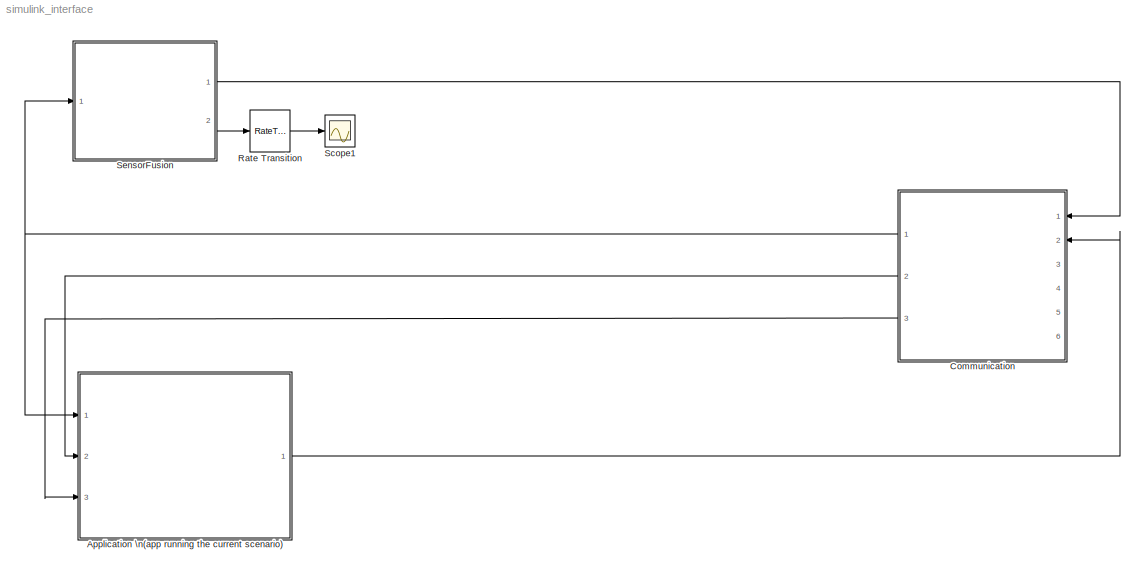
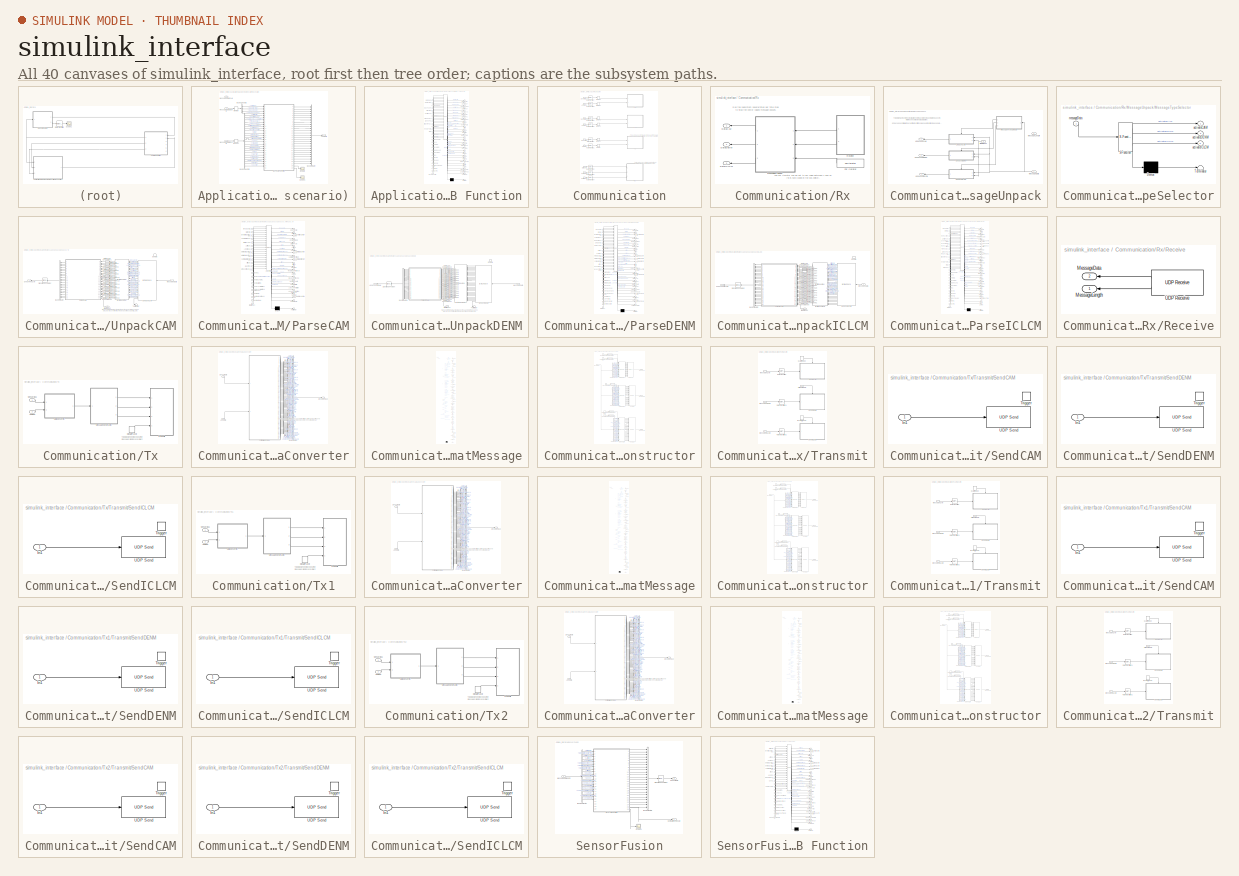
[diagram: thumbnail index - all 40 canvases of the model, root first then tree order]
MODEL simulink_interface
KIND model
BLOCK [SubSystem] Application \n(app running the current scenario)
  Ports = [3, 1]
  RequestExecContextInheritance = off
  SID = 214
  TreatAsAtomicUnit = on
  Variant = off
BLOCK [Outport] Application \n(app running the current scenario)/AppData
  IconDisplay = Port number
  SID = 219
BLOCK [BusCreator] Application \n(app running the current scenario)/Bus\nCreator
  DisplayOption = bar
  InheritFromInputs = on
  Inputs = 'DetectionTime','CauseCode','SubCauseCode','ControllerType','TargetLongAcc','TimeHeadway','CruiseSpeed','ParticipantsReady','StartPlatoon','EndOfScenario','MioID','MioRange','MioBearing','MioRangeRate','Lane','ForwardID','BackwardID','MergeRequest','SafeToMerge','Flag','FlagTail','FlagHead','PlatoonID','DistanceTraveledCZ','Intention','Counter','MessageControl'
  OutDataTypeStr = Bus: AppBus
  Ports = [27, 1]
  SID = 412
BLOCK [BusSelector] Application \n(app running the current scenario)/Bus\nSelector2
  OutputSignals = StationID,DetectionTime,CauseCode,SubCauseCode
  Ports = [1, 4]
  SID = 408
BLOCK [BusSelector] Application \n(app running the current scenario)/Bus\nSelector3
  OutputSignals = StationID,ControllerType,TargetLongAcceleration,TimeHeadway,CruiseSpeed,ParticipantsReady,StartPlatoon,EndOfScenario,MioID,MioRange,MioBearing,MioRangeRate,Lane,ForwardID,BackwardID,MergeRequest,SafeToMerge,Flag,FlagTail,FlagHead,PlatoonID,DistanceTraveledCz,Intention,Counter
  Ports = [1, 24]
  SID = 406
BLOCK [SubSystem] Application \n(app running the current scenario)/MATLAB Function
  ErrorFcn = Stateflow.Translate.translate
  PermitHierarchicalResolution = ExplicitOnly
  Ports = [29, 29]
  RequestExecContextInheritance = off
  SFBlockType = MATLAB Function
  SID = 411
  TreatAsAtomicUnit = on
  Variant = off
BLOCK [Demux] Application \n(app running the current scenario)/MATLAB Function/ Demux 
  Outputs = 1
  Ports = [1, 1]
  SID = 411::63
BLOCK [S-Function] Application \n(app running the current scenario)/MATLAB Function/ SFunction 
  EnableBusSupport = on
  FunctionName = sf_sfun
  PortCounts = [29 30]
  Ports = [29, 30]
  SFunctionDeploymentMode = off
  SID = 411::62
  Tag = Stateflow S-Function simulink_interface 5
BLOCK [Terminator] Application \n(app running the current scenario)/MATLAB Function/ Terminator 
  SID = 411::64
BLOCK [Outport] Application \n(app running the current scenario)/MATLAB Function/BackwardID
  IconDisplay = Port number
  Port = 17
  SID = 411::163
BLOCK [Inport] Application \n(app running the current scenario)/MATLAB Function/BackwardID1
  IconDisplay = Port number
  Port = 19
  SID = 411::136
BLOCK [Outport] Application \n(app running the current scenario)/MATLAB Function/CauseCode
  IconDisplay = Port number
  Port = 2
  SID = 411::148
BLOCK [Inport] Application \n(app running the current scenario)/MATLAB Function/CauseCode1
  IconDisplay = Port number
  Port = 3
  SID = 411::121
BLOCK [Outport] Application \n(app running the current scenario)/MATLAB Function/ComparisonResult
  IconDisplay = Port number
  Port = 28
  SID = 411::174
BLOCK [Outport] Application \n(app running the current scenario)/MATLAB Function/ControllerType
  IconDisplay = Port number
  Port = 4
  SID = 411::150
BLOCK [Inport] Application \n(app running the current scenario)/MATLAB Function/ControllerType1
  IconDisplay = Port number
  Port = 6
  SID = 411::123
BLOCK [Outport] Application \n(app running the current scenario)/MATLAB Function/Counter
  IconDisplay = Port number
  Port = 26
  SID = 411::172
BLOCK [Inport] Application \n(app running the current scenario)/MATLAB Function/Counter1
  IconDisplay = Port number
  Port = 28
  SID = 411::145
BLOCK [Outport] Application \n(app running the current scenario)/MATLAB Function/CruiseSpeed
  IconDisplay = Port number
  Port = 7
  SID = 411::153
BLOCK [Inport] Application \n(app running the current scenario)/MATLAB Function/CruiseSpeed1
  IconDisplay = Port number
  Port = 9
  SID = 411::126
BLOCK [Outport] Application \n(app running the current scenario)/MATLAB Function/DetectionTime
  IconDisplay = Port number
  SID = 411::147
BLOCK [Inport] Application \n(app running the current scenario)/MATLAB Function/DetectionTime1
  IconDisplay = Port number
  Port = 2
  SID = 411::120
BLOCK [Outport] Application \n(app running the current scenario)/MATLAB Function/DistanceTraveledCZ
  IconDisplay = Port number
  Port = 24
  SID = 411::170
BLOCK [Inport] Application \n(app running the current scenario)/MATLAB Function/DistanceTraveledCZ1
  IconDisplay = Port number
  Port = 26
  SID = 411::143
BLOCK [Outport] Application \n(app running the current scenario)/MATLAB Function/EndOfScenario
  IconDisplay = Port number
  Port = 10
  SID = 411::156
BLOCK [Inport] Application \n(app running the current scenario)/MATLAB Function/EndOfScenario1
  IconDisplay = Port number
  Port = 12
  SID = 411::129
BLOCK [Outport] Application \n(app running the current scenario)/MATLAB Function/Flag
  IconDisplay = Port number
  Port = 20
  SID = 411::166
BLOCK [Inport] Application \n(app running the current scenario)/MATLAB Function/Flag1
  IconDisplay = Port number
  Port = 22
  SID = 411::139
BLOCK [Outport] Application \n(app running the current scenario)/MATLAB Function/FlagHead
  IconDisplay = Port number
  Port = 22
  SID = 411::168
BLOCK [Inport] Application \n(app running the current scenario)/MATLAB Function/FlagHead1
  IconDisplay = Port number
  Port = 24
  SID = 411::141
BLOCK [Outport] Application \n(app running the current scenario)/MATLAB Function/FlagTail
  IconDisplay = Port number
  Port = 21
  SID = 411::167
BLOCK [Inport] Application \n(app running the current scenario)/MATLAB Function/FlagTail1
  IconDisplay = Port number
  Port = 23
  SID = 411::140
BLOCK [Outport] Application \n(app running the current scenario)/MATLAB Function/ForwardID
  IconDisplay = Port number
  Port = 16
  SID = 411::162
BLOCK [Inport] Application \n(app running the current scenario)/MATLAB Function/ForwardID1
  IconDisplay = Port number
  Port = 18
  SID = 411::135
BLOCK [Outport] Application \n(app running the current scenario)/MATLAB Function/Intention
  IconDisplay = Port number
  Port = 25
  SID = 411::171
BLOCK [Inport] Application \n(app running the current scenario)/MATLAB Function/Intention1
  IconDisplay = Port number
  Port = 27
  SID = 411::144
BLOCK [Outport] Application \n(app running the current scenario)/MATLAB Function/Lane
  IconDisplay = Port number
  Port = 15
  SID = 411::161
BLOCK [Inport] Application \n(app running the current scenario)/MATLAB Function/Lane1
  IconDisplay = Port number
  Port = 17
  SID = 411::134
BLOCK [Outport] Application \n(app running the current scenario)/MATLAB Function/MergeRequest
  IconDisplay = Port number
  Port = 18
  SID = 411::164
BLOCK [Inport] Application \n(app running the current scenario)/MATLAB Function/MergeRequest1
  IconDisplay = Port number
  Port = 20
  SID = 411::137
BLOCK [Outport] Application \n(app running the current scenario)/MATLAB Function/MessageControl
  IconDisplay = Port number
  Port = 27
  SID = 411::173
BLOCK [Inport] Application \n(app running the current scenario)/MATLAB Function/MessageControl1
  IconDisplay = Port number
  Port = 29
  SID = 411::146
BLOCK [Outport] Application \n(app running the current scenario)/MATLAB Function/MioBearing
  IconDisplay = Port number
  Port = 13
  SID = 411::159
BLOCK [Inport] Application \n(app running the current scenario)/MATLAB Function/MioBearing1
  IconDisplay = Port number
  Port = 15
  SID = 411::132
BLOCK [Outport] Application \n(app running the current scenario)/MATLAB Function/MioID
  IconDisplay = Port number
  Port = 11
  SID = 411::157
BLOCK [Inport] Application \n(app running the current scenario)/MATLAB Function/MioID1
  IconDisplay = Port number
  Port = 13
  SID = 411::130
BLOCK [Outport] Application \n(app running the current scenario)/MATLAB Function/MioRange
  IconDisplay = Port number
  Port = 12
  SID = 411::158
BLOCK [Inport] Application \n(app running the current scenario)/MATLAB Function/MioRange1
  IconDisplay = Port number
  Port = 14
  SID = 411::131
BLOCK [Outport] Application \n(app running the current scenario)/MATLAB Function/MioRangeRate
  IconDisplay = Port number
  Port = 14
  SID = 411::160
BLOCK [Inport] Application \n(app running the current scenario)/MATLAB Function/MioRangeRate1
  IconDisplay = Port number
  Port = 16
  SID = 411::133
BLOCK [Outport] Application \n(app running the current scenario)/MATLAB Function/ParticipantsReady
  IconDisplay = Port number
  Port = 8
  SID = 411::154
BLOCK [Inport] Application \n(app running the current scenario)/MATLAB Function/ParticipantsReady1
  IconDisplay = Port number
  Port = 10
  SID = 411::127
BLOCK [Outport] Application \n(app running the current scenario)/MATLAB Function/PlatoonID
  IconDisplay = Port number
  Port = 23
  SID = 411::169
BLOCK [Inport] Application \n(app running the current scenario)/MATLAB Function/PlatoonID1
  IconDisplay = Port number
  Port = 25
  SID = 411::142
BLOCK [Outport] Application \n(app running the current scenario)/MATLAB Function/SafeToMerge
  IconDisplay = Port number
  Port = 19
  SID = 411::165
BLOCK [Inport] Application \n(app running the current scenario)/MATLAB Function/SafeToMerge1
  IconDisplay = Port number
  Port = 21
  SID = 411::138
BLOCK [Outport] Application \n(app running the current scenario)/MATLAB Function/StartPlatoon
  IconDisplay = Port number
  Port = 9
  SID = 411::155
BLOCK [Inport] Application \n(app running the current scenario)/MATLAB Function/StartPlatoon1
  IconDisplay = Port number
  Port = 11
  SID = 411::128
BLOCK [Inport] Application \n(app running the current scenario)/MATLAB Function/StationIDDenm
  IconDisplay = Port number
  SID = 411::178
BLOCK [Inport] Application \n(app running the current scenario)/MATLAB Function/StationIDIclcm
  IconDisplay = Port number
  Port = 5
  SID = 411::179
BLOCK [Outport] Application \n(app running the current scenario)/MATLAB Function/SubCauseCode
  IconDisplay = Port number
  Port = 3
  SID = 411::149
BLOCK [Inport] Application \n(app running the current scenario)/MATLAB Function/SubCauseCode1
  IconDisplay = Port number
  Port = 4
  SID = 411::122
BLOCK [Outport] Application \n(app running the current scenario)/MATLAB Function/TargetLongAcc
  IconDisplay = Port number
  Port = 5
  SID = 411::151
BLOCK [Inport] Application \n(app running the current scenario)/MATLAB Function/TargetLongAcc1
  IconDisplay = Port number
  Port = 7
  SID = 411::124
BLOCK [Outport] Application \n(app running the current scenario)/MATLAB Function/TimeHeadway
  IconDisplay = Port number
  Port = 6
  SID = 411::152
BLOCK [Inport] Application \n(app running the current scenario)/MATLAB Function/TimeHeadway1
  IconDisplay = Port number
  Port = 8
  SID = 411::125
BLOCK [Outport] Application \n(app running the current scenario)/MATLAB Function/VehicleRow
  IconDisplay = Port number
  Port = 29
  SID = 411::175
BLOCK [Memory] Application \n(app running the current scenario)/Memory
  SID = 698
BLOCK [Memory] Application \n(app running the current scenario)/Memory1
  SID = 699
BLOCK [Inport] Application \n(app running the current scenario)/MessageDataCAM
  IconDisplay = Port number
  SID = 216
BLOCK [Inport] Application \n(app running the current scenario)/MessageDataDENM
  IconDisplay = Port number
  Port = 2
  SID = 407
BLOCK [Inport] Application \n(app running the current scenario)/MessageDataICLCM
  IconDisplay = Port number
  Port = 3
  SID = 405
BLOCK [Scope] Application \n(app running the current scenario)/Scope
  Ports = [1]
  SID = 602
  ScopeSpecificationString = Simulink.scopes.TimeScopeBlockCfg('CurrentConfiguration', extmgr.ConfigurationSet(extmgr.Configuration('Core','General UI',true),extmgr.Configuration('Core','Source UI',true),extmgr.Configuration('Sources','WiredSimulink',true),extmgr.Configuration('Visuals','Time Domain',true,'SerializedDisplays',{struct('MinYLimReal','-1.25','MaxYLimReal','1.25','YLabelReal','','MinYLimMag','0.00000','MaxYLimMag...<+1433ch>
BLOCK [Scope] Application \n(app running the current scenario)/Scope1
  Ports = [1]
  SID = 697
  ScopeSpecificationString = Simulink.scopes.TimeScopeBlockCfg('CurrentConfiguration', extmgr.ConfigurationSet(extmgr.Configuration('Core','General UI',true),extmgr.Configuration('Core','Source UI',true),extmgr.Configuration('Sources','WiredSimulink',true,'DataLoggingVariableName','ScopeData6'),extmgr.Configuration('Visuals','Time Domain',true,'SerializedDisplays',{struct('MinYLimReal','-3.25','MaxYLimReal','19.25','YLabelRea...<+1470ch>
BLOCK [SubSystem] Communication
  Ports = [6, 3]
  RequestExecContextInheritance = off
  SID = 395
  TreatAsAtomicUnit = on
  Variant = off
BLOCK [Inport] Communication/AppBus
  IconDisplay = Port number
  Port = 2
  SID = 397
BLOCK [Inport] Communication/AppBus1
  IconDisplay = Port number
  Port = 4
  SID = 1094
BLOCK [Inport] Communication/AppBus2
  IconDisplay = Port number
  Port = 6
  SID = 1225
BLOCK [Outport] Communication/DataCAM
  IconDisplay = Port number
  SID = 398
BLOCK [Outport] Communication/DataDENM
  IconDisplay = Port number
  Port = 2
  SID = 399
BLOCK [Outport] Communication/DataICLCM
  IconDisplay = Port number
  Port = 3
  SID = 401
BLOCK [Memory] Communication/Memory
  SID = 704
BLOCK [Memory] Communication/Memory1
  SID = 702
BLOCK [Memory] Communication/Memory2
  Commented = on
  SID = 1095
BLOCK [Memory] Communication/Memory3
  Commented = on
  SID = 1096
BLOCK [Memory] Communication/Memory4
  Commented = on
  SID = 1226
BLOCK [Memory] Communication/Memory5
  Commented = on
  SID = 1227
BLOCK [RateTransition] Communication/Rate Transition
  SID = 703
BLOCK [RateTransition] Communication/Rate Transition1
  SID = 705
BLOCK [RateTransition] Communication/Rate Transition2
  SID = 684
BLOCK [RateTransition] Communication/Rate Transition3
  SID = 685
BLOCK [RateTransition] Communication/Rate Transition4
  SID = 686
BLOCK [RateTransition] Communication/Rate Transition5
  Commented = on
  SID = 1097
BLOCK [RateTransition] Communication/Rate Transition6
  Commented = on
  SID = 1098
BLOCK [RateTransition] Communication/Rate Transition7
  Commented = on
  SID = 1228
BLOCK [RateTransition] Communication/Rate Transition8
  Commented = on
  SID = 1229
BLOCK [SubSystem] Communication/Rx
  Ports = [0, 3]
  RequestExecContextInheritance = off
  SID = 654
  TreatAsAtomicUnit = on
  Variant = off
BLOCK [Outport] Communication/Rx/DataCAM
  IconDisplay = Port number
  SID = 658
BLOCK [Outport] Communication/Rx/DataDENM
  IconDisplay = Port number
  Port = 2
  SID = 659
BLOCK [Outport] Communication/Rx/DataICLCM
  IconDisplay = Port number
  Port = 3
  SID = 660
BLOCK [ForIterator] Communication/Rx/For Iterator
  IterationLimit = numIterations
  Ports = [0, 1]
  ResetStates = reset
  SID = 656
BLOCK [SubSystem] Communication/Rx/MessageUnpack
  Ports = [3, 3]
  RequestExecContextInheritance = off
  SID = 351
  Variant = off
BLOCK [Inport] Communication/Rx/MessageUnpack/IteratorIndex
  IconDisplay = Port number
  Port = 3
  SID = 661
BLOCK [Inport] Communication/Rx/MessageUnpack/MessageData
  IconDisplay = Port number
  Port = 2
  SID = 354
BLOCK [Inport] Communication/Rx/MessageUnpack/MessageLength
  IconDisplay = Port number
  SID = 352
BLOCK [SubSystem] Communication/Rx/MessageUnpack/MessageTypeSelector
  ErrorFcn = Stateflow.Translate.translate
  PermitHierarchicalResolution = ExplicitOnly
  Ports = [1, 3]
  RequestExecContextInheritance = off
  SFBlockType = MATLAB Function
  SID = 640
  TreatAsAtomicUnit = on
  Variant = off
BLOCK [Demux] Communication/Rx/MessageUnpack/MessageTypeSelector/ Demux 
  Outputs = 1
  Ports = [1, 1]
  SID = 640::17
BLOCK [S-Function] Communication/Rx/MessageUnpack/MessageTypeSelector/ SFunction 
  EnableBusSupport = on
  FunctionName = sf_sfun
  PortCounts = [1 4]
  Ports = [1, 4]
  SFunctionDeploymentMode = off
  SID = 640::16
  Tag = Stateflow S-Function simulink_interface 7
BLOCK [Terminator] Communication/Rx/MessageUnpack/MessageTypeSelector/ Terminator 
  SID = 640::18
BLOCK [Outport] Communication/Rx/MessageUnpack/MessageTypeSelector/activateCAM
  IconDisplay = Port number
  SID = 640::5
BLOCK [Outport] Communication/Rx/MessageUnpack/MessageTypeSelector/activateDENM
  IconDisplay = Port number
  Port = 2
  SID = 640::19
BLOCK [Outport] Communication/Rx/MessageUnpack/MessageTypeSelector/activateICLCM
  IconDisplay = Port number
  Port = 3
  SID = 640::20
BLOCK [Inport] Communication/Rx/MessageUnpack/MessageTypeSelector/messageData
  IconDisplay = Port number
  SID = 640::1
BLOCK [SubSystem] Communication/Rx/MessageUnpack/UnpackCAM
  Ports = [2, 1, 1]
  RequestExecContextInheritance = off
  SID = 624
  Variant = off
BLOCK [BusCreator] Communication/Rx/MessageUnpack/UnpackCAM/Bus\nCreator
  DisplayOption = bar
  InheritFromInputs = on
  Inputs = 'MessageID','StationID','GenerationDeltaTime','ContainerMask','StationType','Latitude','Longitude','SemiMajorConfidence','SemiMinorConfidence','SemiMajorOrientation','Altitude','Heading','HeadingConfidence','Speed','SpeedConfidence','VehicleLength','VehicleWidth','LongAcceleration','LongAccelerationConfidence','YawRate','YawRateConfidence','VehicleRole'
  OutDataTypeStr = Bus: CAMBus
  Ports = [22, 1]
  SID = 380
BLOCK [Reference] Communication/Rx/MessageUnpack/UnpackCAM/Byte Reversal  REF=etargetslib/Byte Reversal
  Ports = [22, 22]
  SID = 425
  SourceBlock = etargetslib/Byte Reversal
  SourceType = Byte Reversal
  numInp = 22
BLOCK [DataTypeConversion] Communication/Rx/MessageUnpack/UnpackCAM/Data Type Conversion1
  OutDataTypeStr = double
  RndMeth = Floor
  SID = 515
  SaturateOnIntegerOverflow = off
BLOCK [DataTypeConversion] Communication/Rx/MessageUnpack/UnpackCAM/Data Type Conversion10
  OutDataTypeStr = double
  RndMeth = Floor
  SID = 524
  SaturateOnIntegerOverflow = off
BLOCK [DataTypeConversion] Communication/Rx/MessageUnpack/UnpackCAM/Data Type Conversion11
  OutDataTypeStr = double
  RndMeth = Floor
  SID = 525
  SaturateOnIntegerOverflow = off
BLOCK [DataTypeConversion] Communication/Rx/MessageUnpack/UnpackCAM/Data Type Conversion12
  OutDataTypeStr = double
  RndMeth = Floor
  SID = 526
  SaturateOnIntegerOverflow = off
BLOCK [DataTypeConversion] Communication/Rx/MessageUnpack/UnpackCAM/Data Type Conversion13
  OutDataTypeStr = double
  RndMeth = Floor
  SID = 527
  SaturateOnIntegerOverflow = off
BLOCK [DataTypeConversion] Communication/Rx/MessageUnpack/UnpackCAM/Data Type Conversion14
  OutDataTypeStr = double
  RndMeth = Floor
  SID = 528
  SaturateOnIntegerOverflow = off
BLOCK [DataTypeConversion] Communication/Rx/MessageUnpack/UnpackCAM/Data Type Conversion15
  OutDataTypeStr = double
  RndMeth = Floor
  SID = 529
  SaturateOnIntegerOverflow = off
BLOCK [DataTypeConversion] Communication/Rx/MessageUnpack/UnpackCAM/Data Type Conversion16
  OutDataTypeStr = double
  RndMeth = Floor
  SID = 530
  SaturateOnIntegerOverflow = off
BLOCK [DataTypeConversion] Communication/Rx/MessageUnpack/UnpackCAM/Data Type Conversion17
  OutDataTypeStr = double
  RndMeth = Floor
  SID = 531
  SaturateOnIntegerOverflow = off
BLOCK [DataTypeConversion] Communication/Rx/MessageUnpack/UnpackCAM/Data Type Conversion18
  OutDataTypeStr = double
  RndMeth = Floor
  SID = 532
  SaturateOnIntegerOverflow = off
BLOCK [DataTypeConversion] Communication/Rx/MessageUnpack/UnpackCAM/Data Type Conversion19
  OutDataTypeStr = double
  RndMeth = Floor
  SID = 533
  SaturateOnIntegerOverflow = off
BLOCK [DataTypeConversion] Communication/Rx/MessageUnpack/UnpackCAM/Data Type Conversion2
  OutDataTypeStr = double
  RndMeth = Floor
  SID = 516
  SaturateOnIntegerOverflow = off
BLOCK [DataTypeConversion] Communication/Rx/MessageUnpack/UnpackCAM/Data Type Conversion20
  OutDataTypeStr = double
  RndMeth = Floor
  SID = 534
  SaturateOnIntegerOverflow = off
BLOCK [DataTypeConversion] Communication/Rx/MessageUnpack/UnpackCAM/Data Type Conversion21
  OutDataTypeStr = double
  RndMeth = Floor
  SID = 535
  SaturateOnIntegerOverflow = off
BLOCK [DataTypeConversion] Communication/Rx/MessageUnpack/UnpackCAM/Data Type Conversion22
  OutDataTypeStr = double
  RndMeth = Floor
  SID = 536
  SaturateOnIntegerOverflow = off
BLOCK [DataTypeConversion] Communication/Rx/MessageUnpack/UnpackCAM/Data Type Conversion3
  OutDataTypeStr = double
  RndMeth = Floor
  SID = 517
  SaturateOnIntegerOverflow = off
BLOCK [DataTypeConversion] Communication/Rx/MessageUnpack/UnpackCAM/Data Type Conversion4
  OutDataTypeStr = double
  RndMeth = Floor
  SID = 518
  SaturateOnIntegerOverflow = off
BLOCK [DataTypeConversion] Communication/Rx/MessageUnpack/UnpackCAM/Data Type Conversion5
  OutDataTypeStr = double
  RndMeth = Floor
  SID = 519
  SaturateOnIntegerOverflow = off
BLOCK [DataTypeConversion] Communication/Rx/MessageUnpack/UnpackCAM/Data Type Conversion6
  OutDataTypeStr = double
  RndMeth = Floor
  SID = 520
  SaturateOnIntegerOverflow = off
BLOCK [DataTypeConversion] Communication/Rx/MessageUnpack/UnpackCAM/Data Type Conversion7
  OutDataTypeStr = double
  RndMeth = Floor
  SID = 521
  SaturateOnIntegerOverflow = off
BLOCK [DataTypeConversion] Communication/Rx/MessageUnpack/UnpackCAM/Data Type Conversion8
  OutDataTypeStr = double
  RndMeth = Floor
  SID = 522
  SaturateOnIntegerOverflow = off
BLOCK [DataTypeConversion] Communication/Rx/MessageUnpack/UnpackCAM/Data Type Conversion9
  OutDataTypeStr = double
  RndMeth = Floor
  SID = 523
  SaturateOnIntegerOverflow = off
BLOCK [EnablePort] Communication/Rx/MessageUnpack/UnpackCAM/Enable
  Ports = []
  SID = 637
BLOCK [Inport] Communication/Rx/MessageUnpack/UnpackCAM/IteratorIndex
  IconDisplay = Port number
  Port = 2
  SID = 663
BLOCK [Inport] Communication/Rx/MessageUnpack/UnpackCAM/MessageData
  IconDisplay = Port number
  SID = 625
BLOCK [SubSystem] Communication/Rx/MessageUnpack/UnpackCAM/ParseCAM
  ErrorFcn = Stateflow.Translate.translate
  PermitHierarchicalResolution = ExplicitOnly
  Ports = [23, 22]
  RequestExecContextInheritance = off
  SFBlockType = MATLAB Function
  SID = 379
  TreatAsAtomicUnit = on
  Variant = off
BLOCK [Demux] Communication/Rx/MessageUnpack/UnpackCAM/ParseCAM/ Demux 
  Outputs = 1
  Ports = [1, 1]
  SID = 379::111
BLOCK [S-Function] Communication/Rx/MessageUnpack/UnpackCAM/ParseCAM/ SFunction 
  EnableBusSupport = on
  FunctionName = sf_sfun
  PortCounts = [23 23]
  Ports = [23, 23]
  SFunctionDeploymentMode = off
  SID = 379::110
  Tag = Stateflow S-Function simulink_interface 2
BLOCK [Terminator] Communication/Rx/MessageUnpack/UnpackCAM/ParseCAM/ Terminator 
  SID = 379::112
BLOCK [Outport] Communication/Rx/MessageUnpack/UnpackCAM/ParseCAM/Altitude
  IconDisplay = Port number
  Port = 11
  SID = 379::92
BLOCK [Inport] Communication/Rx/MessageUnpack/UnpackCAM/ParseCAM/Altitude1
  IconDisplay = Port number
  Port = 11
  SID = 379::70
BLOCK [Outport] Communication/Rx/MessageUnpack/UnpackCAM/ParseCAM/ContainerMask
  IconDisplay = Port number
  Port = 4
  SID = 379::85
BLOCK [Inport] Communication/Rx/MessageUnpack/UnpackCAM/ParseCAM/ContainerMask1
  IconDisplay = Port number
  Port = 4
  SID = 379::63
BLOCK [Outport] Communication/Rx/MessageUnpack/UnpackCAM/ParseCAM/GenerationDeltaTime
  IconDisplay = Port number
  Port = 3
  SID = 379::84
BLOCK [Inport] Communication/Rx/MessageUnpack/UnpackCAM/ParseCAM/GenerationDeltaTime1
  IconDisplay = Port number
  Port = 3
  SID = 379::62
BLOCK [Outport] Communication/Rx/MessageUnpack/UnpackCAM/ParseCAM/Heading
  IconDisplay = Port number
  Port = 12
  SID = 379::93
BLOCK [Inport] Communication/Rx/MessageUnpack/UnpackCAM/ParseCAM/Heading1
  IconDisplay = Port number
  Port = 12
  SID = 379::71
BLOCK [Outport] Communication/Rx/MessageUnpack/UnpackCAM/ParseCAM/HeadingConfidence
  IconDisplay = Port number
  Port = 13
  SID = 379::94
BLOCK [Inport] Communication/Rx/MessageUnpack/UnpackCAM/ParseCAM/HeadingConfidence1
  IconDisplay = Port number
  Port = 13
  SID = 379::72
BLOCK [Inport] Communication/Rx/MessageUnpack/UnpackCAM/ParseCAM/IteratorIndex
  IconDisplay = Port number
  Port = 23
  SID = 379::113
BLOCK [Outport] Communication/Rx/MessageUnpack/UnpackCAM/ParseCAM/Latitude
  IconDisplay = Port number
  Port = 6
  SID = 379::87
BLOCK [Inport] Communication/Rx/MessageUnpack/UnpackCAM/ParseCAM/Latitude1
  IconDisplay = Port number
  Port = 6
  SID = 379::65
BLOCK [Outport] Communication/Rx/MessageUnpack/UnpackCAM/ParseCAM/LongAcceleration
  IconDisplay = Port number
  Port = 18
  SID = 379::99
BLOCK [Inport] Communication/Rx/MessageUnpack/UnpackCAM/ParseCAM/LongAcceleration1
  IconDisplay = Port number
  Port = 18
  SID = 379::77
BLOCK [Outport] Communication/Rx/MessageUnpack/UnpackCAM/ParseCAM/LongAccelerationConfidence
  IconDisplay = Port number
  Port = 19
  SID = 379::100
BLOCK [Inport] Communication/Rx/MessageUnpack/UnpackCAM/ParseCAM/LongAccelerationConfidence1
  IconDisplay = Port number
  Port = 19
  SID = 379::78
BLOCK [Outport] Communication/Rx/MessageUnpack/UnpackCAM/ParseCAM/Longitude
  IconDisplay = Port number
  Port = 7
  SID = 379::88
BLOCK [Inport] Communication/Rx/MessageUnpack/UnpackCAM/ParseCAM/Longitude1
  IconDisplay = Port number
  Port = 7
  SID = 379::66
BLOCK [Outport] Communication/Rx/MessageUnpack/UnpackCAM/ParseCAM/MessageID
  IconDisplay = Port number
  SID = 379::82
BLOCK [Inport] Communication/Rx/MessageUnpack/UnpackCAM/ParseCAM/MessageID1
  IconDisplay = Port number
  SID = 379::60
BLOCK [Outport] Communication/Rx/MessageUnpack/UnpackCAM/ParseCAM/SemiMajorConfidence
  IconDisplay = Port number
  Port = 8
  SID = 379::89
BLOCK [Inport] Communication/Rx/MessageUnpack/UnpackCAM/ParseCAM/SemiMajorConfidence1
  IconDisplay = Port number
  Port = 8
  SID = 379::67
BLOCK [Outport] Communication/Rx/MessageUnpack/UnpackCAM/ParseCAM/SemiMajorOrientation
  IconDisplay = Port number
  Port = 10
  SID = 379::91
BLOCK [Inport] Communication/Rx/MessageUnpack/UnpackCAM/ParseCAM/SemiMajorOrientation1
  IconDisplay = Port number
  Port = 10
  SID = 379::69
BLOCK [Outport] Communication/Rx/MessageUnpack/UnpackCAM/ParseCAM/SemiMinorConfidence
  IconDisplay = Port number
  Port = 9
  SID = 379::90
BLOCK [Inport] Communication/Rx/MessageUnpack/UnpackCAM/ParseCAM/SemiMinorConfidence1
  IconDisplay = Port number
  Port = 9
  SID = 379::68
BLOCK [Outport] Communication/Rx/MessageUnpack/UnpackCAM/ParseCAM/Speed
  IconDisplay = Port number
  Port = 14
  SID = 379::95
BLOCK [Inport] Communication/Rx/MessageUnpack/UnpackCAM/ParseCAM/Speed1
  IconDisplay = Port number
  Port = 14
  SID = 379::73
BLOCK [Outport] Communication/Rx/MessageUnpack/UnpackCAM/ParseCAM/SpeedConfidence
  IconDisplay = Port number
  Port = 15
  SID = 379::96
BLOCK [Inport] Communication/Rx/MessageUnpack/UnpackCAM/ParseCAM/SpeedConfidence1
  IconDisplay = Port number
  Port = 15
  SID = 379::74
BLOCK [Outport] Communication/Rx/MessageUnpack/UnpackCAM/ParseCAM/StationID
  IconDisplay = Port number
  Port = 2
  SID = 379::83
BLOCK [Inport] Communication/Rx/MessageUnpack/UnpackCAM/ParseCAM/StationID1
  IconDisplay = Port number
  Port = 2
  SID = 379::61
BLOCK [Outport] Communication/Rx/MessageUnpack/UnpackCAM/ParseCAM/StationType
  IconDisplay = Port number
  Port = 5
  SID = 379::86
BLOCK [Inport] Communication/Rx/MessageUnpack/UnpackCAM/ParseCAM/StationType1
  IconDisplay = Port number
  Port = 5
  SID = 379::64
BLOCK [Outport] Communication/Rx/MessageUnpack/UnpackCAM/ParseCAM/VehicleLength
  IconDisplay = Port number
  Port = 16
  SID = 379::97
BLOCK [Inport] Communication/Rx/MessageUnpack/UnpackCAM/ParseCAM/VehicleLength1
  IconDisplay = Port number
  Port = 16
  SID = 379::75
BLOCK [Outport] Communication/Rx/MessageUnpack/UnpackCAM/ParseCAM/VehicleRole
  IconDisplay = Port number
  Port = 22
  SID = 379::103
BLOCK [Inport] Communication/Rx/MessageUnpack/UnpackCAM/ParseCAM/VehicleRole1
  IconDisplay = Port number
  Port = 22
  SID = 379::81
BLOCK [Outport] Communication/Rx/MessageUnpack/UnpackCAM/ParseCAM/VehicleWidth
  IconDisplay = Port number
  Port = 17
  SID = 379::98
BLOCK [Inport] Communication/Rx/MessageUnpack/UnpackCAM/ParseCAM/VehicleWidth1
  IconDisplay = Port number
  Port = 17
  SID = 379::76
BLOCK [Outport] Communication/Rx/MessageUnpack/UnpackCAM/ParseCAM/YawRate
  IconDisplay = Port number
  Port = 20
  SID = 379::101
BLOCK [Inport] Communication/Rx/MessageUnpack/UnpackCAM/ParseCAM/YawRate1
  IconDisplay = Port number
  Port = 20
  SID = 379::79
BLOCK [Outport] Communication/Rx/MessageUnpack/UnpackCAM/ParseCAM/YawRateConfidence
  IconDisplay = Port number
  Port = 21
  SID = 379::102
BLOCK [Inport] Communication/Rx/MessageUnpack/UnpackCAM/ParseCAM/YawRateConfidence1
  IconDisplay = Port number
  Port = 21
  SID = 379::80
BLOCK [SignalConversion] Communication/Rx/MessageUnpack/UnpackCAM/Signal\nConversion
  SID = 641
BLOCK [Terminator] Communication/Rx/MessageUnpack/UnpackCAM/Terminator
  SID = 633
BLOCK [Reference] Communication/Rx/MessageUnpack/UnpackCAM/UnpackCAM  REF=etargetslib/Byte Unpack
  Ports = [1, 23]
  SID = 181
  SourceBlock = etargetslib/Byte Unpack
  SourceType = Byte Unpack
  byteAlign = 1
  datatypes = {'uint8','int32', 'int32','uint8','int32', 'int32','int32', 'int32','int32', 'int32','int32', 'int32','int32', 'int32','int32', 'int32','int32', 'int32','int32', 'int32','int32', 'int32','uint8'}
  dimensions = {[1],[1],[1],[1],[1],[1],[1],[1],[1],[1],[1],[1],[1],[1],[1],[1],[1],[1],[1],[1],[1],[1],[29]}
BLOCK [Outport] Communication/Rx/MessageUnpack/UnpackCAM/UnpackedCAM
  IconDisplay = Port number
  SID = 626
BLOCK [SubSystem] Communication/Rx/MessageUnpack/UnpackDENM
  Ports = [2, 1, 1]
  RequestExecContextInheritance = off
  SID = 627
  Variant = off
BLOCK [BusCreator] Communication/Rx/MessageUnpack/UnpackDENM/Bus\nCreator1
  DisplayOption = bar
  InheritFromInputs = on
  Inputs = 'MessageID','StationID','GenerationDeltaTime','ContainerMask','ManagementMask','DetectionTime','ReferenceTime','Termination','Latitude','Longitude','SemiMajorConfidence','SemiMinorConfidence','SemiMajorOrientation','Altitude','RelevanceDistance','RelevanceTrafficDirection','ValidityDuration','TransmissionIntervall','StationType','SituationMask','InformationQuality','CauseCode','SubCauseCode','Link...<+107ch>
  OutDataTypeStr = Bus: DENMBus
  Ports = [29, 1]
  SID = 235
BLOCK [Reference] Communication/Rx/MessageUnpack/UnpackDENM/Byte Reversal1  REF=etargetslib/Byte Reversal
  Ports = [29, 29]
  SID = 426
  SourceBlock = etargetslib/Byte Reversal
  SourceType = Byte Reversal
  numInp = 29
BLOCK [DataTypeConversion] Communication/Rx/MessageUnpack/UnpackDENM/Data Type Conversion23
  OutDataTypeStr = double
  RndMeth = Floor
  SID = 537
  SaturateOnIntegerOverflow = off
BLOCK [DataTypeConversion] Communication/Rx/MessageUnpack/UnpackDENM/Data Type Conversion24
  OutDataTypeStr = double
  RndMeth = Floor
  SID = 538
  SaturateOnIntegerOverflow = off
BLOCK [DataTypeConversion] Communication/Rx/MessageUnpack/UnpackDENM/Data Type Conversion25
  OutDataTypeStr = double
  RndMeth = Floor
  SID = 539
  SaturateOnIntegerOverflow = off
BLOCK [DataTypeConversion] Communication/Rx/MessageUnpack/UnpackDENM/Data Type Conversion26
  OutDataTypeStr = double
  RndMeth = Floor
  SID = 540
  SaturateOnIntegerOverflow = off
BLOCK [DataTypeConversion] Communication/Rx/MessageUnpack/UnpackDENM/Data Type Conversion27
  OutDataTypeStr = double
  RndMeth = Floor
  SID = 541
  SaturateOnIntegerOverflow = off
BLOCK [DataTypeConversion] Communication/Rx/MessageUnpack/UnpackDENM/Data Type Conversion28
  OutDataTypeStr = double
  RndMeth = Floor
  SID = 542
  SaturateOnIntegerOverflow = off
BLOCK [DataTypeConversion] Communication/Rx/MessageUnpack/UnpackDENM/Data Type Conversion29
  OutDataTypeStr = double
  RndMeth = Floor
  SID = 543
  SaturateOnIntegerOverflow = off
BLOCK [DataTypeConversion] Communication/Rx/MessageUnpack/UnpackDENM/Data Type Conversion30
  OutDataTypeStr = double
  RndMeth = Floor
  SID = 544
  SaturateOnIntegerOverflow = off
BLOCK [DataTypeConversion] Communication/Rx/MessageUnpack/UnpackDENM/Data Type Conversion31
  OutDataTypeStr = double
  RndMeth = Floor
  SID = 545
  SaturateOnIntegerOverflow = off
BLOCK [DataTypeConversion] Communication/Rx/MessageUnpack/UnpackDENM/Data Type Conversion32
  OutDataTypeStr = double
  RndMeth = Floor
  SID = 546
  SaturateOnIntegerOverflow = off
BLOCK [DataTypeConversion] Communication/Rx/MessageUnpack/UnpackDENM/Data Type Conversion33
  OutDataTypeStr = double
  RndMeth = Floor
  SID = 547
  SaturateOnIntegerOverflow = off
BLOCK [DataTypeConversion] Communication/Rx/MessageUnpack/UnpackDENM/Data Type Conversion34
  OutDataTypeStr = double
  RndMeth = Floor
  SID = 548
  SaturateOnIntegerOverflow = off
BLOCK [DataTypeConversion] Communication/Rx/MessageUnpack/UnpackDENM/Data Type Conversion35
  OutDataTypeStr = double
  RndMeth = Floor
  SID = 549
  SaturateOnIntegerOverflow = off
BLOCK [DataTypeConversion] Communication/Rx/MessageUnpack/UnpackDENM/Data Type Conversion36
  OutDataTypeStr = double
  RndMeth = Floor
  SID = 550
  SaturateOnIntegerOverflow = off
BLOCK [DataTypeConversion] Communication/Rx/MessageUnpack/UnpackDENM/Data Type Conversion37
  OutDataTypeStr = double
  RndMeth = Floor
  SID = 551
  SaturateOnIntegerOverflow = off
BLOCK [DataTypeConversion] Communication/Rx/MessageUnpack/UnpackDENM/Data Type Conversion38
  OutDataTypeStr = double
  RndMeth = Floor
  SID = 552
  SaturateOnIntegerOverflow = off
BLOCK [DataTypeConversion] Communication/Rx/MessageUnpack/UnpackDENM/Data Type Conversion39
  OutDataTypeStr = double
  RndMeth = Floor
  SID = 553
  SaturateOnIntegerOverflow = off
BLOCK [DataTypeConversion] Communication/Rx/MessageUnpack/UnpackDENM/Data Type Conversion40
  OutDataTypeStr = double
  RndMeth = Floor
  SID = 554
  SaturateOnIntegerOverflow = off
BLOCK [DataTypeConversion] Communication/Rx/MessageUnpack/UnpackDENM/Data Type Conversion41
  OutDataTypeStr = double
  RndMeth = Floor
  SID = 555
  SaturateOnIntegerOverflow = off
BLOCK [DataTypeConversion] Communication/Rx/MessageUnpack/UnpackDENM/Data Type Conversion42
  OutDataTypeStr = double
  RndMeth = Floor
  SID = 556
  SaturateOnIntegerOverflow = off
BLOCK [DataTypeConversion] Communication/Rx/MessageUnpack/UnpackDENM/Data Type Conversion43
  OutDataTypeStr = double
  RndMeth = Floor
  SID = 557
  SaturateOnIntegerOverflow = off
BLOCK [DataTypeConversion] Communication/Rx/MessageUnpack/UnpackDENM/Data Type Conversion44
  OutDataTypeStr = double
  RndMeth = Floor
  SID = 558
  SaturateOnIntegerOverflow = off
BLOCK [DataTypeConversion] Communication/Rx/MessageUnpack/UnpackDENM/Data Type Conversion45
  OutDataTypeStr = double
  RndMeth = Floor
  SID = 559
  SaturateOnIntegerOverflow = off
BLOCK [DataTypeConversion] Communication/Rx/MessageUnpack/UnpackDENM/Data Type Conversion46
  OutDataTypeStr = double
  RndMeth = Floor
  SID = 560
  SaturateOnIntegerOverflow = off
BLOCK [DataTypeConversion] Communication/Rx/MessageUnpack/UnpackDENM/Data Type Conversion47
  OutDataTypeStr = double
  RndMeth = Floor
  SID = 561
  SaturateOnIntegerOverflow = off
BLOCK [DataTypeConversion] Communication/Rx/MessageUnpack/UnpackDENM/Data Type Conversion48
  OutDataTypeStr = double
  RndMeth = Floor
  SID = 562
  SaturateOnIntegerOverflow = off
BLOCK [DataTypeConversion] Communication/Rx/MessageUnpack/UnpackDENM/Data Type Conversion49
  OutDataTypeStr = double
  RndMeth = Floor
  SID = 563
  SaturateOnIntegerOverflow = off
BLOCK [DataTypeConversion] Communication/Rx/MessageUnpack/UnpackDENM/Data Type Conversion50
  OutDataTypeStr = double
  RndMeth = Floor
  SID = 564
  SaturateOnIntegerOverflow = off
BLOCK [DataTypeConversion] Communication/Rx/MessageUnpack/UnpackDENM/Data Type Conversion51
  OutDataTypeStr = double
  RndMeth = Floor
  SID = 565
  SaturateOnIntegerOverflow = off
BLOCK [EnablePort] Communication/Rx/MessageUnpack/UnpackDENM/Enable
  Ports = []
  SID = 638
BLOCK [Inport] Communication/Rx/MessageUnpack/UnpackDENM/IteratorIndex
  IconDisplay = Port number
  Port = 2
  SID = 690
BLOCK [Inport] Communication/Rx/MessageUnpack/UnpackDENM/MessageData
  IconDisplay = Port number
  SID = 628
BLOCK [SubSystem] Communication/Rx/MessageUnpack/UnpackDENM/ParseDENM
  ErrorFcn = Stateflow.Translate.translate
  PermitHierarchicalResolution = ExplicitOnly
  Ports = [30, 29]
  RequestExecContextInheritance = off
  SFBlockType = MATLAB Function
  SID = 381
  TreatAsAtomicUnit = on
  Variant = off
BLOCK [Demux] Communication/Rx/MessageUnpack/UnpackDENM/ParseDENM/ Demux 
  Outputs = 1
  Ports = [1, 1]
  SID = 381::81
BLOCK [S-Function] Communication/Rx/MessageUnpack/UnpackDENM/ParseDENM/ SFunction 
  EnableBusSupport = on
  FunctionName = sf_sfun
  PortCounts = [30 30]
  Ports = [30, 30]
  SFunctionDeploymentMode = off
  SID = 381::80
  Tag = Stateflow S-Function simulink_interface 1
BLOCK [Terminator] Communication/Rx/MessageUnpack/UnpackDENM/ParseDENM/ Terminator 
  SID = 381::82
BLOCK [Outport] Communication/Rx/MessageUnpack/UnpackDENM/ParseDENM/AlacarteMask
  IconDisplay = Port number
  Port = 26
  SID = 381::67
BLOCK [Inport] Communication/Rx/MessageUnpack/UnpackDENM/ParseDENM/AlacarteMask1
  IconDisplay = Port number
  Port = 26
  SID = 381::41
BLOCK [Outport] Communication/Rx/MessageUnpack/UnpackDENM/ParseDENM/Altitude
  IconDisplay = Port number
  Port = 14
  SID = 381::55
BLOCK [Inport] Communication/Rx/MessageUnpack/UnpackDENM/ParseDENM/Altitude1
  IconDisplay = Port number
  Port = 14
  SID = 381::29
BLOCK [Outport] Communication/Rx/MessageUnpack/UnpackDENM/ParseDENM/CauseCode
  IconDisplay = Port number
  Port = 22
  SID = 381::63
BLOCK [Inport] Communication/Rx/MessageUnpack/UnpackDENM/ParseDENM/CauseCode1
  IconDisplay = Port number
  Port = 22
  SID = 381::37
BLOCK [Outport] Communication/Rx/MessageUnpack/UnpackDENM/ParseDENM/ContainerMask
  IconDisplay = Port number
  Port = 4
  SID = 381::45
BLOCK [Inport] Communication/Rx/MessageUnpack/UnpackDENM/ParseDENM/ContainerMask1
  IconDisplay = Port number
  Port = 4
  SID = 381::19
BLOCK [Outport] Communication/Rx/MessageUnpack/UnpackDENM/ParseDENM/DetectionTime
  IconDisplay = Port number
  Port = 6
  SID = 381::47
BLOCK [Inport] Communication/Rx/MessageUnpack/UnpackDENM/ParseDENM/DetectionTime1
  IconDisplay = Port number
  Port = 6
  SID = 381::21
BLOCK [Outport] Communication/Rx/MessageUnpack/UnpackDENM/ParseDENM/ExternalTemperature
  IconDisplay = Port number
  Port = 28
  SID = 381::68
BLOCK [Inport] Communication/Rx/MessageUnpack/UnpackDENM/ParseDENM/ExternalTemperature1
  IconDisplay = Port number
  Port = 28
  SID = 381::42
BLOCK [Outport] Communication/Rx/MessageUnpack/UnpackDENM/ParseDENM/GenerationDeltaTime
  IconDisplay = Port number
  Port = 3
  SID = 381::72
BLOCK [Inport] Communication/Rx/MessageUnpack/UnpackDENM/ParseDENM/GenerationDeltaTime1
  IconDisplay = Port number
  Port = 3
  SID = 381::73
BLOCK [Outport] Communication/Rx/MessageUnpack/UnpackDENM/ParseDENM/InformationQuality
  IconDisplay = Port number
  Port = 21
  SID = 381::62
BLOCK [Inport] Communication/Rx/MessageUnpack/UnpackDENM/ParseDENM/InformationQuality1
  IconDisplay = Port number
  Port = 21
  SID = 381::36
BLOCK [Inport] Communication/Rx/MessageUnpack/UnpackDENM/ParseDENM/IteratorIndex
  IconDisplay = Port number
  Port = 30
  SID = 381::83
BLOCK [Outport] Communication/Rx/MessageUnpack/UnpackDENM/ParseDENM/LanePosition
  IconDisplay = Port number
  Port = 27
  SID = 381::71
BLOCK [Inport] Communication/Rx/MessageUnpack/UnpackDENM/ParseDENM/LanePosition1
  IconDisplay = Port number
  Port = 27
  SID = 381::70
BLOCK [Outport] Communication/Rx/MessageUnpack/UnpackDENM/ParseDENM/Latitude
  IconDisplay = Port number
  Port = 9
  SID = 381::50
BLOCK [Inport] Communication/Rx/MessageUnpack/UnpackDENM/ParseDENM/Latitude1
  IconDisplay = Port number
  Port = 9
  SID = 381::24
BLOCK [Outport] Communication/Rx/MessageUnpack/UnpackDENM/ParseDENM/LinkedCauseCode
  IconDisplay = Port number
  Port = 24
  SID = 381::65
BLOCK [Inport] Communication/Rx/MessageUnpack/UnpackDENM/ParseDENM/LinkedCauseCode1
  IconDisplay = Port number
  Port = 24
  SID = 381::39
BLOCK [Outport] Communication/Rx/MessageUnpack/UnpackDENM/ParseDENM/LinkedSubCauseCode
  IconDisplay = Port number
  Port = 25
  SID = 381::66
BLOCK [Inport] Communication/Rx/MessageUnpack/UnpackDENM/ParseDENM/LinkedSubCauseCode1
  IconDisplay = Port number
  Port = 25
  SID = 381::40
BLOCK [Outport] Communication/Rx/MessageUnpack/UnpackDENM/ParseDENM/Longitude
  IconDisplay = Port number
  Port = 10
  SID = 381::51
BLOCK [Inport] Communication/Rx/MessageUnpack/UnpackDENM/ParseDENM/Longitude1
  IconDisplay = Port number
  Port = 10
  SID = 381::25
BLOCK [Outport] Communication/Rx/MessageUnpack/UnpackDENM/ParseDENM/ManagementMask
  IconDisplay = Port number
  Port = 5
  SID = 381::46
BLOCK [Inport] Communication/Rx/MessageUnpack/UnpackDENM/ParseDENM/ManagementMask1
  IconDisplay = Port number
  Port = 5
  SID = 381::20
BLOCK [Outport] Communication/Rx/MessageUnpack/UnpackDENM/ParseDENM/MessageID
  IconDisplay = Port number
  SID = 381::5
BLOCK [Inport] Communication/Rx/MessageUnpack/UnpackDENM/ParseDENM/MessageID1
  IconDisplay = Port number
  SID = 381::1
BLOCK [Outport] Communication/Rx/MessageUnpack/UnpackDENM/ParseDENM/PositioningSolution
  IconDisplay = Port number
  Port = 29
  SID = 381::69
BLOCK [Inport] Communication/Rx/MessageUnpack/UnpackDENM/ParseDENM/PositioningSolution1
  IconDisplay = Port number
  Port = 29
  SID = 381::43
BLOCK [Outport] Communication/Rx/MessageUnpack/UnpackDENM/ParseDENM/ReferenceTime
  IconDisplay = Port number
  Port = 7
  SID = 381::48
BLOCK [Inport] Communication/Rx/MessageUnpack/UnpackDENM/ParseDENM/ReferenceTime1
  IconDisplay = Port number
  Port = 7
  SID = 381::22
BLOCK [Outport] Communication/Rx/MessageUnpack/UnpackDENM/ParseDENM/RelevanceDistance
  IconDisplay = Port number
  Port = 15
  SID = 381::56
BLOCK [Inport] Communication/Rx/MessageUnpack/UnpackDENM/ParseDENM/RelevanceDistance1
  IconDisplay = Port number
  Port = 15
  SID = 381::30
BLOCK [Outport] Communication/Rx/MessageUnpack/UnpackDENM/ParseDENM/RelevanceTrafficDirection
  IconDisplay = Port number
  Port = 16
  SID = 381::57
BLOCK [Inport] Communication/Rx/MessageUnpack/UnpackDENM/ParseDENM/RelevanceTrafficDirection1
  IconDisplay = Port number
  Port = 16
  SID = 381::31
BLOCK [Outport] Communication/Rx/MessageUnpack/UnpackDENM/ParseDENM/SemiMajorConfidence
  IconDisplay = Port number
  Port = 11
  SID = 381::52
BLOCK [Inport] Communication/Rx/MessageUnpack/UnpackDENM/ParseDENM/SemiMajorConfidence1
  IconDisplay = Port number
  Port = 11
  SID = 381::26
BLOCK [Outport] Communication/Rx/MessageUnpack/UnpackDENM/ParseDENM/SemiMajorOrientation
  IconDisplay = Port number
  Port = 13
  SID = 381::54
BLOCK [Inport] Communication/Rx/MessageUnpack/UnpackDENM/ParseDENM/SemiMajorOrientation1
  IconDisplay = Port number
  Port = 13
  SID = 381::28
BLOCK [Outport] Communication/Rx/MessageUnpack/UnpackDENM/ParseDENM/SemiMinorConfidence
  IconDisplay = Port number
  Port = 12
  SID = 381::53
BLOCK [Inport] Communication/Rx/MessageUnpack/UnpackDENM/ParseDENM/SemiMinorConfidence1
  IconDisplay = Port number
  Port = 12
  SID = 381::27
BLOCK [Outport] Communication/Rx/MessageUnpack/UnpackDENM/ParseDENM/SituationMask
  IconDisplay = Port number
  Port = 20
  SID = 381::61
BLOCK [Inport] Communication/Rx/MessageUnpack/UnpackDENM/ParseDENM/SituationMask1
  IconDisplay = Port number
  Port = 20
  SID = 381::35
BLOCK [Outport] Communication/Rx/MessageUnpack/UnpackDENM/ParseDENM/StationID
  IconDisplay = Port number
  Port = 2
  SID = 381::44
BLOCK [Inport] Communication/Rx/MessageUnpack/UnpackDENM/ParseDENM/StationID1
  IconDisplay = Port number
  Port = 2
  SID = 381::18
BLOCK [Outport] Communication/Rx/MessageUnpack/UnpackDENM/ParseDENM/StationType
  IconDisplay = Port number
  Port = 19
  SID = 381::60
BLOCK [Inport] Communication/Rx/MessageUnpack/UnpackDENM/ParseDENM/StationType1
  IconDisplay = Port number
  Port = 19
  SID = 381::34
BLOCK [Outport] Communication/Rx/MessageUnpack/UnpackDENM/ParseDENM/SubCauseCode
  IconDisplay = Port number
  Port = 23
  SID = 381::64
BLOCK [Inport] Communication/Rx/MessageUnpack/UnpackDENM/ParseDENM/SubCauseCode1
  IconDisplay = Port number
  Port = 23
  SID = 381::38
BLOCK [Outport] Communication/Rx/MessageUnpack/UnpackDENM/ParseDENM/Termination
  IconDisplay = Port number
  Port = 8
  SID = 381::49
BLOCK [Inport] Communication/Rx/MessageUnpack/UnpackDENM/ParseDENM/Termination1
  IconDisplay = Port number
  Port = 8
  SID = 381::23
BLOCK [Outport] Communication/Rx/MessageUnpack/UnpackDENM/ParseDENM/TransmissionIntervall
  IconDisplay = Port number
  Port = 18
  SID = 381::59
BLOCK [Inport] Communication/Rx/MessageUnpack/UnpackDENM/ParseDENM/TransmissionIntervall1
  IconDisplay = Port number
  Port = 18
  SID = 381::33
BLOCK [Outport] Communication/Rx/MessageUnpack/UnpackDENM/ParseDENM/ValidityDuration
  IconDisplay = Port number
  Port = 17
  SID = 381::58
BLOCK [Inport] Communication/Rx/MessageUnpack/UnpackDENM/ParseDENM/ValidityDuration1
  IconDisplay = Port number
  Port = 17
  SID = 381::32
BLOCK [SignalConversion] Communication/Rx/MessageUnpack/UnpackDENM/Signal\nConversion
  SID = 642
BLOCK [Terminator] Communication/Rx/MessageUnpack/UnpackDENM/Terminator
  SID = 634
BLOCK [Reference] Communication/Rx/MessageUnpack/UnpackDENM/UnpackDENM  REF=etargetslib/Byte Unpack
  Ports = [1, 30]
  SID = 236
  SourceBlock = etargetslib/Byte Unpack
  SourceType = Byte Unpack
  byteAlign = 1
  datatypes = {'uint8', 'int32', 'int32', 'uint8',  'uint8', 'int32', 'int32', 'int32', 'int32', 'int32',  'int32', 'int32', 'int32', 'int32', 'int32', 'int32', 'int32', 'int32', 'int32', 'uint8',  'int32', 'int32', 'int32', 'int32', 'int32', 'uint8',  'int32', 'int32', 'int32', 'uint8'}
  dimensions = {[1], [1], [1], [1], [1], [1], [1], [1], [1], [1], [1], [1], [1], [1], [1], [1], [1], [1], [1], [1], [1], [1], [1], [1], [1], [1], [1], [1], [1], [10]}
BLOCK [Outport] Communication/Rx/MessageUnpack/UnpackDENM/UnpackedDENM
  IconDisplay = Port number
  SID = 629
BLOCK [SubSystem] Communication/Rx/MessageUnpack/UnpackICLCM
  Ports = [2, 1, 1]
  RequestExecContextInheritance = off
  SID = 630
  Variant = off
BLOCK [BusCreator] Communication/Rx/MessageUnpack/UnpackICLCM/Bus\nCreator2
  DisplayOption = bar
  InheritFromInputs = on
  Inputs = 'MessageID','StationID','ContainerMask','RearAxleLocation','ControllerType','ResponseTimeConstant','ResponseTimeDelay','TargetLongAcceleration','TimeHeadway','CruiseSpeed','LowFrequencyMask','ParticipantsReady','StartPlatoon','EndOfScenario','MioID','MioRange','MioBearing','MioRangeRate','Lane','ForwardID','BackwardID','MergeRequest','SafeToMerge','Flag','FlagTail','FlagHead','PlatoonID','Distance...<+33ch>
  OutDataTypeStr = Bus: iCLCMBus
  Ports = [30, 1]
  SID = 239
BLOCK [Reference] Communication/Rx/MessageUnpack/UnpackICLCM/Byte Reversal2  REF=etargetslib/Byte Reversal
  Ports = [30, 30]
  SID = 427
  SourceBlock = etargetslib/Byte Reversal
  SourceType = Byte Reversal
  numInp = 30
BLOCK [DataTypeConversion] Communication/Rx/MessageUnpack/UnpackICLCM/Data Type Conversion52
  OutDataTypeStr = double
  RndMeth = Floor
  SID = 566
  SaturateOnIntegerOverflow = off
BLOCK [DataTypeConversion] Communication/Rx/MessageUnpack/UnpackICLCM/Data Type Conversion53
  OutDataTypeStr = double
  RndMeth = Floor
  SID = 567
  SaturateOnIntegerOverflow = off
BLOCK [DataTypeConversion] Communication/Rx/MessageUnpack/UnpackICLCM/Data Type Conversion54
  OutDataTypeStr = double
  RndMeth = Floor
  SID = 568
  SaturateOnIntegerOverflow = off
BLOCK [DataTypeConversion] Communication/Rx/MessageUnpack/UnpackICLCM/Data Type Conversion55
  OutDataTypeStr = double
  RndMeth = Floor
  SID = 569
  SaturateOnIntegerOverflow = off
BLOCK [DataTypeConversion] Communication/Rx/MessageUnpack/UnpackICLCM/Data Type Conversion56
  OutDataTypeStr = double
  RndMeth = Floor
  SID = 570
  SaturateOnIntegerOverflow = off
BLOCK [DataTypeConversion] Communication/Rx/MessageUnpack/UnpackICLCM/Data Type Conversion57
  OutDataTypeStr = double
  RndMeth = Floor
  SID = 571
  SaturateOnIntegerOverflow = off
BLOCK [DataTypeConversion] Communication/Rx/MessageUnpack/UnpackICLCM/Data Type Conversion58
  OutDataTypeStr = double
  RndMeth = Floor
  SID = 572
  SaturateOnIntegerOverflow = off
BLOCK [DataTypeConversion] Communication/Rx/MessageUnpack/UnpackICLCM/Data Type Conversion59
  OutDataTypeStr = double
  RndMeth = Floor
  SID = 573
  SaturateOnIntegerOverflow = off
BLOCK [DataTypeConversion] Communication/Rx/MessageUnpack/UnpackICLCM/Data Type Conversion60
  OutDataTypeStr = double
  RndMeth = Floor
  SID = 574
  SaturateOnIntegerOverflow = off
BLOCK [DataTypeConversion] Communication/Rx/MessageUnpack/UnpackICLCM/Data Type Conversion61
  OutDataTypeStr = double
  RndMeth = Floor
  SID = 575
  SaturateOnIntegerOverflow = off
BLOCK [DataTypeConversion] Communication/Rx/MessageUnpack/UnpackICLCM/Data Type Conversion62
  OutDataTypeStr = double
  RndMeth = Floor
  SID = 576
  SaturateOnIntegerOverflow = off
BLOCK [DataTypeConversion] Communication/Rx/MessageUnpack/UnpackICLCM/Data Type Conversion63
  OutDataTypeStr = double
  RndMeth = Floor
  SID = 577
  SaturateOnIntegerOverflow = off
BLOCK [DataTypeConversion] Communication/Rx/MessageUnpack/UnpackICLCM/Data Type Conversion64
  OutDataTypeStr = double
  RndMeth = Floor
  SID = 578
  SaturateOnIntegerOverflow = off
BLOCK [DataTypeConversion] Communication/Rx/MessageUnpack/UnpackICLCM/Data Type Conversion65
  OutDataTypeStr = double
  RndMeth = Floor
  SID = 579
  SaturateOnIntegerOverflow = off
BLOCK [DataTypeConversion] Communication/Rx/MessageUnpack/UnpackICLCM/Data Type Conversion66
  OutDataTypeStr = double
  RndMeth = Floor
  SID = 580
  SaturateOnIntegerOverflow = off
BLOCK [DataTypeConversion] Communication/Rx/MessageUnpack/UnpackICLCM/Data Type Conversion67
  OutDataTypeStr = double
  RndMeth = Floor
  SID = 581
  SaturateOnIntegerOverflow = off
BLOCK [DataTypeConversion] Communication/Rx/MessageUnpack/UnpackICLCM/Data Type Conversion68
  OutDataTypeStr = double
  RndMeth = Floor
  SID = 582
  SaturateOnIntegerOverflow = off
BLOCK [DataTypeConversion] Communication/Rx/MessageUnpack/UnpackICLCM/Data Type Conversion69
  OutDataTypeStr = double
  RndMeth = Floor
  SID = 583
  SaturateOnIntegerOverflow = off
BLOCK [DataTypeConversion] Communication/Rx/MessageUnpack/UnpackICLCM/Data Type Conversion70
  OutDataTypeStr = double
  RndMeth = Floor
  SID = 584
  SaturateOnIntegerOverflow = off
BLOCK [DataTypeConversion] Communication/Rx/MessageUnpack/UnpackICLCM/Data Type Conversion71
  OutDataTypeStr = double
  RndMeth = Floor
  SID = 585
  SaturateOnIntegerOverflow = off
BLOCK [DataTypeConversion] Communication/Rx/MessageUnpack/UnpackICLCM/Data Type Conversion72
  OutDataTypeStr = double
  RndMeth = Floor
  SID = 586
  SaturateOnIntegerOverflow = off
BLOCK [DataTypeConversion] Communication/Rx/MessageUnpack/UnpackICLCM/Data Type Conversion73
  OutDataTypeStr = double
  RndMeth = Floor
  SID = 587
  SaturateOnIntegerOverflow = off
BLOCK [DataTypeConversion] Communication/Rx/MessageUnpack/UnpackICLCM/Data Type Conversion74
  OutDataTypeStr = double
  RndMeth = Floor
  SID = 588
  SaturateOnIntegerOverflow = off
BLOCK [DataTypeConversion] Communication/Rx/MessageUnpack/UnpackICLCM/Data Type Conversion75
  OutDataTypeStr = double
  RndMeth = Floor
  SID = 589
  SaturateOnIntegerOverflow = off
BLOCK [DataTypeConversion] Communication/Rx/MessageUnpack/UnpackICLCM/Data Type Conversion76
  OutDataTypeStr = double
  RndMeth = Floor
  SID = 590
  SaturateOnIntegerOverflow = off
BLOCK [DataTypeConversion] Communication/Rx/MessageUnpack/UnpackICLCM/Data Type Conversion77
  OutDataTypeStr = double
  RndMeth = Floor
  SID = 591
  SaturateOnIntegerOverflow = off
BLOCK [DataTypeConversion] Communication/Rx/MessageUnpack/UnpackICLCM/Data Type Conversion78
  OutDataTypeStr = double
  RndMeth = Floor
  SID = 592
  SaturateOnIntegerOverflow = off
BLOCK [DataTypeConversion] Communication/Rx/MessageUnpack/UnpackICLCM/Data Type Conversion79
  OutDataTypeStr = double
  RndMeth = Floor
  SID = 593
  SaturateOnIntegerOverflow = off
BLOCK [DataTypeConversion] Communication/Rx/MessageUnpack/UnpackICLCM/Data Type Conversion80
  OutDataTypeStr = double
  RndMeth = Floor
  SID = 594
  SaturateOnIntegerOverflow = off
BLOCK [DataTypeConversion] Communication/Rx/MessageUnpack/UnpackICLCM/Data Type Conversion81
  OutDataTypeStr = double
  RndMeth = Floor
  SID = 595
  SaturateOnIntegerOverflow = off
BLOCK [EnablePort] Communication/Rx/MessageUnpack/UnpackICLCM/Enable
  Ports = []
  SID = 639
BLOCK [Inport] Communication/Rx/MessageUnpack/UnpackICLCM/IteratorIndex
  IconDisplay = Port number
  Port = 2
  SID = 692
BLOCK [Inport] Communication/Rx/MessageUnpack/UnpackICLCM/MessageData
  IconDisplay = Port number
  SID = 631
BLOCK [SubSystem] Communication/Rx/MessageUnpack/UnpackICLCM/ParseICLCM
  ErrorFcn = Stateflow.Translate.translate
  PermitHierarchicalResolution = ExplicitOnly
  Ports = [31, 30]
  RequestExecContextInheritance = off
  SFBlockType = MATLAB Function
  SID = 382
  TreatAsAtomicUnit = on
  Variant = off
BLOCK [Demux] Communication/Rx/MessageUnpack/UnpackICLCM/ParseICLCM/ Demux 
  Outputs = 1
  Ports = [1, 1]
  SID = 382::147
BLOCK [S-Function] Communication/Rx/MessageUnpack/UnpackICLCM/ParseICLCM/ SFunction 
  EnableBusSupport = on
  FunctionName = sf_sfun
  PortCounts = [31 31]
  Ports = [31, 31]
  SFunctionDeploymentMode = off
  SID = 382::146
  Tag = Stateflow S-Function simulink_interface 3
BLOCK [Terminator] Communication/Rx/MessageUnpack/UnpackICLCM/ParseICLCM/ Terminator 
  SID = 382::148
BLOCK [Outport] Communication/Rx/MessageUnpack/UnpackICLCM/ParseICLCM/BackwardID
  IconDisplay = Port number
  Port = 21
  SID = 382::129
BLOCK [Inport] Communication/Rx/MessageUnpack/UnpackICLCM/ParseICLCM/BackwardID1
  IconDisplay = Port number
  Port = 21
  SID = 382::98
BLOCK [Outport] Communication/Rx/MessageUnpack/UnpackICLCM/ParseICLCM/ContainerMask
  IconDisplay = Port number
  Port = 3
  SID = 382::111
BLOCK [Inport] Communication/Rx/MessageUnpack/UnpackICLCM/ParseICLCM/ContainerMask1
  IconDisplay = Port number
  Port = 3
  SID = 382::80
BLOCK [Outport] Communication/Rx/MessageUnpack/UnpackICLCM/ParseICLCM/ControllerType
  IconDisplay = Port number
  Port = 5
  SID = 382::113
BLOCK [Inport] Communication/Rx/MessageUnpack/UnpackICLCM/ParseICLCM/ControllerType1
  IconDisplay = Port number
  Port = 5
  SID = 382::82
BLOCK [Outport] Communication/Rx/MessageUnpack/UnpackICLCM/ParseICLCM/Counter
  IconDisplay = Port number
  Port = 30
  SID = 382::139
BLOCK [Inport] Communication/Rx/MessageUnpack/UnpackICLCM/ParseICLCM/Counter1
  IconDisplay = Port number
  Port = 30
  SID = 382::108
BLOCK [Outport] Communication/Rx/MessageUnpack/UnpackICLCM/ParseICLCM/CruiseSpeed
  IconDisplay = Port number
  Port = 10
  SID = 382::118
BLOCK [Inport] Communication/Rx/MessageUnpack/UnpackICLCM/ParseICLCM/CruiseSpeed1
  IconDisplay = Port number
  Port = 10
  SID = 382::87
BLOCK [Outport] Communication/Rx/MessageUnpack/UnpackICLCM/ParseICLCM/DistanceTraveledCz
  IconDisplay = Port number
  Port = 28
  SID = 382::137
BLOCK [Inport] Communication/Rx/MessageUnpack/UnpackICLCM/ParseICLCM/DistanceTraveledCz1
  IconDisplay = Port number
  Port = 28
  SID = 382::106
BLOCK [Outport] Communication/Rx/MessageUnpack/UnpackICLCM/ParseICLCM/EndOfScenario
  IconDisplay = Port number
  Port = 14
  SID = 382::122
BLOCK [Inport] Communication/Rx/MessageUnpack/UnpackICLCM/ParseICLCM/EndOfScenario1
  IconDisplay = Port number
  Port = 14
  SID = 382::91
BLOCK [Outport] Communication/Rx/MessageUnpack/UnpackICLCM/ParseICLCM/Flag
  IconDisplay = Port number
  Port = 24
  SID = 382::133
BLOCK [Inport] Communication/Rx/MessageUnpack/UnpackICLCM/ParseICLCM/Flag1
  IconDisplay = Port number
  Port = 24
  SID = 382::102
BLOCK [Outport] Communication/Rx/MessageUnpack/UnpackICLCM/ParseICLCM/FlagHead
  IconDisplay = Port number
  Port = 26
  SID = 382::135
BLOCK [Inport] Communication/Rx/MessageUnpack/UnpackICLCM/ParseICLCM/FlagHead1
  IconDisplay = Port number
  Port = 26
  SID = 382::104
BLOCK [Outport] Communication/Rx/MessageUnpack/UnpackICLCM/ParseICLCM/FlagTail
  IconDisplay = Port number
  Port = 25
  SID = 382::134
BLOCK [Inport] Communication/Rx/MessageUnpack/UnpackICLCM/ParseICLCM/FlagTail1
  IconDisplay = Port number
  Port = 25
  SID = 382::103
BLOCK [Outport] Communication/Rx/MessageUnpack/UnpackICLCM/ParseICLCM/ForwardID
  IconDisplay = Port number
  Port = 20
  SID = 382::128
BLOCK [Inport] Communication/Rx/MessageUnpack/UnpackICLCM/ParseICLCM/ForwardID1
  IconDisplay = Port number
  Port = 20
  SID = 382::97
BLOCK [Outport] Communication/Rx/MessageUnpack/UnpackICLCM/ParseICLCM/Intention
  IconDisplay = Port number
  Port = 29
  SID = 382::138
BLOCK [Inport] Communication/Rx/MessageUnpack/UnpackICLCM/ParseICLCM/Intention1
  IconDisplay = Port number
  Port = 29
  SID = 382::107
BLOCK [Inport] Communication/Rx/MessageUnpack/UnpackICLCM/ParseICLCM/IteratorIndex
  IconDisplay = Port number
  Port = 31
  SID = 382::149
BLOCK [Outport] Communication/Rx/MessageUnpack/UnpackICLCM/ParseICLCM/Lane
  IconDisplay = Port number
  Port = 19
  SID = 382::127
BLOCK [Inport] Communication/Rx/MessageUnpack/UnpackICLCM/ParseICLCM/Lane1
  IconDisplay = Port number
  Port = 19
  SID = 382::96
BLOCK [Outport] Communication/Rx/MessageUnpack/UnpackICLCM/ParseICLCM/LowFrequencyMask
  IconDisplay = Port number
  Port = 11
  SID = 382::119
BLOCK [Inport] Communication/Rx/MessageUnpack/UnpackICLCM/ParseICLCM/LowFrequencyMask1
  IconDisplay = Port number
  Port = 11
  SID = 382::88
BLOCK [Outport] Communication/Rx/MessageUnpack/UnpackICLCM/ParseICLCM/MergeRequest
  IconDisplay = Port number
  Port = 22
  SID = 382::131
BLOCK [Inport] Communication/Rx/MessageUnpack/UnpackICLCM/ParseICLCM/MergeRequest1
  IconDisplay = Port number
  Port = 22
  SID = 382::100
BLOCK [Outport] Communication/Rx/MessageUnpack/UnpackICLCM/ParseICLCM/MessageID
  IconDisplay = Port number
  SID = 382::109
BLOCK [Inport] Communication/Rx/MessageUnpack/UnpackICLCM/ParseICLCM/MessageID1
  IconDisplay = Port number
  SID = 382::78
BLOCK [Outport] Communication/Rx/MessageUnpack/UnpackICLCM/ParseICLCM/MioBearing
  IconDisplay = Port number
  Port = 17
  SID = 382::125
BLOCK [Inport] Communication/Rx/MessageUnpack/UnpackICLCM/ParseICLCM/MioBearing1
  IconDisplay = Port number
  Port = 17
  SID = 382::94
BLOCK [Outport] Communication/Rx/MessageUnpack/UnpackICLCM/ParseICLCM/MioID
  IconDisplay = Port number
  Port = 15
  SID = 382::123
BLOCK [Inport] Communication/Rx/MessageUnpack/UnpackICLCM/ParseICLCM/MioID1
  IconDisplay = Port number
  Port = 15
  SID = 382::92
BLOCK [Outport] Communication/Rx/MessageUnpack/UnpackICLCM/ParseICLCM/MioRange
  IconDisplay = Port number
  Port = 16
  SID = 382::124
BLOCK [Inport] Communication/Rx/MessageUnpack/UnpackICLCM/ParseICLCM/MioRange1
  IconDisplay = Port number
  Port = 16
  SID = 382::93
BLOCK [Outport] Communication/Rx/MessageUnpack/UnpackICLCM/ParseICLCM/MioRangeRate
  IconDisplay = Port number
  Port = 18
  SID = 382::126
BLOCK [Inport] Communication/Rx/MessageUnpack/UnpackICLCM/ParseICLCM/MioRangeRate1
  IconDisplay = Port number
  Port = 18
  SID = 382::95
BLOCK [Outport] Communication/Rx/MessageUnpack/UnpackICLCM/ParseICLCM/ParticipantsReady
  IconDisplay = Port number
  Port = 12
  SID = 382::120
BLOCK [Inport] Communication/Rx/MessageUnpack/UnpackICLCM/ParseICLCM/ParticipantsReady1
  IconDisplay = Port number
  Port = 12
  SID = 382::89
BLOCK [Outport] Communication/Rx/MessageUnpack/UnpackICLCM/ParseICLCM/PlatoonID
  IconDisplay = Port number
  Port = 27
  SID = 382::136
BLOCK [Inport] Communication/Rx/MessageUnpack/UnpackICLCM/ParseICLCM/PlatoonID1
  IconDisplay = Port number
  Port = 27
  SID = 382::105
BLOCK [Outport] Communication/Rx/MessageUnpack/UnpackICLCM/ParseICLCM/RearAxleLocation
  IconDisplay = Port number
  Port = 4
  SID = 382::112
BLOCK [Inport] Communication/Rx/MessageUnpack/UnpackICLCM/ParseICLCM/RearAxleLocation1
  IconDisplay = Port number
  Port = 4
  SID = 382::81
BLOCK [Outport] Communication/Rx/MessageUnpack/UnpackICLCM/ParseICLCM/ResponseTimeConstant
  IconDisplay = Port number
  Port = 6
  SID = 382::114
BLOCK [Inport] Communication/Rx/MessageUnpack/UnpackICLCM/ParseICLCM/ResponseTimeConstant1
  IconDisplay = Port number
  Port = 6
  SID = 382::83
BLOCK [Outport] Communication/Rx/MessageUnpack/UnpackICLCM/ParseICLCM/ResponseTimeDelay
  IconDisplay = Port number
  Port = 7
  SID = 382::115
BLOCK [Inport] Communication/Rx/MessageUnpack/UnpackICLCM/ParseICLCM/ResponseTimeDelay1
  IconDisplay = Port number
  Port = 7
  SID = 382::84
BLOCK [Outport] Communication/Rx/MessageUnpack/UnpackICLCM/ParseICLCM/SafeToMerge
  IconDisplay = Port number
  Port = 23
  SID = 382::132
BLOCK [Inport] Communication/Rx/MessageUnpack/UnpackICLCM/ParseICLCM/SafeToMerge1
  IconDisplay = Port number
  Port = 23
  SID = 382::101
BLOCK [Outport] Communication/Rx/MessageUnpack/UnpackICLCM/ParseICLCM/StartPlatoon
  IconDisplay = Port number
  Port = 13
  SID = 382::121
BLOCK [Inport] Communication/Rx/MessageUnpack/UnpackICLCM/ParseICLCM/StartPlatoon1
  IconDisplay = Port number
  Port = 13
  SID = 382::90
BLOCK [Outport] Communication/Rx/MessageUnpack/UnpackICLCM/ParseICLCM/StationID
  IconDisplay = Port number
  Port = 2
  SID = 382::110
BLOCK [Inport] Communication/Rx/MessageUnpack/UnpackICLCM/ParseICLCM/StationID1
  IconDisplay = Port number
  Port = 2
  SID = 382::79
BLOCK [Outport] Communication/Rx/MessageUnpack/UnpackICLCM/ParseICLCM/TargetLongAcceleration
  IconDisplay = Port number
  Port = 8
  SID = 382::116
BLOCK [Inport] Communication/Rx/MessageUnpack/UnpackICLCM/ParseICLCM/TargetLongAcceleration1
  IconDisplay = Port number
  Port = 8
  SID = 382::85
BLOCK [Outport] Communication/Rx/MessageUnpack/UnpackICLCM/ParseICLCM/TimeHeadway
  IconDisplay = Port number
  Port = 9
  SID = 382::117
BLOCK [Inport] Communication/Rx/MessageUnpack/UnpackICLCM/ParseICLCM/TimeHeadway1
  IconDisplay = Port number
  Port = 9
  SID = 382::86
BLOCK [SignalConversion] Communication/Rx/MessageUnpack/UnpackICLCM/Signal\nConversion
  SID = 643
BLOCK [Reference] Communication/Rx/MessageUnpack/UnpackICLCM/UnpackICLCM  REF=etargetslib/Byte Unpack
  Ports = [1, 30]
  SID = 237
  SourceBlock = etargetslib/Byte Unpack
  SourceType = Byte Unpack
  byteAlign = 1
  datatypes = {'uint8', 'int32', 'uint8', 'int32', 'int32','int32', 'int32','int32', 'int32','int32', 'uint8', 'int32','int32', 'int32','int32', 'int32','int32', 'int32','int32', 'int32','int32', 'int32','int32', 'int32','int32', 'int32', 'uint32', 'int32','int32', 'int32'}
  dimensions = {[1],[1], [1],[1], [1],[1], [1],[1], [1],[1], [1],[1], [1],[1], [1],[1], [1],[1],[1],[1], [1],[1], [1],[1],[1],[1],[1],[1], [1],[1]}
BLOCK [Outport] Communication/Rx/MessageUnpack/UnpackICLCM/UnpackedICLCM
  IconDisplay = Port number
  SID = 632
BLOCK [Outport] Communication/Rx/MessageUnpack/UnpackedCAM
  IconDisplay = Port number
  SID = 356
BLOCK [Outport] Communication/Rx/MessageUnpack/UnpackedDENM
  IconDisplay = Port number
  Port = 2
  SID = 357
BLOCK [Outport] Communication/Rx/MessageUnpack/UnpackedICLCM
  IconDisplay = Port number
  Port = 3
  SID = 358
BLOCK [SubSystem] Communication/Rx/Receive
  Ports = [0, 2]
  RequestExecContextInheritance = off
  SID = 277
  Variant = off
BLOCK [Outport] Communication/Rx/Receive/MessageData
  IconDisplay = Port number
  Port = 2
  SID = 282
BLOCK [Outport] Communication/Rx/Receive/MessageLength
  IconDisplay = Port number
  SID = 279
BLOCK [Reference] Communication/Rx/Receive/UDP Receive  REF=dspnetwork/UDP Receive
  Ports = [0, 2]
  SID = 376
  SourceBlock = dspnetwork/UDP Receive
  SourceType = UDP Receive
  blockingTime = 0
  dims = 111
  isVarSize = off
  localPort = 5002
  localURL = '0.0.0.0'
  recvBufferSize = 8192
  remotePort = -1
  remoteURL = '0.0.0.0'
  sampletime = -1
  showBlockingTime = off
  signalDatatype = uint8
BLOCK [Inport] Communication/SensorBus
  IconDisplay = Port number
  SID = 396
BLOCK [Inport] Communication/SensorBus1
  IconDisplay = Port number
  Port = 3
  SID = 1093
BLOCK [Inport] Communication/SensorBus2
  IconDisplay = Port number
  Port = 5
  SID = 1224
BLOCK [SubSystem] Communication/Tx
  Ports = [2]
  RequestExecContextInheritance = off
  SID = 693
  Variant = off
BLOCK [Inport] Communication/Tx/AppBus
  IconDisplay = Port number
  Port = 2
  SID = 695
BLOCK [DiscretePulseGenerator] Communication/Tx/DENM@10Hz
  Period = 0.04
  Ports = [0, 1]
  PulseType = Time based
  PulseWidth = 5
  SID = 394
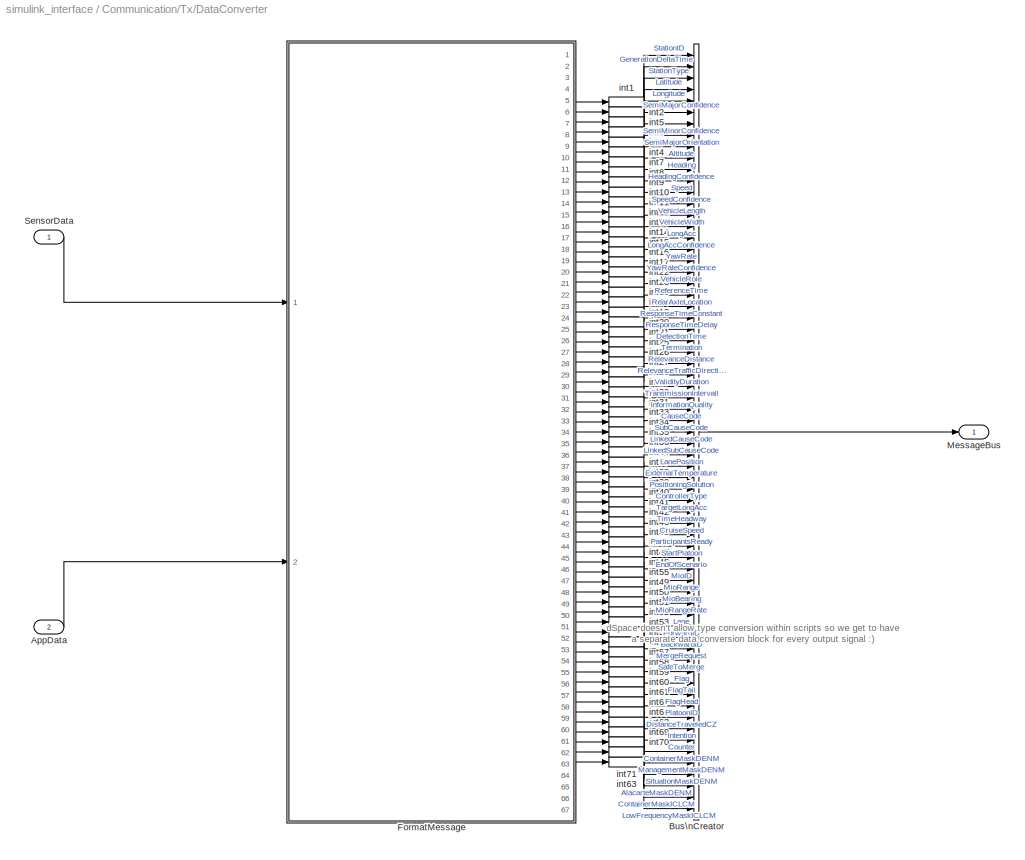
BLOCK [SubSystem] Communication/Tx/DataConverter
  Ports = [2, 1]
  RequestExecContextInheritance = off
  SID = 260
  Variant = off
BLOCK [Inport] Communication/Tx/DataConverter/AppData
  IconDisplay = Port number
  Port = 2
  SID = 292
BLOCK [BusCreator] Communication/Tx/DataConverter/Bus\nCreator
  DisplayOption = bar
  InheritFromInputs = on
  Inputs = 67
  Ports = [67, 1]
  SID = 387
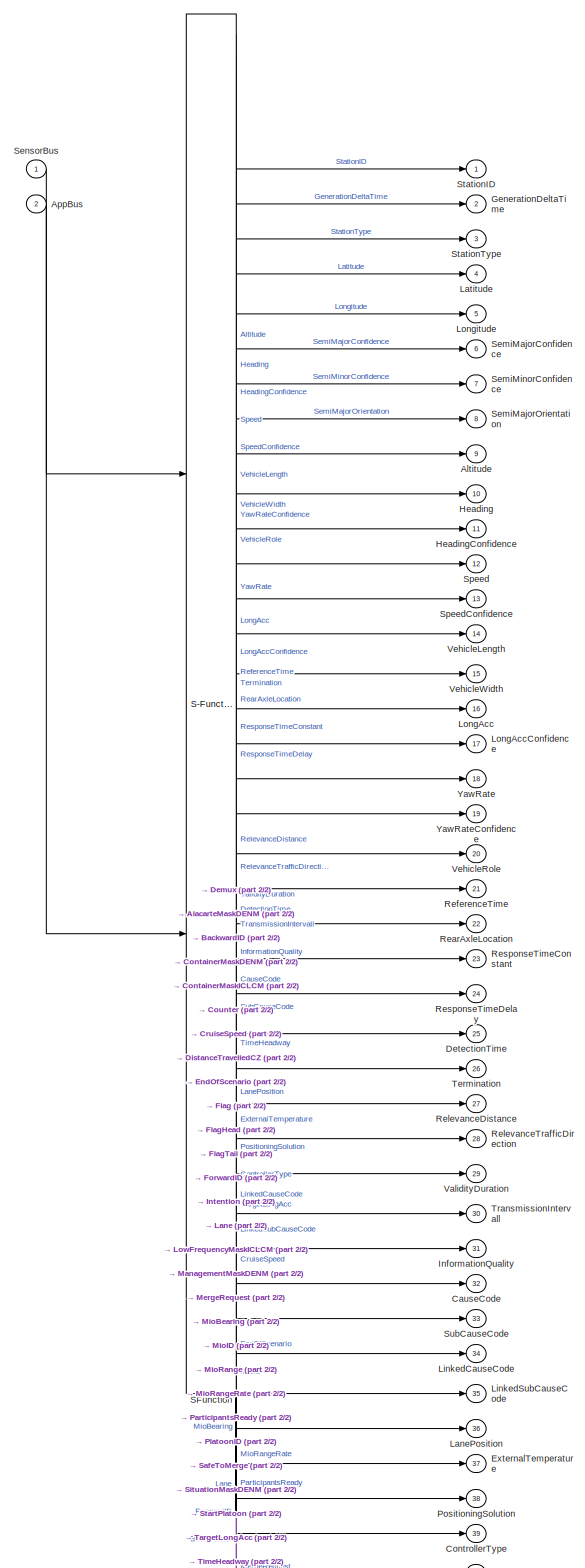
[diagram: Communication/Tx/DataConverter/FormatMessage - part 1/2, full width, top band]
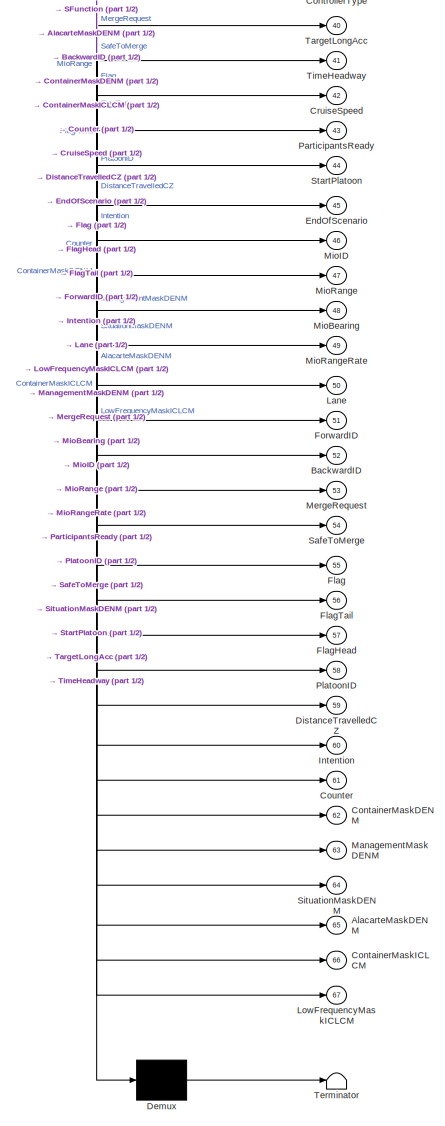
[diagram: Communication/Tx/DataConverter/FormatMessage - part 2/2, full width, bottom band]
BLOCK [SubSystem] Communication/Tx/DataConverter/FormatMessage
  ErrorFcn = Stateflow.Translate.translate
  PermitHierarchicalResolution = ExplicitOnly
  Ports = [2, 67]
  RequestExecContextInheritance = off
  SFBlockType = MATLAB Function
  SID = 383
  TreatAsAtomicUnit = on
  Variant = off
BLOCK [Demux] Communication/Tx/DataConverter/FormatMessage/ Demux 
  Outputs = 1
  Ports = [1, 1]
  SID = 383::258
BLOCK [S-Function] Communication/Tx/DataConverter/FormatMessage/ SFunction 
  EnableBusSupport = on
  FunctionName = sf_sfun
  PortCounts = [2 68]
  Ports = [2, 68]
  SFunctionDeploymentMode = off
  SID = 383::257
  Tag = Stateflow S-Function simulink_interface 4
BLOCK [Terminator] Communication/Tx/DataConverter/FormatMessage/ Terminator 
  SID = 383::259
BLOCK [Outport] Communication/Tx/DataConverter/FormatMessage/AlacarteMaskDENM
  IconDisplay = Port number
  Port = 65
  SID = 383::225
BLOCK [Outport] Communication/Tx/DataConverter/FormatMessage/Altitude
  IconDisplay = Port number
  Port = 9
  SID = 383::174
BLOCK [Inport] Communication/Tx/DataConverter/FormatMessage/AppBus
  IconDisplay = Port number
  Port = 2
  SID = 383::262
BLOCK [Outport] Communication/Tx/DataConverter/FormatMessage/BackwardID
  IconDisplay = Port number
  Port = 52
  SID = 383::206
BLOCK [Outport] Communication/Tx/DataConverter/FormatMessage/CauseCode
  IconDisplay = Port number
  Port = 32
  SID = 383::191
BLOCK [Outport] Communication/Tx/DataConverter/FormatMessage/ContainerMaskDENM
  IconDisplay = Port number
  Port = 62
  SID = 383::223
BLOCK [Outport] Communication/Tx/DataConverter/FormatMessage/ContainerMaskICLCM
  IconDisplay = Port number
  Port = 66
  SID = 383::226
BLOCK [Outport] Communication/Tx/DataConverter/FormatMessage/ControllerType
  IconDisplay = Port number
  Port = 39
  SID = 383::193
BLOCK [Outport] Communication/Tx/DataConverter/FormatMessage/Counter
  IconDisplay = Port number
  Port = 61
  SID = 383::215
BLOCK [Outport] Communication/Tx/DataConverter/FormatMessage/CruiseSpeed
  IconDisplay = Port number
  Port = 42
  SID = 383::196
BLOCK [Outport] Communication/Tx/DataConverter/FormatMessage/DetectionTime
  IconDisplay = Port number
  Port = 25
  SID = 383::190
BLOCK [Outport] Communication/Tx/DataConverter/FormatMessage/DistanceTravelledCZ
  IconDisplay = Port number
  Port = 59
  SID = 383::213
BLOCK [Outport] Communication/Tx/DataConverter/FormatMessage/EndOfScenario
  IconDisplay = Port number
  Port = 45
  SID = 383::199
BLOCK [Outport] Communication/Tx/DataConverter/FormatMessage/ExternalTemperature
  IconDisplay = Port number
  Port = 37
  SID = 383::252
BLOCK [Outport] Communication/Tx/DataConverter/FormatMessage/Flag
  IconDisplay = Port number
  Port = 55
  SID = 383::209
BLOCK [Outport] Communication/Tx/DataConverter/FormatMessage/FlagHead
  IconDisplay = Port number
  Port = 57
  SID = 383::211
BLOCK [Outport] Communication/Tx/DataConverter/FormatMessage/FlagTail
  IconDisplay = Port number
  Port = 56
  SID = 383::210
BLOCK [Outport] Communication/Tx/DataConverter/FormatMessage/ForwardID
  IconDisplay = Port number
  Port = 51
  SID = 383::205
BLOCK [Outport] Communication/Tx/DataConverter/FormatMessage/GenerationDeltaTime
  IconDisplay = Port number
  Port = 2
  SID = 383::167
BLOCK [Outport] Communication/Tx/DataConverter/FormatMessage/Heading
  IconDisplay = Port number
  Port = 10
  SID = 383::175
BLOCK [Outport] Communication/Tx/DataConverter/FormatMessage/HeadingConfidence
  IconDisplay = Port number
  Port = 11
  SID = 383::176
BLOCK [Outport] Communication/Tx/DataConverter/FormatMessage/InformationQuality
  IconDisplay = Port number
  Port = 31
  SID = 383::249
BLOCK [Outport] Communication/Tx/DataConverter/FormatMessage/Intention
  IconDisplay = Port number
  Port = 60
  SID = 383::214
BLOCK [Outport] Communication/Tx/DataConverter/FormatMessage/Lane
  IconDisplay = Port number
  Port = 50
  SID = 383::204
BLOCK [Outport] Communication/Tx/DataConverter/FormatMessage/LanePosition
  IconDisplay = Port number
  Port = 36
  SID = 383::236
BLOCK [Outport] Communication/Tx/DataConverter/FormatMessage/Latitude
  IconDisplay = Port number
  Port = 4
  SID = 383::169
BLOCK [Outport] Communication/Tx/DataConverter/FormatMessage/LinkedCauseCode
  IconDisplay = Port number
  Port = 34
  SID = 383::250
BLOCK [Outport] Communication/Tx/DataConverter/FormatMessage/LinkedSubCauseCode
  IconDisplay = Port number
  Port = 35
  SID = 383::251
BLOCK [Outport] Communication/Tx/DataConverter/FormatMessage/LongAcc
  IconDisplay = Port number
  Port = 16
  SID = 383::181
BLOCK [Outport] Communication/Tx/DataConverter/FormatMessage/LongAccConfidence
  IconDisplay = Port number
  Port = 17
  SID = 383::182
BLOCK [Outport] Communication/Tx/DataConverter/FormatMessage/Longitude
  IconDisplay = Port number
  Port = 5
  SID = 383::170
BLOCK [Outport] Communication/Tx/DataConverter/FormatMessage/LowFrequencyMaskICLCM
  IconDisplay = Port number
  Port = 67
  SID = 383::227
BLOCK [Outport] Communication/Tx/DataConverter/FormatMessage/ManagementMaskDENM
  IconDisplay = Port number
  Port = 63
  SID = 383::218
BLOCK [Outport] Communication/Tx/DataConverter/FormatMessage/MergeRequest
  IconDisplay = Port number
  Port = 53
  SID = 383::207
BLOCK [Outport] Communication/Tx/DataConverter/FormatMessage/MioBearing
  IconDisplay = Port number
  Port = 48
  SID = 383::202
BLOCK [Outport] Communication/Tx/DataConverter/FormatMessage/MioID
  IconDisplay = Port number
  Port = 46
  SID = 383::200
BLOCK [Outport] Communication/Tx/DataConverter/FormatMessage/MioRange
  IconDisplay = Port number
  Port = 47
  SID = 383::201
BLOCK [Outport] Communication/Tx/DataConverter/FormatMessage/MioRangeRate
  IconDisplay = Port number
  Port = 49
  SID = 383::203
BLOCK [Outport] Communication/Tx/DataConverter/FormatMessage/ParticipantsReady
  IconDisplay = Port number
  Port = 43
  SID = 383::197
BLOCK [Outport] Communication/Tx/DataConverter/FormatMessage/PlatoonID
  IconDisplay = Port number
  Port = 58
  SID = 383::212
BLOCK [Outport] Communication/Tx/DataConverter/FormatMessage/PositioningSolution
  IconDisplay = Port number
  Port = 38
  SID = 383::253
BLOCK [Outport] Communication/Tx/DataConverter/FormatMessage/RearAxleLocation
  IconDisplay = Port number
  Port = 22
  SID = 383::187
BLOCK [Outport] Communication/Tx/DataConverter/FormatMessage/ReferenceTime
  IconDisplay = Port number
  Port = 21
  SID = 383::186
BLOCK [Outport] Communication/Tx/DataConverter/FormatMessage/RelevanceDistance
  IconDisplay = Port number
  Port = 27
  SID = 383::245
BLOCK [Outport] Communication/Tx/DataConverter/FormatMessage/RelevanceTrafficDirection
  IconDisplay = Port number
  Port = 28
  SID = 383::246
BLOCK [Outport] Communication/Tx/DataConverter/FormatMessage/ResponseTimeConstant
  IconDisplay = Port number
  Port = 23
  SID = 383::188
BLOCK [Outport] Communication/Tx/DataConverter/FormatMessage/ResponseTimeDelay
  IconDisplay = Port number
  Port = 24
  SID = 383::189
BLOCK [Outport] Communication/Tx/DataConverter/FormatMessage/SafeToMerge
  IconDisplay = Port number
  Port = 54
  SID = 383::208
BLOCK [Outport] Communication/Tx/DataConverter/FormatMessage/SemiMajorConfidence
  IconDisplay = Port number
  Port = 6
  SID = 383::171
BLOCK [Outport] Communication/Tx/DataConverter/FormatMessage/SemiMajorOrientation
  IconDisplay = Port number
  Port = 8
  SID = 383::173
BLOCK [Outport] Communication/Tx/DataConverter/FormatMessage/SemiMinorConfidence
  IconDisplay = Port number
  Port = 7
  SID = 383::172
BLOCK [Inport] Communication/Tx/DataConverter/FormatMessage/SensorBus
  IconDisplay = Port number
  SID = 383::261
BLOCK [Outport] Communication/Tx/DataConverter/FormatMessage/SituationMaskDENM
  IconDisplay = Port number
  Port = 64
  SID = 383::224
BLOCK [Outport] Communication/Tx/DataConverter/FormatMessage/Speed
  IconDisplay = Port number
  Port = 12
  SID = 383::177
BLOCK [Outport] Communication/Tx/DataConverter/FormatMessage/SpeedConfidence
  IconDisplay = Port number
  Port = 13
  SID = 383::178
BLOCK [Outport] Communication/Tx/DataConverter/FormatMessage/StartPlatoon
  IconDisplay = Port number
  Port = 44
  SID = 383::198
BLOCK [Outport] Communication/Tx/DataConverter/FormatMessage/StationID
  IconDisplay = Port number
  SID = 383::166
BLOCK [Outport] Communication/Tx/DataConverter/FormatMessage/StationType
  IconDisplay = Port number
  Port = 3
  SID = 383::168
BLOCK [Outport] Communication/Tx/DataConverter/FormatMessage/SubCauseCode
  IconDisplay = Port number
  Port = 33
  SID = 383::192
BLOCK [Outport] Communication/Tx/DataConverter/FormatMessage/TargetLongAcc
  IconDisplay = Port number
  Port = 40
  SID = 383::194
BLOCK [Outport] Communication/Tx/DataConverter/FormatMessage/Termination
  IconDisplay = Port number
  Port = 26
  SID = 383::244
BLOCK [Outport] Communication/Tx/DataConverter/FormatMessage/TimeHeadway
  IconDisplay = Port number
  Port = 41
  SID = 383::195
BLOCK [Outport] Communication/Tx/DataConverter/FormatMessage/TransmissionIntervall
  IconDisplay = Port number
  Port = 30
  SID = 383::248
BLOCK [Outport] Communication/Tx/DataConverter/FormatMessage/ValidityDuration
  IconDisplay = Port number
  Port = 29
  SID = 383::247
BLOCK [Outport] Communication/Tx/DataConverter/FormatMessage/VehicleLength
  IconDisplay = Port number
  Port = 14
  SID = 383::179
BLOCK [Outport] Communication/Tx/DataConverter/FormatMessage/VehicleRole
  IconDisplay = Port number
  Port = 20
  SID = 383::185
BLOCK [Outport] Communication/Tx/DataConverter/FormatMessage/VehicleWidth
  IconDisplay = Port number
  Port = 15
  SID = 383::180
BLOCK [Outport] Communication/Tx/DataConverter/FormatMessage/YawRate
  IconDisplay = Port number
  Port = 18
  SID = 383::183
BLOCK [Outport] Communication/Tx/DataConverter/FormatMessage/YawRateConfidence
  IconDisplay = Port number
  Port = 19
  SID = 383::184
BLOCK [Outport] Communication/Tx/DataConverter/MessageBus
  IconDisplay = Port number
  SID = 264
BLOCK [Inport] Communication/Tx/DataConverter/SensorData
  IconDisplay = Port number
  SID = 261
BLOCK [DataTypeConversion] Communication/Tx/DataConverter/int1
  OutDataTypeStr = int32
  RndMeth = Floor
  SID = 442
  SaturateOnIntegerOverflow = off
BLOCK [DataTypeConversion] Communication/Tx/DataConverter/int10
  OutDataTypeStr = int32
  RndMeth = Floor
  SID = 451
  SaturateOnIntegerOverflow = off
BLOCK [DataTypeConversion] Communication/Tx/DataConverter/int11
  OutDataTypeStr = int32
  RndMeth = Floor
  SID = 452
  SaturateOnIntegerOverflow = off
BLOCK [DataTypeConversion] Communication/Tx/DataConverter/int12
  OutDataTypeStr = int32
  RndMeth = Floor
  SID = 453
  SaturateOnIntegerOverflow = off
BLOCK [DataTypeConversion] Communication/Tx/DataConverter/int13
  OutDataTypeStr = int32
  RndMeth = Floor
  SID = 454
  SaturateOnIntegerOverflow = off
BLOCK [DataTypeConversion] Communication/Tx/DataConverter/int14
  OutDataTypeStr = int32
  RndMeth = Floor
  SID = 455
  SaturateOnIntegerOverflow = off
BLOCK [DataTypeConversion] Communication/Tx/DataConverter/int15
  OutDataTypeStr = int32
  RndMeth = Floor
  SID = 456
  SaturateOnIntegerOverflow = off
BLOCK [DataTypeConversion] Communication/Tx/DataConverter/int16
  OutDataTypeStr = int32
  RndMeth = Floor
  SID = 457
  SaturateOnIntegerOverflow = off
BLOCK [DataTypeConversion] Communication/Tx/DataConverter/int17
  OutDataTypeStr = int32
  RndMeth = Floor
  SID = 458
  SaturateOnIntegerOverflow = off
BLOCK [DataTypeConversion] Communication/Tx/DataConverter/int18
  OutDataTypeStr = int32
  RndMeth = Floor
  SID = 459
  SaturateOnIntegerOverflow = off
BLOCK [DataTypeConversion] Communication/Tx/DataConverter/int19
  OutDataTypeStr = int32
  RndMeth = Floor
  SID = 460
  SaturateOnIntegerOverflow = off
BLOCK [DataTypeConversion] Communication/Tx/DataConverter/int2
  OutDataTypeStr = int32
  RndMeth = Floor
  SID = 443
  SaturateOnIntegerOverflow = off
BLOCK [DataTypeConversion] Communication/Tx/DataConverter/int20
  OutDataTypeStr = int32
  RndMeth = Floor
  SID = 461
  SaturateOnIntegerOverflow = off
BLOCK [DataTypeConversion] Communication/Tx/DataConverter/int21
  OutDataTypeStr = int32
  RndMeth = Floor
  SID = 462
  SaturateOnIntegerOverflow = off
BLOCK [DataTypeConversion] Communication/Tx/DataConverter/int22
  OutDataTypeStr = int32
  RndMeth = Floor
  SID = 463
  SaturateOnIntegerOverflow = off
BLOCK [DataTypeConversion] Communication/Tx/DataConverter/int23
  OutDataTypeStr = int32
  RndMeth = Floor
  SID = 464
  SaturateOnIntegerOverflow = off
BLOCK [DataTypeConversion] Communication/Tx/DataConverter/int24
  OutDataTypeStr = int32
  RndMeth = Floor
  SID = 465
  SaturateOnIntegerOverflow = off
BLOCK [DataTypeConversion] Communication/Tx/DataConverter/int25
  OutDataTypeStr = int32
  RndMeth = Floor
  SID = 466
  SaturateOnIntegerOverflow = off
BLOCK [DataTypeConversion] Communication/Tx/DataConverter/int26
  OutDataTypeStr = int32
  RndMeth = Floor
  SID = 467
  SaturateOnIntegerOverflow = off
BLOCK [DataTypeConversion] Communication/Tx/DataConverter/int27
  OutDataTypeStr = int32
  RndMeth = Floor
  SID = 468
  SaturateOnIntegerOverflow = off
BLOCK [DataTypeConversion] Communication/Tx/DataConverter/int28
  OutDataTypeStr = int32
  RndMeth = Floor
  SID = 469
  SaturateOnIntegerOverflow = off
BLOCK [DataTypeConversion] Communication/Tx/DataConverter/int29
  OutDataTypeStr = int32
  RndMeth = Floor
  SID = 470
  SaturateOnIntegerOverflow = off
BLOCK [DataTypeConversion] Communication/Tx/DataConverter/int3
  OutDataTypeStr = int32
  RndMeth = Floor
  SID = 444
  SaturateOnIntegerOverflow = off
BLOCK [DataTypeConversion] Communication/Tx/DataConverter/int30
  OutDataTypeStr = int32
  RndMeth = Floor
  SID = 471
  SaturateOnIntegerOverflow = off
BLOCK [DataTypeConversion] Communication/Tx/DataConverter/int31
  OutDataTypeStr = int32
  RndMeth = Floor
  SID = 472
  SaturateOnIntegerOverflow = off
BLOCK [DataTypeConversion] Communication/Tx/DataConverter/int33
  OutDataTypeStr = int32
  RndMeth = Floor
  SID = 473
  SaturateOnIntegerOverflow = off
BLOCK [DataTypeConversion] Communication/Tx/DataConverter/int34
  OutDataTypeStr = int32
  RndMeth = Floor
  SID = 474
  SaturateOnIntegerOverflow = off
BLOCK [DataTypeConversion] Communication/Tx/DataConverter/int35
  OutDataTypeStr = int32
  RndMeth = Floor
  SID = 475
  SaturateOnIntegerOverflow = off
BLOCK [DataTypeConversion] Communication/Tx/DataConverter/int36
  OutDataTypeStr = int32
  RndMeth = Floor
  SID = 476
  SaturateOnIntegerOverflow = off
BLOCK [DataTypeConversion] Communication/Tx/DataConverter/int37
  OutDataTypeStr = int32
  RndMeth = Floor
  SID = 477
  SaturateOnIntegerOverflow = off
BLOCK [DataTypeConversion] Communication/Tx/DataConverter/int38
  OutDataTypeStr = int32
  RndMeth = Floor
  SID = 478
  SaturateOnIntegerOverflow = off
BLOCK [DataTypeConversion] Communication/Tx/DataConverter/int39
  OutDataTypeStr = int32
  RndMeth = Floor
  SID = 479
  SaturateOnIntegerOverflow = off
BLOCK [DataTypeConversion] Communication/Tx/DataConverter/int4
  OutDataTypeStr = int32
  RndMeth = Floor
  SID = 445
  SaturateOnIntegerOverflow = off
BLOCK [DataTypeConversion] Communication/Tx/DataConverter/int40
  OutDataTypeStr = int32
  RndMeth = Floor
  SID = 480
  SaturateOnIntegerOverflow = off
BLOCK [DataTypeConversion] Communication/Tx/DataConverter/int41
  OutDataTypeStr = int32
  RndMeth = Floor
  SID = 481
  SaturateOnIntegerOverflow = off
BLOCK [DataTypeConversion] Communication/Tx/DataConverter/int42
  OutDataTypeStr = int32
  RndMeth = Floor
  SID = 482
  SaturateOnIntegerOverflow = off
BLOCK [DataTypeConversion] Communication/Tx/DataConverter/int43
  OutDataTypeStr = int32
  RndMeth = Floor
  SID = 483
  SaturateOnIntegerOverflow = off
BLOCK [DataTypeConversion] Communication/Tx/DataConverter/int44
  OutDataTypeStr = int32
  RndMeth = Floor
  SID = 484
  SaturateOnIntegerOverflow = off
BLOCK [DataTypeConversion] Communication/Tx/DataConverter/int45
  OutDataTypeStr = int32
  RndMeth = Floor
  SID = 485
  SaturateOnIntegerOverflow = off
BLOCK [DataTypeConversion] Communication/Tx/DataConverter/int46
  OutDataTypeStr = int32
  RndMeth = Floor
  SID = 486
  SaturateOnIntegerOverflow = off
BLOCK [DataTypeConversion] Communication/Tx/DataConverter/int47
  OutDataTypeStr = int32
  RndMeth = Floor
  SID = 487
  SaturateOnIntegerOverflow = off
BLOCK [DataTypeConversion] Communication/Tx/DataConverter/int48
  OutDataTypeStr = int32
  RndMeth = Floor
  SID = 488
  SaturateOnIntegerOverflow = off
BLOCK [DataTypeConversion] Communication/Tx/DataConverter/int49
  OutDataTypeStr = int32
  RndMeth = Floor
  SID = 489
  SaturateOnIntegerOverflow = off
BLOCK [DataTypeConversion] Communication/Tx/DataConverter/int5
  OutDataTypeStr = int32
  RndMeth = Floor
  SID = 446
  SaturateOnIntegerOverflow = off
BLOCK [DataTypeConversion] Communication/Tx/DataConverter/int50
  OutDataTypeStr = int32
  RndMeth = Floor
  SID = 490
  SaturateOnIntegerOverflow = off
BLOCK [DataTypeConversion] Communication/Tx/DataConverter/int51
  OutDataTypeStr = int32
  RndMeth = Floor
  SID = 491
  SaturateOnIntegerOverflow = off
BLOCK [DataTypeConversion] Communication/Tx/DataConverter/int52
  OutDataTypeStr = int32
  RndMeth = Floor
  SID = 492
  SaturateOnIntegerOverflow = off
BLOCK [DataTypeConversion] Communication/Tx/DataConverter/int53
  OutDataTypeStr = int32
  RndMeth = Floor
  SID = 493
  SaturateOnIntegerOverflow = off
BLOCK [DataTypeConversion] Communication/Tx/DataConverter/int54
  OutDataTypeStr = int32
  RndMeth = Floor
  SID = 494
  SaturateOnIntegerOverflow = off
BLOCK [DataTypeConversion] Communication/Tx/DataConverter/int55
  OutDataTypeStr = int32
  RndMeth = Floor
  SID = 495
  SaturateOnIntegerOverflow = off
BLOCK [DataTypeConversion] Communication/Tx/DataConverter/int56
  OutDataTypeStr = int32
  RndMeth = Floor
  SID = 496
  SaturateOnIntegerOverflow = off
BLOCK [DataTypeConversion] Communication/Tx/DataConverter/int57
  OutDataTypeStr = int32
  RndMeth = Floor
  SID = 497
  SaturateOnIntegerOverflow = off
BLOCK [DataTypeConversion] Communication/Tx/DataConverter/int58
  OutDataTypeStr = int32
  RndMeth = Floor
  SID = 498
  SaturateOnIntegerOverflow = off
BLOCK [DataTypeConversion] Communication/Tx/DataConverter/int59
  OutDataTypeStr = int32
  RndMeth = Floor
  SID = 499
  SaturateOnIntegerOverflow = off
BLOCK [DataTypeConversion] Communication/Tx/DataConverter/int6
  OutDataTypeStr = int32
  RndMeth = Floor
  SID = 447
  SaturateOnIntegerOverflow = off
BLOCK [DataTypeConversion] Communication/Tx/DataConverter/int60
  OutDataTypeStr = int32
  RndMeth = Floor
  SID = 500
  SaturateOnIntegerOverflow = off
BLOCK [DataTypeConversion] Communication/Tx/DataConverter/int61
  OutDataTypeStr = int32
  RndMeth = Floor
  SID = 501
  SaturateOnIntegerOverflow = off
BLOCK [DataTypeConversion] Communication/Tx/DataConverter/int62
  OutDataTypeStr = uint8
  RndMeth = Floor
  SID = 502
  SaturateOnIntegerOverflow = off
BLOCK [DataTypeConversion] Communication/Tx/DataConverter/int63
  OutDataTypeStr = uint8
  RndMeth = Floor
  SID = 503
  SaturateOnIntegerOverflow = off
BLOCK [DataTypeConversion] Communication/Tx/DataConverter/int67
  OutDataTypeStr = int32
  RndMeth = Floor
  SID = 507
  SaturateOnIntegerOverflow = off
BLOCK [DataTypeConversion] Communication/Tx/DataConverter/int68
  OutDataTypeStr = uint8
  RndMeth = Floor
  SID = 508
  SaturateOnIntegerOverflow = off
BLOCK [DataTypeConversion] Communication/Tx/DataConverter/int69
  OutDataTypeStr = uint8
  RndMeth = Floor
  SID = 509
  SaturateOnIntegerOverflow = off
BLOCK [DataTypeConversion] Communication/Tx/DataConverter/int7
  OutDataTypeStr = int32
  RndMeth = Floor
  SID = 448
  SaturateOnIntegerOverflow = off
BLOCK [DataTypeConversion] Communication/Tx/DataConverter/int70
  OutDataTypeStr = uint8
  RndMeth = Floor
  SID = 510
  SaturateOnIntegerOverflow = off
BLOCK [DataTypeConversion] Communication/Tx/DataConverter/int71
  OutDataTypeStr = uint8
  RndMeth = Floor
  SID = 511
  SaturateOnIntegerOverflow = off
BLOCK [DataTypeConversion] Communication/Tx/DataConverter/int8
  OutDataTypeStr = int32
  RndMeth = Floor
  SID = 449
  SaturateOnIntegerOverflow = off
BLOCK [DataTypeConversion] Communication/Tx/DataConverter/int9
  OutDataTypeStr = int32
  RndMeth = Floor
  SID = 450
  SaturateOnIntegerOverflow = off
BLOCK [SubSystem] Communication/Tx/MessageConstructor
  Ports = [1, 3]
  RequestExecContextInheritance = off
  SID = 265
  Variant = off
BLOCK [BusSelector] Communication/Tx/MessageConstructor/Bus\nSelector
  OutputSignals = StationID,GenerationDeltaTime,StationType,Latitude,Longitude,SemiMajorConfidence,SemiMinorConfidence,SemiMajorOrientation,Altitude,Heading,HeadingConfidence,Speed,SpeedConfidence,VehicleLength,VehicleWidth,LongAcc,LongAccConfidence,YawRate,YawRateConfidence,VehicleRole  <repeated x3 — deduplicated; at blocks: Bus\nSelector>
  Ports = [1, 20]
  SID = 170
BLOCK [BusSelector] Communication/Tx/MessageConstructor/Bus\nSelector1
  OutputSignals = StationID,GenerationDeltaTime,ContainerMaskDENM,ManagementMaskDENM,DetectionTime,ReferenceTime,Termination,Latitude,Longitude,SemiMajorConfidence,SemiMinorConfidence,SemiMajorOrientation,Altitude,RelevanceDistance,RelevanceTrafficDirection,ValidityDuration,TransmissionIntervall,StationType,SituationMaskDENM,InformationQuality,CauseCode,SubCauseCode,LinkedCauseCode,LinkedSubCauseCode,AlacarteMaskDE...<+55ch>  <repeated x3 — deduplicated; at blocks: Bus\nSelector1>
  Ports = [1, 28]
  SID = 386
BLOCK [BusSelector] Communication/Tx/MessageConstructor/Bus\nSelector2
  OutputSignals = StationID,ContainerMaskICLCM,RearAxleLocation,ControllerType,ResponseTimeConstant,ResponseTimeDelay,TargetLongAcc,TimeHeadway,CruiseSpeed,LowFrequencyMaskICLCM,ParticipantsReady,StartPlatoon,EndOfScenario,MioID,MioRange,MioBearing,MioRangeRate,Lane,ForwardID,BackwardID,MergeRequest,SafeToMerge,Flag,FlagTail,FlagHead,PlatoonID,DistanceTraveledCZ,Intention,Counter  <repeated x3 — deduplicated; at blocks: Bus\nSelector2>
  Ports = [1, 29]
  SID = 390
BLOCK [Reference] Communication/Tx/MessageConstructor/Byte Reversal  REF=etargetslib/Byte Reversal
  Ports = [22, 22]
  SID = 422
  SourceBlock = etargetslib/Byte Reversal
  SourceType = Byte Reversal
  numInp = 22
BLOCK [Reference] Communication/Tx/MessageConstructor/Byte Reversal1  REF=etargetslib/Byte Reversal
  Ports = [29, 29]
  SID = 423
  SourceBlock = etargetslib/Byte Reversal
  SourceType = Byte Reversal
  numInp = 29
BLOCK [Reference] Communication/Tx/MessageConstructor/Byte Reversal2  REF=etargetslib/Byte Reversal
  Ports = [30, 30]
  SID = 424
  SourceBlock = etargetslib/Byte Reversal
  SourceType = Byte Reversal
  numInp = 30
BLOCK [DataTypeConversion] Communication/Tx/MessageConstructor/Data Type Conversion
  OutDataTypeStr = uint8
  RndMeth = Floor
  SID = 176
  SaturateOnIntegerOverflow = off
BLOCK [DataTypeConversion] Communication/Tx/MessageConstructor/Data Type Conversion1
  OutDataTypeStr = uint8
  RndMeth = Floor
  SID = 177
  SaturateOnIntegerOverflow = off
BLOCK [DataTypeConversion] Communication/Tx/MessageConstructor/Data Type Conversion2
  OutDataTypeStr = uint8
  RndMeth = Floor
  SID = 388
  SaturateOnIntegerOverflow = off
BLOCK [DataTypeConversion] Communication/Tx/MessageConstructor/Data Type Conversion3
  OutDataTypeStr = uint8
  RndMeth = Floor
  SID = 391
  SaturateOnIntegerOverflow = off
BLOCK [DataTypeConversion] Communication/Tx/MessageConstructor/Data Type Conversion4
  OutDataTypeStr = uint8
  RndMeth = Floor
  SID = 432
  SaturateOnIntegerOverflow = off
BLOCK [DiscretePulseGenerator] Communication/Tx/MessageConstructor/LowFreqContainer@1Hz
  Amplitude = 128
  Period = 1
  Ports = [0, 1]
  PulseType = Time based
  PulseWidth = 0.04
  SID = 175
BLOCK [DiscretePulseGenerator] Communication/Tx/MessageConstructor/LowFreqContainer@1Hz1
  Amplitude = 128
  Period = 1
  Ports = [0, 1]
  PulseType = Time based
  PulseWidth = 0.04
  SID = 433
BLOCK [Inport] Communication/Tx/MessageConstructor/MessageBus
  IconDisplay = Port number
  SID = 266
BLOCK [Outport] Communication/Tx/MessageConstructor/MessageCAM
  IconDisplay = Port number
  SID = 267
BLOCK [Outport] Communication/Tx/MessageConstructor/MessageDENM
  IconDisplay = Port number
  Port = 2
  SID = 300
BLOCK [Outport] Communication/Tx/MessageConstructor/MessageICLCM
  IconDisplay = Port number
  Port = 3
  SID = 301
BLOCK [Constant] Communication/Tx/MessageConstructor/MessageIDCam
  SID = 174
  Value = 2
BLOCK [Constant] Communication/Tx/MessageConstructor/MessageIDDENM
  SID = 389
BLOCK [Constant] Communication/Tx/MessageConstructor/MessageIDICLCM
  SID = 392
  Value = 10
BLOCK [Reference] Communication/Tx/MessageConstructor/PackCAM  REF=etargetslib/Byte Pack
  Ports = [22, 1]
  SID = 172
  SourceBlock = etargetslib/Byte Pack
  SourceType = Byte pack
  byteAlign = 1
  datatypes = {'uint8','int32', 'int32','uint8','int32', 'int32','int32', 'int32','int32', 'int32','int32', 'int32','int32', 'int32','int32', 'int32','int32', 'int32','int32', 'int32','int32', 'int32',}  <repeated x3 — deduplicated; at blocks: PackCAM>
BLOCK [Reference] Communication/Tx/MessageConstructor/PackDENM  REF=etargetslib/Byte Pack
  Ports = [29, 1]
  SID = 298
  SourceBlock = etargetslib/Byte Pack
  SourceType = Byte pack
  byteAlign = 1
  datatypes = {'uint8', 'int32', 'int32', 'uint8', 'uint8', 'int32', 'int32', 'int32', 'int32', 'int32', 'int32', 'int32', 'int32', 'int32', 'int32', 'int32', 'int32', 'int32', 'int32', 'uint8', 'int32', 'int32', 'int32', 'int32', 'int32', 'uint8', 'int32', 'int32', 'int32', }  <repeated x3 — deduplicated; at blocks: PackDENM>
BLOCK [Reference] Communication/Tx/MessageConstructor/PackICLCM  REF=etargetslib/Byte Pack
  Ports = [30, 1]
  SID = 299
  SourceBlock = etargetslib/Byte Pack
  SourceType = Byte pack
  byteAlign = 1
  datatypes = {'uint8', 'int32', 'uint8', 'int32', 'int32', 'int32', 'int32', 'int32', 'int32', 'int32', 'uint8', 'int32', 'int32', 'int32', 'int32', 'int32', 'int32', 'int32', 'int32', 'int32', 'int32', 'int32', 'int32', 'int32', 'int32', 'int32', 'int32', 'int32', 'int32', 'int32'}  <repeated x3 — deduplicated; at blocks: PackICLCM>
BLOCK [Inport] Communication/Tx/SensorBus
  IconDisplay = Port number
  SID = 694
BLOCK [SubSystem] Communication/Tx/Transmit
  Ports = [4]
  RequestExecContextInheritance = off
  SID = 271
  Variant = off
BLOCK [DiscretePulseGenerator] Communication/Tx/Transmit/CAM@25Hz
  Period = 0.04
  Ports = [0, 1]
  PulseType = Time based
  PulseWidth = 5
  SID = 8
BLOCK [Inport] Communication/Tx/Transmit/MessageCAM
  IconDisplay = Port number
  SID = 272
BLOCK [Inport] Communication/Tx/Transmit/MessageDENM
  IconDisplay = Port number
  Port = 2
  SID = 273
BLOCK [Inport] Communication/Tx/Transmit/MessageICLCM
  IconDisplay = Port number
  Port = 3
  SID = 274
BLOCK [RateTransition] Communication/Tx/Transmit/Rate Transition
  SID = 667
BLOCK [RateTransition] Communication/Tx/Transmit/Rate Transition1
  SID = 668
BLOCK [RateTransition] Communication/Tx/Transmit/Rate Transition2
  SID = 669
BLOCK [SubSystem] Communication/Tx/Transmit/SendCAM
  Ports = [1, 0, 0, 1]
  RequestExecContextInheritance = off
  SID = 5
  Variant = off
BLOCK [Inport] Communication/Tx/Transmit/SendCAM/In1
  IconDisplay = Port number
  SID = 6
BLOCK [TriggerPort] Communication/Tx/Transmit/SendCAM/Trigger
  PortDimensions = 1
  Ports = []
  SID = 7
  StatesWhenEnabling = held
BLOCK [Reference] Communication/Tx/Transmit/SendCAM/UDP Send  REF=dspnetwork/UDP Send
  Ports = [1]
  SID = 2
  SourceBlock = dspnetwork/UDP Send
  SourceType = UDP Send
  localPort = -1
  localPortSource = Automatically determine
  localURL = '0.0.0.0'
  remotePort = 5002
  remoteURL = '127.0.0.1'
  sampletime = -1
  separateLengthPort = 0
BLOCK [SubSystem] Communication/Tx/Transmit/SendDENM
  Ports = [1, 0, 0, 1]
  RequestExecContextInheritance = off
  SID = 206
  Variant = off
BLOCK [Inport] Communication/Tx/Transmit/SendDENM/In1
  IconDisplay = Port number
  SID = 207
BLOCK [TriggerPort] Communication/Tx/Transmit/SendDENM/Trigger
  PortDimensions = 1
  Ports = []
  SID = 208
  StatesWhenEnabling = held
BLOCK [Reference] Communication/Tx/Transmit/SendDENM/UDP Send  REF=dspnetwork/UDP Send
  Ports = [1]
  SID = 209
  SourceBlock = dspnetwork/UDP Send
  SourceType = UDP Send
  localPort = -1
  localPortSource = Automatically determine
  localURL = '0.0.0.0'
  remotePort = 5002
  remoteURL = '127.0.0.1'
  sampletime = -1
  separateLengthPort = 0
BLOCK [SubSystem] Communication/Tx/Transmit/SendICLCM
  Ports = [1, 0, 0, 1]
  RequestExecContextInheritance = off
  SID = 202
  Variant = off
BLOCK [Inport] Communication/Tx/Transmit/SendICLCM/In1
  IconDisplay = Port number
  SID = 203
BLOCK [TriggerPort] Communication/Tx/Transmit/SendICLCM/Trigger
  PortDimensions = 1
  Ports = []
  SID = 204
  StatesWhenEnabling = held
BLOCK [Reference] Communication/Tx/Transmit/SendICLCM/UDP Send  REF=dspnetwork/UDP Send
  Ports = [1]
  SID = 205
  SourceBlock = dspnetwork/UDP Send
  SourceType = UDP Send
  localPort = -1
  localPortSource = Automatically determine
  localURL = '0.0.0.0'
  remotePort = 5002
  remoteURL = '127.0.0.1'
  sampletime = -1
  separateLengthPort = 0
BLOCK [Inport] Communication/Tx/Transmit/TriggerDENM
  IconDisplay = Port number
  Port = 4
  SID = 275
BLOCK [DiscretePulseGenerator] Communication/Tx/Transmit/iCLCM@25Hz
  Period = 0.04
  Ports = [0, 1]
  PulseType = Time based
  PulseWidth = 5
  SID = 513
BLOCK [SubSystem] Communication/Tx1
  Commented = on
  Ports = [2]
  RequestExecContextInheritance = off
  SID = 1099
  Variant = off
BLOCK [Inport] Communication/Tx1/AppBus
  IconDisplay = Port number
  Port = 2
  SID = 1101
BLOCK [DiscretePulseGenerator] Communication/Tx1/DENM@10Hz
  Period = 0.04
  Ports = [0, 1]
  PulseType = Time based
  PulseWidth = 5
  SID = 1102
BLOCK [SubSystem] Communication/Tx1/DataConverter
  Ports = [2, 1]
  RequestExecContextInheritance = off
  SID = 1103
  Variant = off
BLOCK [Inport] Communication/Tx1/DataConverter/AppData
  IconDisplay = Port number
  Port = 2
  SID = 1105
BLOCK [BusCreator] Communication/Tx1/DataConverter/Bus\nCreator
  DisplayOption = bar
  InheritFromInputs = on
  Inputs = 67
  Ports = [67, 1]
  SID = 1106
BLOCK [SubSystem] Communication/Tx1/DataConverter/FormatMessage
  ErrorFcn = Stateflow.Translate.translate
  PermitHierarchicalResolution = ExplicitOnly
  Ports = [2, 67]
  RequestExecContextInheritance = off
  SFBlockType = MATLAB Function
  SID = 1107
  TreatAsAtomicUnit = on
  Variant = off
BLOCK [Demux] Communication/Tx1/DataConverter/FormatMessage/ Demux 
  Outputs = 1
  Ports = [1, 1]
  SID = 1107::258
BLOCK [S-Function] Communication/Tx1/DataConverter/FormatMessage/ SFunction 
  EnableBusSupport = on
  FunctionName = sf_sfun
  PortCounts = [2 68]
  Ports = [2, 68]
  SFunctionDeploymentMode = off
  SID = 1107::257
  Tag = Stateflow S-Function simulink_interface 8
BLOCK [Terminator] Communication/Tx1/DataConverter/FormatMessage/ Terminator 
  SID = 1107::259
BLOCK [Outport] Communication/Tx1/DataConverter/FormatMessage/AlacarteMaskDENM
  IconDisplay = Port number
  Port = 65
  SID = 1107::225
BLOCK [Outport] Communication/Tx1/DataConverter/FormatMessage/Altitude
  IconDisplay = Port number
  Port = 9
  SID = 1107::174
BLOCK [Inport] Communication/Tx1/DataConverter/FormatMessage/AppBus
  IconDisplay = Port number
  Port = 2
  SID = 1107::262
BLOCK [Outport] Communication/Tx1/DataConverter/FormatMessage/BackwardID
  IconDisplay = Port number
  Port = 52
  SID = 1107::206
BLOCK [Outport] Communication/Tx1/DataConverter/FormatMessage/CauseCode
  IconDisplay = Port number
  Port = 32
  SID = 1107::191
BLOCK [Outport] Communication/Tx1/DataConverter/FormatMessage/ContainerMaskDENM
  IconDisplay = Port number
  Port = 62
  SID = 1107::223
BLOCK [Outport] Communication/Tx1/DataConverter/FormatMessage/ContainerMaskICLCM
  IconDisplay = Port number
  Port = 66
  SID = 1107::226
BLOCK [Outport] Communication/Tx1/DataConverter/FormatMessage/ControllerType
  IconDisplay = Port number
  Port = 39
  SID = 1107::193
BLOCK [Outport] Communication/Tx1/DataConverter/FormatMessage/Counter
  IconDisplay = Port number
  Port = 61
  SID = 1107::215
BLOCK [Outport] Communication/Tx1/DataConverter/FormatMessage/CruiseSpeed
  IconDisplay = Port number
  Port = 42
  SID = 1107::196
BLOCK [Outport] Communication/Tx1/DataConverter/FormatMessage/DetectionTime
  IconDisplay = Port number
  Port = 25
  SID = 1107::190
BLOCK [Outport] Communication/Tx1/DataConverter/FormatMessage/DistanceTravelledCZ
  IconDisplay = Port number
  Port = 59
  SID = 1107::213
BLOCK [Outport] Communication/Tx1/DataConverter/FormatMessage/EndOfScenario
  IconDisplay = Port number
  Port = 45
  SID = 1107::199
BLOCK [Outport] Communication/Tx1/DataConverter/FormatMessage/ExternalTemperature
  IconDisplay = Port number
  Port = 37
  SID = 1107::252
BLOCK [Outport] Communication/Tx1/DataConverter/FormatMessage/Flag
  IconDisplay = Port number
  Port = 55
  SID = 1107::209
BLOCK [Outport] Communication/Tx1/DataConverter/FormatMessage/FlagHead
  IconDisplay = Port number
  Port = 57
  SID = 1107::211
BLOCK [Outport] Communication/Tx1/DataConverter/FormatMessage/FlagTail
  IconDisplay = Port number
  Port = 56
  SID = 1107::210
BLOCK [Outport] Communication/Tx1/DataConverter/FormatMessage/ForwardID
  IconDisplay = Port number
  Port = 51
  SID = 1107::205
BLOCK [Outport] Communication/Tx1/DataConverter/FormatMessage/GenerationDeltaTime
  IconDisplay = Port number
  Port = 2
  SID = 1107::167
BLOCK [Outport] Communication/Tx1/DataConverter/FormatMessage/Heading
  IconDisplay = Port number
  Port = 10
  SID = 1107::175
BLOCK [Outport] Communication/Tx1/DataConverter/FormatMessage/HeadingConfidence
  IconDisplay = Port number
  Port = 11
  SID = 1107::176
BLOCK [Outport] Communication/Tx1/DataConverter/FormatMessage/InformationQuality
  IconDisplay = Port number
  Port = 31
  SID = 1107::249
BLOCK [Outport] Communication/Tx1/DataConverter/FormatMessage/Intention
  IconDisplay = Port number
  Port = 60
  SID = 1107::214
BLOCK [Outport] Communication/Tx1/DataConverter/FormatMessage/Lane
  IconDisplay = Port number
  Port = 50
  SID = 1107::204
BLOCK [Outport] Communication/Tx1/DataConverter/FormatMessage/LanePosition
  IconDisplay = Port number
  Port = 36
  SID = 1107::236
BLOCK [Outport] Communication/Tx1/DataConverter/FormatMessage/Latitude
  IconDisplay = Port number
  Port = 4
  SID = 1107::169
BLOCK [Outport] Communication/Tx1/DataConverter/FormatMessage/LinkedCauseCode
  IconDisplay = Port number
  Port = 34
  SID = 1107::250
BLOCK [Outport] Communication/Tx1/DataConverter/FormatMessage/LinkedSubCauseCode
  IconDisplay = Port number
  Port = 35
  SID = 1107::251
BLOCK [Outport] Communication/Tx1/DataConverter/FormatMessage/LongAcc
  IconDisplay = Port number
  Port = 16
  SID = 1107::181
BLOCK [Outport] Communication/Tx1/DataConverter/FormatMessage/LongAccConfidence
  IconDisplay = Port number
  Port = 17
  SID = 1107::182
BLOCK [Outport] Communication/Tx1/DataConverter/FormatMessage/Longitude
  IconDisplay = Port number
  Port = 5
  SID = 1107::170
BLOCK [Outport] Communication/Tx1/DataConverter/FormatMessage/LowFrequencyMaskICLCM
  IconDisplay = Port number
  Port = 67
  SID = 1107::227
BLOCK [Outport] Communication/Tx1/DataConverter/FormatMessage/ManagementMaskDENM
  IconDisplay = Port number
  Port = 63
  SID = 1107::218
BLOCK [Outport] Communication/Tx1/DataConverter/FormatMessage/MergeRequest
  IconDisplay = Port number
  Port = 53
  SID = 1107::207
BLOCK [Outport] Communication/Tx1/DataConverter/FormatMessage/MioBearing
  IconDisplay = Port number
  Port = 48
  SID = 1107::202
BLOCK [Outport] Communication/Tx1/DataConverter/FormatMessage/MioID
  IconDisplay = Port number
  Port = 46
  SID = 1107::200
BLOCK [Outport] Communication/Tx1/DataConverter/FormatMessage/MioRange
  IconDisplay = Port number
  Port = 47
  SID = 1107::201
BLOCK [Outport] Communication/Tx1/DataConverter/FormatMessage/MioRangeRate
  IconDisplay = Port number
  Port = 49
  SID = 1107::203
BLOCK [Outport] Communication/Tx1/DataConverter/FormatMessage/ParticipantsReady
  IconDisplay = Port number
  Port = 43
  SID = 1107::197
BLOCK [Outport] Communication/Tx1/DataConverter/FormatMessage/PlatoonID
  IconDisplay = Port number
  Port = 58
  SID = 1107::212
BLOCK [Outport] Communication/Tx1/DataConverter/FormatMessage/PositioningSolution
  IconDisplay = Port number
  Port = 38
  SID = 1107::253
BLOCK [Outport] Communication/Tx1/DataConverter/FormatMessage/RearAxleLocation
  IconDisplay = Port number
  Port = 22
  SID = 1107::187
BLOCK [Outport] Communication/Tx1/DataConverter/FormatMessage/ReferenceTime
  IconDisplay = Port number
  Port = 21
  SID = 1107::186
BLOCK [Outport] Communication/Tx1/DataConverter/FormatMessage/RelevanceDistance
  IconDisplay = Port number
  Port = 27
  SID = 1107::245
BLOCK [Outport] Communication/Tx1/DataConverter/FormatMessage/RelevanceTrafficDirection
  IconDisplay = Port number
  Port = 28
  SID = 1107::246
BLOCK [Outport] Communication/Tx1/DataConverter/FormatMessage/ResponseTimeConstant
  IconDisplay = Port number
  Port = 23
  SID = 1107::188
BLOCK [Outport] Communication/Tx1/DataConverter/FormatMessage/ResponseTimeDelay
  IconDisplay = Port number
  Port = 24
  SID = 1107::189
BLOCK [Outport] Communication/Tx1/DataConverter/FormatMessage/SafeToMerge
  IconDisplay = Port number
  Port = 54
  SID = 1107::208
BLOCK [Outport] Communication/Tx1/DataConverter/FormatMessage/SemiMajorConfidence
  IconDisplay = Port number
  Port = 6
  SID = 1107::171
BLOCK [Outport] Communication/Tx1/DataConverter/FormatMessage/SemiMajorOrientation
  IconDisplay = Port number
  Port = 8
  SID = 1107::173
BLOCK [Outport] Communication/Tx1/DataConverter/FormatMessage/SemiMinorConfidence
  IconDisplay = Port number
  Port = 7
  SID = 1107::172
BLOCK [Inport] Communication/Tx1/DataConverter/FormatMessage/SensorBus
  IconDisplay = Port number
  SID = 1107::261
BLOCK [Outport] Communication/Tx1/DataConverter/FormatMessage/SituationMaskDENM
  IconDisplay = Port number
  Port = 64
  SID = 1107::224
BLOCK [Outport] Communication/Tx1/DataConverter/FormatMessage/Speed
  IconDisplay = Port number
  Port = 12
  SID = 1107::177
BLOCK [Outport] Communication/Tx1/DataConverter/FormatMessage/SpeedConfidence
  IconDisplay = Port number
  Port = 13
  SID = 1107::178
BLOCK [Outport] Communication/Tx1/DataConverter/FormatMessage/StartPlatoon
  IconDisplay = Port number
  Port = 44
  SID = 1107::198
BLOCK [Outport] Communication/Tx1/DataConverter/FormatMessage/StationID
  IconDisplay = Port number
  SID = 1107::166
BLOCK [Outport] Communication/Tx1/DataConverter/FormatMessage/StationType
  IconDisplay = Port number
  Port = 3
  SID = 1107::168
BLOCK [Outport] Communication/Tx1/DataConverter/FormatMessage/SubCauseCode
  IconDisplay = Port number
  Port = 33
  SID = 1107::192
BLOCK [Outport] Communication/Tx1/DataConverter/FormatMessage/TargetLongAcc
  IconDisplay = Port number
  Port = 40
  SID = 1107::194
BLOCK [Outport] Communication/Tx1/DataConverter/FormatMessage/Termination
  IconDisplay = Port number
  Port = 26
  SID = 1107::244
BLOCK [Outport] Communication/Tx1/DataConverter/FormatMessage/TimeHeadway
  IconDisplay = Port number
  Port = 41
  SID = 1107::195
BLOCK [Outport] Communication/Tx1/DataConverter/FormatMessage/TransmissionIntervall
  IconDisplay = Port number
  Port = 30
  SID = 1107::248
BLOCK [Outport] Communication/Tx1/DataConverter/FormatMessage/ValidityDuration
  IconDisplay = Port number
  Port = 29
  SID = 1107::247
BLOCK [Outport] Communication/Tx1/DataConverter/FormatMessage/VehicleLength
  IconDisplay = Port number
  Port = 14
  SID = 1107::179
BLOCK [Outport] Communication/Tx1/DataConverter/FormatMessage/VehicleRole
  IconDisplay = Port number
  Port = 20
  SID = 1107::185
BLOCK [Outport] Communication/Tx1/DataConverter/FormatMessage/VehicleWidth
  IconDisplay = Port number
  Port = 15
  SID = 1107::180
BLOCK [Outport] Communication/Tx1/DataConverter/FormatMessage/YawRate
  IconDisplay = Port number
  Port = 18
  SID = 1107::183
BLOCK [Outport] Communication/Tx1/DataConverter/FormatMessage/YawRateConfidence
  IconDisplay = Port number
  Port = 19
  SID = 1107::184
BLOCK [Outport] Communication/Tx1/DataConverter/MessageBus
  IconDisplay = Port number
  SID = 1175
BLOCK [Inport] Communication/Tx1/DataConverter/SensorData
  IconDisplay = Port number
  SID = 1104
BLOCK [DataTypeConversion] Communication/Tx1/DataConverter/int1
  OutDataTypeStr = int32
  RndMeth = Floor
  SID = 1108
  SaturateOnIntegerOverflow = off
BLOCK [DataTypeConversion] Communication/Tx1/DataConverter/int10
  OutDataTypeStr = int32
  RndMeth = Floor
  SID = 1109
  SaturateOnIntegerOverflow = off
BLOCK [DataTypeConversion] Communication/Tx1/DataConverter/int11
  OutDataTypeStr = int32
  RndMeth = Floor
  SID = 1110
  SaturateOnIntegerOverflow = off
BLOCK [DataTypeConversion] Communication/Tx1/DataConverter/int12
  OutDataTypeStr = int32
  RndMeth = Floor
  SID = 1111
  SaturateOnIntegerOverflow = off
BLOCK [DataTypeConversion] Communication/Tx1/DataConverter/int13
  OutDataTypeStr = int32
  RndMeth = Floor
  SID = 1112
  SaturateOnIntegerOverflow = off
BLOCK [DataTypeConversion] Communication/Tx1/DataConverter/int14
  OutDataTypeStr = int32
  RndMeth = Floor
  SID = 1113
  SaturateOnIntegerOverflow = off
BLOCK [DataTypeConversion] Communication/Tx1/DataConverter/int15
  OutDataTypeStr = int32
  RndMeth = Floor
  SID = 1114
  SaturateOnIntegerOverflow = off
BLOCK [DataTypeConversion] Communication/Tx1/DataConverter/int16
  OutDataTypeStr = int32
  RndMeth = Floor
  SID = 1115
  SaturateOnIntegerOverflow = off
BLOCK [DataTypeConversion] Communication/Tx1/DataConverter/int17
  OutDataTypeStr = int32
  RndMeth = Floor
  SID = 1116
  SaturateOnIntegerOverflow = off
BLOCK [DataTypeConversion] Communication/Tx1/DataConverter/int18
  OutDataTypeStr = int32
  RndMeth = Floor
  SID = 1117
  SaturateOnIntegerOverflow = off
BLOCK [DataTypeConversion] Communication/Tx1/DataConverter/int19
  OutDataTypeStr = int32
  RndMeth = Floor
  SID = 1118
  SaturateOnIntegerOverflow = off
BLOCK [DataTypeConversion] Communication/Tx1/DataConverter/int2
  OutDataTypeStr = int32
  RndMeth = Floor
  SID = 1119
  SaturateOnIntegerOverflow = off
BLOCK [DataTypeConversion] Communication/Tx1/DataConverter/int20
  OutDataTypeStr = int32
  RndMeth = Floor
  SID = 1120
  SaturateOnIntegerOverflow = off
BLOCK [DataTypeConversion] Communication/Tx1/DataConverter/int21
  OutDataTypeStr = int32
  RndMeth = Floor
  SID = 1121
  SaturateOnIntegerOverflow = off
BLOCK [DataTypeConversion] Communication/Tx1/DataConverter/int22
  OutDataTypeStr = int32
  RndMeth = Floor
  SID = 1122
  SaturateOnIntegerOverflow = off
BLOCK [DataTypeConversion] Communication/Tx1/DataConverter/int23
  OutDataTypeStr = int32
  RndMeth = Floor
  SID = 1123
  SaturateOnIntegerOverflow = off
BLOCK [DataTypeConversion] Communication/Tx1/DataConverter/int24
  OutDataTypeStr = int32
  RndMeth = Floor
  SID = 1124
  SaturateOnIntegerOverflow = off
BLOCK [DataTypeConversion] Communication/Tx1/DataConverter/int25
  OutDataTypeStr = int32
  RndMeth = Floor
  SID = 1125
  SaturateOnIntegerOverflow = off
BLOCK [DataTypeConversion] Communication/Tx1/DataConverter/int26
  OutDataTypeStr = int32
  RndMeth = Floor
  SID = 1126
  SaturateOnIntegerOverflow = off
BLOCK [DataTypeConversion] Communication/Tx1/DataConverter/int27
  OutDataTypeStr = int32
  RndMeth = Floor
  SID = 1127
  SaturateOnIntegerOverflow = off
BLOCK [DataTypeConversion] Communication/Tx1/DataConverter/int28
  OutDataTypeStr = int32
  RndMeth = Floor
  SID = 1128
  SaturateOnIntegerOverflow = off
BLOCK [DataTypeConversion] Communication/Tx1/DataConverter/int29
  OutDataTypeStr = int32
  RndMeth = Floor
  SID = 1129
  SaturateOnIntegerOverflow = off
BLOCK [DataTypeConversion] Communication/Tx1/DataConverter/int3
  OutDataTypeStr = int32
  RndMeth = Floor
  SID = 1130
  SaturateOnIntegerOverflow = off
BLOCK [DataTypeConversion] Communication/Tx1/DataConverter/int30
  OutDataTypeStr = int32
  RndMeth = Floor
  SID = 1131
  SaturateOnIntegerOverflow = off
BLOCK [DataTypeConversion] Communication/Tx1/DataConverter/int31
  OutDataTypeStr = int32
  RndMeth = Floor
  SID = 1132
  SaturateOnIntegerOverflow = off
BLOCK [DataTypeConversion] Communication/Tx1/DataConverter/int33
  OutDataTypeStr = int32
  RndMeth = Floor
  SID = 1133
  SaturateOnIntegerOverflow = off
BLOCK [DataTypeConversion] Communication/Tx1/DataConverter/int34
  OutDataTypeStr = int32
  RndMeth = Floor
  SID = 1134
  SaturateOnIntegerOverflow = off
BLOCK [DataTypeConversion] Communication/Tx1/DataConverter/int35
  OutDataTypeStr = int32
  RndMeth = Floor
  SID = 1135
  SaturateOnIntegerOverflow = off
BLOCK [DataTypeConversion] Communication/Tx1/DataConverter/int36
  OutDataTypeStr = int32
  RndMeth = Floor
  SID = 1136
  SaturateOnIntegerOverflow = off
BLOCK [DataTypeConversion] Communication/Tx1/DataConverter/int37
  OutDataTypeStr = int32
  RndMeth = Floor
  SID = 1137
  SaturateOnIntegerOverflow = off
BLOCK [DataTypeConversion] Communication/Tx1/DataConverter/int38
  OutDataTypeStr = int32
  RndMeth = Floor
  SID = 1138
  SaturateOnIntegerOverflow = off
BLOCK [DataTypeConversion] Communication/Tx1/DataConverter/int39
  OutDataTypeStr = int32
  RndMeth = Floor
  SID = 1139
  SaturateOnIntegerOverflow = off
BLOCK [DataTypeConversion] Communication/Tx1/DataConverter/int4
  OutDataTypeStr = int32
  RndMeth = Floor
  SID = 1140
  SaturateOnIntegerOverflow = off
BLOCK [DataTypeConversion] Communication/Tx1/DataConverter/int40
  OutDataTypeStr = int32
  RndMeth = Floor
  SID = 1141
  SaturateOnIntegerOverflow = off
BLOCK [DataTypeConversion] Communication/Tx1/DataConverter/int41
  OutDataTypeStr = int32
  RndMeth = Floor
  SID = 1142
  SaturateOnIntegerOverflow = off
BLOCK [DataTypeConversion] Communication/Tx1/DataConverter/int42
  OutDataTypeStr = int32
  RndMeth = Floor
  SID = 1143
  SaturateOnIntegerOverflow = off
BLOCK [DataTypeConversion] Communication/Tx1/DataConverter/int43
  OutDataTypeStr = int32
  RndMeth = Floor
  SID = 1144
  SaturateOnIntegerOverflow = off
BLOCK [DataTypeConversion] Communication/Tx1/DataConverter/int44
  OutDataTypeStr = int32
  RndMeth = Floor
  SID = 1145
  SaturateOnIntegerOverflow = off
BLOCK [DataTypeConversion] Communication/Tx1/DataConverter/int45
  OutDataTypeStr = int32
  RndMeth = Floor
  SID = 1146
  SaturateOnIntegerOverflow = off
BLOCK [DataTypeConversion] Communication/Tx1/DataConverter/int46
  OutDataTypeStr = int32
  RndMeth = Floor
  SID = 1147
  SaturateOnIntegerOverflow = off
BLOCK [DataTypeConversion] Communication/Tx1/DataConverter/int47
  OutDataTypeStr = int32
  RndMeth = Floor
  SID = 1148
  SaturateOnIntegerOverflow = off
BLOCK [DataTypeConversion] Communication/Tx1/DataConverter/int48
  OutDataTypeStr = int32
  RndMeth = Floor
  SID = 1149
  SaturateOnIntegerOverflow = off
BLOCK [DataTypeConversion] Communication/Tx1/DataConverter/int49
  OutDataTypeStr = int32
  RndMeth = Floor
  SID = 1150
  SaturateOnIntegerOverflow = off
BLOCK [DataTypeConversion] Communication/Tx1/DataConverter/int5
  OutDataTypeStr = int32
  RndMeth = Floor
  SID = 1151
  SaturateOnIntegerOverflow = off
BLOCK [DataTypeConversion] Communication/Tx1/DataConverter/int50
  OutDataTypeStr = int32
  RndMeth = Floor
  SID = 1152
  SaturateOnIntegerOverflow = off
BLOCK [DataTypeConversion] Communication/Tx1/DataConverter/int51
  OutDataTypeStr = int32
  RndMeth = Floor
  SID = 1153
  SaturateOnIntegerOverflow = off
BLOCK [DataTypeConversion] Communication/Tx1/DataConverter/int52
  OutDataTypeStr = int32
  RndMeth = Floor
  SID = 1154
  SaturateOnIntegerOverflow = off
BLOCK [DataTypeConversion] Communication/Tx1/DataConverter/int53
  OutDataTypeStr = int32
  RndMeth = Floor
  SID = 1155
  SaturateOnIntegerOverflow = off
BLOCK [DataTypeConversion] Communication/Tx1/DataConverter/int54
  OutDataTypeStr = int32
  RndMeth = Floor
  SID = 1156
  SaturateOnIntegerOverflow = off
BLOCK [DataTypeConversion] Communication/Tx1/DataConverter/int55
  OutDataTypeStr = int32
  RndMeth = Floor
  SID = 1157
  SaturateOnIntegerOverflow = off
BLOCK [DataTypeConversion] Communication/Tx1/DataConverter/int56
  OutDataTypeStr = int32
  RndMeth = Floor
  SID = 1158
  SaturateOnIntegerOverflow = off
BLOCK [DataTypeConversion] Communication/Tx1/DataConverter/int57
  OutDataTypeStr = int32
  RndMeth = Floor
  SID = 1159
  SaturateOnIntegerOverflow = off
BLOCK [DataTypeConversion] Communication/Tx1/DataConverter/int58
  OutDataTypeStr = int32
  RndMeth = Floor
  SID = 1160
  SaturateOnIntegerOverflow = off
BLOCK [DataTypeConversion] Communication/Tx1/DataConverter/int59
  OutDataTypeStr = int32
  RndMeth = Floor
  SID = 1161
  SaturateOnIntegerOverflow = off
BLOCK [DataTypeConversion] Communication/Tx1/DataConverter/int6
  OutDataTypeStr = int32
  RndMeth = Floor
  SID = 1162
  SaturateOnIntegerOverflow = off
BLOCK [DataTypeConversion] Communication/Tx1/DataConverter/int60
  OutDataTypeStr = int32
  RndMeth = Floor
  SID = 1163
  SaturateOnIntegerOverflow = off
BLOCK [DataTypeConversion] Communication/Tx1/DataConverter/int61
  OutDataTypeStr = int32
  RndMeth = Floor
  SID = 1164
  SaturateOnIntegerOverflow = off
BLOCK [DataTypeConversion] Communication/Tx1/DataConverter/int62
  OutDataTypeStr = uint8
  RndMeth = Floor
  SID = 1165
  SaturateOnIntegerOverflow = off
BLOCK [DataTypeConversion] Communication/Tx1/DataConverter/int63
  OutDataTypeStr = uint8
  RndMeth = Floor
  SID = 1166
  SaturateOnIntegerOverflow = off
BLOCK [DataTypeConversion] Communication/Tx1/DataConverter/int67
  OutDataTypeStr = int32
  RndMeth = Floor
  SID = 1167
  SaturateOnIntegerOverflow = off
BLOCK [DataTypeConversion] Communication/Tx1/DataConverter/int68
  OutDataTypeStr = uint8
  RndMeth = Floor
  SID = 1168
  SaturateOnIntegerOverflow = off
BLOCK [DataTypeConversion] Communication/Tx1/DataConverter/int69
  OutDataTypeStr = uint8
  RndMeth = Floor
  SID = 1169
  SaturateOnIntegerOverflow = off
BLOCK [DataTypeConversion] Communication/Tx1/DataConverter/int7
  OutDataTypeStr = int32
  RndMeth = Floor
  SID = 1170
  SaturateOnIntegerOverflow = off
BLOCK [DataTypeConversion] Communication/Tx1/DataConverter/int70
  OutDataTypeStr = uint8
  RndMeth = Floor
  SID = 1171
  SaturateOnIntegerOverflow = off
BLOCK [DataTypeConversion] Communication/Tx1/DataConverter/int71
  OutDataTypeStr = uint8
  RndMeth = Floor
  SID = 1172
  SaturateOnIntegerOverflow = off
BLOCK [DataTypeConversion] Communication/Tx1/DataConverter/int8
  OutDataTypeStr = int32
  RndMeth = Floor
  SID = 1173
  SaturateOnIntegerOverflow = off
BLOCK [DataTypeConversion] Communication/Tx1/DataConverter/int9
  OutDataTypeStr = int32
  RndMeth = Floor
  SID = 1174
  SaturateOnIntegerOverflow = off
BLOCK [SubSystem] Communication/Tx1/MessageConstructor
  Ports = [1, 3]
  RequestExecContextInheritance = off
  SID = 1177
  Variant = off
BLOCK [BusSelector] Communication/Tx1/MessageConstructor/Bus\nSelector
  Ports = [1, 20]
  SID = 1179
BLOCK [BusSelector] Communication/Tx1/MessageConstructor/Bus\nSelector1
  Ports = [1, 28]
  SID = 1180
BLOCK [BusSelector] Communication/Tx1/MessageConstructor/Bus\nSelector2
  Ports = [1, 29]
  SID = 1181
BLOCK [Reference] Communication/Tx1/MessageConstructor/Byte Reversal  REF=etargetslib/Byte Reversal
  Ports = [22, 22]
  SID = 1182
  SourceBlock = etargetslib/Byte Reversal
  SourceType = Byte Reversal
  numInp = 22
BLOCK [Reference] Communication/Tx1/MessageConstructor/Byte Reversal1  REF=etargetslib/Byte Reversal
  Ports = [29, 29]
  SID = 1183
  SourceBlock = etargetslib/Byte Reversal
  SourceType = Byte Reversal
  numInp = 29
BLOCK [Reference] Communication/Tx1/MessageConstructor/Byte Reversal2  REF=etargetslib/Byte Reversal
  Ports = [30, 30]
  SID = 1184
  SourceBlock = etargetslib/Byte Reversal
  SourceType = Byte Reversal
  numInp = 30
BLOCK [DataTypeConversion] Communication/Tx1/MessageConstructor/Data Type Conversion
  OutDataTypeStr = uint8
  RndMeth = Floor
  SID = 1185
  SaturateOnIntegerOverflow = off
BLOCK [DataTypeConversion] Communication/Tx1/MessageConstructor/Data Type Conversion1
  OutDataTypeStr = uint8
  RndMeth = Floor
  SID = 1186
  SaturateOnIntegerOverflow = off
BLOCK [DataTypeConversion] Communication/Tx1/MessageConstructor/Data Type Conversion2
  OutDataTypeStr = uint8
  RndMeth = Floor
  SID = 1187
  SaturateOnIntegerOverflow = off
BLOCK [DataTypeConversion] Communication/Tx1/MessageConstructor/Data Type Conversion3
  OutDataTypeStr = uint8
  RndMeth = Floor
  SID = 1188
  SaturateOnIntegerOverflow = off
BLOCK [DataTypeConversion] Communication/Tx1/MessageConstructor/Data Type Conversion4
  OutDataTypeStr = uint8
  RndMeth = Floor
  SID = 1189
  SaturateOnIntegerOverflow = off
BLOCK [DiscretePulseGenerator] Communication/Tx1/MessageConstructor/LowFreqContainer@1Hz
  Amplitude = 128
  Period = 1
  Ports = [0, 1]
  PulseType = Time based
  PulseWidth = 0.04
  SID = 1190
BLOCK [DiscretePulseGenerator] Communication/Tx1/MessageConstructor/LowFreqContainer@1Hz1
  Amplitude = 128
  Period = 1
  Ports = [0, 1]
  PulseType = Time based
  PulseWidth = 0.04
  SID = 1191
BLOCK [Inport] Communication/Tx1/MessageConstructor/MessageBus
  IconDisplay = Port number
  SID = 1178
BLOCK [Outport] Communication/Tx1/MessageConstructor/MessageCAM
  IconDisplay = Port number
  SID = 1198
BLOCK [Outport] Communication/Tx1/MessageConstructor/MessageDENM
  IconDisplay = Port number
  Port = 2
  SID = 1199
BLOCK [Outport] Communication/Tx1/MessageConstructor/MessageICLCM
  IconDisplay = Port number
  Port = 3
  SID = 1200
BLOCK [Constant] Communication/Tx1/MessageConstructor/MessageIDCam
  SID = 1192
  Value = 2
BLOCK [Constant] Communication/Tx1/MessageConstructor/MessageIDDENM
  SID = 1193
BLOCK [Constant] Communication/Tx1/MessageConstructor/MessageIDICLCM
  SID = 1194
  Value = 10
BLOCK [Reference] Communication/Tx1/MessageConstructor/PackCAM  REF=etargetslib/Byte Pack
  Ports = [22, 1]
  SID = 1195
  SourceBlock = etargetslib/Byte Pack
  SourceType = Byte pack
  byteAlign = 1
BLOCK [Reference] Communication/Tx1/MessageConstructor/PackDENM  REF=etargetslib/Byte Pack
  Ports = [29, 1]
  SID = 1196
  SourceBlock = etargetslib/Byte Pack
  SourceType = Byte pack
  byteAlign = 1
BLOCK [Reference] Communication/Tx1/MessageConstructor/PackICLCM  REF=etargetslib/Byte Pack
  Ports = [30, 1]
  SID = 1197
  SourceBlock = etargetslib/Byte Pack
  SourceType = Byte pack
  byteAlign = 1
BLOCK [Inport] Communication/Tx1/SensorBus
  IconDisplay = Port number
  SID = 1100
BLOCK [SubSystem] Communication/Tx1/Transmit
  Ports = [4]
  RequestExecContextInheritance = off
  SID = 1201
  Variant = off
BLOCK [DiscretePulseGenerator] Communication/Tx1/Transmit/CAM@25Hz
  Period = 0.04
  Ports = [0, 1]
  PulseType = Time based
  PulseWidth = 5
  SID = 1206
BLOCK [Inport] Communication/Tx1/Transmit/MessageCAM
  IconDisplay = Port number
  SID = 1202
BLOCK [Inport] Communication/Tx1/Transmit/MessageDENM
  IconDisplay = Port number
  Port = 2
  SID = 1203
BLOCK [Inport] Communication/Tx1/Transmit/MessageICLCM
  IconDisplay = Port number
  Port = 3
  SID = 1204
BLOCK [RateTransition] Communication/Tx1/Transmit/Rate Transition
  SID = 1207
BLOCK [RateTransition] Communication/Tx1/Transmit/Rate Transition1
  SID = 1208
BLOCK [RateTransition] Communication/Tx1/Transmit/Rate Transition2
  SID = 1209
BLOCK [SubSystem] Communication/Tx1/Transmit/SendCAM
  Ports = [1, 0, 0, 1]
  RequestExecContextInheritance = off
  SID = 1210
  Variant = off
BLOCK [Inport] Communication/Tx1/Transmit/SendCAM/In1
  IconDisplay = Port number
  SID = 1211
BLOCK [TriggerPort] Communication/Tx1/Transmit/SendCAM/Trigger
  PortDimensions = 1
  Ports = []
  SID = 1212
  StatesWhenEnabling = held
BLOCK [Reference] Communication/Tx1/Transmit/SendCAM/UDP Send  REF=dspnetwork/UDP Send
  Ports = [1]
  SID = 1213
  SourceBlock = dspnetwork/UDP Send
  SourceType = UDP Send
  localPort = -1
  localPortSource = Automatically determine
  localURL = '0.0.0.0'
  remotePort = 5002
  remoteURL = '127.0.0.1'
  sampletime = -1
  separateLengthPort = 0
BLOCK [SubSystem] Communication/Tx1/Transmit/SendDENM
  Ports = [1, 0, 0, 1]
  RequestExecContextInheritance = off
  SID = 1214
  Variant = off
BLOCK [Inport] Communication/Tx1/Transmit/SendDENM/In1
  IconDisplay = Port number
  SID = 1215
BLOCK [TriggerPort] Communication/Tx1/Transmit/SendDENM/Trigger
  PortDimensions = 1
  Ports = []
  SID = 1216
  StatesWhenEnabling = held
BLOCK [Reference] Communication/Tx1/Transmit/SendDENM/UDP Send  REF=dspnetwork/UDP Send
  Ports = [1]
  SID = 1217
  SourceBlock = dspnetwork/UDP Send
  SourceType = UDP Send
  localPort = -1
  localPortSource = Automatically determine
  localURL = '0.0.0.0'
  remotePort = 5002
  remoteURL = '127.0.0.1'
  sampletime = -1
  separateLengthPort = 0
BLOCK [SubSystem] Communication/Tx1/Transmit/SendICLCM
  Ports = [1, 0, 0, 1]
  RequestExecContextInheritance = off
  SID = 1218
  Variant = off
BLOCK [Inport] Communication/Tx1/Transmit/SendICLCM/In1
  IconDisplay = Port number
  SID = 1219
BLOCK [TriggerPort] Communication/Tx1/Transmit/SendICLCM/Trigger
  PortDimensions = 1
  Ports = []
  SID = 1220
  StatesWhenEnabling = held
BLOCK [Reference] Communication/Tx1/Transmit/SendICLCM/UDP Send  REF=dspnetwork/UDP Send
  Ports = [1]
  SID = 1221
  SourceBlock = dspnetwork/UDP Send
  SourceType = UDP Send
  localPort = -1
  localPortSource = Automatically determine
  localURL = '0.0.0.0'
  remotePort = 5002
  remoteURL = '127.0.0.1'
  sampletime = -1
  separateLengthPort = 0
BLOCK [Inport] Communication/Tx1/Transmit/TriggerDENM
  IconDisplay = Port number
  Port = 4
  SID = 1205
BLOCK [DiscretePulseGenerator] Communication/Tx1/Transmit/iCLCM@25Hz
  Period = 0.04
  Ports = [0, 1]
  PulseType = Time based
  PulseWidth = 5
  SID = 1222
BLOCK [SubSystem] Communication/Tx2
  Commented = on
  Ports = [2]
  RequestExecContextInheritance = off
  SID = 1230
  Variant = off
BLOCK [Inport] Communication/Tx2/AppBus
  IconDisplay = Port number
  Port = 2
  SID = 1232
BLOCK [DiscretePulseGenerator] Communication/Tx2/DENM@10Hz
  Period = 0.04
  Ports = [0, 1]
  PulseType = Time based
  PulseWidth = 5
  SID = 1233
BLOCK [SubSystem] Communication/Tx2/DataConverter
  Ports = [2, 1]
  RequestExecContextInheritance = off
  SID = 1234
  Variant = off
BLOCK [Inport] Communication/Tx2/DataConverter/AppData
  IconDisplay = Port number
  Port = 2
  SID = 1236
BLOCK [BusCreator] Communication/Tx2/DataConverter/Bus\nCreator
  DisplayOption = bar
  InheritFromInputs = on
  Inputs = 67
  Ports = [67, 1]
  SID = 1237
BLOCK [SubSystem] Communication/Tx2/DataConverter/FormatMessage
  ErrorFcn = Stateflow.Translate.translate
  PermitHierarchicalResolution = ExplicitOnly
  Ports = [2, 67]
  RequestExecContextInheritance = off
  SFBlockType = MATLAB Function
  SID = 1238
  TreatAsAtomicUnit = on
  Variant = off
BLOCK [Demux] Communication/Tx2/DataConverter/FormatMessage/ Demux 
  Outputs = 1
  Ports = [1, 1]
  SID = 1238::258
BLOCK [S-Function] Communication/Tx2/DataConverter/FormatMessage/ SFunction 
  EnableBusSupport = on
  FunctionName = sf_sfun
  PortCounts = [2 68]
  Ports = [2, 68]
  SFunctionDeploymentMode = off
  SID = 1238::257
  Tag = Stateflow S-Function simulink_interface 9
BLOCK [Terminator] Communication/Tx2/DataConverter/FormatMessage/ Terminator 
  SID = 1238::259
BLOCK [Outport] Communication/Tx2/DataConverter/FormatMessage/AlacarteMaskDENM
  IconDisplay = Port number
  Port = 65
  SID = 1238::225
BLOCK [Outport] Communication/Tx2/DataConverter/FormatMessage/Altitude
  IconDisplay = Port number
  Port = 9
  SID = 1238::174
BLOCK [Inport] Communication/Tx2/DataConverter/FormatMessage/AppBus
  IconDisplay = Port number
  Port = 2
  SID = 1238::262
BLOCK [Outport] Communication/Tx2/DataConverter/FormatMessage/BackwardID
  IconDisplay = Port number
  Port = 52
  SID = 1238::206
BLOCK [Outport] Communication/Tx2/DataConverter/FormatMessage/CauseCode
  IconDisplay = Port number
  Port = 32
  SID = 1238::191
BLOCK [Outport] Communication/Tx2/DataConverter/FormatMessage/ContainerMaskDENM
  IconDisplay = Port number
  Port = 62
  SID = 1238::223
BLOCK [Outport] Communication/Tx2/DataConverter/FormatMessage/ContainerMaskICLCM
  IconDisplay = Port number
  Port = 66
  SID = 1238::226
BLOCK [Outport] Communication/Tx2/DataConverter/FormatMessage/ControllerType
  IconDisplay = Port number
  Port = 39
  SID = 1238::193
BLOCK [Outport] Communication/Tx2/DataConverter/FormatMessage/Counter
  IconDisplay = Port number
  Port = 61
  SID = 1238::215
BLOCK [Outport] Communication/Tx2/DataConverter/FormatMessage/CruiseSpeed
  IconDisplay = Port number
  Port = 42
  SID = 1238::196
BLOCK [Outport] Communication/Tx2/DataConverter/FormatMessage/DetectionTime
  IconDisplay = Port number
  Port = 25
  SID = 1238::190
BLOCK [Outport] Communication/Tx2/DataConverter/FormatMessage/DistanceTravelledCZ
  IconDisplay = Port number
  Port = 59
  SID = 1238::213
BLOCK [Outport] Communication/Tx2/DataConverter/FormatMessage/EndOfScenario
  IconDisplay = Port number
  Port = 45
  SID = 1238::199
BLOCK [Outport] Communication/Tx2/DataConverter/FormatMessage/ExternalTemperature
  IconDisplay = Port number
  Port = 37
  SID = 1238::252
BLOCK [Outport] Communication/Tx2/DataConverter/FormatMessage/Flag
  IconDisplay = Port number
  Port = 55
  SID = 1238::209
BLOCK [Outport] Communication/Tx2/DataConverter/FormatMessage/FlagHead
  IconDisplay = Port number
  Port = 57
  SID = 1238::211
BLOCK [Outport] Communication/Tx2/DataConverter/FormatMessage/FlagTail
  IconDisplay = Port number
  Port = 56
  SID = 1238::210
BLOCK [Outport] Communication/Tx2/DataConverter/FormatMessage/ForwardID
  IconDisplay = Port number
  Port = 51
  SID = 1238::205
BLOCK [Outport] Communication/Tx2/DataConverter/FormatMessage/GenerationDeltaTime
  IconDisplay = Port number
  Port = 2
  SID = 1238::167
BLOCK [Outport] Communication/Tx2/DataConverter/FormatMessage/Heading
  IconDisplay = Port number
  Port = 10
  SID = 1238::175
BLOCK [Outport] Communication/Tx2/DataConverter/FormatMessage/HeadingConfidence
  IconDisplay = Port number
  Port = 11
  SID = 1238::176
BLOCK [Outport] Communication/Tx2/DataConverter/FormatMessage/InformationQuality
  IconDisplay = Port number
  Port = 31
  SID = 1238::249
BLOCK [Outport] Communication/Tx2/DataConverter/FormatMessage/Intention
  IconDisplay = Port number
  Port = 60
  SID = 1238::214
BLOCK [Outport] Communication/Tx2/DataConverter/FormatMessage/Lane
  IconDisplay = Port number
  Port = 50
  SID = 1238::204
BLOCK [Outport] Communication/Tx2/DataConverter/FormatMessage/LanePosition
  IconDisplay = Port number
  Port = 36
  SID = 1238::236
BLOCK [Outport] Communication/Tx2/DataConverter/FormatMessage/Latitude
  IconDisplay = Port number
  Port = 4
  SID = 1238::169
BLOCK [Outport] Communication/Tx2/DataConverter/FormatMessage/LinkedCauseCode
  IconDisplay = Port number
  Port = 34
  SID = 1238::250
BLOCK [Outport] Communication/Tx2/DataConverter/FormatMessage/LinkedSubCauseCode
  IconDisplay = Port number
  Port = 35
  SID = 1238::251
BLOCK [Outport] Communication/Tx2/DataConverter/FormatMessage/LongAcc
  IconDisplay = Port number
  Port = 16
  SID = 1238::181
BLOCK [Outport] Communication/Tx2/DataConverter/FormatMessage/LongAccConfidence
  IconDisplay = Port number
  Port = 17
  SID = 1238::182
BLOCK [Outport] Communication/Tx2/DataConverter/FormatMessage/Longitude
  IconDisplay = Port number
  Port = 5
  SID = 1238::170
BLOCK [Outport] Communication/Tx2/DataConverter/FormatMessage/LowFrequencyMaskICLCM
  IconDisplay = Port number
  Port = 67
  SID = 1238::227
BLOCK [Outport] Communication/Tx2/DataConverter/FormatMessage/ManagementMaskDENM
  IconDisplay = Port number
  Port = 63
  SID = 1238::218
BLOCK [Outport] Communication/Tx2/DataConverter/FormatMessage/MergeRequest
  IconDisplay = Port number
  Port = 53
  SID = 1238::207
BLOCK [Outport] Communication/Tx2/DataConverter/FormatMessage/MioBearing
  IconDisplay = Port number
  Port = 48
  SID = 1238::202
BLOCK [Outport] Communication/Tx2/DataConverter/FormatMessage/MioID
  IconDisplay = Port number
  Port = 46
  SID = 1238::200
BLOCK [Outport] Communication/Tx2/DataConverter/FormatMessage/MioRange
  IconDisplay = Port number
  Port = 47
  SID = 1238::201
BLOCK [Outport] Communication/Tx2/DataConverter/FormatMessage/MioRangeRate
  IconDisplay = Port number
  Port = 49
  SID = 1238::203
BLOCK [Outport] Communication/Tx2/DataConverter/FormatMessage/ParticipantsReady
  IconDisplay = Port number
  Port = 43
  SID = 1238::197
BLOCK [Outport] Communication/Tx2/DataConverter/FormatMessage/PlatoonID
  IconDisplay = Port number
  Port = 58
  SID = 1238::212
BLOCK [Outport] Communication/Tx2/DataConverter/FormatMessage/PositioningSolution
  IconDisplay = Port number
  Port = 38
  SID = 1238::253
BLOCK [Outport] Communication/Tx2/DataConverter/FormatMessage/RearAxleLocation
  IconDisplay = Port number
  Port = 22
  SID = 1238::187
BLOCK [Outport] Communication/Tx2/DataConverter/FormatMessage/ReferenceTime
  IconDisplay = Port number
  Port = 21
  SID = 1238::186
BLOCK [Outport] Communication/Tx2/DataConverter/FormatMessage/RelevanceDistance
  IconDisplay = Port number
  Port = 27
  SID = 1238::245
BLOCK [Outport] Communication/Tx2/DataConverter/FormatMessage/RelevanceTrafficDirection
  IconDisplay = Port number
  Port = 28
  SID = 1238::246
BLOCK [Outport] Communication/Tx2/DataConverter/FormatMessage/ResponseTimeConstant
  IconDisplay = Port number
  Port = 23
  SID = 1238::188
BLOCK [Outport] Communication/Tx2/DataConverter/FormatMessage/ResponseTimeDelay
  IconDisplay = Port number
  Port = 24
  SID = 1238::189
BLOCK [Outport] Communication/Tx2/DataConverter/FormatMessage/SafeToMerge
  IconDisplay = Port number
  Port = 54
  SID = 1238::208
BLOCK [Outport] Communication/Tx2/DataConverter/FormatMessage/SemiMajorConfidence
  IconDisplay = Port number
  Port = 6
  SID = 1238::171
BLOCK [Outport] Communication/Tx2/DataConverter/FormatMessage/SemiMajorOrientation
  IconDisplay = Port number
  Port = 8
  SID = 1238::173
BLOCK [Outport] Communication/Tx2/DataConverter/FormatMessage/SemiMinorConfidence
  IconDisplay = Port number
  Port = 7
  SID = 1238::172
BLOCK [Inport] Communication/Tx2/DataConverter/FormatMessage/SensorBus
  IconDisplay = Port number
  SID = 1238::261
BLOCK [Outport] Communication/Tx2/DataConverter/FormatMessage/SituationMaskDENM
  IconDisplay = Port number
  Port = 64
  SID = 1238::224
BLOCK [Outport] Communication/Tx2/DataConverter/FormatMessage/Speed
  IconDisplay = Port number
  Port = 12
  SID = 1238::177
BLOCK [Outport] Communication/Tx2/DataConverter/FormatMessage/SpeedConfidence
  IconDisplay = Port number
  Port = 13
  SID = 1238::178
BLOCK [Outport] Communication/Tx2/DataConverter/FormatMessage/StartPlatoon
  IconDisplay = Port number
  Port = 44
  SID = 1238::198
BLOCK [Outport] Communication/Tx2/DataConverter/FormatMessage/StationID
  IconDisplay = Port number
  SID = 1238::166
BLOCK [Outport] Communication/Tx2/DataConverter/FormatMessage/StationType
  IconDisplay = Port number
  Port = 3
  SID = 1238::168
BLOCK [Outport] Communication/Tx2/DataConverter/FormatMessage/SubCauseCode
  IconDisplay = Port number
  Port = 33
  SID = 1238::192
BLOCK [Outport] Communication/Tx2/DataConverter/FormatMessage/TargetLongAcc
  IconDisplay = Port number
  Port = 40
  SID = 1238::194
BLOCK [Outport] Communication/Tx2/DataConverter/FormatMessage/Termination
  IconDisplay = Port number
  Port = 26
  SID = 1238::244
BLOCK [Outport] Communication/Tx2/DataConverter/FormatMessage/TimeHeadway
  IconDisplay = Port number
  Port = 41
  SID = 1238::195
BLOCK [Outport] Communication/Tx2/DataConverter/FormatMessage/TransmissionIntervall
  IconDisplay = Port number
  Port = 30
  SID = 1238::248
BLOCK [Outport] Communication/Tx2/DataConverter/FormatMessage/ValidityDuration
  IconDisplay = Port number
  Port = 29
  SID = 1238::247
BLOCK [Outport] Communication/Tx2/DataConverter/FormatMessage/VehicleLength
  IconDisplay = Port number
  Port = 14
  SID = 1238::179
BLOCK [Outport] Communication/Tx2/DataConverter/FormatMessage/VehicleRole
  IconDisplay = Port number
  Port = 20
  SID = 1238::185
BLOCK [Outport] Communication/Tx2/DataConverter/FormatMessage/VehicleWidth
  IconDisplay = Port number
  Port = 15
  SID = 1238::180
BLOCK [Outport] Communication/Tx2/DataConverter/FormatMessage/YawRate
  IconDisplay = Port number
  Port = 18
  SID = 1238::183
BLOCK [Outport] Communication/Tx2/DataConverter/FormatMessage/YawRateConfidence
  IconDisplay = Port number
  Port = 19
  SID = 1238::184
BLOCK [Outport] Communication/Tx2/DataConverter/MessageBus
  IconDisplay = Port number
  SID = 1306
BLOCK [Inport] Communication/Tx2/DataConverter/SensorData
  IconDisplay = Port number
  SID = 1235
BLOCK [DataTypeConversion] Communication/Tx2/DataConverter/int1
  OutDataTypeStr = int32
  RndMeth = Floor
  SID = 1239
  SaturateOnIntegerOverflow = off
BLOCK [DataTypeConversion] Communication/Tx2/DataConverter/int10
  OutDataTypeStr = int32
  RndMeth = Floor
  SID = 1240
  SaturateOnIntegerOverflow = off
BLOCK [DataTypeConversion] Communication/Tx2/DataConverter/int11
  OutDataTypeStr = int32
  RndMeth = Floor
  SID = 1241
  SaturateOnIntegerOverflow = off
BLOCK [DataTypeConversion] Communication/Tx2/DataConverter/int12
  OutDataTypeStr = int32
  RndMeth = Floor
  SID = 1242
  SaturateOnIntegerOverflow = off
BLOCK [DataTypeConversion] Communication/Tx2/DataConverter/int13
  OutDataTypeStr = int32
  RndMeth = Floor
  SID = 1243
  SaturateOnIntegerOverflow = off
BLOCK [DataTypeConversion] Communication/Tx2/DataConverter/int14
  OutDataTypeStr = int32
  RndMeth = Floor
  SID = 1244
  SaturateOnIntegerOverflow = off
BLOCK [DataTypeConversion] Communication/Tx2/DataConverter/int15
  OutDataTypeStr = int32
  RndMeth = Floor
  SID = 1245
  SaturateOnIntegerOverflow = off
BLOCK [DataTypeConversion] Communication/Tx2/DataConverter/int16
  OutDataTypeStr = int32
  RndMeth = Floor
  SID = 1246
  SaturateOnIntegerOverflow = off
BLOCK [DataTypeConversion] Communication/Tx2/DataConverter/int17
  OutDataTypeStr = int32
  RndMeth = Floor
  SID = 1247
  SaturateOnIntegerOverflow = off
BLOCK [DataTypeConversion] Communication/Tx2/DataConverter/int18
  OutDataTypeStr = int32
  RndMeth = Floor
  SID = 1248
  SaturateOnIntegerOverflow = off
BLOCK [DataTypeConversion] Communication/Tx2/DataConverter/int19
  OutDataTypeStr = int32
  RndMeth = Floor
  SID = 1249
  SaturateOnIntegerOverflow = off
BLOCK [DataTypeConversion] Communication/Tx2/DataConverter/int2
  OutDataTypeStr = int32
  RndMeth = Floor
  SID = 1250
  SaturateOnIntegerOverflow = off
BLOCK [DataTypeConversion] Communication/Tx2/DataConverter/int20
  OutDataTypeStr = int32
  RndMeth = Floor
  SID = 1251
  SaturateOnIntegerOverflow = off
BLOCK [DataTypeConversion] Communication/Tx2/DataConverter/int21
  OutDataTypeStr = int32
  RndMeth = Floor
  SID = 1252
  SaturateOnIntegerOverflow = off
BLOCK [DataTypeConversion] Communication/Tx2/DataConverter/int22
  OutDataTypeStr = int32
  RndMeth = Floor
  SID = 1253
  SaturateOnIntegerOverflow = off
BLOCK [DataTypeConversion] Communication/Tx2/DataConverter/int23
  OutDataTypeStr = int32
  RndMeth = Floor
  SID = 1254
  SaturateOnIntegerOverflow = off
BLOCK [DataTypeConversion] Communication/Tx2/DataConverter/int24
  OutDataTypeStr = int32
  RndMeth = Floor
  SID = 1255
  SaturateOnIntegerOverflow = off
BLOCK [DataTypeConversion] Communication/Tx2/DataConverter/int25
  OutDataTypeStr = int32
  RndMeth = Floor
  SID = 1256
  SaturateOnIntegerOverflow = off
BLOCK [DataTypeConversion] Communication/Tx2/DataConverter/int26
  OutDataTypeStr = int32
  RndMeth = Floor
  SID = 1257
  SaturateOnIntegerOverflow = off
BLOCK [DataTypeConversion] Communication/Tx2/DataConverter/int27
  OutDataTypeStr = int32
  RndMeth = Floor
  SID = 1258
  SaturateOnIntegerOverflow = off
BLOCK [DataTypeConversion] Communication/Tx2/DataConverter/int28
  OutDataTypeStr = int32
  RndMeth = Floor
  SID = 1259
  SaturateOnIntegerOverflow = off
BLOCK [DataTypeConversion] Communication/Tx2/DataConverter/int29
  OutDataTypeStr = int32
  RndMeth = Floor
  SID = 1260
  SaturateOnIntegerOverflow = off
BLOCK [DataTypeConversion] Communication/Tx2/DataConverter/int3
  OutDataTypeStr = int32
  RndMeth = Floor
  SID = 1261
  SaturateOnIntegerOverflow = off
BLOCK [DataTypeConversion] Communication/Tx2/DataConverter/int30
  OutDataTypeStr = int32
  RndMeth = Floor
  SID = 1262
  SaturateOnIntegerOverflow = off
BLOCK [DataTypeConversion] Communication/Tx2/DataConverter/int31
  OutDataTypeStr = int32
  RndMeth = Floor
  SID = 1263
  SaturateOnIntegerOverflow = off
BLOCK [DataTypeConversion] Communication/Tx2/DataConverter/int33
  OutDataTypeStr = int32
  RndMeth = Floor
  SID = 1264
  SaturateOnIntegerOverflow = off
BLOCK [DataTypeConversion] Communication/Tx2/DataConverter/int34
  OutDataTypeStr = int32
  RndMeth = Floor
  SID = 1265
  SaturateOnIntegerOverflow = off
BLOCK [DataTypeConversion] Communication/Tx2/DataConverter/int35
  OutDataTypeStr = int32
  RndMeth = Floor
  SID = 1266
  SaturateOnIntegerOverflow = off
BLOCK [DataTypeConversion] Communication/Tx2/DataConverter/int36
  OutDataTypeStr = int32
  RndMeth = Floor
  SID = 1267
  SaturateOnIntegerOverflow = off
BLOCK [DataTypeConversion] Communication/Tx2/DataConverter/int37
  OutDataTypeStr = int32
  RndMeth = Floor
  SID = 1268
  SaturateOnIntegerOverflow = off
BLOCK [DataTypeConversion] Communication/Tx2/DataConverter/int38
  OutDataTypeStr = int32
  RndMeth = Floor
  SID = 1269
  SaturateOnIntegerOverflow = off
BLOCK [DataTypeConversion] Communication/Tx2/DataConverter/int39
  OutDataTypeStr = int32
  RndMeth = Floor
  SID = 1270
  SaturateOnIntegerOverflow = off
BLOCK [DataTypeConversion] Communication/Tx2/DataConverter/int4
  OutDataTypeStr = int32
  RndMeth = Floor
  SID = 1271
  SaturateOnIntegerOverflow = off
BLOCK [DataTypeConversion] Communication/Tx2/DataConverter/int40
  OutDataTypeStr = int32
  RndMeth = Floor
  SID = 1272
  SaturateOnIntegerOverflow = off
BLOCK [DataTypeConversion] Communication/Tx2/DataConverter/int41
  OutDataTypeStr = int32
  RndMeth = Floor
  SID = 1273
  SaturateOnIntegerOverflow = off
BLOCK [DataTypeConversion] Communication/Tx2/DataConverter/int42
  OutDataTypeStr = int32
  RndMeth = Floor
  SID = 1274
  SaturateOnIntegerOverflow = off
BLOCK [DataTypeConversion] Communication/Tx2/DataConverter/int43
  OutDataTypeStr = int32
  RndMeth = Floor
  SID = 1275
  SaturateOnIntegerOverflow = off
BLOCK [DataTypeConversion] Communication/Tx2/DataConverter/int44
  OutDataTypeStr = int32
  RndMeth = Floor
  SID = 1276
  SaturateOnIntegerOverflow = off
BLOCK [DataTypeConversion] Communication/Tx2/DataConverter/int45
  OutDataTypeStr = int32
  RndMeth = Floor
  SID = 1277
  SaturateOnIntegerOverflow = off
BLOCK [DataTypeConversion] Communication/Tx2/DataConverter/int46
  OutDataTypeStr = int32
  RndMeth = Floor
  SID = 1278
  SaturateOnIntegerOverflow = off
BLOCK [DataTypeConversion] Communication/Tx2/DataConverter/int47
  OutDataTypeStr = int32
  RndMeth = Floor
  SID = 1279
  SaturateOnIntegerOverflow = off
BLOCK [DataTypeConversion] Communication/Tx2/DataConverter/int48
  OutDataTypeStr = int32
  RndMeth = Floor
  SID = 1280
  SaturateOnIntegerOverflow = off
BLOCK [DataTypeConversion] Communication/Tx2/DataConverter/int49
  OutDataTypeStr = int32
  RndMeth = Floor
  SID = 1281
  SaturateOnIntegerOverflow = off
BLOCK [DataTypeConversion] Communication/Tx2/DataConverter/int5
  OutDataTypeStr = int32
  RndMeth = Floor
  SID = 1282
  SaturateOnIntegerOverflow = off
BLOCK [DataTypeConversion] Communication/Tx2/DataConverter/int50
  OutDataTypeStr = int32
  RndMeth = Floor
  SID = 1283
  SaturateOnIntegerOverflow = off
BLOCK [DataTypeConversion] Communication/Tx2/DataConverter/int51
  OutDataTypeStr = int32
  RndMeth = Floor
  SID = 1284
  SaturateOnIntegerOverflow = off
BLOCK [DataTypeConversion] Communication/Tx2/DataConverter/int52
  OutDataTypeStr = int32
  RndMeth = Floor
  SID = 1285
  SaturateOnIntegerOverflow = off
BLOCK [DataTypeConversion] Communication/Tx2/DataConverter/int53
  OutDataTypeStr = int32
  RndMeth = Floor
  SID = 1286
  SaturateOnIntegerOverflow = off
BLOCK [DataTypeConversion] Communication/Tx2/DataConverter/int54
  OutDataTypeStr = int32
  RndMeth = Floor
  SID = 1287
  SaturateOnIntegerOverflow = off
BLOCK [DataTypeConversion] Communication/Tx2/DataConverter/int55
  OutDataTypeStr = int32
  RndMeth = Floor
  SID = 1288
  SaturateOnIntegerOverflow = off
BLOCK [DataTypeConversion] Communication/Tx2/DataConverter/int56
  OutDataTypeStr = int32
  RndMeth = Floor
  SID = 1289
  SaturateOnIntegerOverflow = off
BLOCK [DataTypeConversion] Communication/Tx2/DataConverter/int57
  OutDataTypeStr = int32
  RndMeth = Floor
  SID = 1290
  SaturateOnIntegerOverflow = off
BLOCK [DataTypeConversion] Communication/Tx2/DataConverter/int58
  OutDataTypeStr = int32
  RndMeth = Floor
  SID = 1291
  SaturateOnIntegerOverflow = off
BLOCK [DataTypeConversion] Communication/Tx2/DataConverter/int59
  OutDataTypeStr = int32
  RndMeth = Floor
  SID = 1292
  SaturateOnIntegerOverflow = off
BLOCK [DataTypeConversion] Communication/Tx2/DataConverter/int6
  OutDataTypeStr = int32
  RndMeth = Floor
  SID = 1293
  SaturateOnIntegerOverflow = off
BLOCK [DataTypeConversion] Communication/Tx2/DataConverter/int60
  OutDataTypeStr = int32
  RndMeth = Floor
  SID = 1294
  SaturateOnIntegerOverflow = off
BLOCK [DataTypeConversion] Communication/Tx2/DataConverter/int61
  OutDataTypeStr = int32
  RndMeth = Floor
  SID = 1295
  SaturateOnIntegerOverflow = off
BLOCK [DataTypeConversion] Communication/Tx2/DataConverter/int62
  OutDataTypeStr = uint8
  RndMeth = Floor
  SID = 1296
  SaturateOnIntegerOverflow = off
BLOCK [DataTypeConversion] Communication/Tx2/DataConverter/int63
  OutDataTypeStr = uint8
  RndMeth = Floor
  SID = 1297
  SaturateOnIntegerOverflow = off
BLOCK [DataTypeConversion] Communication/Tx2/DataConverter/int67
  OutDataTypeStr = int32
  RndMeth = Floor
  SID = 1298
  SaturateOnIntegerOverflow = off
BLOCK [DataTypeConversion] Communication/Tx2/DataConverter/int68
  OutDataTypeStr = uint8
  RndMeth = Floor
  SID = 1299
  SaturateOnIntegerOverflow = off
BLOCK [DataTypeConversion] Communication/Tx2/DataConverter/int69
  OutDataTypeStr = uint8
  RndMeth = Floor
  SID = 1300
  SaturateOnIntegerOverflow = off
BLOCK [DataTypeConversion] Communication/Tx2/DataConverter/int7
  OutDataTypeStr = int32
  RndMeth = Floor
  SID = 1301
  SaturateOnIntegerOverflow = off
BLOCK [DataTypeConversion] Communication/Tx2/DataConverter/int70
  OutDataTypeStr = uint8
  RndMeth = Floor
  SID = 1302
  SaturateOnIntegerOverflow = off
BLOCK [DataTypeConversion] Communication/Tx2/DataConverter/int71
  OutDataTypeStr = uint8
  RndMeth = Floor
  SID = 1303
  SaturateOnIntegerOverflow = off
BLOCK [DataTypeConversion] Communication/Tx2/DataConverter/int8
  OutDataTypeStr = int32
  RndMeth = Floor
  SID = 1304
  SaturateOnIntegerOverflow = off
BLOCK [DataTypeConversion] Communication/Tx2/DataConverter/int9
  OutDataTypeStr = int32
  RndMeth = Floor
  SID = 1305
  SaturateOnIntegerOverflow = off
BLOCK [SubSystem] Communication/Tx2/MessageConstructor
  Ports = [1, 3]
  RequestExecContextInheritance = off
  SID = 1308
  Variant = off
BLOCK [BusSelector] Communication/Tx2/MessageConstructor/Bus\nSelector
  Ports = [1, 20]
  SID = 1310
BLOCK [BusSelector] Communication/Tx2/MessageConstructor/Bus\nSelector1
  Ports = [1, 28]
  SID = 1311
BLOCK [BusSelector] Communication/Tx2/MessageConstructor/Bus\nSelector2
  Ports = [1, 29]
  SID = 1312
BLOCK [Reference] Communication/Tx2/MessageConstructor/Byte Reversal  REF=etargetslib/Byte Reversal
  Ports = [22, 22]
  SID = 1313
  SourceBlock = etargetslib/Byte Reversal
  SourceType = Byte Reversal
  numInp = 22
BLOCK [Reference] Communication/Tx2/MessageConstructor/Byte Reversal1  REF=etargetslib/Byte Reversal
  Ports = [29, 29]
  SID = 1314
  SourceBlock = etargetslib/Byte Reversal
  SourceType = Byte Reversal
  numInp = 29
BLOCK [Reference] Communication/Tx2/MessageConstructor/Byte Reversal2  REF=etargetslib/Byte Reversal
  Ports = [30, 30]
  SID = 1315
  SourceBlock = etargetslib/Byte Reversal
  SourceType = Byte Reversal
  numInp = 30
BLOCK [DataTypeConversion] Communication/Tx2/MessageConstructor/Data Type Conversion
  OutDataTypeStr = uint8
  RndMeth = Floor
  SID = 1316
  SaturateOnIntegerOverflow = off
BLOCK [DataTypeConversion] Communication/Tx2/MessageConstructor/Data Type Conversion1
  OutDataTypeStr = uint8
  RndMeth = Floor
  SID = 1317
  SaturateOnIntegerOverflow = off
BLOCK [DataTypeConversion] Communication/Tx2/MessageConstructor/Data Type Conversion2
  OutDataTypeStr = uint8
  RndMeth = Floor
  SID = 1318
  SaturateOnIntegerOverflow = off
BLOCK [DataTypeConversion] Communication/Tx2/MessageConstructor/Data Type Conversion3
  OutDataTypeStr = uint8
  RndMeth = Floor
  SID = 1319
  SaturateOnIntegerOverflow = off
BLOCK [DataTypeConversion] Communication/Tx2/MessageConstructor/Data Type Conversion4
  OutDataTypeStr = uint8
  RndMeth = Floor
  SID = 1320
  SaturateOnIntegerOverflow = off
BLOCK [DiscretePulseGenerator] Communication/Tx2/MessageConstructor/LowFreqContainer@1Hz
  Amplitude = 128
  Period = 1
  Ports = [0, 1]
  PulseType = Time based
  PulseWidth = 0.04
  SID = 1321
BLOCK [DiscretePulseGenerator] Communication/Tx2/MessageConstructor/LowFreqContainer@1Hz1
  Amplitude = 128
  Period = 1
  Ports = [0, 1]
  PulseType = Time based
  PulseWidth = 0.04
  SID = 1322
BLOCK [Inport] Communication/Tx2/MessageConstructor/MessageBus
  IconDisplay = Port number
  SID = 1309
BLOCK [Outport] Communication/Tx2/MessageConstructor/MessageCAM
  IconDisplay = Port number
  SID = 1329
BLOCK [Outport] Communication/Tx2/MessageConstructor/MessageDENM
  IconDisplay = Port number
  Port = 2
  SID = 1330
BLOCK [Outport] Communication/Tx2/MessageConstructor/MessageICLCM
  IconDisplay = Port number
  Port = 3
  SID = 1331
BLOCK [Constant] Communication/Tx2/MessageConstructor/MessageIDCam
  SID = 1323
  Value = 2
BLOCK [Constant] Communication/Tx2/MessageConstructor/MessageIDDENM
  SID = 1324
BLOCK [Constant] Communication/Tx2/MessageConstructor/MessageIDICLCM
  SID = 1325
  Value = 10
BLOCK [Reference] Communication/Tx2/MessageConstructor/PackCAM  REF=etargetslib/Byte Pack
  Ports = [22, 1]
  SID = 1326
  SourceBlock = etargetslib/Byte Pack
  SourceType = Byte pack
  byteAlign = 1
BLOCK [Reference] Communication/Tx2/MessageConstructor/PackDENM  REF=etargetslib/Byte Pack
  Ports = [29, 1]
  SID = 1327
  SourceBlock = etargetslib/Byte Pack
  SourceType = Byte pack
  byteAlign = 1
BLOCK [Reference] Communication/Tx2/MessageConstructor/PackICLCM  REF=etargetslib/Byte Pack
  Ports = [30, 1]
  SID = 1328
  SourceBlock = etargetslib/Byte Pack
  SourceType = Byte pack
  byteAlign = 1
BLOCK [Inport] Communication/Tx2/SensorBus
  IconDisplay = Port number
  SID = 1231
BLOCK [SubSystem] Communication/Tx2/Transmit
  Ports = [4]
  RequestExecContextInheritance = off
  SID = 1332
  Variant = off
BLOCK [DiscretePulseGenerator] Communication/Tx2/Transmit/CAM@25Hz
  Period = 0.04
  Ports = [0, 1]
  PulseType = Time based
  PulseWidth = 5
  SID = 1337
BLOCK [Inport] Communication/Tx2/Transmit/MessageCAM
  IconDisplay = Port number
  SID = 1333
BLOCK [Inport] Communication/Tx2/Transmit/MessageDENM
  IconDisplay = Port number
  Port = 2
  SID = 1334
BLOCK [Inport] Communication/Tx2/Transmit/MessageICLCM
  IconDisplay = Port number
  Port = 3
  SID = 1335
BLOCK [RateTransition] Communication/Tx2/Transmit/Rate Transition
  SID = 1338
BLOCK [RateTransition] Communication/Tx2/Transmit/Rate Transition1
  SID = 1339
BLOCK [RateTransition] Communication/Tx2/Transmit/Rate Transition2
  SID = 1340
BLOCK [SubSystem] Communication/Tx2/Transmit/SendCAM
  Ports = [1, 0, 0, 1]
  RequestExecContextInheritance = off
  SID = 1341
  Variant = off
BLOCK [Inport] Communication/Tx2/Transmit/SendCAM/In1
  IconDisplay = Port number
  SID = 1342
BLOCK [TriggerPort] Communication/Tx2/Transmit/SendCAM/Trigger
  PortDimensions = 1
  Ports = []
  SID = 1343
  StatesWhenEnabling = held
BLOCK [Reference] Communication/Tx2/Transmit/SendCAM/UDP Send  REF=dspnetwork/UDP Send
  Ports = [1]
  SID = 1344
  SourceBlock = dspnetwork/UDP Send
  SourceType = UDP Send
  localPort = -1
  localPortSource = Automatically determine
  localURL = '0.0.0.0'
  remotePort = 5002
  remoteURL = '127.0.0.1'
  sampletime = -1
  separateLengthPort = 0
BLOCK [SubSystem] Communication/Tx2/Transmit/SendDENM
  Ports = [1, 0, 0, 1]
  RequestExecContextInheritance = off
  SID = 1345
  Variant = off
BLOCK [Inport] Communication/Tx2/Transmit/SendDENM/In1
  IconDisplay = Port number
  SID = 1346
BLOCK [TriggerPort] Communication/Tx2/Transmit/SendDENM/Trigger
  PortDimensions = 1
  Ports = []
  SID = 1347
  StatesWhenEnabling = held
BLOCK [Reference] Communication/Tx2/Transmit/SendDENM/UDP Send  REF=dspnetwork/UDP Send
  Ports = [1]
  SID = 1348
  SourceBlock = dspnetwork/UDP Send
  SourceType = UDP Send
  localPort = -1
  localPortSource = Automatically determine
  localURL = '0.0.0.0'
  remotePort = 5002
  remoteURL = '127.0.0.1'
  sampletime = -1
  separateLengthPort = 0
BLOCK [SubSystem] Communication/Tx2/Transmit/SendICLCM
  Ports = [1, 0, 0, 1]
  RequestExecContextInheritance = off
  SID = 1349
  Variant = off
BLOCK [Inport] Communication/Tx2/Transmit/SendICLCM/In1
  IconDisplay = Port number
  SID = 1350
BLOCK [TriggerPort] Communication/Tx2/Transmit/SendICLCM/Trigger
  PortDimensions = 1
  Ports = []
  SID = 1351
  StatesWhenEnabling = held
BLOCK [Reference] Communication/Tx2/Transmit/SendICLCM/UDP Send  REF=dspnetwork/UDP Send
  Ports = [1]
  SID = 1352
  SourceBlock = dspnetwork/UDP Send
  SourceType = UDP Send
  localPort = -1
  localPortSource = Automatically determine
  localURL = '0.0.0.0'
  remotePort = 5002
  remoteURL = '127.0.0.1'
  sampletime = -1
  separateLengthPort = 0
BLOCK [Inport] Communication/Tx2/Transmit/TriggerDENM
  IconDisplay = Port number
  Port = 4
  SID = 1336
BLOCK [DiscretePulseGenerator] Communication/Tx2/Transmit/iCLCM@25Hz
  Period = 0.04
  Ports = [0, 1]
  PulseType = Time based
  PulseWidth = 5
  SID = 1353
BLOCK [RateTransition] Rate Transition
  SID = 687
BLOCK [Scope] Scope1
  Ports = [1]
  SID = 689
  ScopeSpecificationString = Simulink.scopes.TimeScopeBlockCfg('CurrentConfiguration', extmgr.ConfigurationSet(extmgr.Configuration('Core','General UI',true),extmgr.Configuration('Core','Source UI',true),extmgr.Configuration('Sources','WiredSimulink',true,'DataLoggingVariableName','ScopeData5'),extmgr.Configuration('Visuals','Time Domain',true,'SerializedDisplays',{struct('MinYLimReal','-3.125','MaxYLimReal','18.125','YLabelR...<+1462ch>
BLOCK [SubSystem] SensorFusion
  Ports = [1, 2]
  RequestExecContextInheritance = off
  SID = 56
  TreatAsAtomicUnit = on
  Variant = off
BLOCK [BusCreator] SensorFusion/Bus\nCreator1
  DisplayOption = bar
  InheritFromInputs = on
  Inputs = 'StationID','GenerationDeltaTime','StationType','Latitude','Longitude','SemiMajorConfidence','SemiMinorConfidence','SemiMajorOrientation','Altitude','Heading','HeadingConfidence','Speed','SpeedConfidence','VehicleLength','VehicleWidth','LongAcc','LongAccConf','YawRate','YawRateConfidence','VehicleRole','ReferenceTime','RearAxleLocation','ResponseTimeConstant','ResponseTimeDelay'
  OutDataTypeStr = Bus: SensorBus
  Ports = [24, 1]
  SID = 420
BLOCK [BusSelector] SensorFusion/Bus\nSelector
  OutputSignals = StationID,GenerationDeltaTime,StationType,Latitude,Longitude,SemiMajorConfidence,SemiMinorConfidence,SemiMajorOrientation,Altitude,Heading,HeadingConfidence,Speed,SpeedConfidence,VehicleLength,VehicleWidth,LongAcceleration,LongAccelerationConfidence,YawRate,YawRateConfidence,VehicleRole
  Ports = [1, 20]
  SID = 200
BLOCK [Outport] SensorFusion/ComparisonResult
  IconDisplay = Port number
  Port = 2
  SID = 688
BLOCK [SubSystem] SensorFusion/MATLAB Function
  ErrorFcn = Stateflow.Translate.translate
  PermitHierarchicalResolution = ExplicitOnly
  Ports = [24, 26]
  RequestExecContextInheritance = off
  SFBlockType = MATLAB Function
  SID = 418
  TreatAsAtomicUnit = on
  Variant = off
BLOCK [Demux] SensorFusion/MATLAB Function/ Demux 
  Outputs = 1
  Ports = [1, 1]
  SID = 418::48
BLOCK [S-Function] SensorFusion/MATLAB Function/ SFunction 
  EnableBusSupport = on
  FunctionName = sf_sfun
  PortCounts = [24 27]
  Ports = [24, 27]
  SFunctionDeploymentMode = off
  SID = 418::47
  Tag = Stateflow S-Function simulink_interface 6
BLOCK [Terminator] SensorFusion/MATLAB Function/ Terminator 
  SID = 418::49
BLOCK [Outport] SensorFusion/MATLAB Function/Altitude
  IconDisplay = Port number
  Port = 9
  SID = 418::131
BLOCK [Inport] SensorFusion/MATLAB Function/Altitude1
  IconDisplay = Port number
  Port = 9
  SID = 418::107
BLOCK [Outport] SensorFusion/MATLAB Function/ComparisonResult
  IconDisplay = Port number
  Port = 25
  SID = 418::147
BLOCK [Outport] SensorFusion/MATLAB Function/GenerationDeltaTime
  IconDisplay = Port number
  Port = 2
  SID = 418::124
BLOCK [Inport] SensorFusion/MATLAB Function/GenerationDeltaTime1
  IconDisplay = Port number
  Port = 2
  SID = 418::100
BLOCK [Outport] SensorFusion/MATLAB Function/Heading
  IconDisplay = Port number
  Port = 10
  SID = 418::132
BLOCK [Inport] SensorFusion/MATLAB Function/Heading1
  IconDisplay = Port number
  Port = 10
  SID = 418::108
BLOCK [Outport] SensorFusion/MATLAB Function/HeadingConfidence
  IconDisplay = Port number
  Port = 11
  SID = 418::133
BLOCK [Inport] SensorFusion/MATLAB Function/HeadingConfidence1
  IconDisplay = Port number
  Port = 11
  SID = 418::109
BLOCK [Outport] SensorFusion/MATLAB Function/Latitude
  IconDisplay = Port number
  Port = 4
  SID = 418::126
BLOCK [Inport] SensorFusion/MATLAB Function/Latitude1
  IconDisplay = Port number
  Port = 4
  SID = 418::102
BLOCK [Outport] SensorFusion/MATLAB Function/LongAcc
  IconDisplay = Port number
  Port = 16
  SID = 418::138
BLOCK [Inport] SensorFusion/MATLAB Function/LongAcc1
  IconDisplay = Port number
  Port = 16
  SID = 418::114
BLOCK [Outport] SensorFusion/MATLAB Function/LongAccConf
  IconDisplay = Port number
  Port = 17
  SID = 418::139
BLOCK [Inport] SensorFusion/MATLAB Function/LongAccConfidence1
  IconDisplay = Port number
  Port = 17
  SID = 418::115
BLOCK [Outport] SensorFusion/MATLAB Function/Longitude
  IconDisplay = Port number
  Port = 5
  SID = 418::127
BLOCK [Inport] SensorFusion/MATLAB Function/Longitude1
  IconDisplay = Port number
  Port = 5
  SID = 418::103
BLOCK [Outport] SensorFusion/MATLAB Function/RearAxleLocation
  IconDisplay = Port number
  Port = 22
  SID = 418::144
BLOCK [Inport] SensorFusion/MATLAB Function/RearAxleLocation1
  IconDisplay = Port number
  Port = 22
  SID = 418::120
BLOCK [Outport] SensorFusion/MATLAB Function/ReferenceTime
  IconDisplay = Port number
  Port = 21
  SID = 418::143
BLOCK [Inport] SensorFusion/MATLAB Function/ReferenceTime1
  IconDisplay = Port number
  Port = 21
  SID = 418::119
BLOCK [Outport] SensorFusion/MATLAB Function/ResponseTimeConstant
  IconDisplay = Port number
  Port = 23
  SID = 418::145
BLOCK [Inport] SensorFusion/MATLAB Function/ResponseTimeConstant1
  IconDisplay = Port number
  Port = 23
  SID = 418::121
BLOCK [Outport] SensorFusion/MATLAB Function/ResponseTimeDelay
  IconDisplay = Port number
  Port = 24
  SID = 418::146
BLOCK [Inport] SensorFusion/MATLAB Function/ResponseTimeDelay1
  IconDisplay = Port number
  Port = 24
  SID = 418::122
BLOCK [Outport] SensorFusion/MATLAB Function/SemiMajorConfidence
  IconDisplay = Port number
  Port = 6
  SID = 418::128
BLOCK [Inport] SensorFusion/MATLAB Function/SemiMajorConfidence1
  IconDisplay = Port number
  Port = 6
  SID = 418::104
BLOCK [Outport] SensorFusion/MATLAB Function/SemiMajorOrientation
  IconDisplay = Port number
  Port = 8
  SID = 418::130
BLOCK [Inport] SensorFusion/MATLAB Function/SemiMajorOrientation1
  IconDisplay = Port number
  Port = 8
  SID = 418::106
BLOCK [Outport] SensorFusion/MATLAB Function/SemiMinorConfidence
  IconDisplay = Port number
  Port = 7
  SID = 418::129
BLOCK [Inport] SensorFusion/MATLAB Function/SemiMinorConfidence1
  IconDisplay = Port number
  Port = 7
  SID = 418::105
BLOCK [Outport] SensorFusion/MATLAB Function/Speed
  IconDisplay = Port number
  Port = 12
  SID = 418::134
BLOCK [Inport] SensorFusion/MATLAB Function/Speed1
  IconDisplay = Port number
  Port = 12
  SID = 418::110
BLOCK [Outport] SensorFusion/MATLAB Function/SpeedConfidence
  IconDisplay = Port number
  Port = 13
  SID = 418::135
BLOCK [Inport] SensorFusion/MATLAB Function/SpeedConfidence1
  IconDisplay = Port number
  Port = 13
  SID = 418::111
BLOCK [Outport] SensorFusion/MATLAB Function/StationID
  IconDisplay = Port number
  SID = 418::123
BLOCK [Inport] SensorFusion/MATLAB Function/StationID1
  IconDisplay = Port number
  SID = 418::99
BLOCK [Outport] SensorFusion/MATLAB Function/StationType
  IconDisplay = Port number
  Port = 3
  SID = 418::125
BLOCK [Inport] SensorFusion/MATLAB Function/StationType1
  IconDisplay = Port number
  Port = 3
  SID = 418::101
BLOCK [Outport] SensorFusion/MATLAB Function/VehicleLength
  IconDisplay = Port number
  Port = 14
  SID = 418::136
BLOCK [Inport] SensorFusion/MATLAB Function/VehicleLength1
  IconDisplay = Port number
  Port = 14
  SID = 418::112
BLOCK [Outport] SensorFusion/MATLAB Function/VehicleRole
  IconDisplay = Port number
  Port = 20
  SID = 418::142
BLOCK [Inport] SensorFusion/MATLAB Function/VehicleRole1
  IconDisplay = Port number
  Port = 20
  SID = 418::118
BLOCK [Outport] SensorFusion/MATLAB Function/VehicleRow
  IconDisplay = Port number
  Port = 26
  SID = 418::148
BLOCK [Outport] SensorFusion/MATLAB Function/VehicleWidth
  IconDisplay = Port number
  Port = 15
  SID = 418::137
BLOCK [Inport] SensorFusion/MATLAB Function/VehicleWidth1
  IconDisplay = Port number
  Port = 15
  SID = 418::113
BLOCK [Outport] SensorFusion/MATLAB Function/YawRate
  IconDisplay = Port number
  Port = 18
  SID = 418::140
BLOCK [Inport] SensorFusion/MATLAB Function/YawRate1
  IconDisplay = Port number
  Port = 18
  SID = 418::116
BLOCK [Outport] SensorFusion/MATLAB Function/YawRateConfidence
  IconDisplay = Port number
  Port = 19
  SID = 418::141
BLOCK [Inport] SensorFusion/MATLAB Function/YawRateConfidence1
  IconDisplay = Port number
  Port = 19
  SID = 418::117
BLOCK [Inport] SensorFusion/MessageDataCam
  IconDisplay = Port number
  SID = 189
BLOCK [Scope] SensorFusion/Scope1
  Ports = [1]
  SID = 674
  ScopeSpecificationString = Simulink.scopes.TimeScopeBlockCfg('CurrentConfiguration', extmgr.ConfigurationSet(extmgr.Configuration('Core','General UI',true),extmgr.Configuration('Core','Source UI',true),extmgr.Configuration('Sources','WiredSimulink',true,'DataLoggingVariableName','ScopeData4'),extmgr.Configuration('Visuals','Time Domain',true,'SerializedDisplays',{struct('MinYLimReal','-3.125','MaxYLimReal','18.125','YLabelR...<+1473ch>
BLOCK [Outport] SensorFusion/SensorData
  IconDisplay = Port number
  SID = 99
BLOCK [SignalConversion] SensorFusion/Signal\nConversion
  SID = 681
ANNOTATION Communication: The receive subsystem is shared between \nreceiving messages from all other vehicles.
ANNOTATION Communication: The send subsystem is can only be used for one vehicle. \nUse one send subsystem for every vehicle you want to model.
ANNOTATION Communication/Rx: Run the subsystem several times per time step\nto fill up the vector valued message busses.
ANNOTATION Communication/Rx: The For Iterator can be set to any value between 1 and 40\n(40 is hard coded in the bus editor).
ANNOTATION Communication/Rx/MessageUnpack: TODO: We want some input validation here to avoid feeding unrelated packets\ninto the sensor fusion or application!
ANNOTATION Communication/Rx/MessageUnpack: dSpace doesn't allow type casting in scripts so we need to do it using a separate block for every signal.
ANNOTATION Communication/Rx/MessageUnpack/UnpackCAM: We need to throw away the last 29 bytes as CAM messages\nare 29 bytes shorther than the longest message (iCLCM).
ANNOTATION Communication/Rx/MessageUnpack/UnpackDENM: We need to throw away the last 10 bytes as DENM messages\nare 10 bytes shorther than the longest message (iCLCM).
ANNOTATION Communication/Tx: TODO: Do we need to choose the \nmessage rate more carefully?
ANNOTATION Communication/Tx/DataConverter: dSpace doesn't allow type conversion within scripts so we get to have\na separate data conversion block for every output signal :)
ANNOTATION Communication/Tx1: TODO: Do we need to choose the \nmessage rate more carefully?
ANNOTATION Communication/Tx1/DataConverter: dSpace doesn't allow type conversion within scripts so we get to have\na separate data conversion block for every output signal :)
ANNOTATION Communication/Tx2: TODO: Do we need to choose the \nmessage rate more carefully?
ANNOTATION Communication/Tx2/DataConverter: dSpace doesn't allow type conversion within scripts so we get to have\na separate data conversion block for every output signal :)
LINE Application \n(app running the current scenario)/Bus\nCreator:1 -> Application \n(app running the current scenario)/AppData:1
LINE Application \n(app running the current scenario)/Bus\nSelector2:1 -> Application \n(app running the current scenario)/MATLAB Function:1
LINE Application \n(app running the current scenario)/Bus\nSelector2:2 -> Application \n(app running the current scenario)/MATLAB Function:2
LINE Application \n(app running the current scenario)/Bus\nSelector2:3 -> Application \n(app running the current scenario)/MATLAB Function:3
LINE Application \n(app running the current scenario)/Bus\nSelector2:4 -> Application \n(app running the current scenario)/MATLAB Function:4
LINE Application \n(app running the current scenario)/Bus\nSelector3:1 -> Application \n(app running the current scenario)/MATLAB Function:5
LINE Application \n(app running the current scenario)/Bus\nSelector3:10 -> Application \n(app running the current scenario)/MATLAB Function:14
LINE Application \n(app running the current scenario)/Bus\nSelector3:11 -> Application \n(app running the current scenario)/MATLAB Function:15
LINE Application \n(app running the current scenario)/Bus\nSelector3:12 -> Application \n(app running the current scenario)/MATLAB Function:16
LINE Application \n(app running the current scenario)/Bus\nSelector3:13 -> Application \n(app running the current scenario)/MATLAB Function:17
LINE Application \n(app running the current scenario)/Bus\nSelector3:14 -> Application \n(app running the current scenario)/MATLAB Function:18
LINE Application \n(app running the current scenario)/Bus\nSelector3:15 -> Application \n(app running the current scenario)/MATLAB Function:19
LINE Application \n(app running the current scenario)/Bus\nSelector3:16 -> Application \n(app running the current scenario)/MATLAB Function:20
LINE Application \n(app running the current scenario)/Bus\nSelector3:17 -> Application \n(app running the current scenario)/MATLAB Function:21
LINE Application \n(app running the current scenario)/Bus\nSelector3:18 -> Application \n(app running the current scenario)/MATLAB Function:22
LINE Application \n(app running the current scenario)/Bus\nSelector3:19 -> Application \n(app running the current scenario)/MATLAB Function:23
LINE Application \n(app running the current scenario)/Bus\nSelector3:2 -> Application \n(app running the current scenario)/MATLAB Function:6
LINE Application \n(app running the current scenario)/Bus\nSelector3:20 -> Application \n(app running the current scenario)/MATLAB Function:24
LINE Application \n(app running the current scenario)/Bus\nSelector3:21 -> Application \n(app running the current scenario)/MATLAB Function:25
LINE Application \n(app running the current scenario)/Bus\nSelector3:22 -> Application \n(app running the current scenario)/MATLAB Function:26
LINE Application \n(app running the current scenario)/Bus\nSelector3:23 -> Application \n(app running the current scenario)/MATLAB Function:27
LINE Application \n(app running the current scenario)/Bus\nSelector3:24 -> Application \n(app running the current scenario)/MATLAB Function:28
LINE Application \n(app running the current scenario)/Bus\nSelector3:3 -> Application \n(app running the current scenario)/MATLAB Function:7
LINE Application \n(app running the current scenario)/Bus\nSelector3:4 -> Application \n(app running the current scenario)/MATLAB Function:8
LINE Application \n(app running the current scenario)/Bus\nSelector3:5 -> Application \n(app running the current scenario)/MATLAB Function:9
LINE Application \n(app running the current scenario)/Bus\nSelector3:6 -> Application \n(app running the current scenario)/MATLAB Function:10
LINE Application \n(app running the current scenario)/Bus\nSelector3:7 -> Application \n(app running the current scenario)/MATLAB Function:11
LINE Application \n(app running the current scenario)/Bus\nSelector3:8 -> Application \n(app running the current scenario)/MATLAB Function:12
LINE Application \n(app running the current scenario)/Bus\nSelector3:9 -> Application \n(app running the current scenario)/MATLAB Function:13
LINE Application \n(app running the current scenario)/MATLAB Function/ Demux :1 -> Application \n(app running the current scenario)/MATLAB Function/ Terminator :1
LINE Application \n(app running the current scenario)/MATLAB Function/ SFunction :1 -> Application \n(app running the current scenario)/MATLAB Function/ Demux :1
LINE Application \n(app running the current scenario)/MATLAB Function/ SFunction :10 -> Application \n(app running the current scenario)/MATLAB Function/StartPlatoon:1
LINE Application \n(app running the current scenario)/MATLAB Function/ SFunction :11 -> Application \n(app running the current scenario)/MATLAB Function/EndOfScenario:1
LINE Application \n(app running the current scenario)/MATLAB Function/ SFunction :12 -> Application \n(app running the current scenario)/MATLAB Function/MioID:1
LINE Application \n(app running the current scenario)/MATLAB Function/ SFunction :13 -> Application \n(app running the current scenario)/MATLAB Function/MioRange:1
LINE Application \n(app running the current scenario)/MATLAB Function/ SFunction :14 -> Application \n(app running the current scenario)/MATLAB Function/MioBearing:1
LINE Application \n(app running the current scenario)/MATLAB Function/ SFunction :15 -> Application \n(app running the current scenario)/MATLAB Function/MioRangeRate:1
LINE Application \n(app running the current scenario)/MATLAB Function/ SFunction :16 -> Application \n(app running the current scenario)/MATLAB Function/Lane:1
LINE Application \n(app running the current scenario)/MATLAB Function/ SFunction :17 -> Application \n(app running the current scenario)/MATLAB Function/ForwardID:1
LINE Application \n(app running the current scenario)/MATLAB Function/ SFunction :18 -> Application \n(app running the current scenario)/MATLAB Function/BackwardID:1
LINE Application \n(app running the current scenario)/MATLAB Function/ SFunction :19 -> Application \n(app running the current scenario)/MATLAB Function/MergeRequest:1
LINE Application \n(app running the current scenario)/MATLAB Function/ SFunction :2 -> Application \n(app running the current scenario)/MATLAB Function/DetectionTime:1
LINE Application \n(app running the current scenario)/MATLAB Function/ SFunction :20 -> Application \n(app running the current scenario)/MATLAB Function/SafeToMerge:1
LINE Application \n(app running the current scenario)/MATLAB Function/ SFunction :21 -> Application \n(app running the current scenario)/MATLAB Function/Flag:1
LINE Application \n(app running the current scenario)/MATLAB Function/ SFunction :22 -> Application \n(app running the current scenario)/MATLAB Function/FlagTail:1
LINE Application \n(app running the current scenario)/MATLAB Function/ SFunction :23 -> Application \n(app running the current scenario)/MATLAB Function/FlagHead:1
LINE Application \n(app running the current scenario)/MATLAB Function/ SFunction :24 -> Application \n(app running the current scenario)/MATLAB Function/PlatoonID:1
LINE Application \n(app running the current scenario)/MATLAB Function/ SFunction :25 -> Application \n(app running the current scenario)/MATLAB Function/DistanceTraveledCZ:1
LINE Application \n(app running the current scenario)/MATLAB Function/ SFunction :26 -> Application \n(app running the current scenario)/MATLAB Function/Intention:1
LINE Application \n(app running the current scenario)/MATLAB Function/ SFunction :27 -> Application \n(app running the current scenario)/MATLAB Function/Counter:1
LINE Application \n(app running the current scenario)/MATLAB Function/ SFunction :28 -> Application \n(app running the current scenario)/MATLAB Function/MessageControl:1
LINE Application \n(app running the current scenario)/MATLAB Function/ SFunction :29 -> Application \n(app running the current scenario)/MATLAB Function/ComparisonResult:1
LINE Application \n(app running the current scenario)/MATLAB Function/ SFunction :3 -> Application \n(app running the current scenario)/MATLAB Function/CauseCode:1
LINE Application \n(app running the current scenario)/MATLAB Function/ SFunction :30 -> Application \n(app running the current scenario)/MATLAB Function/VehicleRow:1
LINE Application \n(app running the current scenario)/MATLAB Function/ SFunction :4 -> Application \n(app running the current scenario)/MATLAB Function/SubCauseCode:1
LINE Application \n(app running the current scenario)/MATLAB Function/ SFunction :5 -> Application \n(app running the current scenario)/MATLAB Function/ControllerType:1
LINE Application \n(app running the current scenario)/MATLAB Function/ SFunction :6 -> Application \n(app running the current scenario)/MATLAB Function/TargetLongAcc:1
LINE Application \n(app running the current scenario)/MATLAB Function/ SFunction :7 -> Application \n(app running the current scenario)/MATLAB Function/TimeHeadway:1
LINE Application \n(app running the current scenario)/MATLAB Function/ SFunction :8 -> Application \n(app running the current scenario)/MATLAB Function/CruiseSpeed:1
LINE Application \n(app running the current scenario)/MATLAB Function/ SFunction :9 -> Application \n(app running the current scenario)/MATLAB Function/ParticipantsReady:1
LINE Application \n(app running the current scenario)/MATLAB Function/BackwardID1:1 -> Application \n(app running the current scenario)/MATLAB Function/ SFunction :19
LINE Application \n(app running the current scenario)/MATLAB Function/CauseCode1:1 -> Application \n(app running the current scenario)/MATLAB Function/ SFunction :3
LINE Application \n(app running the current scenario)/MATLAB Function/ControllerType1:1 -> Application \n(app running the current scenario)/MATLAB Function/ SFunction :6
LINE Application \n(app running the current scenario)/MATLAB Function/Counter1:1 -> Application \n(app running the current scenario)/MATLAB Function/ SFunction :28
LINE Application \n(app running the current scenario)/MATLAB Function/CruiseSpeed1:1 -> Application \n(app running the current scenario)/MATLAB Function/ SFunction :9
LINE Application \n(app running the current scenario)/MATLAB Function/DetectionTime1:1 -> Application \n(app running the current scenario)/MATLAB Function/ SFunction :2
LINE Application \n(app running the current scenario)/MATLAB Function/DistanceTraveledCZ1:1 -> Application \n(app running the current scenario)/MATLAB Function/ SFunction :26
LINE Application \n(app running the current scenario)/MATLAB Function/EndOfScenario1:1 -> Application \n(app running the current scenario)/MATLAB Function/ SFunction :12
LINE Application \n(app running the current scenario)/MATLAB Function/Flag1:1 -> Application \n(app running the current scenario)/MATLAB Function/ SFunction :22
LINE Application \n(app running the current scenario)/MATLAB Function/FlagHead1:1 -> Application \n(app running the current scenario)/MATLAB Function/ SFunction :24
LINE Application \n(app running the current scenario)/MATLAB Function/FlagTail1:1 -> Application \n(app running the current scenario)/MATLAB Function/ SFunction :23
LINE Application \n(app running the current scenario)/MATLAB Function/ForwardID1:1 -> Application \n(app running the current scenario)/MATLAB Function/ SFunction :18
LINE Application \n(app running the current scenario)/MATLAB Function/Intention1:1 -> Application \n(app running the current scenario)/MATLAB Function/ SFunction :27
LINE Application \n(app running the current scenario)/MATLAB Function/Lane1:1 -> Application \n(app running the current scenario)/MATLAB Function/ SFunction :17
LINE Application \n(app running the current scenario)/MATLAB Function/MergeRequest1:1 -> Application \n(app running the current scenario)/MATLAB Function/ SFunction :20
LINE Application \n(app running the current scenario)/MATLAB Function/MessageControl1:1 -> Application \n(app running the current scenario)/MATLAB Function/ SFunction :29
LINE Application \n(app running the current scenario)/MATLAB Function/MioBearing1:1 -> Application \n(app running the current scenario)/MATLAB Function/ SFunction :15
LINE Application \n(app running the current scenario)/MATLAB Function/MioID1:1 -> Application \n(app running the current scenario)/MATLAB Function/ SFunction :13
LINE Application \n(app running the current scenario)/MATLAB Function/MioRange1:1 -> Application \n(app running the current scenario)/MATLAB Function/ SFunction :14
LINE Application \n(app running the current scenario)/MATLAB Function/MioRangeRate1:1 -> Application \n(app running the current scenario)/MATLAB Function/ SFunction :16
LINE Application \n(app running the current scenario)/MATLAB Function/ParticipantsReady1:1 -> Application \n(app running the current scenario)/MATLAB Function/ SFunction :10
LINE Application \n(app running the current scenario)/MATLAB Function/PlatoonID1:1 -> Application \n(app running the current scenario)/MATLAB Function/ SFunction :25
LINE Application \n(app running the current scenario)/MATLAB Function/SafeToMerge1:1 -> Application \n(app running the current scenario)/MATLAB Function/ SFunction :21
LINE Application \n(app running the current scenario)/MATLAB Function/StartPlatoon1:1 -> Application \n(app running the current scenario)/MATLAB Function/ SFunction :11
LINE Application \n(app running the current scenario)/MATLAB Function/StationIDDenm:1 -> Application \n(app running the current scenario)/MATLAB Function/ SFunction :1
LINE Application \n(app running the current scenario)/MATLAB Function/StationIDIclcm:1 -> Application \n(app running the current scenario)/MATLAB Function/ SFunction :5
LINE Application \n(app running the current scenario)/MATLAB Function/SubCauseCode1:1 -> Application \n(app running the current scenario)/MATLAB Function/ SFunction :4
LINE Application \n(app running the current scenario)/MATLAB Function/TargetLongAcc1:1 -> Application \n(app running the current scenario)/MATLAB Function/ SFunction :7
LINE Application \n(app running the current scenario)/MATLAB Function/TimeHeadway1:1 -> Application \n(app running the current scenario)/MATLAB Function/ SFunction :8
LINE Application \n(app running the current scenario)/MATLAB Function:1 -> Application \n(app running the current scenario)/Bus\nCreator:1
LINE Application \n(app running the current scenario)/MATLAB Function:10 -> Application \n(app running the current scenario)/Bus\nCreator:10
LINE Application \n(app running the current scenario)/MATLAB Function:11 -> Application \n(app running the current scenario)/Bus\nCreator:11
LINE Application \n(app running the current scenario)/MATLAB Function:12 -> Application \n(app running the current scenario)/Bus\nCreator:12
LINE Application \n(app running the current scenario)/MATLAB Function:13 -> Application \n(app running the current scenario)/Bus\nCreator:13
LINE Application \n(app running the current scenario)/MATLAB Function:14 -> Application \n(app running the current scenario)/Bus\nCreator:14
LINE Application \n(app running the current scenario)/MATLAB Function:15 -> Application \n(app running the current scenario)/Bus\nCreator:15
LINE Application \n(app running the current scenario)/MATLAB Function:16 -> Application \n(app running the current scenario)/Bus\nCreator:16
LINE Application \n(app running the current scenario)/MATLAB Function:17 -> Application \n(app running the current scenario)/Bus\nCreator:17
LINE Application \n(app running the current scenario)/MATLAB Function:18 -> Application \n(app running the current scenario)/Bus\nCreator:18
LINE Application \n(app running the current scenario)/MATLAB Function:19 -> Application \n(app running the current scenario)/Bus\nCreator:19
LINE Application \n(app running the current scenario)/MATLAB Function:2 -> Application \n(app running the current scenario)/Bus\nCreator:2
LINE Application \n(app running the current scenario)/MATLAB Function:20 -> Application \n(app running the current scenario)/Bus\nCreator:20
LINE Application \n(app running the current scenario)/MATLAB Function:21 -> Application \n(app running the current scenario)/Bus\nCreator:21
LINE Application \n(app running the current scenario)/MATLAB Function:22 -> Application \n(app running the current scenario)/Bus\nCreator:22
LINE Application \n(app running the current scenario)/MATLAB Function:23 -> Application \n(app running the current scenario)/Bus\nCreator:23
LINE Application \n(app running the current scenario)/MATLAB Function:24 -> Application \n(app running the current scenario)/Bus\nCreator:24
LINE Application \n(app running the current scenario)/MATLAB Function:25 -> Application \n(app running the current scenario)/Bus\nCreator:25
LINE Application \n(app running the current scenario)/MATLAB Function:26 -> Application \n(app running the current scenario)/Bus\nCreator:26
LINE Application \n(app running the current scenario)/MATLAB Function:27 -> Application \n(app running the current scenario)/Bus\nCreator:27
LINE Application \n(app running the current scenario)/MATLAB Function:28 -> Application \n(app running the current scenario)/Scope:1
LINE Application \n(app running the current scenario)/MATLAB Function:29 -> Application \n(app running the current scenario)/Scope1:1
LINE Application \n(app running the current scenario)/MATLAB Function:3 -> Application \n(app running the current scenario)/Bus\nCreator:3
LINE Application \n(app running the current scenario)/MATLAB Function:4 -> Application \n(app running the current scenario)/Bus\nCreator:4
LINE Application \n(app running the current scenario)/MATLAB Function:5 -> Application \n(app running the current scenario)/Bus\nCreator:5
LINE Application \n(app running the current scenario)/MATLAB Function:6 -> Application \n(app running the current scenario)/Bus\nCreator:6
LINE Application \n(app running the current scenario)/MATLAB Function:7 -> Application \n(app running the current scenario)/Bus\nCreator:7
LINE Application \n(app running the current scenario)/MATLAB Function:8 -> Application \n(app running the current scenario)/Bus\nCreator:8
LINE Application \n(app running the current scenario)/MATLAB Function:9 -> Application \n(app running the current scenario)/Bus\nCreator:9
LINE Application \n(app running the current scenario)/Memory1:1 -> Application \n(app running the current scenario)/Bus\nSelector3:1
LINE Application \n(app running the current scenario)/Memory:1 -> Application \n(app running the current scenario)/Bus\nSelector2:1
LINE Application \n(app running the current scenario)/MessageDataDENM:1 -> Application \n(app running the current scenario)/Memory:1
LINE Application \n(app running the current scenario)/MessageDataICLCM:1 -> Application \n(app running the current scenario)/Memory1:1
LINE Application \n(app running the current scenario):1 -> Communication:2
LINE Communication/AppBus1:1 -> Communication/Rate Transition6:1
LINE Communication/AppBus2:1 -> Communication/Rate Transition8:1
LINE Communication/AppBus:1 -> Communication/Rate Transition1:1
LINE Communication/Memory1:1 -> Communication/Tx:1
LINE Communication/Memory2:1 -> Communication/Tx1:2
LINE Communication/Memory3:1 -> Communication/Tx1:1
LINE Communication/Memory4:1 -> Communication/Tx2:2
LINE Communication/Memory5:1 -> Communication/Tx2:1
LINE Communication/Memory:1 -> Communication/Tx:2
LINE Communication/Rate Transition1:1 -> Communication/Memory:1
LINE Communication/Rate Transition2:1 -> Communication/DataCAM:1
LINE Communication/Rate Transition3:1 -> Communication/DataDENM:1
LINE Communication/Rate Transition4:1 -> Communication/DataICLCM:1
LINE Communication/Rate Transition5:1 -> Communication/Memory3:1
LINE Communication/Rate Transition6:1 -> Communication/Memory2:1
LINE Communication/Rate Transition7:1 -> Communication/Memory5:1
LINE Communication/Rate Transition8:1 -> Communication/Memory4:1
LINE Communication/Rate Transition:1 -> Communication/Memory1:1
LINE Communication/Rx/For Iterator:1 -> Communication/Rx/MessageUnpack:3
NET Communication/Rx/MessageUnpack/IteratorIndex:1 -> Communication/Rx/MessageUnpack/UnpackCAM:2, Communication/Rx/MessageUnpack/UnpackDENM:2, Communication/Rx/MessageUnpack/UnpackICLCM:2
NET Communication/Rx/MessageUnpack/MessageData:1 -> Communication/Rx/MessageUnpack/MessageTypeSelector:1, Communication/Rx/MessageUnpack/UnpackCAM:1, Communication/Rx/MessageUnpack/UnpackDENM:1, Communication/Rx/MessageUnpack/UnpackICLCM:1
LINE Communication/Rx/MessageUnpack/MessageTypeSelector/ Demux :1 -> Communication/Rx/MessageUnpack/MessageTypeSelector/ Terminator :1
LINE Communication/Rx/MessageUnpack/MessageTypeSelector/ SFunction :1 -> Communication/Rx/MessageUnpack/MessageTypeSelector/ Demux :1
LINE Communication/Rx/MessageUnpack/MessageTypeSelector/ SFunction :2 -> Communication/Rx/MessageUnpack/MessageTypeSelector/activateCAM:1
LINE Communication/Rx/MessageUnpack/MessageTypeSelector/ SFunction :3 -> Communication/Rx/MessageUnpack/MessageTypeSelector/activateDENM:1
LINE Communication/Rx/MessageUnpack/MessageTypeSelector/ SFunction :4 -> Communication/Rx/MessageUnpack/MessageTypeSelector/activateICLCM:1
LINE Communication/Rx/MessageUnpack/MessageTypeSelector/messageData:1 -> Communication/Rx/MessageUnpack/MessageTypeSelector/ SFunction :1
LINE Communication/Rx/MessageUnpack/MessageTypeSelector:1 -> Communication/Rx/MessageUnpack/UnpackCAM:enable
LINE Communication/Rx/MessageUnpack/MessageTypeSelector:2 -> Communication/Rx/MessageUnpack/UnpackDENM:enable
LINE Communication/Rx/MessageUnpack/MessageTypeSelector:3 -> Communication/Rx/MessageUnpack/UnpackICLCM:enable
LINE Communication/Rx/MessageUnpack/UnpackCAM/Bus\nCreator:1 -> Communication/Rx/MessageUnpack/UnpackCAM/Signal\nConversion:1
LINE Communication/Rx/MessageUnpack/UnpackCAM/Byte Reversal:1 -> Communication/Rx/MessageUnpack/UnpackCAM/Data Type Conversion1:1
LINE Communication/Rx/MessageUnpack/UnpackCAM/Byte Reversal:10 -> Communication/Rx/MessageUnpack/UnpackCAM/Data Type Conversion10:1
LINE Communication/Rx/MessageUnpack/UnpackCAM/Byte Reversal:11 -> Communication/Rx/MessageUnpack/UnpackCAM/Data Type Conversion11:1
LINE Communication/Rx/MessageUnpack/UnpackCAM/Byte Reversal:12 -> Communication/Rx/MessageUnpack/UnpackCAM/Data Type Conversion12:1
LINE Communication/Rx/MessageUnpack/UnpackCAM/Byte Reversal:13 -> Communication/Rx/MessageUnpack/UnpackCAM/Data Type Conversion13:1
LINE Communication/Rx/MessageUnpack/UnpackCAM/Byte Reversal:14 -> Communication/Rx/MessageUnpack/UnpackCAM/Data Type Conversion14:1
LINE Communication/Rx/MessageUnpack/UnpackCAM/Byte Reversal:15 -> Communication/Rx/MessageUnpack/UnpackCAM/Data Type Conversion15:1
LINE Communication/Rx/MessageUnpack/UnpackCAM/Byte Reversal:16 -> Communication/Rx/MessageUnpack/UnpackCAM/Data Type Conversion16:1
LINE Communication/Rx/MessageUnpack/UnpackCAM/Byte Reversal:17 -> Communication/Rx/MessageUnpack/UnpackCAM/Data Type Conversion17:1
LINE Communication/Rx/MessageUnpack/UnpackCAM/Byte Reversal:18 -> Communication/Rx/MessageUnpack/UnpackCAM/Data Type Conversion18:1
LINE Communication/Rx/MessageUnpack/UnpackCAM/Byte Reversal:19 -> Communication/Rx/MessageUnpack/UnpackCAM/Data Type Conversion19:1
LINE Communication/Rx/MessageUnpack/UnpackCAM/Byte Reversal:2 -> Communication/Rx/MessageUnpack/UnpackCAM/Data Type Conversion4:1
LINE Communication/Rx/MessageUnpack/UnpackCAM/Byte Reversal:20 -> Communication/Rx/MessageUnpack/UnpackCAM/Data Type Conversion20:1
LINE Communication/Rx/MessageUnpack/UnpackCAM/Byte Reversal:21 -> Communication/Rx/MessageUnpack/UnpackCAM/Data Type Conversion21:1
LINE Communication/Rx/MessageUnpack/UnpackCAM/Byte Reversal:22 -> Communication/Rx/MessageUnpack/UnpackCAM/Data Type Conversion22:1
LINE Communication/Rx/MessageUnpack/UnpackCAM/Byte Reversal:3 -> Communication/Rx/MessageUnpack/UnpackCAM/Data Type Conversion2:1
LINE Communication/Rx/MessageUnpack/UnpackCAM/Byte Reversal:4 -> Communication/Rx/MessageUnpack/UnpackCAM/Data Type Conversion3:1
LINE Communication/Rx/MessageUnpack/UnpackCAM/Byte Reversal:5 -> Communication/Rx/MessageUnpack/UnpackCAM/Data Type Conversion5:1
LINE Communication/Rx/MessageUnpack/UnpackCAM/Byte Reversal:6 -> Communication/Rx/MessageUnpack/UnpackCAM/Data Type Conversion6:1
LINE Communication/Rx/MessageUnpack/UnpackCAM/Byte Reversal:7 -> Communication/Rx/MessageUnpack/UnpackCAM/Data Type Conversion7:1
LINE Communication/Rx/MessageUnpack/UnpackCAM/Byte Reversal:8 -> Communication/Rx/MessageUnpack/UnpackCAM/Data Type Conversion8:1
LINE Communication/Rx/MessageUnpack/UnpackCAM/Byte Reversal:9 -> Communication/Rx/MessageUnpack/UnpackCAM/Data Type Conversion9:1
LINE Communication/Rx/MessageUnpack/UnpackCAM/Data Type Conversion10:1 -> Communication/Rx/MessageUnpack/UnpackCAM/ParseCAM:10
LINE Communication/Rx/MessageUnpack/UnpackCAM/Data Type Conversion11:1 -> Communication/Rx/MessageUnpack/UnpackCAM/ParseCAM:11
LINE Communication/Rx/MessageUnpack/UnpackCAM/Data Type Conversion12:1 -> Communication/Rx/MessageUnpack/UnpackCAM/ParseCAM:12
LINE Communication/Rx/MessageUnpack/UnpackCAM/Data Type Conversion13:1 -> Communication/Rx/MessageUnpack/UnpackCAM/ParseCAM:13
LINE Communication/Rx/MessageUnpack/UnpackCAM/Data Type Conversion14:1 -> Communication/Rx/MessageUnpack/UnpackCAM/ParseCAM:14
LINE Communication/Rx/MessageUnpack/UnpackCAM/Data Type Conversion15:1 -> Communication/Rx/MessageUnpack/UnpackCAM/ParseCAM:15
LINE Communication/Rx/MessageUnpack/UnpackCAM/Data Type Conversion16:1 -> Communication/Rx/MessageUnpack/UnpackCAM/ParseCAM:16
LINE Communication/Rx/MessageUnpack/UnpackCAM/Data Type Conversion17:1 -> Communication/Rx/MessageUnpack/UnpackCAM/ParseCAM:17
LINE Communication/Rx/MessageUnpack/UnpackCAM/Data Type Conversion18:1 -> Communication/Rx/MessageUnpack/UnpackCAM/ParseCAM:18
LINE Communication/Rx/MessageUnpack/UnpackCAM/Data Type Conversion19:1 -> Communication/Rx/MessageUnpack/UnpackCAM/ParseCAM:19
LINE Communication/Rx/MessageUnpack/UnpackCAM/Data Type Conversion1:1 -> Communication/Rx/MessageUnpack/UnpackCAM/ParseCAM:1
LINE Communication/Rx/MessageUnpack/UnpackCAM/Data Type Conversion20:1 -> Communication/Rx/MessageUnpack/UnpackCAM/ParseCAM:20
LINE Communication/Rx/MessageUnpack/UnpackCAM/Data Type Conversion21:1 -> Communication/Rx/MessageUnpack/UnpackCAM/ParseCAM:21
LINE Communication/Rx/MessageUnpack/UnpackCAM/Data Type Conversion22:1 -> Communication/Rx/MessageUnpack/UnpackCAM/ParseCAM:22
LINE Communication/Rx/MessageUnpack/UnpackCAM/Data Type Conversion2:1 -> Communication/Rx/MessageUnpack/UnpackCAM/ParseCAM:3
LINE Communication/Rx/MessageUnpack/UnpackCAM/Data Type Conversion3:1 -> Communication/Rx/MessageUnpack/UnpackCAM/ParseCAM:4
LINE Communication/Rx/MessageUnpack/UnpackCAM/Data Type Conversion4:1 -> Communication/Rx/MessageUnpack/UnpackCAM/ParseCAM:2
LINE Communication/Rx/MessageUnpack/UnpackCAM/Data Type Conversion5:1 -> Communication/Rx/MessageUnpack/UnpackCAM/ParseCAM:5
LINE Communication/Rx/MessageUnpack/UnpackCAM/Data Type Conversion6:1 -> Communication/Rx/MessageUnpack/UnpackCAM/ParseCAM:6
LINE Communication/Rx/MessageUnpack/UnpackCAM/Data Type Conversion7:1 -> Communication/Rx/MessageUnpack/UnpackCAM/ParseCAM:7
LINE Communication/Rx/MessageUnpack/UnpackCAM/Data Type Conversion8:1 -> Communication/Rx/MessageUnpack/UnpackCAM/ParseCAM:8
LINE Communication/Rx/MessageUnpack/UnpackCAM/Data Type Conversion9:1 -> Communication/Rx/MessageUnpack/UnpackCAM/ParseCAM:9
LINE Communication/Rx/MessageUnpack/UnpackCAM/IteratorIndex:1 -> Communication/Rx/MessageUnpack/UnpackCAM/ParseCAM:23
LINE Communication/Rx/MessageUnpack/UnpackCAM/MessageData:1 -> Communication/Rx/MessageUnpack/UnpackCAM/UnpackCAM:1
LINE Communication/Rx/MessageUnpack/UnpackCAM/ParseCAM/ Demux :1 -> Communication/Rx/MessageUnpack/UnpackCAM/ParseCAM/ Terminator :1
LINE Communication/Rx/MessageUnpack/UnpackCAM/ParseCAM/ SFunction :1 -> Communication/Rx/MessageUnpack/UnpackCAM/ParseCAM/ Demux :1
LINE Communication/Rx/MessageUnpack/UnpackCAM/ParseCAM/ SFunction :10 -> Communication/Rx/MessageUnpack/UnpackCAM/ParseCAM/SemiMinorConfidence:1
LINE Communication/Rx/MessageUnpack/UnpackCAM/ParseCAM/ SFunction :11 -> Communication/Rx/MessageUnpack/UnpackCAM/ParseCAM/SemiMajorOrientation:1
LINE Communication/Rx/MessageUnpack/UnpackCAM/ParseCAM/ SFunction :12 -> Communication/Rx/MessageUnpack/UnpackCAM/ParseCAM/Altitude:1
LINE Communication/Rx/MessageUnpack/UnpackCAM/ParseCAM/ SFunction :13 -> Communication/Rx/MessageUnpack/UnpackCAM/ParseCAM/Heading:1
LINE Communication/Rx/MessageUnpack/UnpackCAM/ParseCAM/ SFunction :14 -> Communication/Rx/MessageUnpack/UnpackCAM/ParseCAM/HeadingConfidence:1
LINE Communication/Rx/MessageUnpack/UnpackCAM/ParseCAM/ SFunction :15 -> Communication/Rx/MessageUnpack/UnpackCAM/ParseCAM/Speed:1
LINE Communication/Rx/MessageUnpack/UnpackCAM/ParseCAM/ SFunction :16 -> Communication/Rx/MessageUnpack/UnpackCAM/ParseCAM/SpeedConfidence:1
LINE Communication/Rx/MessageUnpack/UnpackCAM/ParseCAM/ SFunction :17 -> Communication/Rx/MessageUnpack/UnpackCAM/ParseCAM/VehicleLength:1
LINE Communication/Rx/MessageUnpack/UnpackCAM/ParseCAM/ SFunction :18 -> Communication/Rx/MessageUnpack/UnpackCAM/ParseCAM/VehicleWidth:1
LINE Communication/Rx/MessageUnpack/UnpackCAM/ParseCAM/ SFunction :19 -> Communication/Rx/MessageUnpack/UnpackCAM/ParseCAM/LongAcceleration:1
LINE Communication/Rx/MessageUnpack/UnpackCAM/ParseCAM/ SFunction :2 -> Communication/Rx/MessageUnpack/UnpackCAM/ParseCAM/MessageID:1
LINE Communication/Rx/MessageUnpack/UnpackCAM/ParseCAM/ SFunction :20 -> Communication/Rx/MessageUnpack/UnpackCAM/ParseCAM/LongAccelerationConfidence:1
LINE Communication/Rx/MessageUnpack/UnpackCAM/ParseCAM/ SFunction :21 -> Communication/Rx/MessageUnpack/UnpackCAM/ParseCAM/YawRate:1
LINE Communication/Rx/MessageUnpack/UnpackCAM/ParseCAM/ SFunction :22 -> Communication/Rx/MessageUnpack/UnpackCAM/ParseCAM/YawRateConfidence:1
LINE Communication/Rx/MessageUnpack/UnpackCAM/ParseCAM/ SFunction :23 -> Communication/Rx/MessageUnpack/UnpackCAM/ParseCAM/VehicleRole:1
LINE Communication/Rx/MessageUnpack/UnpackCAM/ParseCAM/ SFunction :3 -> Communication/Rx/MessageUnpack/UnpackCAM/ParseCAM/StationID:1
LINE Communication/Rx/MessageUnpack/UnpackCAM/ParseCAM/ SFunction :4 -> Communication/Rx/MessageUnpack/UnpackCAM/ParseCAM/GenerationDeltaTime:1
LINE Communication/Rx/MessageUnpack/UnpackCAM/ParseCAM/ SFunction :5 -> Communication/Rx/MessageUnpack/UnpackCAM/ParseCAM/ContainerMask:1
LINE Communication/Rx/MessageUnpack/UnpackCAM/ParseCAM/ SFunction :6 -> Communication/Rx/MessageUnpack/UnpackCAM/ParseCAM/StationType:1
LINE Communication/Rx/MessageUnpack/UnpackCAM/ParseCAM/ SFunction :7 -> Communication/Rx/MessageUnpack/UnpackCAM/ParseCAM/Latitude:1
LINE Communication/Rx/MessageUnpack/UnpackCAM/ParseCAM/ SFunction :8 -> Communication/Rx/MessageUnpack/UnpackCAM/ParseCAM/Longitude:1
LINE Communication/Rx/MessageUnpack/UnpackCAM/ParseCAM/ SFunction :9 -> Communication/Rx/MessageUnpack/UnpackCAM/ParseCAM/SemiMajorConfidence:1
LINE Communication/Rx/MessageUnpack/UnpackCAM/ParseCAM/Altitude1:1 -> Communication/Rx/MessageUnpack/UnpackCAM/ParseCAM/ SFunction :11
LINE Communication/Rx/MessageUnpack/UnpackCAM/ParseCAM/ContainerMask1:1 -> Communication/Rx/MessageUnpack/UnpackCAM/ParseCAM/ SFunction :4
LINE Communication/Rx/MessageUnpack/UnpackCAM/ParseCAM/GenerationDeltaTime1:1 -> Communication/Rx/MessageUnpack/UnpackCAM/ParseCAM/ SFunction :3
LINE Communication/Rx/MessageUnpack/UnpackCAM/ParseCAM/Heading1:1 -> Communication/Rx/MessageUnpack/UnpackCAM/ParseCAM/ SFunction :12
LINE Communication/Rx/MessageUnpack/UnpackCAM/ParseCAM/HeadingConfidence1:1 -> Communication/Rx/MessageUnpack/UnpackCAM/ParseCAM/ SFunction :13
LINE Communication/Rx/MessageUnpack/UnpackCAM/ParseCAM/IteratorIndex:1 -> Communication/Rx/MessageUnpack/UnpackCAM/ParseCAM/ SFunction :23
LINE Communication/Rx/MessageUnpack/UnpackCAM/ParseCAM/Latitude1:1 -> Communication/Rx/MessageUnpack/UnpackCAM/ParseCAM/ SFunction :6
LINE Communication/Rx/MessageUnpack/UnpackCAM/ParseCAM/LongAcceleration1:1 -> Communication/Rx/MessageUnpack/UnpackCAM/ParseCAM/ SFunction :18
LINE Communication/Rx/MessageUnpack/UnpackCAM/ParseCAM/LongAccelerationConfidence1:1 -> Communication/Rx/MessageUnpack/UnpackCAM/ParseCAM/ SFunction :19
LINE Communication/Rx/MessageUnpack/UnpackCAM/ParseCAM/Longitude1:1 -> Communication/Rx/MessageUnpack/UnpackCAM/ParseCAM/ SFunction :7
LINE Communication/Rx/MessageUnpack/UnpackCAM/ParseCAM/MessageID1:1 -> Communication/Rx/MessageUnpack/UnpackCAM/ParseCAM/ SFunction :1
LINE Communication/Rx/MessageUnpack/UnpackCAM/ParseCAM/SemiMajorConfidence1:1 -> Communication/Rx/MessageUnpack/UnpackCAM/ParseCAM/ SFunction :8
LINE Communication/Rx/MessageUnpack/UnpackCAM/ParseCAM/SemiMajorOrientation1:1 -> Communication/Rx/MessageUnpack/UnpackCAM/ParseCAM/ SFunction :10
LINE Communication/Rx/MessageUnpack/UnpackCAM/ParseCAM/SemiMinorConfidence1:1 -> Communication/Rx/MessageUnpack/UnpackCAM/ParseCAM/ SFunction :9
LINE Communication/Rx/MessageUnpack/UnpackCAM/ParseCAM/Speed1:1 -> Communication/Rx/MessageUnpack/UnpackCAM/ParseCAM/ SFunction :14
LINE Communication/Rx/MessageUnpack/UnpackCAM/ParseCAM/SpeedConfidence1:1 -> Communication/Rx/MessageUnpack/UnpackCAM/ParseCAM/ SFunction :15
LINE Communication/Rx/MessageUnpack/UnpackCAM/ParseCAM/StationID1:1 -> Communication/Rx/MessageUnpack/UnpackCAM/ParseCAM/ SFunction :2
LINE Communication/Rx/MessageUnpack/UnpackCAM/ParseCAM/StationType1:1 -> Communication/Rx/MessageUnpack/UnpackCAM/ParseCAM/ SFunction :5
LINE Communication/Rx/MessageUnpack/UnpackCAM/ParseCAM/VehicleLength1:1 -> Communication/Rx/MessageUnpack/UnpackCAM/ParseCAM/ SFunction :16
LINE Communication/Rx/MessageUnpack/UnpackCAM/ParseCAM/VehicleRole1:1 -> Communication/Rx/MessageUnpack/UnpackCAM/ParseCAM/ SFunction :22
LINE Communication/Rx/MessageUnpack/UnpackCAM/ParseCAM/VehicleWidth1:1 -> Communication/Rx/MessageUnpack/UnpackCAM/ParseCAM/ SFunction :17
LINE Communication/Rx/MessageUnpack/UnpackCAM/ParseCAM/YawRate1:1 -> Communication/Rx/MessageUnpack/UnpackCAM/ParseCAM/ SFunction :20
LINE Communication/Rx/MessageUnpack/UnpackCAM/ParseCAM/YawRateConfidence1:1 -> Communication/Rx/MessageUnpack/UnpackCAM/ParseCAM/ SFunction :21
LINE Communication/Rx/MessageUnpack/UnpackCAM/ParseCAM:1 -> Communication/Rx/MessageUnpack/UnpackCAM/Bus\nCreator:1
LINE Communication/Rx/MessageUnpack/UnpackCAM/ParseCAM:10 -> Communication/Rx/MessageUnpack/UnpackCAM/Bus\nCreator:10
LINE Communication/Rx/MessageUnpack/UnpackCAM/ParseCAM:11 -> Communication/Rx/MessageUnpack/UnpackCAM/Bus\nCreator:11
LINE Communication/Rx/MessageUnpack/UnpackCAM/ParseCAM:12 -> Communication/Rx/MessageUnpack/UnpackCAM/Bus\nCreator:12
LINE Communication/Rx/MessageUnpack/UnpackCAM/ParseCAM:13 -> Communication/Rx/MessageUnpack/UnpackCAM/Bus\nCreator:13
LINE Communication/Rx/MessageUnpack/UnpackCAM/ParseCAM:14 -> Communication/Rx/MessageUnpack/UnpackCAM/Bus\nCreator:14
LINE Communication/Rx/MessageUnpack/UnpackCAM/ParseCAM:15 -> Communication/Rx/MessageUnpack/UnpackCAM/Bus\nCreator:15
LINE Communication/Rx/MessageUnpack/UnpackCAM/ParseCAM:16 -> Communication/Rx/MessageUnpack/UnpackCAM/Bus\nCreator:16
LINE Communication/Rx/MessageUnpack/UnpackCAM/ParseCAM:17 -> Communication/Rx/MessageUnpack/UnpackCAM/Bus\nCreator:17
LINE Communication/Rx/MessageUnpack/UnpackCAM/ParseCAM:18 -> Communication/Rx/MessageUnpack/UnpackCAM/Bus\nCreator:18
LINE Communication/Rx/MessageUnpack/UnpackCAM/ParseCAM:19 -> Communication/Rx/MessageUnpack/UnpackCAM/Bus\nCreator:19
LINE Communication/Rx/MessageUnpack/UnpackCAM/ParseCAM:2 -> Communication/Rx/MessageUnpack/UnpackCAM/Bus\nCreator:2
LINE Communication/Rx/MessageUnpack/UnpackCAM/ParseCAM:20 -> Communication/Rx/MessageUnpack/UnpackCAM/Bus\nCreator:20
LINE Communication/Rx/MessageUnpack/UnpackCAM/ParseCAM:21 -> Communication/Rx/MessageUnpack/UnpackCAM/Bus\nCreator:21
LINE Communication/Rx/MessageUnpack/UnpackCAM/ParseCAM:22 -> Communication/Rx/MessageUnpack/UnpackCAM/Bus\nCreator:22
LINE Communication/Rx/MessageUnpack/UnpackCAM/ParseCAM:3 -> Communication/Rx/MessageUnpack/UnpackCAM/Bus\nCreator:3
LINE Communication/Rx/MessageUnpack/UnpackCAM/ParseCAM:4 -> Communication/Rx/MessageUnpack/UnpackCAM/Bus\nCreator:4
LINE Communication/Rx/MessageUnpack/UnpackCAM/ParseCAM:5 -> Communication/Rx/MessageUnpack/UnpackCAM/Bus\nCreator:5
LINE Communication/Rx/MessageUnpack/UnpackCAM/ParseCAM:6 -> Communication/Rx/MessageUnpack/UnpackCAM/Bus\nCreator:6
LINE Communication/Rx/MessageUnpack/UnpackCAM/ParseCAM:7 -> Communication/Rx/MessageUnpack/UnpackCAM/Bus\nCreator:7
LINE Communication/Rx/MessageUnpack/UnpackCAM/ParseCAM:8 -> Communication/Rx/MessageUnpack/UnpackCAM/Bus\nCreator:8
LINE Communication/Rx/MessageUnpack/UnpackCAM/ParseCAM:9 -> Communication/Rx/MessageUnpack/UnpackCAM/Bus\nCreator:9
LINE Communication/Rx/MessageUnpack/UnpackCAM/Signal\nConversion:1 -> Communication/Rx/MessageUnpack/UnpackCAM/UnpackedCAM:1
LINE Communication/Rx/MessageUnpack/UnpackCAM/UnpackCAM:1 -> Communication/Rx/MessageUnpack/UnpackCAM/Byte Reversal:1
LINE Communication/Rx/MessageUnpack/UnpackCAM/UnpackCAM:10 -> Communication/Rx/MessageUnpack/UnpackCAM/Byte Reversal:10
LINE Communication/Rx/MessageUnpack/UnpackCAM/UnpackCAM:11 -> Communication/Rx/MessageUnpack/UnpackCAM/Byte Reversal:11
LINE Communication/Rx/MessageUnpack/UnpackCAM/UnpackCAM:12 -> Communication/Rx/MessageUnpack/UnpackCAM/Byte Reversal:12
LINE Communication/Rx/MessageUnpack/UnpackCAM/UnpackCAM:13 -> Communication/Rx/MessageUnpack/UnpackCAM/Byte Reversal:13
LINE Communication/Rx/MessageUnpack/UnpackCAM/UnpackCAM:14 -> Communication/Rx/MessageUnpack/UnpackCAM/Byte Reversal:14
LINE Communication/Rx/MessageUnpack/UnpackCAM/UnpackCAM:15 -> Communication/Rx/MessageUnpack/UnpackCAM/Byte Reversal:15
LINE Communication/Rx/MessageUnpack/UnpackCAM/UnpackCAM:16 -> Communication/Rx/MessageUnpack/UnpackCAM/Byte Reversal:16
LINE Communication/Rx/MessageUnpack/UnpackCAM/UnpackCAM:17 -> Communication/Rx/MessageUnpack/UnpackCAM/Byte Reversal:17
LINE Communication/Rx/MessageUnpack/UnpackCAM/UnpackCAM:18 -> Communication/Rx/MessageUnpack/UnpackCAM/Byte Reversal:18
LINE Communication/Rx/MessageUnpack/UnpackCAM/UnpackCAM:19 -> Communication/Rx/MessageUnpack/UnpackCAM/Byte Reversal:19
LINE Communication/Rx/MessageUnpack/UnpackCAM/UnpackCAM:2 -> Communication/Rx/MessageUnpack/UnpackCAM/Byte Reversal:2
LINE Communication/Rx/MessageUnpack/UnpackCAM/UnpackCAM:20 -> Communication/Rx/MessageUnpack/UnpackCAM/Byte Reversal:20
LINE Communication/Rx/MessageUnpack/UnpackCAM/UnpackCAM:21 -> Communication/Rx/MessageUnpack/UnpackCAM/Byte Reversal:21
LINE Communication/Rx/MessageUnpack/UnpackCAM/UnpackCAM:22 -> Communication/Rx/MessageUnpack/UnpackCAM/Byte Reversal:22
LINE Communication/Rx/MessageUnpack/UnpackCAM/UnpackCAM:23 -> Communication/Rx/MessageUnpack/UnpackCAM/Terminator:1
LINE Communication/Rx/MessageUnpack/UnpackCAM/UnpackCAM:3 -> Communication/Rx/MessageUnpack/UnpackCAM/Byte Reversal:3
LINE Communication/Rx/MessageUnpack/UnpackCAM/UnpackCAM:4 -> Communication/Rx/MessageUnpack/UnpackCAM/Byte Reversal:4
LINE Communication/Rx/MessageUnpack/UnpackCAM/UnpackCAM:5 -> Communication/Rx/MessageUnpack/UnpackCAM/Byte Reversal:5
LINE Communication/Rx/MessageUnpack/UnpackCAM/UnpackCAM:6 -> Communication/Rx/MessageUnpack/UnpackCAM/Byte Reversal:6
LINE Communication/Rx/MessageUnpack/UnpackCAM/UnpackCAM:7 -> Communication/Rx/MessageUnpack/UnpackCAM/Byte Reversal:7
LINE Communication/Rx/MessageUnpack/UnpackCAM/UnpackCAM:8 -> Communication/Rx/MessageUnpack/UnpackCAM/Byte Reversal:8
LINE Communication/Rx/MessageUnpack/UnpackCAM/UnpackCAM:9 -> Communication/Rx/MessageUnpack/UnpackCAM/Byte Reversal:9
LINE Communication/Rx/MessageUnpack/UnpackCAM:1 -> Communication/Rx/MessageUnpack/UnpackedCAM:1
LINE Communication/Rx/MessageUnpack/UnpackDENM/Bus\nCreator1:1 -> Communication/Rx/MessageUnpack/UnpackDENM/Signal\nConversion:1
LINE Communication/Rx/MessageUnpack/UnpackDENM/Byte Reversal1:1 -> Communication/Rx/MessageUnpack/UnpackDENM/Data Type Conversion23:1
LINE Communication/Rx/MessageUnpack/UnpackDENM/Byte Reversal1:10 -> Communication/Rx/MessageUnpack/UnpackDENM/Data Type Conversion32:1
LINE Communication/Rx/MessageUnpack/UnpackDENM/Byte Reversal1:11 -> Communication/Rx/MessageUnpack/UnpackDENM/Data Type Conversion33:1
LINE Communication/Rx/MessageUnpack/UnpackDENM/Byte Reversal1:12 -> Communication/Rx/MessageUnpack/UnpackDENM/Data Type Conversion34:1
LINE Communication/Rx/MessageUnpack/UnpackDENM/Byte Reversal1:13 -> Communication/Rx/MessageUnpack/UnpackDENM/Data Type Conversion35:1
LINE Communication/Rx/MessageUnpack/UnpackDENM/Byte Reversal1:14 -> Communication/Rx/MessageUnpack/UnpackDENM/Data Type Conversion36:1
LINE Communication/Rx/MessageUnpack/UnpackDENM/Byte Reversal1:15 -> Communication/Rx/MessageUnpack/UnpackDENM/Data Type Conversion37:1
LINE Communication/Rx/MessageUnpack/UnpackDENM/Byte Reversal1:16 -> Communication/Rx/MessageUnpack/UnpackDENM/Data Type Conversion38:1
LINE Communication/Rx/MessageUnpack/UnpackDENM/Byte Reversal1:17 -> Communication/Rx/MessageUnpack/UnpackDENM/Data Type Conversion39:1
LINE Communication/Rx/MessageUnpack/UnpackDENM/Byte Reversal1:18 -> Communication/Rx/MessageUnpack/UnpackDENM/Data Type Conversion40:1
LINE Communication/Rx/MessageUnpack/UnpackDENM/Byte Reversal1:19 -> Communication/Rx/MessageUnpack/UnpackDENM/Data Type Conversion41:1
LINE Communication/Rx/MessageUnpack/UnpackDENM/Byte Reversal1:2 -> Communication/Rx/MessageUnpack/UnpackDENM/Data Type Conversion24:1
LINE Communication/Rx/MessageUnpack/UnpackDENM/Byte Reversal1:20 -> Communication/Rx/MessageUnpack/UnpackDENM/Data Type Conversion42:1
LINE Communication/Rx/MessageUnpack/UnpackDENM/Byte Reversal1:21 -> Communication/Rx/MessageUnpack/UnpackDENM/Data Type Conversion43:1
LINE Communication/Rx/MessageUnpack/UnpackDENM/Byte Reversal1:22 -> Communication/Rx/MessageUnpack/UnpackDENM/Data Type Conversion44:1
LINE Communication/Rx/MessageUnpack/UnpackDENM/Byte Reversal1:23 -> Communication/Rx/MessageUnpack/UnpackDENM/Data Type Conversion45:1
LINE Communication/Rx/MessageUnpack/UnpackDENM/Byte Reversal1:24 -> Communication/Rx/MessageUnpack/UnpackDENM/Data Type Conversion46:1
LINE Communication/Rx/MessageUnpack/UnpackDENM/Byte Reversal1:25 -> Communication/Rx/MessageUnpack/UnpackDENM/Data Type Conversion47:1
LINE Communication/Rx/MessageUnpack/UnpackDENM/Byte Reversal1:26 -> Communication/Rx/MessageUnpack/UnpackDENM/Data Type Conversion48:1
LINE Communication/Rx/MessageUnpack/UnpackDENM/Byte Reversal1:27 -> Communication/Rx/MessageUnpack/UnpackDENM/Data Type Conversion49:1
LINE Communication/Rx/MessageUnpack/UnpackDENM/Byte Reversal1:28 -> Communication/Rx/MessageUnpack/UnpackDENM/Data Type Conversion50:1
LINE Communication/Rx/MessageUnpack/UnpackDENM/Byte Reversal1:29 -> Communication/Rx/MessageUnpack/UnpackDENM/Data Type Conversion51:1
LINE Communication/Rx/MessageUnpack/UnpackDENM/Byte Reversal1:3 -> Communication/Rx/MessageUnpack/UnpackDENM/Data Type Conversion25:1
LINE Communication/Rx/MessageUnpack/UnpackDENM/Byte Reversal1:4 -> Communication/Rx/MessageUnpack/UnpackDENM/Data Type Conversion26:1
LINE Communication/Rx/MessageUnpack/UnpackDENM/Byte Reversal1:5 -> Communication/Rx/MessageUnpack/UnpackDENM/Data Type Conversion27:1
LINE Communication/Rx/MessageUnpack/UnpackDENM/Byte Reversal1:6 -> Communication/Rx/MessageUnpack/UnpackDENM/Data Type Conversion28:1
LINE Communication/Rx/MessageUnpack/UnpackDENM/Byte Reversal1:7 -> Communication/Rx/MessageUnpack/UnpackDENM/Data Type Conversion29:1
LINE Communication/Rx/MessageUnpack/UnpackDENM/Byte Reversal1:8 -> Communication/Rx/MessageUnpack/UnpackDENM/Data Type Conversion30:1
LINE Communication/Rx/MessageUnpack/UnpackDENM/Byte Reversal1:9 -> Communication/Rx/MessageUnpack/UnpackDENM/Data Type Conversion31:1
LINE Communication/Rx/MessageUnpack/UnpackDENM/Data Type Conversion23:1 -> Communication/Rx/MessageUnpack/UnpackDENM/ParseDENM:1
LINE Communication/Rx/MessageUnpack/UnpackDENM/Data Type Conversion24:1 -> Communication/Rx/MessageUnpack/UnpackDENM/ParseDENM:2
LINE Communication/Rx/MessageUnpack/UnpackDENM/Data Type Conversion25:1 -> Communication/Rx/MessageUnpack/UnpackDENM/ParseDENM:3
LINE Communication/Rx/MessageUnpack/UnpackDENM/Data Type Conversion26:1 -> Communication/Rx/MessageUnpack/UnpackDENM/ParseDENM:4
LINE Communication/Rx/MessageUnpack/UnpackDENM/Data Type Conversion27:1 -> Communication/Rx/MessageUnpack/UnpackDENM/ParseDENM:5
LINE Communication/Rx/MessageUnpack/UnpackDENM/Data Type Conversion28:1 -> Communication/Rx/MessageUnpack/UnpackDENM/ParseDENM:6
LINE Communication/Rx/MessageUnpack/UnpackDENM/Data Type Conversion29:1 -> Communication/Rx/MessageUnpack/UnpackDENM/ParseDENM:7
LINE Communication/Rx/MessageUnpack/UnpackDENM/Data Type Conversion30:1 -> Communication/Rx/MessageUnpack/UnpackDENM/ParseDENM:8
LINE Communication/Rx/MessageUnpack/UnpackDENM/Data Type Conversion31:1 -> Communication/Rx/MessageUnpack/UnpackDENM/ParseDENM:9
LINE Communication/Rx/MessageUnpack/UnpackDENM/Data Type Conversion32:1 -> Communication/Rx/MessageUnpack/UnpackDENM/ParseDENM:10
LINE Communication/Rx/MessageUnpack/UnpackDENM/Data Type Conversion33:1 -> Communication/Rx/MessageUnpack/UnpackDENM/ParseDENM:11
LINE Communication/Rx/MessageUnpack/UnpackDENM/Data Type Conversion34:1 -> Communication/Rx/MessageUnpack/UnpackDENM/ParseDENM:12
LINE Communication/Rx/MessageUnpack/UnpackDENM/Data Type Conversion35:1 -> Communication/Rx/MessageUnpack/UnpackDENM/ParseDENM:13
LINE Communication/Rx/MessageUnpack/UnpackDENM/Data Type Conversion36:1 -> Communication/Rx/MessageUnpack/UnpackDENM/ParseDENM:14
LINE Communication/Rx/MessageUnpack/UnpackDENM/Data Type Conversion37:1 -> Communication/Rx/MessageUnpack/UnpackDENM/ParseDENM:15
LINE Communication/Rx/MessageUnpack/UnpackDENM/Data Type Conversion38:1 -> Communication/Rx/MessageUnpack/UnpackDENM/ParseDENM:16
LINE Communication/Rx/MessageUnpack/UnpackDENM/Data Type Conversion39:1 -> Communication/Rx/MessageUnpack/UnpackDENM/ParseDENM:17
LINE Communication/Rx/MessageUnpack/UnpackDENM/Data Type Conversion40:1 -> Communication/Rx/MessageUnpack/UnpackDENM/ParseDENM:18
LINE Communication/Rx/MessageUnpack/UnpackDENM/Data Type Conversion41:1 -> Communication/Rx/MessageUnpack/UnpackDENM/ParseDENM:19
LINE Communication/Rx/MessageUnpack/UnpackDENM/Data Type Conversion42:1 -> Communication/Rx/MessageUnpack/UnpackDENM/ParseDENM:20
LINE Communication/Rx/MessageUnpack/UnpackDENM/Data Type Conversion43:1 -> Communication/Rx/MessageUnpack/UnpackDENM/ParseDENM:21
LINE Communication/Rx/MessageUnpack/UnpackDENM/Data Type Conversion44:1 -> Communication/Rx/MessageUnpack/UnpackDENM/ParseDENM:22
LINE Communication/Rx/MessageUnpack/UnpackDENM/Data Type Conversion45:1 -> Communication/Rx/MessageUnpack/UnpackDENM/ParseDENM:23
LINE Communication/Rx/MessageUnpack/UnpackDENM/Data Type Conversion46:1 -> Communication/Rx/MessageUnpack/UnpackDENM/ParseDENM:24
LINE Communication/Rx/MessageUnpack/UnpackDENM/Data Type Conversion47:1 -> Communication/Rx/MessageUnpack/UnpackDENM/ParseDENM:25
LINE Communication/Rx/MessageUnpack/UnpackDENM/Data Type Conversion48:1 -> Communication/Rx/MessageUnpack/UnpackDENM/ParseDENM:26
LINE Communication/Rx/MessageUnpack/UnpackDENM/Data Type Conversion49:1 -> Communication/Rx/MessageUnpack/UnpackDENM/ParseDENM:27
LINE Communication/Rx/MessageUnpack/UnpackDENM/Data Type Conversion50:1 -> Communication/Rx/MessageUnpack/UnpackDENM/ParseDENM:28
LINE Communication/Rx/MessageUnpack/UnpackDENM/Data Type Conversion51:1 -> Communication/Rx/MessageUnpack/UnpackDENM/ParseDENM:29
LINE Communication/Rx/MessageUnpack/UnpackDENM/IteratorIndex:1 -> Communication/Rx/MessageUnpack/UnpackDENM/ParseDENM:30
LINE Communication/Rx/MessageUnpack/UnpackDENM/MessageData:1 -> Communication/Rx/MessageUnpack/UnpackDENM/UnpackDENM:1
LINE Communication/Rx/MessageUnpack/UnpackDENM/ParseDENM/ Demux :1 -> Communication/Rx/MessageUnpack/UnpackDENM/ParseDENM/ Terminator :1
LINE Communication/Rx/MessageUnpack/UnpackDENM/ParseDENM/ SFunction :1 -> Communication/Rx/MessageUnpack/UnpackDENM/ParseDENM/ Demux :1
LINE Communication/Rx/MessageUnpack/UnpackDENM/ParseDENM/ SFunction :10 -> Communication/Rx/MessageUnpack/UnpackDENM/ParseDENM/Latitude:1
LINE Communication/Rx/MessageUnpack/UnpackDENM/ParseDENM/ SFunction :11 -> Communication/Rx/MessageUnpack/UnpackDENM/ParseDENM/Longitude:1
LINE Communication/Rx/MessageUnpack/UnpackDENM/ParseDENM/ SFunction :12 -> Communication/Rx/MessageUnpack/UnpackDENM/ParseDENM/SemiMajorConfidence:1
LINE Communication/Rx/MessageUnpack/UnpackDENM/ParseDENM/ SFunction :13 -> Communication/Rx/MessageUnpack/UnpackDENM/ParseDENM/SemiMinorConfidence:1
LINE Communication/Rx/MessageUnpack/UnpackDENM/ParseDENM/ SFunction :14 -> Communication/Rx/MessageUnpack/UnpackDENM/ParseDENM/SemiMajorOrientation:1
LINE Communication/Rx/MessageUnpack/UnpackDENM/ParseDENM/ SFunction :15 -> Communication/Rx/MessageUnpack/UnpackDENM/ParseDENM/Altitude:1
LINE Communication/Rx/MessageUnpack/UnpackDENM/ParseDENM/ SFunction :16 -> Communication/Rx/MessageUnpack/UnpackDENM/ParseDENM/RelevanceDistance:1
LINE Communication/Rx/MessageUnpack/UnpackDENM/ParseDENM/ SFunction :17 -> Communication/Rx/MessageUnpack/UnpackDENM/ParseDENM/RelevanceTrafficDirection:1
LINE Communication/Rx/MessageUnpack/UnpackDENM/ParseDENM/ SFunction :18 -> Communication/Rx/MessageUnpack/UnpackDENM/ParseDENM/ValidityDuration:1
LINE Communication/Rx/MessageUnpack/UnpackDENM/ParseDENM/ SFunction :19 -> Communication/Rx/MessageUnpack/UnpackDENM/ParseDENM/TransmissionIntervall:1
LINE Communication/Rx/MessageUnpack/UnpackDENM/ParseDENM/ SFunction :2 -> Communication/Rx/MessageUnpack/UnpackDENM/ParseDENM/MessageID:1
LINE Communication/Rx/MessageUnpack/UnpackDENM/ParseDENM/ SFunction :20 -> Communication/Rx/MessageUnpack/UnpackDENM/ParseDENM/StationType:1
LINE Communication/Rx/MessageUnpack/UnpackDENM/ParseDENM/ SFunction :21 -> Communication/Rx/MessageUnpack/UnpackDENM/ParseDENM/SituationMask:1
LINE Communication/Rx/MessageUnpack/UnpackDENM/ParseDENM/ SFunction :22 -> Communication/Rx/MessageUnpack/UnpackDENM/ParseDENM/InformationQuality:1
LINE Communication/Rx/MessageUnpack/UnpackDENM/ParseDENM/ SFunction :23 -> Communication/Rx/MessageUnpack/UnpackDENM/ParseDENM/CauseCode:1
LINE Communication/Rx/MessageUnpack/UnpackDENM/ParseDENM/ SFunction :24 -> Communication/Rx/MessageUnpack/UnpackDENM/ParseDENM/SubCauseCode:1
LINE Communication/Rx/MessageUnpack/UnpackDENM/ParseDENM/ SFunction :25 -> Communication/Rx/MessageUnpack/UnpackDENM/ParseDENM/LinkedCauseCode:1
LINE Communication/Rx/MessageUnpack/UnpackDENM/ParseDENM/ SFunction :26 -> Communication/Rx/MessageUnpack/UnpackDENM/ParseDENM/LinkedSubCauseCode:1
LINE Communication/Rx/MessageUnpack/UnpackDENM/ParseDENM/ SFunction :27 -> Communication/Rx/MessageUnpack/UnpackDENM/ParseDENM/AlacarteMask:1
LINE Communication/Rx/MessageUnpack/UnpackDENM/ParseDENM/ SFunction :28 -> Communication/Rx/MessageUnpack/UnpackDENM/ParseDENM/LanePosition:1
LINE Communication/Rx/MessageUnpack/UnpackDENM/ParseDENM/ SFunction :29 -> Communication/Rx/MessageUnpack/UnpackDENM/ParseDENM/ExternalTemperature:1
LINE Communication/Rx/MessageUnpack/UnpackDENM/ParseDENM/ SFunction :3 -> Communication/Rx/MessageUnpack/UnpackDENM/ParseDENM/StationID:1
LINE Communication/Rx/MessageUnpack/UnpackDENM/ParseDENM/ SFunction :30 -> Communication/Rx/MessageUnpack/UnpackDENM/ParseDENM/PositioningSolution:1
LINE Communication/Rx/MessageUnpack/UnpackDENM/ParseDENM/ SFunction :4 -> Communication/Rx/MessageUnpack/UnpackDENM/ParseDENM/GenerationDeltaTime:1
LINE Communication/Rx/MessageUnpack/UnpackDENM/ParseDENM/ SFunction :5 -> Communication/Rx/MessageUnpack/UnpackDENM/ParseDENM/ContainerMask:1
LINE Communication/Rx/MessageUnpack/UnpackDENM/ParseDENM/ SFunction :6 -> Communication/Rx/MessageUnpack/UnpackDENM/ParseDENM/ManagementMask:1
LINE Communication/Rx/MessageUnpack/UnpackDENM/ParseDENM/ SFunction :7 -> Communication/Rx/MessageUnpack/UnpackDENM/ParseDENM/DetectionTime:1
LINE Communication/Rx/MessageUnpack/UnpackDENM/ParseDENM/ SFunction :8 -> Communication/Rx/MessageUnpack/UnpackDENM/ParseDENM/ReferenceTime:1
LINE Communication/Rx/MessageUnpack/UnpackDENM/ParseDENM/ SFunction :9 -> Communication/Rx/MessageUnpack/UnpackDENM/ParseDENM/Termination:1
LINE Communication/Rx/MessageUnpack/UnpackDENM/ParseDENM/AlacarteMask1:1 -> Communication/Rx/MessageUnpack/UnpackDENM/ParseDENM/ SFunction :26
LINE Communication/Rx/MessageUnpack/UnpackDENM/ParseDENM/Altitude1:1 -> Communication/Rx/MessageUnpack/UnpackDENM/ParseDENM/ SFunction :14
LINE Communication/Rx/MessageUnpack/UnpackDENM/ParseDENM/CauseCode1:1 -> Communication/Rx/MessageUnpack/UnpackDENM/ParseDENM/ SFunction :22
LINE Communication/Rx/MessageUnpack/UnpackDENM/ParseDENM/ContainerMask1:1 -> Communication/Rx/MessageUnpack/UnpackDENM/ParseDENM/ SFunction :4
LINE Communication/Rx/MessageUnpack/UnpackDENM/ParseDENM/DetectionTime1:1 -> Communication/Rx/MessageUnpack/UnpackDENM/ParseDENM/ SFunction :6
LINE Communication/Rx/MessageUnpack/UnpackDENM/ParseDENM/ExternalTemperature1:1 -> Communication/Rx/MessageUnpack/UnpackDENM/ParseDENM/ SFunction :28
LINE Communication/Rx/MessageUnpack/UnpackDENM/ParseDENM/GenerationDeltaTime1:1 -> Communication/Rx/MessageUnpack/UnpackDENM/ParseDENM/ SFunction :3
LINE Communication/Rx/MessageUnpack/UnpackDENM/ParseDENM/InformationQuality1:1 -> Communication/Rx/MessageUnpack/UnpackDENM/ParseDENM/ SFunction :21
LINE Communication/Rx/MessageUnpack/UnpackDENM/ParseDENM/IteratorIndex:1 -> Communication/Rx/MessageUnpack/UnpackDENM/ParseDENM/ SFunction :30
LINE Communication/Rx/MessageUnpack/UnpackDENM/ParseDENM/LanePosition1:1 -> Communication/Rx/MessageUnpack/UnpackDENM/ParseDENM/ SFunction :27
LINE Communication/Rx/MessageUnpack/UnpackDENM/ParseDENM/Latitude1:1 -> Communication/Rx/MessageUnpack/UnpackDENM/ParseDENM/ SFunction :9
LINE Communication/Rx/MessageUnpack/UnpackDENM/ParseDENM/LinkedCauseCode1:1 -> Communication/Rx/MessageUnpack/UnpackDENM/ParseDENM/ SFunction :24
LINE Communication/Rx/MessageUnpack/UnpackDENM/ParseDENM/LinkedSubCauseCode1:1 -> Communication/Rx/MessageUnpack/UnpackDENM/ParseDENM/ SFunction :25
LINE Communication/Rx/MessageUnpack/UnpackDENM/ParseDENM/Longitude1:1 -> Communication/Rx/MessageUnpack/UnpackDENM/ParseDENM/ SFunction :10
LINE Communication/Rx/MessageUnpack/UnpackDENM/ParseDENM/ManagementMask1:1 -> Communication/Rx/MessageUnpack/UnpackDENM/ParseDENM/ SFunction :5
LINE Communication/Rx/MessageUnpack/UnpackDENM/ParseDENM/MessageID1:1 -> Communication/Rx/MessageUnpack/UnpackDENM/ParseDENM/ SFunction :1
LINE Communication/Rx/MessageUnpack/UnpackDENM/ParseDENM/PositioningSolution1:1 -> Communication/Rx/MessageUnpack/UnpackDENM/ParseDENM/ SFunction :29
LINE Communication/Rx/MessageUnpack/UnpackDENM/ParseDENM/ReferenceTime1:1 -> Communication/Rx/MessageUnpack/UnpackDENM/ParseDENM/ SFunction :7
LINE Communication/Rx/MessageUnpack/UnpackDENM/ParseDENM/RelevanceDistance1:1 -> Communication/Rx/MessageUnpack/UnpackDENM/ParseDENM/ SFunction :15
LINE Communication/Rx/MessageUnpack/UnpackDENM/ParseDENM/RelevanceTrafficDirection1:1 -> Communication/Rx/MessageUnpack/UnpackDENM/ParseDENM/ SFunction :16
LINE Communication/Rx/MessageUnpack/UnpackDENM/ParseDENM/SemiMajorConfidence1:1 -> Communication/Rx/MessageUnpack/UnpackDENM/ParseDENM/ SFunction :11
LINE Communication/Rx/MessageUnpack/UnpackDENM/ParseDENM/SemiMajorOrientation1:1 -> Communication/Rx/MessageUnpack/UnpackDENM/ParseDENM/ SFunction :13
LINE Communication/Rx/MessageUnpack/UnpackDENM/ParseDENM/SemiMinorConfidence1:1 -> Communication/Rx/MessageUnpack/UnpackDENM/ParseDENM/ SFunction :12
LINE Communication/Rx/MessageUnpack/UnpackDENM/ParseDENM/SituationMask1:1 -> Communication/Rx/MessageUnpack/UnpackDENM/ParseDENM/ SFunction :20
LINE Communication/Rx/MessageUnpack/UnpackDENM/ParseDENM/StationID1:1 -> Communication/Rx/MessageUnpack/UnpackDENM/ParseDENM/ SFunction :2
LINE Communication/Rx/MessageUnpack/UnpackDENM/ParseDENM/StationType1:1 -> Communication/Rx/MessageUnpack/UnpackDENM/ParseDENM/ SFunction :19
LINE Communication/Rx/MessageUnpack/UnpackDENM/ParseDENM/SubCauseCode1:1 -> Communication/Rx/MessageUnpack/UnpackDENM/ParseDENM/ SFunction :23
LINE Communication/Rx/MessageUnpack/UnpackDENM/ParseDENM/Termination1:1 -> Communication/Rx/MessageUnpack/UnpackDENM/ParseDENM/ SFunction :8
LINE Communication/Rx/MessageUnpack/UnpackDENM/ParseDENM/TransmissionIntervall1:1 -> Communication/Rx/MessageUnpack/UnpackDENM/ParseDENM/ SFunction :18
LINE Communication/Rx/MessageUnpack/UnpackDENM/ParseDENM/ValidityDuration1:1 -> Communication/Rx/MessageUnpack/UnpackDENM/ParseDENM/ SFunction :17
LINE Communication/Rx/MessageUnpack/UnpackDENM/ParseDENM:1 -> Communication/Rx/MessageUnpack/UnpackDENM/Bus\nCreator1:1
LINE Communication/Rx/MessageUnpack/UnpackDENM/ParseDENM:10 -> Communication/Rx/MessageUnpack/UnpackDENM/Bus\nCreator1:10
LINE Communication/Rx/MessageUnpack/UnpackDENM/ParseDENM:11 -> Communication/Rx/MessageUnpack/UnpackDENM/Bus\nCreator1:11
LINE Communication/Rx/MessageUnpack/UnpackDENM/ParseDENM:12 -> Communication/Rx/MessageUnpack/UnpackDENM/Bus\nCreator1:12
LINE Communication/Rx/MessageUnpack/UnpackDENM/ParseDENM:13 -> Communication/Rx/MessageUnpack/UnpackDENM/Bus\nCreator1:13
LINE Communication/Rx/MessageUnpack/UnpackDENM/ParseDENM:14 -> Communication/Rx/MessageUnpack/UnpackDENM/Bus\nCreator1:14
LINE Communication/Rx/MessageUnpack/UnpackDENM/ParseDENM:15 -> Communication/Rx/MessageUnpack/UnpackDENM/Bus\nCreator1:15
LINE Communication/Rx/MessageUnpack/UnpackDENM/ParseDENM:16 -> Communication/Rx/MessageUnpack/UnpackDENM/Bus\nCreator1:16
LINE Communication/Rx/MessageUnpack/UnpackDENM/ParseDENM:17 -> Communication/Rx/MessageUnpack/UnpackDENM/Bus\nCreator1:17
LINE Communication/Rx/MessageUnpack/UnpackDENM/ParseDENM:18 -> Communication/Rx/MessageUnpack/UnpackDENM/Bus\nCreator1:18
LINE Communication/Rx/MessageUnpack/UnpackDENM/ParseDENM:19 -> Communication/Rx/MessageUnpack/UnpackDENM/Bus\nCreator1:19
LINE Communication/Rx/MessageUnpack/UnpackDENM/ParseDENM:2 -> Communication/Rx/MessageUnpack/UnpackDENM/Bus\nCreator1:2
LINE Communication/Rx/MessageUnpack/UnpackDENM/ParseDENM:20 -> Communication/Rx/MessageUnpack/UnpackDENM/Bus\nCreator1:20
LINE Communication/Rx/MessageUnpack/UnpackDENM/ParseDENM:21 -> Communication/Rx/MessageUnpack/UnpackDENM/Bus\nCreator1:21
LINE Communication/Rx/MessageUnpack/UnpackDENM/ParseDENM:22 -> Communication/Rx/MessageUnpack/UnpackDENM/Bus\nCreator1:22
LINE Communication/Rx/MessageUnpack/UnpackDENM/ParseDENM:23 -> Communication/Rx/MessageUnpack/UnpackDENM/Bus\nCreator1:23
LINE Communication/Rx/MessageUnpack/UnpackDENM/ParseDENM:24 -> Communication/Rx/MessageUnpack/UnpackDENM/Bus\nCreator1:24
LINE Communication/Rx/MessageUnpack/UnpackDENM/ParseDENM:25 -> Communication/Rx/MessageUnpack/UnpackDENM/Bus\nCreator1:25
LINE Communication/Rx/MessageUnpack/UnpackDENM/ParseDENM:26 -> Communication/Rx/MessageUnpack/UnpackDENM/Bus\nCreator1:26
LINE Communication/Rx/MessageUnpack/UnpackDENM/ParseDENM:27 -> Communication/Rx/MessageUnpack/UnpackDENM/Bus\nCreator1:27
LINE Communication/Rx/MessageUnpack/UnpackDENM/ParseDENM:28 -> Communication/Rx/MessageUnpack/UnpackDENM/Bus\nCreator1:28
LINE Communication/Rx/MessageUnpack/UnpackDENM/ParseDENM:29 -> Communication/Rx/MessageUnpack/UnpackDENM/Bus\nCreator1:29
LINE Communication/Rx/MessageUnpack/UnpackDENM/ParseDENM:3 -> Communication/Rx/MessageUnpack/UnpackDENM/Bus\nCreator1:3
LINE Communication/Rx/MessageUnpack/UnpackDENM/ParseDENM:4 -> Communication/Rx/MessageUnpack/UnpackDENM/Bus\nCreator1:4
LINE Communication/Rx/MessageUnpack/UnpackDENM/ParseDENM:5 -> Communication/Rx/MessageUnpack/UnpackDENM/Bus\nCreator1:5
LINE Communication/Rx/MessageUnpack/UnpackDENM/ParseDENM:6 -> Communication/Rx/MessageUnpack/UnpackDENM/Bus\nCreator1:6
LINE Communication/Rx/MessageUnpack/UnpackDENM/ParseDENM:7 -> Communication/Rx/MessageUnpack/UnpackDENM/Bus\nCreator1:7
LINE Communication/Rx/MessageUnpack/UnpackDENM/ParseDENM:8 -> Communication/Rx/MessageUnpack/UnpackDENM/Bus\nCreator1:8
LINE Communication/Rx/MessageUnpack/UnpackDENM/ParseDENM:9 -> Communication/Rx/MessageUnpack/UnpackDENM/Bus\nCreator1:9
LINE Communication/Rx/MessageUnpack/UnpackDENM/Signal\nConversion:1 -> Communication/Rx/MessageUnpack/UnpackDENM/UnpackedDENM:1
LINE Communication/Rx/MessageUnpack/UnpackDENM/UnpackDENM:1 -> Communication/Rx/MessageUnpack/UnpackDENM/Byte Reversal1:1
LINE Communication/Rx/MessageUnpack/UnpackDENM/UnpackDENM:10 -> Communication/Rx/MessageUnpack/UnpackDENM/Byte Reversal1:10
LINE Communication/Rx/MessageUnpack/UnpackDENM/UnpackDENM:11 -> Communication/Rx/MessageUnpack/UnpackDENM/Byte Reversal1:11
LINE Communication/Rx/MessageUnpack/UnpackDENM/UnpackDENM:12 -> Communication/Rx/MessageUnpack/UnpackDENM/Byte Reversal1:12
LINE Communication/Rx/MessageUnpack/UnpackDENM/UnpackDENM:13 -> Communication/Rx/MessageUnpack/UnpackDENM/Byte Reversal1:13
LINE Communication/Rx/MessageUnpack/UnpackDENM/UnpackDENM:14 -> Communication/Rx/MessageUnpack/UnpackDENM/Byte Reversal1:14
LINE Communication/Rx/MessageUnpack/UnpackDENM/UnpackDENM:15 -> Communication/Rx/MessageUnpack/UnpackDENM/Byte Reversal1:15
LINE Communication/Rx/MessageUnpack/UnpackDENM/UnpackDENM:16 -> Communication/Rx/MessageUnpack/UnpackDENM/Byte Reversal1:16
LINE Communication/Rx/MessageUnpack/UnpackDENM/UnpackDENM:17 -> Communication/Rx/MessageUnpack/UnpackDENM/Byte Reversal1:17
LINE Communication/Rx/MessageUnpack/UnpackDENM/UnpackDENM:18 -> Communication/Rx/MessageUnpack/UnpackDENM/Byte Reversal1:18
LINE Communication/Rx/MessageUnpack/UnpackDENM/UnpackDENM:19 -> Communication/Rx/MessageUnpack/UnpackDENM/Byte Reversal1:19
LINE Communication/Rx/MessageUnpack/UnpackDENM/UnpackDENM:2 -> Communication/Rx/MessageUnpack/UnpackDENM/Byte Reversal1:2
LINE Communication/Rx/MessageUnpack/UnpackDENM/UnpackDENM:20 -> Communication/Rx/MessageUnpack/UnpackDENM/Byte Reversal1:20
LINE Communication/Rx/MessageUnpack/UnpackDENM/UnpackDENM:21 -> Communication/Rx/MessageUnpack/UnpackDENM/Byte Reversal1:21
LINE Communication/Rx/MessageUnpack/UnpackDENM/UnpackDENM:22 -> Communication/Rx/MessageUnpack/UnpackDENM/Byte Reversal1:22
LINE Communication/Rx/MessageUnpack/UnpackDENM/UnpackDENM:23 -> Communication/Rx/MessageUnpack/UnpackDENM/Byte Reversal1:23
LINE Communication/Rx/MessageUnpack/UnpackDENM/UnpackDENM:24 -> Communication/Rx/MessageUnpack/UnpackDENM/Byte Reversal1:24
LINE Communication/Rx/MessageUnpack/UnpackDENM/UnpackDENM:25 -> Communication/Rx/MessageUnpack/UnpackDENM/Byte Reversal1:25
LINE Communication/Rx/MessageUnpack/UnpackDENM/UnpackDENM:26 -> Communication/Rx/MessageUnpack/UnpackDENM/Byte Reversal1:26
LINE Communication/Rx/MessageUnpack/UnpackDENM/UnpackDENM:27 -> Communication/Rx/MessageUnpack/UnpackDENM/Byte Reversal1:27
LINE Communication/Rx/MessageUnpack/UnpackDENM/UnpackDENM:28 -> Communication/Rx/MessageUnpack/UnpackDENM/Byte Reversal1:28
LINE Communication/Rx/MessageUnpack/UnpackDENM/UnpackDENM:29 -> Communication/Rx/MessageUnpack/UnpackDENM/Byte Reversal1:29
LINE Communication/Rx/MessageUnpack/UnpackDENM/UnpackDENM:3 -> Communication/Rx/MessageUnpack/UnpackDENM/Byte Reversal1:3
LINE Communication/Rx/MessageUnpack/UnpackDENM/UnpackDENM:30 -> Communication/Rx/MessageUnpack/UnpackDENM/Terminator:1
LINE Communication/Rx/MessageUnpack/UnpackDENM/UnpackDENM:4 -> Communication/Rx/MessageUnpack/UnpackDENM/Byte Reversal1:4
LINE Communication/Rx/MessageUnpack/UnpackDENM/UnpackDENM:5 -> Communication/Rx/MessageUnpack/UnpackDENM/Byte Reversal1:5
LINE Communication/Rx/MessageUnpack/UnpackDENM/UnpackDENM:6 -> Communication/Rx/MessageUnpack/UnpackDENM/Byte Reversal1:6
LINE Communication/Rx/MessageUnpack/UnpackDENM/UnpackDENM:7 -> Communication/Rx/MessageUnpack/UnpackDENM/Byte Reversal1:7
LINE Communication/Rx/MessageUnpack/UnpackDENM/UnpackDENM:8 -> Communication/Rx/MessageUnpack/UnpackDENM/Byte Reversal1:8
LINE Communication/Rx/MessageUnpack/UnpackDENM/UnpackDENM:9 -> Communication/Rx/MessageUnpack/UnpackDENM/Byte Reversal1:9
LINE Communication/Rx/MessageUnpack/UnpackDENM:1 -> Communication/Rx/MessageUnpack/UnpackedDENM:1
LINE Communication/Rx/MessageUnpack/UnpackICLCM/Bus\nCreator2:1 -> Communication/Rx/MessageUnpack/UnpackICLCM/Signal\nConversion:1
LINE Communication/Rx/MessageUnpack/UnpackICLCM/Byte Reversal2:1 -> Communication/Rx/MessageUnpack/UnpackICLCM/Data Type Conversion52:1
LINE Communication/Rx/MessageUnpack/UnpackICLCM/Byte Reversal2:10 -> Communication/Rx/MessageUnpack/UnpackICLCM/Data Type Conversion61:1
LINE Communication/Rx/MessageUnpack/UnpackICLCM/Byte Reversal2:11 -> Communication/Rx/MessageUnpack/UnpackICLCM/Data Type Conversion62:1
LINE Communication/Rx/MessageUnpack/UnpackICLCM/Byte Reversal2:12 -> Communication/Rx/MessageUnpack/UnpackICLCM/Data Type Conversion63:1
LINE Communication/Rx/MessageUnpack/UnpackICLCM/Byte Reversal2:13 -> Communication/Rx/MessageUnpack/UnpackICLCM/Data Type Conversion64:1
LINE Communication/Rx/MessageUnpack/UnpackICLCM/Byte Reversal2:14 -> Communication/Rx/MessageUnpack/UnpackICLCM/Data Type Conversion65:1
LINE Communication/Rx/MessageUnpack/UnpackICLCM/Byte Reversal2:15 -> Communication/Rx/MessageUnpack/UnpackICLCM/Data Type Conversion66:1
LINE Communication/Rx/MessageUnpack/UnpackICLCM/Byte Reversal2:16 -> Communication/Rx/MessageUnpack/UnpackICLCM/Data Type Conversion67:1
LINE Communication/Rx/MessageUnpack/UnpackICLCM/Byte Reversal2:17 -> Communication/Rx/MessageUnpack/UnpackICLCM/Data Type Conversion68:1
LINE Communication/Rx/MessageUnpack/UnpackICLCM/Byte Reversal2:18 -> Communication/Rx/MessageUnpack/UnpackICLCM/Data Type Conversion69:1
LINE Communication/Rx/MessageUnpack/UnpackICLCM/Byte Reversal2:19 -> Communication/Rx/MessageUnpack/UnpackICLCM/Data Type Conversion70:1
LINE Communication/Rx/MessageUnpack/UnpackICLCM/Byte Reversal2:2 -> Communication/Rx/MessageUnpack/UnpackICLCM/Data Type Conversion53:1
LINE Communication/Rx/MessageUnpack/UnpackICLCM/Byte Reversal2:20 -> Communication/Rx/MessageUnpack/UnpackICLCM/Data Type Conversion71:1
LINE Communication/Rx/MessageUnpack/UnpackICLCM/Byte Reversal2:21 -> Communication/Rx/MessageUnpack/UnpackICLCM/Data Type Conversion72:1
LINE Communication/Rx/MessageUnpack/UnpackICLCM/Byte Reversal2:22 -> Communication/Rx/MessageUnpack/UnpackICLCM/Data Type Conversion73:1
LINE Communication/Rx/MessageUnpack/UnpackICLCM/Byte Reversal2:23 -> Communication/Rx/MessageUnpack/UnpackICLCM/Data Type Conversion74:1
LINE Communication/Rx/MessageUnpack/UnpackICLCM/Byte Reversal2:24 -> Communication/Rx/MessageUnpack/UnpackICLCM/Data Type Conversion75:1
LINE Communication/Rx/MessageUnpack/UnpackICLCM/Byte Reversal2:25 -> Communication/Rx/MessageUnpack/UnpackICLCM/Data Type Conversion76:1
LINE Communication/Rx/MessageUnpack/UnpackICLCM/Byte Reversal2:26 -> Communication/Rx/MessageUnpack/UnpackICLCM/Data Type Conversion77:1
LINE Communication/Rx/MessageUnpack/UnpackICLCM/Byte Reversal2:27 -> Communication/Rx/MessageUnpack/UnpackICLCM/Data Type Conversion78:1
LINE Communication/Rx/MessageUnpack/UnpackICLCM/Byte Reversal2:28 -> Communication/Rx/MessageUnpack/UnpackICLCM/Data Type Conversion79:1
LINE Communication/Rx/MessageUnpack/UnpackICLCM/Byte Reversal2:29 -> Communication/Rx/MessageUnpack/UnpackICLCM/Data Type Conversion80:1
LINE Communication/Rx/MessageUnpack/UnpackICLCM/Byte Reversal2:3 -> Communication/Rx/MessageUnpack/UnpackICLCM/Data Type Conversion54:1
LINE Communication/Rx/MessageUnpack/UnpackICLCM/Byte Reversal2:30 -> Communication/Rx/MessageUnpack/UnpackICLCM/Data Type Conversion81:1
LINE Communication/Rx/MessageUnpack/UnpackICLCM/Byte Reversal2:4 -> Communication/Rx/MessageUnpack/UnpackICLCM/Data Type Conversion55:1
LINE Communication/Rx/MessageUnpack/UnpackICLCM/Byte Reversal2:5 -> Communication/Rx/MessageUnpack/UnpackICLCM/Data Type Conversion56:1
LINE Communication/Rx/MessageUnpack/UnpackICLCM/Byte Reversal2:6 -> Communication/Rx/MessageUnpack/UnpackICLCM/Data Type Conversion57:1
LINE Communication/Rx/MessageUnpack/UnpackICLCM/Byte Reversal2:7 -> Communication/Rx/MessageUnpack/UnpackICLCM/Data Type Conversion58:1
LINE Communication/Rx/MessageUnpack/UnpackICLCM/Byte Reversal2:8 -> Communication/Rx/MessageUnpack/UnpackICLCM/Data Type Conversion59:1
LINE Communication/Rx/MessageUnpack/UnpackICLCM/Byte Reversal2:9 -> Communication/Rx/MessageUnpack/UnpackICLCM/Data Type Conversion60:1
LINE Communication/Rx/MessageUnpack/UnpackICLCM/Data Type Conversion52:1 -> Communication/Rx/MessageUnpack/UnpackICLCM/ParseICLCM:1
LINE Communication/Rx/MessageUnpack/UnpackICLCM/Data Type Conversion53:1 -> Communication/Rx/MessageUnpack/UnpackICLCM/ParseICLCM:2
LINE Communication/Rx/MessageUnpack/UnpackICLCM/Data Type Conversion54:1 -> Communication/Rx/MessageUnpack/UnpackICLCM/ParseICLCM:3
LINE Communication/Rx/MessageUnpack/UnpackICLCM/Data Type Conversion55:1 -> Communication/Rx/MessageUnpack/UnpackICLCM/ParseICLCM:4
LINE Communication/Rx/MessageUnpack/UnpackICLCM/Data Type Conversion56:1 -> Communication/Rx/MessageUnpack/UnpackICLCM/ParseICLCM:5
LINE Communication/Rx/MessageUnpack/UnpackICLCM/Data Type Conversion57:1 -> Communication/Rx/MessageUnpack/UnpackICLCM/ParseICLCM:6
LINE Communication/Rx/MessageUnpack/UnpackICLCM/Data Type Conversion58:1 -> Communication/Rx/MessageUnpack/UnpackICLCM/ParseICLCM:7
LINE Communication/Rx/MessageUnpack/UnpackICLCM/Data Type Conversion59:1 -> Communication/Rx/MessageUnpack/UnpackICLCM/ParseICLCM:8
LINE Communication/Rx/MessageUnpack/UnpackICLCM/Data Type Conversion60:1 -> Communication/Rx/MessageUnpack/UnpackICLCM/ParseICLCM:9
LINE Communication/Rx/MessageUnpack/UnpackICLCM/Data Type Conversion61:1 -> Communication/Rx/MessageUnpack/UnpackICLCM/ParseICLCM:10
LINE Communication/Rx/MessageUnpack/UnpackICLCM/Data Type Conversion62:1 -> Communication/Rx/MessageUnpack/UnpackICLCM/ParseICLCM:11
LINE Communication/Rx/MessageUnpack/UnpackICLCM/Data Type Conversion63:1 -> Communication/Rx/MessageUnpack/UnpackICLCM/ParseICLCM:12
LINE Communication/Rx/MessageUnpack/UnpackICLCM/Data Type Conversion64:1 -> Communication/Rx/MessageUnpack/UnpackICLCM/ParseICLCM:13
LINE Communication/Rx/MessageUnpack/UnpackICLCM/Data Type Conversion65:1 -> Communication/Rx/MessageUnpack/UnpackICLCM/ParseICLCM:14
LINE Communication/Rx/MessageUnpack/UnpackICLCM/Data Type Conversion66:1 -> Communication/Rx/MessageUnpack/UnpackICLCM/ParseICLCM:15
LINE Communication/Rx/MessageUnpack/UnpackICLCM/Data Type Conversion67:1 -> Communication/Rx/MessageUnpack/UnpackICLCM/ParseICLCM:16
LINE Communication/Rx/MessageUnpack/UnpackICLCM/Data Type Conversion68:1 -> Communication/Rx/MessageUnpack/UnpackICLCM/ParseICLCM:17
LINE Communication/Rx/MessageUnpack/UnpackICLCM/Data Type Conversion69:1 -> Communication/Rx/MessageUnpack/UnpackICLCM/ParseICLCM:18
LINE Communication/Rx/MessageUnpack/UnpackICLCM/Data Type Conversion70:1 -> Communication/Rx/MessageUnpack/UnpackICLCM/ParseICLCM:19
LINE Communication/Rx/MessageUnpack/UnpackICLCM/Data Type Conversion71:1 -> Communication/Rx/MessageUnpack/UnpackICLCM/ParseICLCM:20
LINE Communication/Rx/MessageUnpack/UnpackICLCM/Data Type Conversion72:1 -> Communication/Rx/MessageUnpack/UnpackICLCM/ParseICLCM:21
LINE Communication/Rx/MessageUnpack/UnpackICLCM/Data Type Conversion73:1 -> Communication/Rx/MessageUnpack/UnpackICLCM/ParseICLCM:22
LINE Communication/Rx/MessageUnpack/UnpackICLCM/Data Type Conversion74:1 -> Communication/Rx/MessageUnpack/UnpackICLCM/ParseICLCM:23
LINE Communication/Rx/MessageUnpack/UnpackICLCM/Data Type Conversion75:1 -> Communication/Rx/MessageUnpack/UnpackICLCM/ParseICLCM:24
LINE Communication/Rx/MessageUnpack/UnpackICLCM/Data Type Conversion76:1 -> Communication/Rx/MessageUnpack/UnpackICLCM/ParseICLCM:25
LINE Communication/Rx/MessageUnpack/UnpackICLCM/Data Type Conversion77:1 -> Communication/Rx/MessageUnpack/UnpackICLCM/ParseICLCM:26
LINE Communication/Rx/MessageUnpack/UnpackICLCM/Data Type Conversion78:1 -> Communication/Rx/MessageUnpack/UnpackICLCM/ParseICLCM:27
LINE Communication/Rx/MessageUnpack/UnpackICLCM/Data Type Conversion79:1 -> Communication/Rx/MessageUnpack/UnpackICLCM/ParseICLCM:28
LINE Communication/Rx/MessageUnpack/UnpackICLCM/Data Type Conversion80:1 -> Communication/Rx/MessageUnpack/UnpackICLCM/ParseICLCM:29
LINE Communication/Rx/MessageUnpack/UnpackICLCM/Data Type Conversion81:1 -> Communication/Rx/MessageUnpack/UnpackICLCM/ParseICLCM:30
LINE Communication/Rx/MessageUnpack/UnpackICLCM/IteratorIndex:1 -> Communication/Rx/MessageUnpack/UnpackICLCM/ParseICLCM:31
LINE Communication/Rx/MessageUnpack/UnpackICLCM/MessageData:1 -> Communication/Rx/MessageUnpack/UnpackICLCM/UnpackICLCM:1
LINE Communication/Rx/MessageUnpack/UnpackICLCM/ParseICLCM/ Demux :1 -> Communication/Rx/MessageUnpack/UnpackICLCM/ParseICLCM/ Terminator :1
LINE Communication/Rx/MessageUnpack/UnpackICLCM/ParseICLCM/ SFunction :1 -> Communication/Rx/MessageUnpack/UnpackICLCM/ParseICLCM/ Demux :1
LINE Communication/Rx/MessageUnpack/UnpackICLCM/ParseICLCM/ SFunction :10 -> Communication/Rx/MessageUnpack/UnpackICLCM/ParseICLCM/TimeHeadway:1
LINE Communication/Rx/MessageUnpack/UnpackICLCM/ParseICLCM/ SFunction :11 -> Communication/Rx/MessageUnpack/UnpackICLCM/ParseICLCM/CruiseSpeed:1
LINE Communication/Rx/MessageUnpack/UnpackICLCM/ParseICLCM/ SFunction :12 -> Communication/Rx/MessageUnpack/UnpackICLCM/ParseICLCM/LowFrequencyMask:1
LINE Communication/Rx/MessageUnpack/UnpackICLCM/ParseICLCM/ SFunction :13 -> Communication/Rx/MessageUnpack/UnpackICLCM/ParseICLCM/ParticipantsReady:1
LINE Communication/Rx/MessageUnpack/UnpackICLCM/ParseICLCM/ SFunction :14 -> Communication/Rx/MessageUnpack/UnpackICLCM/ParseICLCM/StartPlatoon:1
LINE Communication/Rx/MessageUnpack/UnpackICLCM/ParseICLCM/ SFunction :15 -> Communication/Rx/MessageUnpack/UnpackICLCM/ParseICLCM/EndOfScenario:1
LINE Communication/Rx/MessageUnpack/UnpackICLCM/ParseICLCM/ SFunction :16 -> Communication/Rx/MessageUnpack/UnpackICLCM/ParseICLCM/MioID:1
LINE Communication/Rx/MessageUnpack/UnpackICLCM/ParseICLCM/ SFunction :17 -> Communication/Rx/MessageUnpack/UnpackICLCM/ParseICLCM/MioRange:1
LINE Communication/Rx/MessageUnpack/UnpackICLCM/ParseICLCM/ SFunction :18 -> Communication/Rx/MessageUnpack/UnpackICLCM/ParseICLCM/MioBearing:1
LINE Communication/Rx/MessageUnpack/UnpackICLCM/ParseICLCM/ SFunction :19 -> Communication/Rx/MessageUnpack/UnpackICLCM/ParseICLCM/MioRangeRate:1
LINE Communication/Rx/MessageUnpack/UnpackICLCM/ParseICLCM/ SFunction :2 -> Communication/Rx/MessageUnpack/UnpackICLCM/ParseICLCM/MessageID:1
LINE Communication/Rx/MessageUnpack/UnpackICLCM/ParseICLCM/ SFunction :20 -> Communication/Rx/MessageUnpack/UnpackICLCM/ParseICLCM/Lane:1
LINE Communication/Rx/MessageUnpack/UnpackICLCM/ParseICLCM/ SFunction :21 -> Communication/Rx/MessageUnpack/UnpackICLCM/ParseICLCM/ForwardID:1
LINE Communication/Rx/MessageUnpack/UnpackICLCM/ParseICLCM/ SFunction :22 -> Communication/Rx/MessageUnpack/UnpackICLCM/ParseICLCM/BackwardID:1
LINE Communication/Rx/MessageUnpack/UnpackICLCM/ParseICLCM/ SFunction :23 -> Communication/Rx/MessageUnpack/UnpackICLCM/ParseICLCM/MergeRequest:1
LINE Communication/Rx/MessageUnpack/UnpackICLCM/ParseICLCM/ SFunction :24 -> Communication/Rx/MessageUnpack/UnpackICLCM/ParseICLCM/SafeToMerge:1
LINE Communication/Rx/MessageUnpack/UnpackICLCM/ParseICLCM/ SFunction :25 -> Communication/Rx/MessageUnpack/UnpackICLCM/ParseICLCM/Flag:1
LINE Communication/Rx/MessageUnpack/UnpackICLCM/ParseICLCM/ SFunction :26 -> Communication/Rx/MessageUnpack/UnpackICLCM/ParseICLCM/FlagTail:1
LINE Communication/Rx/MessageUnpack/UnpackICLCM/ParseICLCM/ SFunction :27 -> Communication/Rx/MessageUnpack/UnpackICLCM/ParseICLCM/FlagHead:1
LINE Communication/Rx/MessageUnpack/UnpackICLCM/ParseICLCM/ SFunction :28 -> Communication/Rx/MessageUnpack/UnpackICLCM/ParseICLCM/PlatoonID:1
LINE Communication/Rx/MessageUnpack/UnpackICLCM/ParseICLCM/ SFunction :29 -> Communication/Rx/MessageUnpack/UnpackICLCM/ParseICLCM/DistanceTraveledCz:1
LINE Communication/Rx/MessageUnpack/UnpackICLCM/ParseICLCM/ SFunction :3 -> Communication/Rx/MessageUnpack/UnpackICLCM/ParseICLCM/StationID:1
LINE Communication/Rx/MessageUnpack/UnpackICLCM/ParseICLCM/ SFunction :30 -> Communication/Rx/MessageUnpack/UnpackICLCM/ParseICLCM/Intention:1
LINE Communication/Rx/MessageUnpack/UnpackICLCM/ParseICLCM/ SFunction :31 -> Communication/Rx/MessageUnpack/UnpackICLCM/ParseICLCM/Counter:1
LINE Communication/Rx/MessageUnpack/UnpackICLCM/ParseICLCM/ SFunction :4 -> Communication/Rx/MessageUnpack/UnpackICLCM/ParseICLCM/ContainerMask:1
LINE Communication/Rx/MessageUnpack/UnpackICLCM/ParseICLCM/ SFunction :5 -> Communication/Rx/MessageUnpack/UnpackICLCM/ParseICLCM/RearAxleLocation:1
LINE Communication/Rx/MessageUnpack/UnpackICLCM/ParseICLCM/ SFunction :6 -> Communication/Rx/MessageUnpack/UnpackICLCM/ParseICLCM/ControllerType:1
LINE Communication/Rx/MessageUnpack/UnpackICLCM/ParseICLCM/ SFunction :7 -> Communication/Rx/MessageUnpack/UnpackICLCM/ParseICLCM/ResponseTimeConstant:1
LINE Communication/Rx/MessageUnpack/UnpackICLCM/ParseICLCM/ SFunction :8 -> Communication/Rx/MessageUnpack/UnpackICLCM/ParseICLCM/ResponseTimeDelay:1
LINE Communication/Rx/MessageUnpack/UnpackICLCM/ParseICLCM/ SFunction :9 -> Communication/Rx/MessageUnpack/UnpackICLCM/ParseICLCM/TargetLongAcceleration:1
LINE Communication/Rx/MessageUnpack/UnpackICLCM/ParseICLCM/BackwardID1:1 -> Communication/Rx/MessageUnpack/UnpackICLCM/ParseICLCM/ SFunction :21
LINE Communication/Rx/MessageUnpack/UnpackICLCM/ParseICLCM/ContainerMask1:1 -> Communication/Rx/MessageUnpack/UnpackICLCM/ParseICLCM/ SFunction :3
LINE Communication/Rx/MessageUnpack/UnpackICLCM/ParseICLCM/ControllerType1:1 -> Communication/Rx/MessageUnpack/UnpackICLCM/ParseICLCM/ SFunction :5
LINE Communication/Rx/MessageUnpack/UnpackICLCM/ParseICLCM/Counter1:1 -> Communication/Rx/MessageUnpack/UnpackICLCM/ParseICLCM/ SFunction :30
LINE Communication/Rx/MessageUnpack/UnpackICLCM/ParseICLCM/CruiseSpeed1:1 -> Communication/Rx/MessageUnpack/UnpackICLCM/ParseICLCM/ SFunction :10
LINE Communication/Rx/MessageUnpack/UnpackICLCM/ParseICLCM/DistanceTraveledCz1:1 -> Communication/Rx/MessageUnpack/UnpackICLCM/ParseICLCM/ SFunction :28
LINE Communication/Rx/MessageUnpack/UnpackICLCM/ParseICLCM/EndOfScenario1:1 -> Communication/Rx/MessageUnpack/UnpackICLCM/ParseICLCM/ SFunction :14
LINE Communication/Rx/MessageUnpack/UnpackICLCM/ParseICLCM/Flag1:1 -> Communication/Rx/MessageUnpack/UnpackICLCM/ParseICLCM/ SFunction :24
LINE Communication/Rx/MessageUnpack/UnpackICLCM/ParseICLCM/FlagHead1:1 -> Communication/Rx/MessageUnpack/UnpackICLCM/ParseICLCM/ SFunction :26
LINE Communication/Rx/MessageUnpack/UnpackICLCM/ParseICLCM/FlagTail1:1 -> Communication/Rx/MessageUnpack/UnpackICLCM/ParseICLCM/ SFunction :25
LINE Communication/Rx/MessageUnpack/UnpackICLCM/ParseICLCM/ForwardID1:1 -> Communication/Rx/MessageUnpack/UnpackICLCM/ParseICLCM/ SFunction :20
LINE Communication/Rx/MessageUnpack/UnpackICLCM/ParseICLCM/Intention1:1 -> Communication/Rx/MessageUnpack/UnpackICLCM/ParseICLCM/ SFunction :29
LINE Communication/Rx/MessageUnpack/UnpackICLCM/ParseICLCM/IteratorIndex:1 -> Communication/Rx/MessageUnpack/UnpackICLCM/ParseICLCM/ SFunction :31
LINE Communication/Rx/MessageUnpack/UnpackICLCM/ParseICLCM/Lane1:1 -> Communication/Rx/MessageUnpack/UnpackICLCM/ParseICLCM/ SFunction :19
LINE Communication/Rx/MessageUnpack/UnpackICLCM/ParseICLCM/LowFrequencyMask1:1 -> Communication/Rx/MessageUnpack/UnpackICLCM/ParseICLCM/ SFunction :11
LINE Communication/Rx/MessageUnpack/UnpackICLCM/ParseICLCM/MergeRequest1:1 -> Communication/Rx/MessageUnpack/UnpackICLCM/ParseICLCM/ SFunction :22
LINE Communication/Rx/MessageUnpack/UnpackICLCM/ParseICLCM/MessageID1:1 -> Communication/Rx/MessageUnpack/UnpackICLCM/ParseICLCM/ SFunction :1
LINE Communication/Rx/MessageUnpack/UnpackICLCM/ParseICLCM/MioBearing1:1 -> Communication/Rx/MessageUnpack/UnpackICLCM/ParseICLCM/ SFunction :17
LINE Communication/Rx/MessageUnpack/UnpackICLCM/ParseICLCM/MioID1:1 -> Communication/Rx/MessageUnpack/UnpackICLCM/ParseICLCM/ SFunction :15
LINE Communication/Rx/MessageUnpack/UnpackICLCM/ParseICLCM/MioRange1:1 -> Communication/Rx/MessageUnpack/UnpackICLCM/ParseICLCM/ SFunction :16
LINE Communication/Rx/MessageUnpack/UnpackICLCM/ParseICLCM/MioRangeRate1:1 -> Communication/Rx/MessageUnpack/UnpackICLCM/ParseICLCM/ SFunction :18
LINE Communication/Rx/MessageUnpack/UnpackICLCM/ParseICLCM/ParticipantsReady1:1 -> Communication/Rx/MessageUnpack/UnpackICLCM/ParseICLCM/ SFunction :12
LINE Communication/Rx/MessageUnpack/UnpackICLCM/ParseICLCM/PlatoonID1:1 -> Communication/Rx/MessageUnpack/UnpackICLCM/ParseICLCM/ SFunction :27
LINE Communication/Rx/MessageUnpack/UnpackICLCM/ParseICLCM/RearAxleLocation1:1 -> Communication/Rx/MessageUnpack/UnpackICLCM/ParseICLCM/ SFunction :4
LINE Communication/Rx/MessageUnpack/UnpackICLCM/ParseICLCM/ResponseTimeConstant1:1 -> Communication/Rx/MessageUnpack/UnpackICLCM/ParseICLCM/ SFunction :6
LINE Communication/Rx/MessageUnpack/UnpackICLCM/ParseICLCM/ResponseTimeDelay1:1 -> Communication/Rx/MessageUnpack/UnpackICLCM/ParseICLCM/ SFunction :7
LINE Communication/Rx/MessageUnpack/UnpackICLCM/ParseICLCM/SafeToMerge1:1 -> Communication/Rx/MessageUnpack/UnpackICLCM/ParseICLCM/ SFunction :23
LINE Communication/Rx/MessageUnpack/UnpackICLCM/ParseICLCM/StartPlatoon1:1 -> Communication/Rx/MessageUnpack/UnpackICLCM/ParseICLCM/ SFunction :13
LINE Communication/Rx/MessageUnpack/UnpackICLCM/ParseICLCM/StationID1:1 -> Communication/Rx/MessageUnpack/UnpackICLCM/ParseICLCM/ SFunction :2
LINE Communication/Rx/MessageUnpack/UnpackICLCM/ParseICLCM/TargetLongAcceleration1:1 -> Communication/Rx/MessageUnpack/UnpackICLCM/ParseICLCM/ SFunction :8
LINE Communication/Rx/MessageUnpack/UnpackICLCM/ParseICLCM/TimeHeadway1:1 -> Communication/Rx/MessageUnpack/UnpackICLCM/ParseICLCM/ SFunction :9
LINE Communication/Rx/MessageUnpack/UnpackICLCM/ParseICLCM:1 -> Communication/Rx/MessageUnpack/UnpackICLCM/Bus\nCreator2:1
LINE Communication/Rx/MessageUnpack/UnpackICLCM/ParseICLCM:10 -> Communication/Rx/MessageUnpack/UnpackICLCM/Bus\nCreator2:10
LINE Communication/Rx/MessageUnpack/UnpackICLCM/ParseICLCM:11 -> Communication/Rx/MessageUnpack/UnpackICLCM/Bus\nCreator2:11
LINE Communication/Rx/MessageUnpack/UnpackICLCM/ParseICLCM:12 -> Communication/Rx/MessageUnpack/UnpackICLCM/Bus\nCreator2:12
LINE Communication/Rx/MessageUnpack/UnpackICLCM/ParseICLCM:13 -> Communication/Rx/MessageUnpack/UnpackICLCM/Bus\nCreator2:13
LINE Communication/Rx/MessageUnpack/UnpackICLCM/ParseICLCM:14 -> Communication/Rx/MessageUnpack/UnpackICLCM/Bus\nCreator2:14
LINE Communication/Rx/MessageUnpack/UnpackICLCM/ParseICLCM:15 -> Communication/Rx/MessageUnpack/UnpackICLCM/Bus\nCreator2:15
LINE Communication/Rx/MessageUnpack/UnpackICLCM/ParseICLCM:16 -> Communication/Rx/MessageUnpack/UnpackICLCM/Bus\nCreator2:16
LINE Communication/Rx/MessageUnpack/UnpackICLCM/ParseICLCM:17 -> Communication/Rx/MessageUnpack/UnpackICLCM/Bus\nCreator2:17
LINE Communication/Rx/MessageUnpack/UnpackICLCM/ParseICLCM:18 -> Communication/Rx/MessageUnpack/UnpackICLCM/Bus\nCreator2:18
LINE Communication/Rx/MessageUnpack/UnpackICLCM/ParseICLCM:19 -> Communication/Rx/MessageUnpack/UnpackICLCM/Bus\nCreator2:19
LINE Communication/Rx/MessageUnpack/UnpackICLCM/ParseICLCM:2 -> Communication/Rx/MessageUnpack/UnpackICLCM/Bus\nCreator2:2
LINE Communication/Rx/MessageUnpack/UnpackICLCM/ParseICLCM:20 -> Communication/Rx/MessageUnpack/UnpackICLCM/Bus\nCreator2:20
LINE Communication/Rx/MessageUnpack/UnpackICLCM/ParseICLCM:21 -> Communication/Rx/MessageUnpack/UnpackICLCM/Bus\nCreator2:21
LINE Communication/Rx/MessageUnpack/UnpackICLCM/ParseICLCM:22 -> Communication/Rx/MessageUnpack/UnpackICLCM/Bus\nCreator2:22
LINE Communication/Rx/MessageUnpack/UnpackICLCM/ParseICLCM:23 -> Communication/Rx/MessageUnpack/UnpackICLCM/Bus\nCreator2:23
LINE Communication/Rx/MessageUnpack/UnpackICLCM/ParseICLCM:24 -> Communication/Rx/MessageUnpack/UnpackICLCM/Bus\nCreator2:24
LINE Communication/Rx/MessageUnpack/UnpackICLCM/ParseICLCM:25 -> Communication/Rx/MessageUnpack/UnpackICLCM/Bus\nCreator2:25
LINE Communication/Rx/MessageUnpack/UnpackICLCM/ParseICLCM:26 -> Communication/Rx/MessageUnpack/UnpackICLCM/Bus\nCreator2:26
LINE Communication/Rx/MessageUnpack/UnpackICLCM/ParseICLCM:27 -> Communication/Rx/MessageUnpack/UnpackICLCM/Bus\nCreator2:27
LINE Communication/Rx/MessageUnpack/UnpackICLCM/ParseICLCM:28 -> Communication/Rx/MessageUnpack/UnpackICLCM/Bus\nCreator2:28
LINE Communication/Rx/MessageUnpack/UnpackICLCM/ParseICLCM:29 -> Communication/Rx/MessageUnpack/UnpackICLCM/Bus\nCreator2:29
LINE Communication/Rx/MessageUnpack/UnpackICLCM/ParseICLCM:3 -> Communication/Rx/MessageUnpack/UnpackICLCM/Bus\nCreator2:3
LINE Communication/Rx/MessageUnpack/UnpackICLCM/ParseICLCM:30 -> Communication/Rx/MessageUnpack/UnpackICLCM/Bus\nCreator2:30
LINE Communication/Rx/MessageUnpack/UnpackICLCM/ParseICLCM:4 -> Communication/Rx/MessageUnpack/UnpackICLCM/Bus\nCreator2:4
LINE Communication/Rx/MessageUnpack/UnpackICLCM/ParseICLCM:5 -> Communication/Rx/MessageUnpack/UnpackICLCM/Bus\nCreator2:5
LINE Communication/Rx/MessageUnpack/UnpackICLCM/ParseICLCM:6 -> Communication/Rx/MessageUnpack/UnpackICLCM/Bus\nCreator2:6
LINE Communication/Rx/MessageUnpack/UnpackICLCM/ParseICLCM:7 -> Communication/Rx/MessageUnpack/UnpackICLCM/Bus\nCreator2:7
LINE Communication/Rx/MessageUnpack/UnpackICLCM/ParseICLCM:8 -> Communication/Rx/MessageUnpack/UnpackICLCM/Bus\nCreator2:8
LINE Communication/Rx/MessageUnpack/UnpackICLCM/ParseICLCM:9 -> Communication/Rx/MessageUnpack/UnpackICLCM/Bus\nCreator2:9
LINE Communication/Rx/MessageUnpack/UnpackICLCM/Signal\nConversion:1 -> Communication/Rx/MessageUnpack/UnpackICLCM/UnpackedICLCM:1
LINE Communication/Rx/MessageUnpack/UnpackICLCM/UnpackICLCM:1 -> Communication/Rx/MessageUnpack/UnpackICLCM/Byte Reversal2:1
LINE Communication/Rx/MessageUnpack/UnpackICLCM/UnpackICLCM:10 -> Communication/Rx/MessageUnpack/UnpackICLCM/Byte Reversal2:10
LINE Communication/Rx/MessageUnpack/UnpackICLCM/UnpackICLCM:11 -> Communication/Rx/MessageUnpack/UnpackICLCM/Byte Reversal2:11
LINE Communication/Rx/MessageUnpack/UnpackICLCM/UnpackICLCM:12 -> Communication/Rx/MessageUnpack/UnpackICLCM/Byte Reversal2:12
LINE Communication/Rx/MessageUnpack/UnpackICLCM/UnpackICLCM:13 -> Communication/Rx/MessageUnpack/UnpackICLCM/Byte Reversal2:13
LINE Communication/Rx/MessageUnpack/UnpackICLCM/UnpackICLCM:14 -> Communication/Rx/MessageUnpack/UnpackICLCM/Byte Reversal2:14
LINE Communication/Rx/MessageUnpack/UnpackICLCM/UnpackICLCM:15 -> Communication/Rx/MessageUnpack/UnpackICLCM/Byte Reversal2:15
LINE Communication/Rx/MessageUnpack/UnpackICLCM/UnpackICLCM:16 -> Communication/Rx/MessageUnpack/UnpackICLCM/Byte Reversal2:16
LINE Communication/Rx/MessageUnpack/UnpackICLCM/UnpackICLCM:17 -> Communication/Rx/MessageUnpack/UnpackICLCM/Byte Reversal2:17
LINE Communication/Rx/MessageUnpack/UnpackICLCM/UnpackICLCM:18 -> Communication/Rx/MessageUnpack/UnpackICLCM/Byte Reversal2:18
LINE Communication/Rx/MessageUnpack/UnpackICLCM/UnpackICLCM:19 -> Communication/Rx/MessageUnpack/UnpackICLCM/Byte Reversal2:19
LINE Communication/Rx/MessageUnpack/UnpackICLCM/UnpackICLCM:2 -> Communication/Rx/MessageUnpack/UnpackICLCM/Byte Reversal2:2
LINE Communication/Rx/MessageUnpack/UnpackICLCM/UnpackICLCM:20 -> Communication/Rx/MessageUnpack/UnpackICLCM/Byte Reversal2:20
LINE Communication/Rx/MessageUnpack/UnpackICLCM/UnpackICLCM:21 -> Communication/Rx/MessageUnpack/UnpackICLCM/Byte Reversal2:21
LINE Communication/Rx/MessageUnpack/UnpackICLCM/UnpackICLCM:22 -> Communication/Rx/MessageUnpack/UnpackICLCM/Byte Reversal2:22
LINE Communication/Rx/MessageUnpack/UnpackICLCM/UnpackICLCM:23 -> Communication/Rx/MessageUnpack/UnpackICLCM/Byte Reversal2:23
LINE Communication/Rx/MessageUnpack/UnpackICLCM/UnpackICLCM:24 -> Communication/Rx/MessageUnpack/UnpackICLCM/Byte Reversal2:24
LINE Communication/Rx/MessageUnpack/UnpackICLCM/UnpackICLCM:25 -> Communication/Rx/MessageUnpack/UnpackICLCM/Byte Reversal2:25
LINE Communication/Rx/MessageUnpack/UnpackICLCM/UnpackICLCM:26 -> Communication/Rx/MessageUnpack/UnpackICLCM/Byte Reversal2:26
LINE Communication/Rx/MessageUnpack/UnpackICLCM/UnpackICLCM:27 -> Communication/Rx/MessageUnpack/UnpackICLCM/Byte Reversal2:27
LINE Communication/Rx/MessageUnpack/UnpackICLCM/UnpackICLCM:28 -> Communication/Rx/MessageUnpack/UnpackICLCM/Byte Reversal2:28
LINE Communication/Rx/MessageUnpack/UnpackICLCM/UnpackICLCM:29 -> Communication/Rx/MessageUnpack/UnpackICLCM/Byte Reversal2:29
LINE Communication/Rx/MessageUnpack/UnpackICLCM/UnpackICLCM:3 -> Communication/Rx/MessageUnpack/UnpackICLCM/Byte Reversal2:3
LINE Communication/Rx/MessageUnpack/UnpackICLCM/UnpackICLCM:30 -> Communication/Rx/MessageUnpack/UnpackICLCM/Byte Reversal2:30
LINE Communication/Rx/MessageUnpack/UnpackICLCM/UnpackICLCM:4 -> Communication/Rx/MessageUnpack/UnpackICLCM/Byte Reversal2:4
LINE Communication/Rx/MessageUnpack/UnpackICLCM/UnpackICLCM:5 -> Communication/Rx/MessageUnpack/UnpackICLCM/Byte Reversal2:5
LINE Communication/Rx/MessageUnpack/UnpackICLCM/UnpackICLCM:6 -> Communication/Rx/MessageUnpack/UnpackICLCM/Byte Reversal2:6
LINE Communication/Rx/MessageUnpack/UnpackICLCM/UnpackICLCM:7 -> Communication/Rx/MessageUnpack/UnpackICLCM/Byte Reversal2:7
LINE Communication/Rx/MessageUnpack/UnpackICLCM/UnpackICLCM:8 -> Communication/Rx/MessageUnpack/UnpackICLCM/Byte Reversal2:8
LINE Communication/Rx/MessageUnpack/UnpackICLCM/UnpackICLCM:9 -> Communication/Rx/MessageUnpack/UnpackICLCM/Byte Reversal2:9
LINE Communication/Rx/MessageUnpack/UnpackICLCM:1 -> Communication/Rx/MessageUnpack/UnpackedICLCM:1
LINE Communication/Rx/MessageUnpack:1 -> Communication/Rx/DataCAM:1
LINE Communication/Rx/MessageUnpack:2 -> Communication/Rx/DataDENM:1
LINE Communication/Rx/MessageUnpack:3 -> Communication/Rx/DataICLCM:1
LINE Communication/Rx/Receive/UDP Receive:1 -> Communication/Rx/Receive/MessageData:1
LINE Communication/Rx/Receive/UDP Receive:2 -> Communication/Rx/Receive/MessageLength:1
LINE Communication/Rx/Receive:1 -> Communication/Rx/MessageUnpack:1
LINE Communication/Rx/Receive:2 -> Communication/Rx/MessageUnpack:2
LINE Communication/Rx:1 -> Communication/Rate Transition2:1
LINE Communication/Rx:2 -> Communication/Rate Transition3:1
LINE Communication/Rx:3 -> Communication/Rate Transition4:1
LINE Communication/SensorBus1:1 -> Communication/Rate Transition5:1
LINE Communication/SensorBus2:1 -> Communication/Rate Transition7:1
LINE Communication/SensorBus:1 -> Communication/Rate Transition:1
LINE Communication/Tx/AppBus:1 -> Communication/Tx/DataConverter:2
LINE Communication/Tx/DENM@10Hz:1 -> Communication/Tx/Transmit:4
LINE Communication/Tx/DataConverter/AppData:1 -> Communication/Tx/DataConverter/FormatMessage:2
LINE Communication/Tx/DataConverter/Bus\nCreator:1 -> Communication/Tx/DataConverter/MessageBus:1
LINE Communication/Tx/DataConverter/FormatMessage/ Demux :1 -> Communication/Tx/DataConverter/FormatMessage/ Terminator :1
LINE Communication/Tx/DataConverter/FormatMessage/ SFunction :1 -> Communication/Tx/DataConverter/FormatMessage/ Demux :1
LINE Communication/Tx/DataConverter/FormatMessage/ SFunction :10 -> Communication/Tx/DataConverter/FormatMessage/Altitude:1
LINE Communication/Tx/DataConverter/FormatMessage/ SFunction :11 -> Communication/Tx/DataConverter/FormatMessage/Heading:1
LINE Communication/Tx/DataConverter/FormatMessage/ SFunction :12 -> Communication/Tx/DataConverter/FormatMessage/HeadingConfidence:1
LINE Communication/Tx/DataConverter/FormatMessage/ SFunction :13 -> Communication/Tx/DataConverter/FormatMessage/Speed:1
LINE Communication/Tx/DataConverter/FormatMessage/ SFunction :14 -> Communication/Tx/DataConverter/FormatMessage/SpeedConfidence:1
LINE Communication/Tx/DataConverter/FormatMessage/ SFunction :15 -> Communication/Tx/DataConverter/FormatMessage/VehicleLength:1
LINE Communication/Tx/DataConverter/FormatMessage/ SFunction :16 -> Communication/Tx/DataConverter/FormatMessage/VehicleWidth:1
LINE Communication/Tx/DataConverter/FormatMessage/ SFunction :17 -> Communication/Tx/DataConverter/FormatMessage/LongAcc:1
LINE Communication/Tx/DataConverter/FormatMessage/ SFunction :18 -> Communication/Tx/DataConverter/FormatMessage/LongAccConfidence:1
LINE Communication/Tx/DataConverter/FormatMessage/ SFunction :19 -> Communication/Tx/DataConverter/FormatMessage/YawRate:1
LINE Communication/Tx/DataConverter/FormatMessage/ SFunction :2 -> Communication/Tx/DataConverter/FormatMessage/StationID:1
LINE Communication/Tx/DataConverter/FormatMessage/ SFunction :20 -> Communication/Tx/DataConverter/FormatMessage/YawRateConfidence:1
LINE Communication/Tx/DataConverter/FormatMessage/ SFunction :21 -> Communication/Tx/DataConverter/FormatMessage/VehicleRole:1
LINE Communication/Tx/DataConverter/FormatMessage/ SFunction :22 -> Communication/Tx/DataConverter/FormatMessage/ReferenceTime:1
LINE Communication/Tx/DataConverter/FormatMessage/ SFunction :23 -> Communication/Tx/DataConverter/FormatMessage/RearAxleLocation:1
LINE Communication/Tx/DataConverter/FormatMessage/ SFunction :24 -> Communication/Tx/DataConverter/FormatMessage/ResponseTimeConstant:1
LINE Communication/Tx/DataConverter/FormatMessage/ SFunction :25 -> Communication/Tx/DataConverter/FormatMessage/ResponseTimeDelay:1
LINE Communication/Tx/DataConverter/FormatMessage/ SFunction :26 -> Communication/Tx/DataConverter/FormatMessage/DetectionTime:1
LINE Communication/Tx/DataConverter/FormatMessage/ SFunction :27 -> Communication/Tx/DataConverter/FormatMessage/Termination:1
LINE Communication/Tx/DataConverter/FormatMessage/ SFunction :28 -> Communication/Tx/DataConverter/FormatMessage/RelevanceDistance:1
LINE Communication/Tx/DataConverter/FormatMessage/ SFunction :29 -> Communication/Tx/DataConverter/FormatMessage/RelevanceTrafficDirection:1
LINE Communication/Tx/DataConverter/FormatMessage/ SFunction :3 -> Communication/Tx/DataConverter/FormatMessage/GenerationDeltaTime:1
LINE Communication/Tx/DataConverter/FormatMessage/ SFunction :30 -> Communication/Tx/DataConverter/FormatMessage/ValidityDuration:1
LINE Communication/Tx/DataConverter/FormatMessage/ SFunction :31 -> Communication/Tx/DataConverter/FormatMessage/TransmissionIntervall:1
LINE Communication/Tx/DataConverter/FormatMessage/ SFunction :32 -> Communication/Tx/DataConverter/FormatMessage/InformationQuality:1
LINE Communication/Tx/DataConverter/FormatMessage/ SFunction :33 -> Communication/Tx/DataConverter/FormatMessage/CauseCode:1
LINE Communication/Tx/DataConverter/FormatMessage/ SFunction :34 -> Communication/Tx/DataConverter/FormatMessage/SubCauseCode:1
LINE Communication/Tx/DataConverter/FormatMessage/ SFunction :35 -> Communication/Tx/DataConverter/FormatMessage/LinkedCauseCode:1
LINE Communication/Tx/DataConverter/FormatMessage/ SFunction :36 -> Communication/Tx/DataConverter/FormatMessage/LinkedSubCauseCode:1
LINE Communication/Tx/DataConverter/FormatMessage/ SFunction :37 -> Communication/Tx/DataConverter/FormatMessage/LanePosition:1
LINE Communication/Tx/DataConverter/FormatMessage/ SFunction :38 -> Communication/Tx/DataConverter/FormatMessage/ExternalTemperature:1
LINE Communication/Tx/DataConverter/FormatMessage/ SFunction :39 -> Communication/Tx/DataConverter/FormatMessage/PositioningSolution:1
LINE Communication/Tx/DataConverter/FormatMessage/ SFunction :4 -> Communication/Tx/DataConverter/FormatMessage/StationType:1
LINE Communication/Tx/DataConverter/FormatMessage/ SFunction :40 -> Communication/Tx/DataConverter/FormatMessage/ControllerType:1
LINE Communication/Tx/DataConverter/FormatMessage/ SFunction :41 -> Communication/Tx/DataConverter/FormatMessage/TargetLongAcc:1
LINE Communication/Tx/DataConverter/FormatMessage/ SFunction :42 -> Communication/Tx/DataConverter/FormatMessage/TimeHeadway:1
LINE Communication/Tx/DataConverter/FormatMessage/ SFunction :43 -> Communication/Tx/DataConverter/FormatMessage/CruiseSpeed:1
LINE Communication/Tx/DataConverter/FormatMessage/ SFunction :44 -> Communication/Tx/DataConverter/FormatMessage/ParticipantsReady:1
LINE Communication/Tx/DataConverter/FormatMessage/ SFunction :45 -> Communication/Tx/DataConverter/FormatMessage/StartPlatoon:1
LINE Communication/Tx/DataConverter/FormatMessage/ SFunction :46 -> Communication/Tx/DataConverter/FormatMessage/EndOfScenario:1
LINE Communication/Tx/DataConverter/FormatMessage/ SFunction :47 -> Communication/Tx/DataConverter/FormatMessage/MioID:1
LINE Communication/Tx/DataConverter/FormatMessage/ SFunction :48 -> Communication/Tx/DataConverter/FormatMessage/MioRange:1
LINE Communication/Tx/DataConverter/FormatMessage/ SFunction :49 -> Communication/Tx/DataConverter/FormatMessage/MioBearing:1
LINE Communication/Tx/DataConverter/FormatMessage/ SFunction :5 -> Communication/Tx/DataConverter/FormatMessage/Latitude:1
LINE Communication/Tx/DataConverter/FormatMessage/ SFunction :50 -> Communication/Tx/DataConverter/FormatMessage/MioRangeRate:1
LINE Communication/Tx/DataConverter/FormatMessage/ SFunction :51 -> Communication/Tx/DataConverter/FormatMessage/Lane:1
LINE Communication/Tx/DataConverter/FormatMessage/ SFunction :52 -> Communication/Tx/DataConverter/FormatMessage/ForwardID:1
LINE Communication/Tx/DataConverter/FormatMessage/ SFunction :53 -> Communication/Tx/DataConverter/FormatMessage/BackwardID:1
LINE Communication/Tx/DataConverter/FormatMessage/ SFunction :54 -> Communication/Tx/DataConverter/FormatMessage/MergeRequest:1
LINE Communication/Tx/DataConverter/FormatMessage/ SFunction :55 -> Communication/Tx/DataConverter/FormatMessage/SafeToMerge:1
LINE Communication/Tx/DataConverter/FormatMessage/ SFunction :56 -> Communication/Tx/DataConverter/FormatMessage/Flag:1
LINE Communication/Tx/DataConverter/FormatMessage/ SFunction :57 -> Communication/Tx/DataConverter/FormatMessage/FlagTail:1
LINE Communication/Tx/DataConverter/FormatMessage/ SFunction :58 -> Communication/Tx/DataConverter/FormatMessage/FlagHead:1
LINE Communication/Tx/DataConverter/FormatMessage/ SFunction :59 -> Communication/Tx/DataConverter/FormatMessage/PlatoonID:1
LINE Communication/Tx/DataConverter/FormatMessage/ SFunction :6 -> Communication/Tx/DataConverter/FormatMessage/Longitude:1
LINE Communication/Tx/DataConverter/FormatMessage/ SFunction :60 -> Communication/Tx/DataConverter/FormatMessage/DistanceTravelledCZ:1
LINE Communication/Tx/DataConverter/FormatMessage/ SFunction :61 -> Communication/Tx/DataConverter/FormatMessage/Intention:1
LINE Communication/Tx/DataConverter/FormatMessage/ SFunction :62 -> Communication/Tx/DataConverter/FormatMessage/Counter:1
LINE Communication/Tx/DataConverter/FormatMessage/ SFunction :63 -> Communication/Tx/DataConverter/FormatMessage/ContainerMaskDENM:1
LINE Communication/Tx/DataConverter/FormatMessage/ SFunction :64 -> Communication/Tx/DataConverter/FormatMessage/ManagementMaskDENM:1
LINE Communication/Tx/DataConverter/FormatMessage/ SFunction :65 -> Communication/Tx/DataConverter/FormatMessage/SituationMaskDENM:1
LINE Communication/Tx/DataConverter/FormatMessage/ SFunction :66 -> Communication/Tx/DataConverter/FormatMessage/AlacarteMaskDENM:1
LINE Communication/Tx/DataConverter/FormatMessage/ SFunction :67 -> Communication/Tx/DataConverter/FormatMessage/ContainerMaskICLCM:1
LINE Communication/Tx/DataConverter/FormatMessage/ SFunction :68 -> Communication/Tx/DataConverter/FormatMessage/LowFrequencyMaskICLCM:1
LINE Communication/Tx/DataConverter/FormatMessage/ SFunction :7 -> Communication/Tx/DataConverter/FormatMessage/SemiMajorConfidence:1
LINE Communication/Tx/DataConverter/FormatMessage/ SFunction :8 -> Communication/Tx/DataConverter/FormatMessage/SemiMinorConfidence:1
LINE Communication/Tx/DataConverter/FormatMessage/ SFunction :9 -> Communication/Tx/DataConverter/FormatMessage/SemiMajorOrientation:1
LINE Communication/Tx/DataConverter/FormatMessage/AppBus:1 -> Communication/Tx/DataConverter/FormatMessage/ SFunction :2
LINE Communication/Tx/DataConverter/FormatMessage/SensorBus:1 -> Communication/Tx/DataConverter/FormatMessage/ SFunction :1
LINE Communication/Tx/DataConverter/FormatMessage:1 -> Communication/Tx/DataConverter/int1:1
LINE Communication/Tx/DataConverter/FormatMessage:10 -> Communication/Tx/DataConverter/int10:1
LINE Communication/Tx/DataConverter/FormatMessage:11 -> Communication/Tx/DataConverter/int11:1
LINE Communication/Tx/DataConverter/FormatMessage:12 -> Communication/Tx/DataConverter/int12:1
LINE Communication/Tx/DataConverter/FormatMessage:13 -> Communication/Tx/DataConverter/int13:1
LINE Communication/Tx/DataConverter/FormatMessage:14 -> Communication/Tx/DataConverter/int14:1
LINE Communication/Tx/DataConverter/FormatMessage:15 -> Communication/Tx/DataConverter/int15:1
LINE Communication/Tx/DataConverter/FormatMessage:16 -> Communication/Tx/DataConverter/int16:1
LINE Communication/Tx/DataConverter/FormatMessage:17 -> Communication/Tx/DataConverter/int17:1
LINE Communication/Tx/DataConverter/FormatMessage:18 -> Communication/Tx/DataConverter/int22:1
LINE Communication/Tx/DataConverter/FormatMessage:19 -> Communication/Tx/DataConverter/int23:1
LINE Communication/Tx/DataConverter/FormatMessage:2 -> Communication/Tx/DataConverter/int2:1
LINE Communication/Tx/DataConverter/FormatMessage:20 -> Communication/Tx/DataConverter/int18:1
LINE Communication/Tx/DataConverter/FormatMessage:21 -> Communication/Tx/DataConverter/int24:1
LINE Communication/Tx/DataConverter/FormatMessage:22 -> Communication/Tx/DataConverter/int19:1
LINE Communication/Tx/DataConverter/FormatMessage:23 -> Communication/Tx/DataConverter/int20:1
LINE Communication/Tx/DataConverter/FormatMessage:24 -> Communication/Tx/DataConverter/int21:1
LINE Communication/Tx/DataConverter/FormatMessage:25 -> Communication/Tx/DataConverter/int25:1
LINE Communication/Tx/DataConverter/FormatMessage:26 -> Communication/Tx/DataConverter/int26:1
LINE Communication/Tx/DataConverter/FormatMessage:27 -> Communication/Tx/DataConverter/int27:1
LINE Communication/Tx/DataConverter/FormatMessage:28 -> Communication/Tx/DataConverter/int28:1
LINE Communication/Tx/DataConverter/FormatMessage:29 -> Communication/Tx/DataConverter/int29:1
LINE Communication/Tx/DataConverter/FormatMessage:3 -> Communication/Tx/DataConverter/int5:1
LINE Communication/Tx/DataConverter/FormatMessage:30 -> Communication/Tx/DataConverter/int30:1
LINE Communication/Tx/DataConverter/FormatMessage:31 -> Communication/Tx/DataConverter/int31:1
LINE Communication/Tx/DataConverter/FormatMessage:32 -> Communication/Tx/DataConverter/int33:1
LINE Communication/Tx/DataConverter/FormatMessage:33 -> Communication/Tx/DataConverter/int34:1
LINE Communication/Tx/DataConverter/FormatMessage:34 -> Communication/Tx/DataConverter/int35:1
LINE Communication/Tx/DataConverter/FormatMessage:35 -> Communication/Tx/DataConverter/int36:1
LINE Communication/Tx/DataConverter/FormatMessage:36 -> Communication/Tx/DataConverter/int44:1
LINE Communication/Tx/DataConverter/FormatMessage:37 -> Communication/Tx/DataConverter/int37:1
LINE Communication/Tx/DataConverter/FormatMessage:38 -> Communication/Tx/DataConverter/int38:1
LINE Communication/Tx/DataConverter/FormatMessage:39 -> Communication/Tx/DataConverter/int39:1
LINE Communication/Tx/DataConverter/FormatMessage:4 -> Communication/Tx/DataConverter/int6:1
LINE Communication/Tx/DataConverter/FormatMessage:40 -> Communication/Tx/DataConverter/int40:1
LINE Communication/Tx/DataConverter/FormatMessage:41 -> Communication/Tx/DataConverter/int41:1
LINE Communication/Tx/DataConverter/FormatMessage:42 -> Communication/Tx/DataConverter/int42:1
LINE Communication/Tx/DataConverter/FormatMessage:43 -> Communication/Tx/DataConverter/int43:1
LINE Communication/Tx/DataConverter/FormatMessage:44 -> Communication/Tx/DataConverter/int45:1
LINE Communication/Tx/DataConverter/FormatMessage:45 -> Communication/Tx/DataConverter/int46:1
LINE Communication/Tx/DataConverter/FormatMessage:46 -> Communication/Tx/DataConverter/int47:1
LINE Communication/Tx/DataConverter/FormatMessage:47 -> Communication/Tx/DataConverter/int48:1
LINE Communication/Tx/DataConverter/FormatMessage:48 -> Communication/Tx/DataConverter/int55:1
LINE Communication/Tx/DataConverter/FormatMessage:49 -> Communication/Tx/DataConverter/int49:1
LINE Communication/Tx/DataConverter/FormatMessage:5 -> Communication/Tx/DataConverter/int3:1
LINE Communication/Tx/DataConverter/FormatMessage:50 -> Communication/Tx/DataConverter/int50:1
LINE Communication/Tx/DataConverter/FormatMessage:51 -> Communication/Tx/DataConverter/int51:1
LINE Communication/Tx/DataConverter/FormatMessage:52 -> Communication/Tx/DataConverter/int52:1
LINE Communication/Tx/DataConverter/FormatMessage:53 -> Communication/Tx/DataConverter/int53:1
LINE Communication/Tx/DataConverter/FormatMessage:54 -> Communication/Tx/DataConverter/int54:1
LINE Communication/Tx/DataConverter/FormatMessage:55 -> Communication/Tx/DataConverter/int56:1
LINE Communication/Tx/DataConverter/FormatMessage:56 -> Communication/Tx/DataConverter/int57:1
LINE Communication/Tx/DataConverter/FormatMessage:57 -> Communication/Tx/DataConverter/int58:1
LINE Communication/Tx/DataConverter/FormatMessage:58 -> Communication/Tx/DataConverter/int59:1
LINE Communication/Tx/DataConverter/FormatMessage:59 -> Communication/Tx/DataConverter/int60:1
LINE Communication/Tx/DataConverter/FormatMessage:6 -> Communication/Tx/DataConverter/int4:1
LINE Communication/Tx/DataConverter/FormatMessage:60 -> Communication/Tx/DataConverter/int61:1
LINE Communication/Tx/DataConverter/FormatMessage:61 -> Communication/Tx/DataConverter/int67:1
LINE Communication/Tx/DataConverter/FormatMessage:62 -> Communication/Tx/DataConverter/int68:1
LINE Communication/Tx/DataConverter/FormatMessage:63 -> Communication/Tx/DataConverter/int62:1
LINE Communication/Tx/DataConverter/FormatMessage:64 -> Communication/Tx/DataConverter/int69:1
LINE Communication/Tx/DataConverter/FormatMessage:65 -> Communication/Tx/DataConverter/int70:1
LINE Communication/Tx/DataConverter/FormatMessage:66 -> Communication/Tx/DataConverter/int71:1
LINE Communication/Tx/DataConverter/FormatMessage:67 -> Communication/Tx/DataConverter/int63:1
LINE Communication/Tx/DataConverter/FormatMessage:7 -> Communication/Tx/DataConverter/int7:1
LINE Communication/Tx/DataConverter/FormatMessage:8 -> Communication/Tx/DataConverter/int8:1
LINE Communication/Tx/DataConverter/FormatMessage:9 -> Communication/Tx/DataConverter/int9:1
LINE Communication/Tx/DataConverter/SensorData:1 -> Communication/Tx/DataConverter/FormatMessage:1
LINE Communication/Tx/DataConverter/int10:1 -> Communication/Tx/DataConverter/Bus\nCreator:10
LINE Communication/Tx/DataConverter/int11:1 -> Communication/Tx/DataConverter/Bus\nCreator:11
LINE Communication/Tx/DataConverter/int12:1 -> Communication/Tx/DataConverter/Bus\nCreator:12
LINE Communication/Tx/DataConverter/int13:1 -> Communication/Tx/DataConverter/Bus\nCreator:13
LINE Communication/Tx/DataConverter/int14:1 -> Communication/Tx/DataConverter/Bus\nCreator:14
LINE Communication/Tx/DataConverter/int15:1 -> Communication/Tx/DataConverter/Bus\nCreator:15
LINE Communication/Tx/DataConverter/int16:1 -> Communication/Tx/DataConverter/Bus\nCreator:16
LINE Communication/Tx/DataConverter/int17:1 -> Communication/Tx/DataConverter/Bus\nCreator:17
LINE Communication/Tx/DataConverter/int18:1 -> Communication/Tx/DataConverter/Bus\nCreator:20
LINE Communication/Tx/DataConverter/int19:1 -> Communication/Tx/DataConverter/Bus\nCreator:22
LINE Communication/Tx/DataConverter/int1:1 -> Communication/Tx/DataConverter/Bus\nCreator:1
LINE Communication/Tx/DataConverter/int20:1 -> Communication/Tx/DataConverter/Bus\nCreator:23
LINE Communication/Tx/DataConverter/int21:1 -> Communication/Tx/DataConverter/Bus\nCreator:24
LINE Communication/Tx/DataConverter/int22:1 -> Communication/Tx/DataConverter/Bus\nCreator:18
LINE Communication/Tx/DataConverter/int23:1 -> Communication/Tx/DataConverter/Bus\nCreator:19
LINE Communication/Tx/DataConverter/int24:1 -> Communication/Tx/DataConverter/Bus\nCreator:21
LINE Communication/Tx/DataConverter/int25:1 -> Communication/Tx/DataConverter/Bus\nCreator:25
LINE Communication/Tx/DataConverter/int26:1 -> Communication/Tx/DataConverter/Bus\nCreator:26
LINE Communication/Tx/DataConverter/int27:1 -> Communication/Tx/DataConverter/Bus\nCreator:27
LINE Communication/Tx/DataConverter/int28:1 -> Communication/Tx/DataConverter/Bus\nCreator:28
LINE Communication/Tx/DataConverter/int29:1 -> Communication/Tx/DataConverter/Bus\nCreator:29
LINE Communication/Tx/DataConverter/int2:1 -> Communication/Tx/DataConverter/Bus\nCreator:2
LINE Communication/Tx/DataConverter/int30:1 -> Communication/Tx/DataConverter/Bus\nCreator:30
LINE Communication/Tx/DataConverter/int31:1 -> Communication/Tx/DataConverter/Bus\nCreator:31
LINE Communication/Tx/DataConverter/int33:1 -> Communication/Tx/DataConverter/Bus\nCreator:32
LINE Communication/Tx/DataConverter/int34:1 -> Communication/Tx/DataConverter/Bus\nCreator:33
LINE Communication/Tx/DataConverter/int35:1 -> Communication/Tx/DataConverter/Bus\nCreator:34
LINE Communication/Tx/DataConverter/int36:1 -> Communication/Tx/DataConverter/Bus\nCreator:35
LINE Communication/Tx/DataConverter/int37:1 -> Communication/Tx/DataConverter/Bus\nCreator:37
LINE Communication/Tx/DataConverter/int38:1 -> Communication/Tx/DataConverter/Bus\nCreator:38
LINE Communication/Tx/DataConverter/int39:1 -> Communication/Tx/DataConverter/Bus\nCreator:39
LINE Communication/Tx/DataConverter/int3:1 -> Communication/Tx/DataConverter/Bus\nCreator:5
LINE Communication/Tx/DataConverter/int40:1 -> Communication/Tx/DataConverter/Bus\nCreator:40
LINE Communication/Tx/DataConverter/int41:1 -> Communication/Tx/DataConverter/Bus\nCreator:41
LINE Communication/Tx/DataConverter/int42:1 -> Communication/Tx/DataConverter/Bus\nCreator:42
LINE Communication/Tx/DataConverter/int43:1 -> Communication/Tx/DataConverter/Bus\nCreator:43
LINE Communication/Tx/DataConverter/int44:1 -> Communication/Tx/DataConverter/Bus\nCreator:36
LINE Communication/Tx/DataConverter/int45:1 -> Communication/Tx/DataConverter/Bus\nCreator:44
LINE Communication/Tx/DataConverter/int46:1 -> Communication/Tx/DataConverter/Bus\nCreator:45
LINE Communication/Tx/DataConverter/int47:1 -> Communication/Tx/DataConverter/Bus\nCreator:46
LINE Communication/Tx/DataConverter/int48:1 -> Communication/Tx/DataConverter/Bus\nCreator:47
LINE Communication/Tx/DataConverter/int49:1 -> Communication/Tx/DataConverter/Bus\nCreator:49
LINE Communication/Tx/DataConverter/int4:1 -> Communication/Tx/DataConverter/Bus\nCreator:6
LINE Communication/Tx/DataConverter/int50:1 -> Communication/Tx/DataConverter/Bus\nCreator:50
LINE Communication/Tx/DataConverter/int51:1 -> Communication/Tx/DataConverter/Bus\nCreator:51
LINE Communication/Tx/DataConverter/int52:1 -> Communication/Tx/DataConverter/Bus\nCreator:52
LINE Communication/Tx/DataConverter/int53:1 -> Communication/Tx/DataConverter/Bus\nCreator:53
LINE Communication/Tx/DataConverter/int54:1 -> Communication/Tx/DataConverter/Bus\nCreator:54
LINE Communication/Tx/DataConverter/int55:1 -> Communication/Tx/DataConverter/Bus\nCreator:48
LINE Communication/Tx/DataConverter/int56:1 -> Communication/Tx/DataConverter/Bus\nCreator:55
LINE Communication/Tx/DataConverter/int57:1 -> Communication/Tx/DataConverter/Bus\nCreator:56
LINE Communication/Tx/DataConverter/int58:1 -> Communication/Tx/DataConverter/Bus\nCreator:57
LINE Communication/Tx/DataConverter/int59:1 -> Communication/Tx/DataConverter/Bus\nCreator:58
LINE Communication/Tx/DataConverter/int5:1 -> Communication/Tx/DataConverter/Bus\nCreator:3
LINE Communication/Tx/DataConverter/int60:1 -> Communication/Tx/DataConverter/Bus\nCreator:59
LINE Communication/Tx/DataConverter/int61:1 -> Communication/Tx/DataConverter/Bus\nCreator:60
LINE Communication/Tx/DataConverter/int62:1 -> Communication/Tx/DataConverter/Bus\nCreator:63
LINE Communication/Tx/DataConverter/int63:1 -> Communication/Tx/DataConverter/Bus\nCreator:67
LINE Communication/Tx/DataConverter/int67:1 -> Communication/Tx/DataConverter/Bus\nCreator:61
LINE Communication/Tx/DataConverter/int68:1 -> Communication/Tx/DataConverter/Bus\nCreator:62
LINE Communication/Tx/DataConverter/int69:1 -> Communication/Tx/DataConverter/Bus\nCreator:64
LINE Communication/Tx/DataConverter/int6:1 -> Communication/Tx/DataConverter/Bus\nCreator:4
LINE Communication/Tx/DataConverter/int70:1 -> Communication/Tx/DataConverter/Bus\nCreator:65
LINE Communication/Tx/DataConverter/int71:1 -> Communication/Tx/DataConverter/Bus\nCreator:66
LINE Communication/Tx/DataConverter/int7:1 -> Communication/Tx/DataConverter/Bus\nCreator:7
LINE Communication/Tx/DataConverter/int8:1 -> Communication/Tx/DataConverter/Bus\nCreator:8
LINE Communication/Tx/DataConverter/int9:1 -> Communication/Tx/DataConverter/Bus\nCreator:9
LINE Communication/Tx/DataConverter:1 -> Communication/Tx/MessageConstructor:1
LINE Communication/Tx/MessageConstructor/Bus\nSelector1:1 -> Communication/Tx/MessageConstructor/Byte Reversal1:2
LINE Communication/Tx/MessageConstructor/Bus\nSelector1:10 -> Communication/Tx/MessageConstructor/Byte Reversal1:11
LINE Communication/Tx/MessageConstructor/Bus\nSelector1:11 -> Communication/Tx/MessageConstructor/Byte Reversal1:12
LINE Communication/Tx/MessageConstructor/Bus\nSelector1:12 -> Communication/Tx/MessageConstructor/Byte Reversal1:13
LINE Communication/Tx/MessageConstructor/Bus\nSelector1:13 -> Communication/Tx/MessageConstructor/Byte Reversal1:14
LINE Communication/Tx/MessageConstructor/Bus\nSelector1:14 -> Communication/Tx/MessageConstructor/Byte Reversal1:15
LINE Communication/Tx/MessageConstructor/Bus\nSelector1:15 -> Communication/Tx/MessageConstructor/Byte Reversal1:16
LINE Communication/Tx/MessageConstructor/Bus\nSelector1:16 -> Communication/Tx/MessageConstructor/Byte Reversal1:17
LINE Communication/Tx/MessageConstructor/Bus\nSelector1:17 -> Communication/Tx/MessageConstructor/Byte Reversal1:18
LINE Communication/Tx/MessageConstructor/Bus\nSelector1:18 -> Communication/Tx/MessageConstructor/Byte Reversal1:19
LINE Communication/Tx/MessageConstructor/Bus\nSelector1:19 -> Communication/Tx/MessageConstructor/Byte Reversal1:20
LINE Communication/Tx/MessageConstructor/Bus\nSelector1:2 -> Communication/Tx/MessageConstructor/Byte Reversal1:3
LINE Communication/Tx/MessageConstructor/Bus\nSelector1:20 -> Communication/Tx/MessageConstructor/Byte Reversal1:21
LINE Communication/Tx/MessageConstructor/Bus\nSelector1:21 -> Communication/Tx/MessageConstructor/Byte Reversal1:22
LINE Communication/Tx/MessageConstructor/Bus\nSelector1:22 -> Communication/Tx/MessageConstructor/Byte Reversal1:23
LINE Communication/Tx/MessageConstructor/Bus\nSelector1:23 -> Communication/Tx/MessageConstructor/Byte Reversal1:24
LINE Communication/Tx/MessageConstructor/Bus\nSelector1:24 -> Communication/Tx/MessageConstructor/Byte Reversal1:25
LINE Communication/Tx/MessageConstructor/Bus\nSelector1:25 -> Communication/Tx/MessageConstructor/Byte Reversal1:26
LINE Communication/Tx/MessageConstructor/Bus\nSelector1:26 -> Communication/Tx/MessageConstructor/Byte Reversal1:27
LINE Communication/Tx/MessageConstructor/Bus\nSelector1:27 -> Communication/Tx/MessageConstructor/Byte Reversal1:28
LINE Communication/Tx/MessageConstructor/Bus\nSelector1:28 -> Communication/Tx/MessageConstructor/Byte Reversal1:29
LINE Communication/Tx/MessageConstructor/Bus\nSelector1:3 -> Communication/Tx/MessageConstructor/Byte Reversal1:4
LINE Communication/Tx/MessageConstructor/Bus\nSelector1:4 -> Communication/Tx/MessageConstructor/Byte Reversal1:5
LINE Communication/Tx/MessageConstructor/Bus\nSelector1:5 -> Communication/Tx/MessageConstructor/Byte Reversal1:6
LINE Communication/Tx/MessageConstructor/Bus\nSelector1:6 -> Communication/Tx/MessageConstructor/Byte Reversal1:7
LINE Communication/Tx/MessageConstructor/Bus\nSelector1:7 -> Communication/Tx/MessageConstructor/Byte Reversal1:8
LINE Communication/Tx/MessageConstructor/Bus\nSelector1:8 -> Communication/Tx/MessageConstructor/Byte Reversal1:9
LINE Communication/Tx/MessageConstructor/Bus\nSelector1:9 -> Communication/Tx/MessageConstructor/Byte Reversal1:10
LINE Communication/Tx/MessageConstructor/Bus\nSelector2:1 -> Communication/Tx/MessageConstructor/Byte Reversal2:2
LINE Communication/Tx/MessageConstructor/Bus\nSelector2:10 -> Communication/Tx/MessageConstructor/Byte Reversal2:11
LINE Communication/Tx/MessageConstructor/Bus\nSelector2:11 -> Communication/Tx/MessageConstructor/Byte Reversal2:12
LINE Communication/Tx/MessageConstructor/Bus\nSelector2:12 -> Communication/Tx/MessageConstructor/Byte Reversal2:13
LINE Communication/Tx/MessageConstructor/Bus\nSelector2:13 -> Communication/Tx/MessageConstructor/Byte Reversal2:14
LINE Communication/Tx/MessageConstructor/Bus\nSelector2:14 -> Communication/Tx/MessageConstructor/Byte Reversal2:15
LINE Communication/Tx/MessageConstructor/Bus\nSelector2:15 -> Communication/Tx/MessageConstructor/Byte Reversal2:16
LINE Communication/Tx/MessageConstructor/Bus\nSelector2:16 -> Communication/Tx/MessageConstructor/Byte Reversal2:17
LINE Communication/Tx/MessageConstructor/Bus\nSelector2:17 -> Communication/Tx/MessageConstructor/Byte Reversal2:18
LINE Communication/Tx/MessageConstructor/Bus\nSelector2:18 -> Communication/Tx/MessageConstructor/Byte Reversal2:19
LINE Communication/Tx/MessageConstructor/Bus\nSelector2:19 -> Communication/Tx/MessageConstructor/Byte Reversal2:20
LINE Communication/Tx/MessageConstructor/Bus\nSelector2:20 -> Communication/Tx/MessageConstructor/Byte Reversal2:21
LINE Communication/Tx/MessageConstructor/Bus\nSelector2:21 -> Communication/Tx/MessageConstructor/Byte Reversal2:22
LINE Communication/Tx/MessageConstructor/Bus\nSelector2:22 -> Communication/Tx/MessageConstructor/Byte Reversal2:23
LINE Communication/Tx/MessageConstructor/Bus\nSelector2:23 -> Communication/Tx/MessageConstructor/Byte Reversal2:24
LINE Communication/Tx/MessageConstructor/Bus\nSelector2:24 -> Communication/Tx/MessageConstructor/Byte Reversal2:25
LINE Communication/Tx/MessageConstructor/Bus\nSelector2:25 -> Communication/Tx/MessageConstructor/Byte Reversal2:26
LINE Communication/Tx/MessageConstructor/Bus\nSelector2:26 -> Communication/Tx/MessageConstructor/Byte Reversal2:27
LINE Communication/Tx/MessageConstructor/Bus\nSelector2:27 -> Communication/Tx/MessageConstructor/Byte Reversal2:28
LINE Communication/Tx/MessageConstructor/Bus\nSelector2:28 -> Communication/Tx/MessageConstructor/Byte Reversal2:29
LINE Communication/Tx/MessageConstructor/Bus\nSelector2:29 -> Communication/Tx/MessageConstructor/Byte Reversal2:30
LINE Communication/Tx/MessageConstructor/Bus\nSelector2:3 -> Communication/Tx/MessageConstructor/Byte Reversal2:4
LINE Communication/Tx/MessageConstructor/Bus\nSelector2:4 -> Communication/Tx/MessageConstructor/Byte Reversal2:5
LINE Communication/Tx/MessageConstructor/Bus\nSelector2:5 -> Communication/Tx/MessageConstructor/Byte Reversal2:6
LINE Communication/Tx/MessageConstructor/Bus\nSelector2:6 -> Communication/Tx/MessageConstructor/Byte Reversal2:7
LINE Communication/Tx/MessageConstructor/Bus\nSelector2:7 -> Communication/Tx/MessageConstructor/Byte Reversal2:8
LINE Communication/Tx/MessageConstructor/Bus\nSelector2:8 -> Communication/Tx/MessageConstructor/Byte Reversal2:9
LINE Communication/Tx/MessageConstructor/Bus\nSelector2:9 -> Communication/Tx/MessageConstructor/Byte Reversal2:10
LINE Communication/Tx/MessageConstructor/Bus\nSelector:1 -> Communication/Tx/MessageConstructor/Byte Reversal:2
LINE Communication/Tx/MessageConstructor/Bus\nSelector:10 -> Communication/Tx/MessageConstructor/Byte Reversal:12
LINE Communication/Tx/MessageConstructor/Bus\nSelector:11 -> Communication/Tx/MessageConstructor/Byte Reversal:13
LINE Communication/Tx/MessageConstructor/Bus\nSelector:12 -> Communication/Tx/MessageConstructor/Byte Reversal:14
LINE Communication/Tx/MessageConstructor/Bus\nSelector:13 -> Communication/Tx/MessageConstructor/Byte Reversal:15
LINE Communication/Tx/MessageConstructor/Bus\nSelector:14 -> Communication/Tx/MessageConstructor/Byte Reversal:16
LINE Communication/Tx/MessageConstructor/Bus\nSelector:15 -> Communication/Tx/MessageConstructor/Byte Reversal:17
LINE Communication/Tx/MessageConstructor/Bus\nSelector:16 -> Communication/Tx/MessageConstructor/Byte Reversal:18
LINE Communication/Tx/MessageConstructor/Bus\nSelector:17 -> Communication/Tx/MessageConstructor/Byte Reversal:19
LINE Communication/Tx/MessageConstructor/Bus\nSelector:18 -> Communication/Tx/MessageConstructor/Byte Reversal:20
LINE Communication/Tx/MessageConstructor/Bus\nSelector:19 -> Communication/Tx/MessageConstructor/Byte Reversal:21
LINE Communication/Tx/MessageConstructor/Bus\nSelector:2 -> Communication/Tx/MessageConstructor/Byte Reversal:3
LINE Communication/Tx/MessageConstructor/Bus\nSelector:20 -> Communication/Tx/MessageConstructor/Byte Reversal:22
LINE Communication/Tx/MessageConstructor/Bus\nSelector:3 -> Communication/Tx/MessageConstructor/Byte Reversal:5
LINE Communication/Tx/MessageConstructor/Bus\nSelector:4 -> Communication/Tx/MessageConstructor/Byte Reversal:6
LINE Communication/Tx/MessageConstructor/Bus\nSelector:5 -> Communication/Tx/MessageConstructor/Byte Reversal:7
LINE Communication/Tx/MessageConstructor/Bus\nSelector:6 -> Communication/Tx/MessageConstructor/Byte Reversal:8
LINE Communication/Tx/MessageConstructor/Bus\nSelector:7 -> Communication/Tx/MessageConstructor/Byte Reversal:9
LINE Communication/Tx/MessageConstructor/Bus\nSelector:8 -> Communication/Tx/MessageConstructor/Byte Reversal:10
LINE Communication/Tx/MessageConstructor/Bus\nSelector:9 -> Communication/Tx/MessageConstructor/Byte Reversal:11
LINE Communication/Tx/MessageConstructor/Byte Reversal1:1 -> Communication/Tx/MessageConstructor/PackDENM:1
LINE Communication/Tx/MessageConstructor/Byte Reversal1:10 -> Communication/Tx/MessageConstructor/PackDENM:10
LINE Communication/Tx/MessageConstructor/Byte Reversal1:11 -> Communication/Tx/MessageConstructor/PackDENM:11
LINE Communication/Tx/MessageConstructor/Byte Reversal1:12 -> Communication/Tx/MessageConstructor/PackDENM:12
LINE Communication/Tx/MessageConstructor/Byte Reversal1:13 -> Communication/Tx/MessageConstructor/PackDENM:13
LINE Communication/Tx/MessageConstructor/Byte Reversal1:14 -> Communication/Tx/MessageConstructor/PackDENM:14
LINE Communication/Tx/MessageConstructor/Byte Reversal1:15 -> Communication/Tx/MessageConstructor/PackDENM:15
LINE Communication/Tx/MessageConstructor/Byte Reversal1:16 -> Communication/Tx/MessageConstructor/PackDENM:16
LINE Communication/Tx/MessageConstructor/Byte Reversal1:17 -> Communication/Tx/MessageConstructor/PackDENM:17
LINE Communication/Tx/MessageConstructor/Byte Reversal1:18 -> Communication/Tx/MessageConstructor/PackDENM:18
LINE Communication/Tx/MessageConstructor/Byte Reversal1:19 -> Communication/Tx/MessageConstructor/PackDENM:19
LINE Communication/Tx/MessageConstructor/Byte Reversal1:2 -> Communication/Tx/MessageConstructor/PackDENM:2
LINE Communication/Tx/MessageConstructor/Byte Reversal1:20 -> Communication/Tx/MessageConstructor/PackDENM:20
LINE Communication/Tx/MessageConstructor/Byte Reversal1:21 -> Communication/Tx/MessageConstructor/PackDENM:21
LINE Communication/Tx/MessageConstructor/Byte Reversal1:22 -> Communication/Tx/MessageConstructor/PackDENM:22
LINE Communication/Tx/MessageConstructor/Byte Reversal1:23 -> Communication/Tx/MessageConstructor/PackDENM:23
LINE Communication/Tx/MessageConstructor/Byte Reversal1:24 -> Communication/Tx/MessageConstructor/PackDENM:24
LINE Communication/Tx/MessageConstructor/Byte Reversal1:25 -> Communication/Tx/MessageConstructor/PackDENM:25
LINE Communication/Tx/MessageConstructor/Byte Reversal1:26 -> Communication/Tx/MessageConstructor/PackDENM:26
LINE Communication/Tx/MessageConstructor/Byte Reversal1:27 -> Communication/Tx/MessageConstructor/PackDENM:27
LINE Communication/Tx/MessageConstructor/Byte Reversal1:28 -> Communication/Tx/MessageConstructor/PackDENM:28
LINE Communication/Tx/MessageConstructor/Byte Reversal1:29 -> Communication/Tx/MessageConstructor/PackDENM:29
LINE Communication/Tx/MessageConstructor/Byte Reversal1:3 -> Communication/Tx/MessageConstructor/PackDENM:3
LINE Communication/Tx/MessageConstructor/Byte Reversal1:4 -> Communication/Tx/MessageConstructor/PackDENM:4
LINE Communication/Tx/MessageConstructor/Byte Reversal1:5 -> Communication/Tx/MessageConstructor/PackDENM:5
LINE Communication/Tx/MessageConstructor/Byte Reversal1:6 -> Communication/Tx/MessageConstructor/PackDENM:6
LINE Communication/Tx/MessageConstructor/Byte Reversal1:7 -> Communication/Tx/MessageConstructor/PackDENM:7
LINE Communication/Tx/MessageConstructor/Byte Reversal1:8 -> Communication/Tx/MessageConstructor/PackDENM:8
LINE Communication/Tx/MessageConstructor/Byte Reversal1:9 -> Communication/Tx/MessageConstructor/PackDENM:9
LINE Communication/Tx/MessageConstructor/Byte Reversal2:1 -> Communication/Tx/MessageConstructor/PackICLCM:1
LINE Communication/Tx/MessageConstructor/Byte Reversal2:10 -> Communication/Tx/MessageConstructor/PackICLCM:10
LINE Communication/Tx/MessageConstructor/Byte Reversal2:11 -> Communication/Tx/MessageConstructor/PackICLCM:11
LINE Communication/Tx/MessageConstructor/Byte Reversal2:12 -> Communication/Tx/MessageConstructor/PackICLCM:12
LINE Communication/Tx/MessageConstructor/Byte Reversal2:13 -> Communication/Tx/MessageConstructor/PackICLCM:13
LINE Communication/Tx/MessageConstructor/Byte Reversal2:14 -> Communication/Tx/MessageConstructor/PackICLCM:14
LINE Communication/Tx/MessageConstructor/Byte Reversal2:15 -> Communication/Tx/MessageConstructor/PackICLCM:15
LINE Communication/Tx/MessageConstructor/Byte Reversal2:16 -> Communication/Tx/MessageConstructor/PackICLCM:16
LINE Communication/Tx/MessageConstructor/Byte Reversal2:17 -> Communication/Tx/MessageConstructor/PackICLCM:17
LINE Communication/Tx/MessageConstructor/Byte Reversal2:18 -> Communication/Tx/MessageConstructor/PackICLCM:18
LINE Communication/Tx/MessageConstructor/Byte Reversal2:19 -> Communication/Tx/MessageConstructor/PackICLCM:19
LINE Communication/Tx/MessageConstructor/Byte Reversal2:2 -> Communication/Tx/MessageConstructor/PackICLCM:2
LINE Communication/Tx/MessageConstructor/Byte Reversal2:20 -> Communication/Tx/MessageConstructor/PackICLCM:20
LINE Communication/Tx/MessageConstructor/Byte Reversal2:21 -> Communication/Tx/MessageConstructor/PackICLCM:21
LINE Communication/Tx/MessageConstructor/Byte Reversal2:22 -> Communication/Tx/MessageConstructor/PackICLCM:22
LINE Communication/Tx/MessageConstructor/Byte Reversal2:23 -> Communication/Tx/MessageConstructor/PackICLCM:23
LINE Communication/Tx/MessageConstructor/Byte Reversal2:24 -> Communication/Tx/MessageConstructor/PackICLCM:24
LINE Communication/Tx/MessageConstructor/Byte Reversal2:25 -> Communication/Tx/MessageConstructor/PackICLCM:25
LINE Communication/Tx/MessageConstructor/Byte Reversal2:26 -> Communication/Tx/MessageConstructor/PackICLCM:26
LINE Communication/Tx/MessageConstructor/Byte Reversal2:27 -> Communication/Tx/MessageConstructor/PackICLCM:27
LINE Communication/Tx/MessageConstructor/Byte Reversal2:28 -> Communication/Tx/MessageConstructor/PackICLCM:28
LINE Communication/Tx/MessageConstructor/Byte Reversal2:29 -> Communication/Tx/MessageConstructor/PackICLCM:29
LINE Communication/Tx/MessageConstructor/Byte Reversal2:3 -> Communication/Tx/MessageConstructor/PackICLCM:3
LINE Communication/Tx/MessageConstructor/Byte Reversal2:30 -> Communication/Tx/MessageConstructor/PackICLCM:30
LINE Communication/Tx/MessageConstructor/Byte Reversal2:4 -> Communication/Tx/MessageConstructor/PackICLCM:4
LINE Communication/Tx/MessageConstructor/Byte Reversal2:5 -> Communication/Tx/MessageConstructor/PackICLCM:5
LINE Communication/Tx/MessageConstructor/Byte Reversal2:6 -> Communication/Tx/MessageConstructor/PackICLCM:6
LINE Communication/Tx/MessageConstructor/Byte Reversal2:7 -> Communication/Tx/MessageConstructor/PackICLCM:7
LINE Communication/Tx/MessageConstructor/Byte Reversal2:8 -> Communication/Tx/MessageConstructor/PackICLCM:8
LINE Communication/Tx/MessageConstructor/Byte Reversal2:9 -> Communication/Tx/MessageConstructor/PackICLCM:9
LINE Communication/Tx/MessageConstructor/Byte Reversal:1 -> Communication/Tx/MessageConstructor/PackCAM:1
LINE Communication/Tx/MessageConstructor/Byte Reversal:10 -> Communication/Tx/MessageConstructor/PackCAM:10
LINE Communication/Tx/MessageConstructor/Byte Reversal:11 -> Communication/Tx/MessageConstructor/PackCAM:11
LINE Communication/Tx/MessageConstructor/Byte Reversal:12 -> Communication/Tx/MessageConstructor/PackCAM:12
LINE Communication/Tx/MessageConstructor/Byte Reversal:13 -> Communication/Tx/MessageConstructor/PackCAM:13
LINE Communication/Tx/MessageConstructor/Byte Reversal:14 -> Communication/Tx/MessageConstructor/PackCAM:14
LINE Communication/Tx/MessageConstructor/Byte Reversal:15 -> Communication/Tx/MessageConstructor/PackCAM:15
LINE Communication/Tx/MessageConstructor/Byte Reversal:16 -> Communication/Tx/MessageConstructor/PackCAM:16
LINE Communication/Tx/MessageConstructor/Byte Reversal:17 -> Communication/Tx/MessageConstructor/PackCAM:17
LINE Communication/Tx/MessageConstructor/Byte Reversal:18 -> Communication/Tx/MessageConstructor/PackCAM:18
LINE Communication/Tx/MessageConstructor/Byte Reversal:19 -> Communication/Tx/MessageConstructor/PackCAM:19
LINE Communication/Tx/MessageConstructor/Byte Reversal:2 -> Communication/Tx/MessageConstructor/PackCAM:2
LINE Communication/Tx/MessageConstructor/Byte Reversal:20 -> Communication/Tx/MessageConstructor/PackCAM:20
LINE Communication/Tx/MessageConstructor/Byte Reversal:21 -> Communication/Tx/MessageConstructor/PackCAM:21
LINE Communication/Tx/MessageConstructor/Byte Reversal:22 -> Communication/Tx/MessageConstructor/PackCAM:22
LINE Communication/Tx/MessageConstructor/Byte Reversal:3 -> Communication/Tx/MessageConstructor/PackCAM:3
LINE Communication/Tx/MessageConstructor/Byte Reversal:4 -> Communication/Tx/MessageConstructor/PackCAM:4
LINE Communication/Tx/MessageConstructor/Byte Reversal:5 -> Communication/Tx/MessageConstructor/PackCAM:5
LINE Communication/Tx/MessageConstructor/Byte Reversal:6 -> Communication/Tx/MessageConstructor/PackCAM:6
LINE Communication/Tx/MessageConstructor/Byte Reversal:7 -> Communication/Tx/MessageConstructor/PackCAM:7
LINE Communication/Tx/MessageConstructor/Byte Reversal:8 -> Communication/Tx/MessageConstructor/PackCAM:8
LINE Communication/Tx/MessageConstructor/Byte Reversal:9 -> Communication/Tx/MessageConstructor/PackCAM:9
LINE Communication/Tx/MessageConstructor/Data Type Conversion1:1 -> Communication/Tx/MessageConstructor/Byte Reversal:1
LINE Communication/Tx/MessageConstructor/Data Type Conversion2:1 -> Communication/Tx/MessageConstructor/Byte Reversal1:1
LINE Communication/Tx/MessageConstructor/Data Type Conversion3:1 -> Communication/Tx/MessageConstructor/Byte Reversal2:1
LINE Communication/Tx/MessageConstructor/Data Type Conversion4:1 -> Communication/Tx/MessageConstructor/Byte Reversal2:3
LINE Communication/Tx/MessageConstructor/Data Type Conversion:1 -> Communication/Tx/MessageConstructor/Byte Reversal:4
LINE Communication/Tx/MessageConstructor/LowFreqContainer@1Hz1:1 -> Communication/Tx/MessageConstructor/Data Type Conversion4:1
LINE Communication/Tx/MessageConstructor/LowFreqContainer@1Hz:1 -> Communication/Tx/MessageConstructor/Data Type Conversion:1
NET Communication/Tx/MessageConstructor/MessageBus:1 -> Communication/Tx/MessageConstructor/Bus\nSelector1:1, Communication/Tx/MessageConstructor/Bus\nSelector2:1, Communication/Tx/MessageConstructor/Bus\nSelector:1
LINE Communication/Tx/MessageConstructor/MessageIDCam:1 -> Communication/Tx/MessageConstructor/Data Type Conversion1:1
LINE Communication/Tx/MessageConstructor/MessageIDDENM:1 -> Communication/Tx/MessageConstructor/Data Type Conversion2:1
LINE Communication/Tx/MessageConstructor/MessageIDICLCM:1 -> Communication/Tx/MessageConstructor/Data Type Conversion3:1
LINE Communication/Tx/MessageConstructor/PackCAM:1 -> Communication/Tx/MessageConstructor/MessageCAM:1
LINE Communication/Tx/MessageConstructor/PackDENM:1 -> Communication/Tx/MessageConstructor/MessageDENM:1
LINE Communication/Tx/MessageConstructor/PackICLCM:1 -> Communication/Tx/MessageConstructor/MessageICLCM:1
LINE Communication/Tx/MessageConstructor:1 -> Communication/Tx/Transmit:1
LINE Communication/Tx/MessageConstructor:2 -> Communication/Tx/Transmit:2
LINE Communication/Tx/MessageConstructor:3 -> Communication/Tx/Transmit:3
LINE Communication/Tx/SensorBus:1 -> Communication/Tx/DataConverter:1
LINE Communication/Tx/Transmit/CAM@25Hz:1 -> Communication/Tx/Transmit/SendCAM:trigger
LINE Communication/Tx/Transmit/MessageCAM:1 -> Communication/Tx/Transmit/Rate Transition:1
LINE Communication/Tx/Transmit/MessageDENM:1 -> Communication/Tx/Transmit/Rate Transition1:1
LINE Communication/Tx/Transmit/MessageICLCM:1 -> Communication/Tx/Transmit/Rate Transition2:1
LINE Communication/Tx/Transmit/Rate Transition1:1 -> Communication/Tx/Transmit/SendDENM:1
LINE Communication/Tx/Transmit/Rate Transition2:1 -> Communication/Tx/Transmit/SendICLCM:1
LINE Communication/Tx/Transmit/Rate Transition:1 -> Communication/Tx/Transmit/SendCAM:1
LINE Communication/Tx/Transmit/SendCAM/In1:1 -> Communication/Tx/Transmit/SendCAM/UDP Send:1
LINE Communication/Tx/Transmit/SendDENM/In1:1 -> Communication/Tx/Transmit/SendDENM/UDP Send:1
LINE Communication/Tx/Transmit/SendICLCM/In1:1 -> Communication/Tx/Transmit/SendICLCM/UDP Send:1
LINE Communication/Tx/Transmit/TriggerDENM:1 -> Communication/Tx/Transmit/SendDENM:trigger
LINE Communication/Tx/Transmit/iCLCM@25Hz:1 -> Communication/Tx/Transmit/SendICLCM:trigger
LINE Communication/Tx1/AppBus:1 -> Communication/Tx1/DataConverter:2
LINE Communication/Tx1/DENM@10Hz:1 -> Communication/Tx1/Transmit:4
LINE Communication/Tx1/DataConverter/AppData:1 -> Communication/Tx1/DataConverter/FormatMessage:2
LINE Communication/Tx1/DataConverter/Bus\nCreator:1 -> Communication/Tx1/DataConverter/MessageBus:1
LINE Communication/Tx1/DataConverter/FormatMessage/ Demux :1 -> Communication/Tx1/DataConverter/FormatMessage/ Terminator :1
LINE Communication/Tx1/DataConverter/FormatMessage/ SFunction :1 -> Communication/Tx1/DataConverter/FormatMessage/ Demux :1
LINE Communication/Tx1/DataConverter/FormatMessage/ SFunction :10 -> Communication/Tx1/DataConverter/FormatMessage/Altitude:1
LINE Communication/Tx1/DataConverter/FormatMessage/ SFunction :11 -> Communication/Tx1/DataConverter/FormatMessage/Heading:1
LINE Communication/Tx1/DataConverter/FormatMessage/ SFunction :12 -> Communication/Tx1/DataConverter/FormatMessage/HeadingConfidence:1
LINE Communication/Tx1/DataConverter/FormatMessage/ SFunction :13 -> Communication/Tx1/DataConverter/FormatMessage/Speed:1
LINE Communication/Tx1/DataConverter/FormatMessage/ SFunction :14 -> Communication/Tx1/DataConverter/FormatMessage/SpeedConfidence:1
LINE Communication/Tx1/DataConverter/FormatMessage/ SFunction :15 -> Communication/Tx1/DataConverter/FormatMessage/VehicleLength:1
LINE Communication/Tx1/DataConverter/FormatMessage/ SFunction :16 -> Communication/Tx1/DataConverter/FormatMessage/VehicleWidth:1
LINE Communication/Tx1/DataConverter/FormatMessage/ SFunction :17 -> Communication/Tx1/DataConverter/FormatMessage/LongAcc:1
LINE Communication/Tx1/DataConverter/FormatMessage/ SFunction :18 -> Communication/Tx1/DataConverter/FormatMessage/LongAccConfidence:1
LINE Communication/Tx1/DataConverter/FormatMessage/ SFunction :19 -> Communication/Tx1/DataConverter/FormatMessage/YawRate:1
LINE Communication/Tx1/DataConverter/FormatMessage/ SFunction :2 -> Communication/Tx1/DataConverter/FormatMessage/StationID:1
LINE Communication/Tx1/DataConverter/FormatMessage/ SFunction :20 -> Communication/Tx1/DataConverter/FormatMessage/YawRateConfidence:1
LINE Communication/Tx1/DataConverter/FormatMessage/ SFunction :21 -> Communication/Tx1/DataConverter/FormatMessage/VehicleRole:1
LINE Communication/Tx1/DataConverter/FormatMessage/ SFunction :22 -> Communication/Tx1/DataConverter/FormatMessage/ReferenceTime:1
LINE Communication/Tx1/DataConverter/FormatMessage/ SFunction :23 -> Communication/Tx1/DataConverter/FormatMessage/RearAxleLocation:1
LINE Communication/Tx1/DataConverter/FormatMessage/ SFunction :24 -> Communication/Tx1/DataConverter/FormatMessage/ResponseTimeConstant:1
LINE Communication/Tx1/DataConverter/FormatMessage/ SFunction :25 -> Communication/Tx1/DataConverter/FormatMessage/ResponseTimeDelay:1
LINE Communication/Tx1/DataConverter/FormatMessage/ SFunction :26 -> Communication/Tx1/DataConverter/FormatMessage/DetectionTime:1
LINE Communication/Tx1/DataConverter/FormatMessage/ SFunction :27 -> Communication/Tx1/DataConverter/FormatMessage/Termination:1
LINE Communication/Tx1/DataConverter/FormatMessage/ SFunction :28 -> Communication/Tx1/DataConverter/FormatMessage/RelevanceDistance:1
LINE Communication/Tx1/DataConverter/FormatMessage/ SFunction :29 -> Communication/Tx1/DataConverter/FormatMessage/RelevanceTrafficDirection:1
LINE Communication/Tx1/DataConverter/FormatMessage/ SFunction :3 -> Communication/Tx1/DataConverter/FormatMessage/GenerationDeltaTime:1
LINE Communication/Tx1/DataConverter/FormatMessage/ SFunction :30 -> Communication/Tx1/DataConverter/FormatMessage/ValidityDuration:1
LINE Communication/Tx1/DataConverter/FormatMessage/ SFunction :31 -> Communication/Tx1/DataConverter/FormatMessage/TransmissionIntervall:1
LINE Communication/Tx1/DataConverter/FormatMessage/ SFunction :32 -> Communication/Tx1/DataConverter/FormatMessage/InformationQuality:1
LINE Communication/Tx1/DataConverter/FormatMessage/ SFunction :33 -> Communication/Tx1/DataConverter/FormatMessage/CauseCode:1
LINE Communication/Tx1/DataConverter/FormatMessage/ SFunction :34 -> Communication/Tx1/DataConverter/FormatMessage/SubCauseCode:1
LINE Communication/Tx1/DataConverter/FormatMessage/ SFunction :35 -> Communication/Tx1/DataConverter/FormatMessage/LinkedCauseCode:1
LINE Communication/Tx1/DataConverter/FormatMessage/ SFunction :36 -> Communication/Tx1/DataConverter/FormatMessage/LinkedSubCauseCode:1
LINE Communication/Tx1/DataConverter/FormatMessage/ SFunction :37 -> Communication/Tx1/DataConverter/FormatMessage/LanePosition:1
LINE Communication/Tx1/DataConverter/FormatMessage/ SFunction :38 -> Communication/Tx1/DataConverter/FormatMessage/ExternalTemperature:1
LINE Communication/Tx1/DataConverter/FormatMessage/ SFunction :39 -> Communication/Tx1/DataConverter/FormatMessage/PositioningSolution:1
LINE Communication/Tx1/DataConverter/FormatMessage/ SFunction :4 -> Communication/Tx1/DataConverter/FormatMessage/StationType:1
LINE Communication/Tx1/DataConverter/FormatMessage/ SFunction :40 -> Communication/Tx1/DataConverter/FormatMessage/ControllerType:1
LINE Communication/Tx1/DataConverter/FormatMessage/ SFunction :41 -> Communication/Tx1/DataConverter/FormatMessage/TargetLongAcc:1
LINE Communication/Tx1/DataConverter/FormatMessage/ SFunction :42 -> Communication/Tx1/DataConverter/FormatMessage/TimeHeadway:1
LINE Communication/Tx1/DataConverter/FormatMessage/ SFunction :43 -> Communication/Tx1/DataConverter/FormatMessage/CruiseSpeed:1
LINE Communication/Tx1/DataConverter/FormatMessage/ SFunction :44 -> Communication/Tx1/DataConverter/FormatMessage/ParticipantsReady:1
LINE Communication/Tx1/DataConverter/FormatMessage/ SFunction :45 -> Communication/Tx1/DataConverter/FormatMessage/StartPlatoon:1
LINE Communication/Tx1/DataConverter/FormatMessage/ SFunction :46 -> Communication/Tx1/DataConverter/FormatMessage/EndOfScenario:1
LINE Communication/Tx1/DataConverter/FormatMessage/ SFunction :47 -> Communication/Tx1/DataConverter/FormatMessage/MioID:1
LINE Communication/Tx1/DataConverter/FormatMessage/ SFunction :48 -> Communication/Tx1/DataConverter/FormatMessage/MioRange:1
LINE Communication/Tx1/DataConverter/FormatMessage/ SFunction :49 -> Communication/Tx1/DataConverter/FormatMessage/MioBearing:1
LINE Communication/Tx1/DataConverter/FormatMessage/ SFunction :5 -> Communication/Tx1/DataConverter/FormatMessage/Latitude:1
LINE Communication/Tx1/DataConverter/FormatMessage/ SFunction :50 -> Communication/Tx1/DataConverter/FormatMessage/MioRangeRate:1
LINE Communication/Tx1/DataConverter/FormatMessage/ SFunction :51 -> Communication/Tx1/DataConverter/FormatMessage/Lane:1
LINE Communication/Tx1/DataConverter/FormatMessage/ SFunction :52 -> Communication/Tx1/DataConverter/FormatMessage/ForwardID:1
LINE Communication/Tx1/DataConverter/FormatMessage/ SFunction :53 -> Communication/Tx1/DataConverter/FormatMessage/BackwardID:1
LINE Communication/Tx1/DataConverter/FormatMessage/ SFunction :54 -> Communication/Tx1/DataConverter/FormatMessage/MergeRequest:1
LINE Communication/Tx1/DataConverter/FormatMessage/ SFunction :55 -> Communication/Tx1/DataConverter/FormatMessage/SafeToMerge:1
LINE Communication/Tx1/DataConverter/FormatMessage/ SFunction :56 -> Communication/Tx1/DataConverter/FormatMessage/Flag:1
LINE Communication/Tx1/DataConverter/FormatMessage/ SFunction :57 -> Communication/Tx1/DataConverter/FormatMessage/FlagTail:1
LINE Communication/Tx1/DataConverter/FormatMessage/ SFunction :58 -> Communication/Tx1/DataConverter/FormatMessage/FlagHead:1
LINE Communication/Tx1/DataConverter/FormatMessage/ SFunction :59 -> Communication/Tx1/DataConverter/FormatMessage/PlatoonID:1
LINE Communication/Tx1/DataConverter/FormatMessage/ SFunction :6 -> Communication/Tx1/DataConverter/FormatMessage/Longitude:1
LINE Communication/Tx1/DataConverter/FormatMessage/ SFunction :60 -> Communication/Tx1/DataConverter/FormatMessage/DistanceTravelledCZ:1
LINE Communication/Tx1/DataConverter/FormatMessage/ SFunction :61 -> Communication/Tx1/DataConverter/FormatMessage/Intention:1
LINE Communication/Tx1/DataConverter/FormatMessage/ SFunction :62 -> Communication/Tx1/DataConverter/FormatMessage/Counter:1
LINE Communication/Tx1/DataConverter/FormatMessage/ SFunction :63 -> Communication/Tx1/DataConverter/FormatMessage/ContainerMaskDENM:1
LINE Communication/Tx1/DataConverter/FormatMessage/ SFunction :64 -> Communication/Tx1/DataConverter/FormatMessage/ManagementMaskDENM:1
LINE Communication/Tx1/DataConverter/FormatMessage/ SFunction :65 -> Communication/Tx1/DataConverter/FormatMessage/SituationMaskDENM:1
LINE Communication/Tx1/DataConverter/FormatMessage/ SFunction :66 -> Communication/Tx1/DataConverter/FormatMessage/AlacarteMaskDENM:1
LINE Communication/Tx1/DataConverter/FormatMessage/ SFunction :67 -> Communication/Tx1/DataConverter/FormatMessage/ContainerMaskICLCM:1
LINE Communication/Tx1/DataConverter/FormatMessage/ SFunction :68 -> Communication/Tx1/DataConverter/FormatMessage/LowFrequencyMaskICLCM:1
LINE Communication/Tx1/DataConverter/FormatMessage/ SFunction :7 -> Communication/Tx1/DataConverter/FormatMessage/SemiMajorConfidence:1
LINE Communication/Tx1/DataConverter/FormatMessage/ SFunction :8 -> Communication/Tx1/DataConverter/FormatMessage/SemiMinorConfidence:1
LINE Communication/Tx1/DataConverter/FormatMessage/ SFunction :9 -> Communication/Tx1/DataConverter/FormatMessage/SemiMajorOrientation:1
LINE Communication/Tx1/DataConverter/FormatMessage/AppBus:1 -> Communication/Tx1/DataConverter/FormatMessage/ SFunction :2
LINE Communication/Tx1/DataConverter/FormatMessage/SensorBus:1 -> Communication/Tx1/DataConverter/FormatMessage/ SFunction :1
LINE Communication/Tx1/DataConverter/FormatMessage:1 -> Communication/Tx1/DataConverter/int1:1
LINE Communication/Tx1/DataConverter/FormatMessage:10 -> Communication/Tx1/DataConverter/int10:1
LINE Communication/Tx1/DataConverter/FormatMessage:11 -> Communication/Tx1/DataConverter/int11:1
LINE Communication/Tx1/DataConverter/FormatMessage:12 -> Communication/Tx1/DataConverter/int12:1
LINE Communication/Tx1/DataConverter/FormatMessage:13 -> Communication/Tx1/DataConverter/int13:1
LINE Communication/Tx1/DataConverter/FormatMessage:14 -> Communication/Tx1/DataConverter/int14:1
LINE Communication/Tx1/DataConverter/FormatMessage:15 -> Communication/Tx1/DataConverter/int15:1
LINE Communication/Tx1/DataConverter/FormatMessage:16 -> Communication/Tx1/DataConverter/int16:1
LINE Communication/Tx1/DataConverter/FormatMessage:17 -> Communication/Tx1/DataConverter/int17:1
LINE Communication/Tx1/DataConverter/FormatMessage:18 -> Communication/Tx1/DataConverter/int22:1
LINE Communication/Tx1/DataConverter/FormatMessage:19 -> Communication/Tx1/DataConverter/int23:1
LINE Communication/Tx1/DataConverter/FormatMessage:2 -> Communication/Tx1/DataConverter/int2:1
LINE Communication/Tx1/DataConverter/FormatMessage:20 -> Communication/Tx1/DataConverter/int18:1
LINE Communication/Tx1/DataConverter/FormatMessage:21 -> Communication/Tx1/DataConverter/int24:1
LINE Communication/Tx1/DataConverter/FormatMessage:22 -> Communication/Tx1/DataConverter/int19:1
LINE Communication/Tx1/DataConverter/FormatMessage:23 -> Communication/Tx1/DataConverter/int20:1
LINE Communication/Tx1/DataConverter/FormatMessage:24 -> Communication/Tx1/DataConverter/int21:1
LINE Communication/Tx1/DataConverter/FormatMessage:25 -> Communication/Tx1/DataConverter/int25:1
LINE Communication/Tx1/DataConverter/FormatMessage:26 -> Communication/Tx1/DataConverter/int26:1
LINE Communication/Tx1/DataConverter/FormatMessage:27 -> Communication/Tx1/DataConverter/int27:1
LINE Communication/Tx1/DataConverter/FormatMessage:28 -> Communication/Tx1/DataConverter/int28:1
LINE Communication/Tx1/DataConverter/FormatMessage:29 -> Communication/Tx1/DataConverter/int29:1
LINE Communication/Tx1/DataConverter/FormatMessage:3 -> Communication/Tx1/DataConverter/int5:1
LINE Communication/Tx1/DataConverter/FormatMessage:30 -> Communication/Tx1/DataConverter/int30:1
LINE Communication/Tx1/DataConverter/FormatMessage:31 -> Communication/Tx1/DataConverter/int31:1
LINE Communication/Tx1/DataConverter/FormatMessage:32 -> Communication/Tx1/DataConverter/int33:1
LINE Communication/Tx1/DataConverter/FormatMessage:33 -> Communication/Tx1/DataConverter/int34:1
LINE Communication/Tx1/DataConverter/FormatMessage:34 -> Communication/Tx1/DataConverter/int35:1
LINE Communication/Tx1/DataConverter/FormatMessage:35 -> Communication/Tx1/DataConverter/int36:1
LINE Communication/Tx1/DataConverter/FormatMessage:36 -> Communication/Tx1/DataConverter/int44:1
LINE Communication/Tx1/DataConverter/FormatMessage:37 -> Communication/Tx1/DataConverter/int37:1
LINE Communication/Tx1/DataConverter/FormatMessage:38 -> Communication/Tx1/DataConverter/int38:1
LINE Communication/Tx1/DataConverter/FormatMessage:39 -> Communication/Tx1/DataConverter/int39:1
LINE Communication/Tx1/DataConverter/FormatMessage:4 -> Communication/Tx1/DataConverter/int6:1
LINE Communication/Tx1/DataConverter/FormatMessage:40 -> Communication/Tx1/DataConverter/int40:1
LINE Communication/Tx1/DataConverter/FormatMessage:41 -> Communication/Tx1/DataConverter/int41:1
LINE Communication/Tx1/DataConverter/FormatMessage:42 -> Communication/Tx1/DataConverter/int42:1
LINE Communication/Tx1/DataConverter/FormatMessage:43 -> Communication/Tx1/DataConverter/int43:1
LINE Communication/Tx1/DataConverter/FormatMessage:44 -> Communication/Tx1/DataConverter/int45:1
LINE Communication/Tx1/DataConverter/FormatMessage:45 -> Communication/Tx1/DataConverter/int46:1
LINE Communication/Tx1/DataConverter/FormatMessage:46 -> Communication/Tx1/DataConverter/int47:1
LINE Communication/Tx1/DataConverter/FormatMessage:47 -> Communication/Tx1/DataConverter/int48:1
LINE Communication/Tx1/DataConverter/FormatMessage:48 -> Communication/Tx1/DataConverter/int55:1
LINE Communication/Tx1/DataConverter/FormatMessage:49 -> Communication/Tx1/DataConverter/int49:1
LINE Communication/Tx1/DataConverter/FormatMessage:5 -> Communication/Tx1/DataConverter/int3:1
LINE Communication/Tx1/DataConverter/FormatMessage:50 -> Communication/Tx1/DataConverter/int50:1
LINE Communication/Tx1/DataConverter/FormatMessage:51 -> Communication/Tx1/DataConverter/int51:1
LINE Communication/Tx1/DataConverter/FormatMessage:52 -> Communication/Tx1/DataConverter/int52:1
LINE Communication/Tx1/DataConverter/FormatMessage:53 -> Communication/Tx1/DataConverter/int53:1
LINE Communication/Tx1/DataConverter/FormatMessage:54 -> Communication/Tx1/DataConverter/int54:1
LINE Communication/Tx1/DataConverter/FormatMessage:55 -> Communication/Tx1/DataConverter/int56:1
LINE Communication/Tx1/DataConverter/FormatMessage:56 -> Communication/Tx1/DataConverter/int57:1
LINE Communication/Tx1/DataConverter/FormatMessage:57 -> Communication/Tx1/DataConverter/int58:1
LINE Communication/Tx1/DataConverter/FormatMessage:58 -> Communication/Tx1/DataConverter/int59:1
LINE Communication/Tx1/DataConverter/FormatMessage:59 -> Communication/Tx1/DataConverter/int60:1
LINE Communication/Tx1/DataConverter/FormatMessage:6 -> Communication/Tx1/DataConverter/int4:1
LINE Communication/Tx1/DataConverter/FormatMessage:60 -> Communication/Tx1/DataConverter/int61:1
LINE Communication/Tx1/DataConverter/FormatMessage:61 -> Communication/Tx1/DataConverter/int67:1
LINE Communication/Tx1/DataConverter/FormatMessage:62 -> Communication/Tx1/DataConverter/int68:1
LINE Communication/Tx1/DataConverter/FormatMessage:63 -> Communication/Tx1/DataConverter/int62:1
LINE Communication/Tx1/DataConverter/FormatMessage:64 -> Communication/Tx1/DataConverter/int69:1
LINE Communication/Tx1/DataConverter/FormatMessage:65 -> Communication/Tx1/DataConverter/int70:1
LINE Communication/Tx1/DataConverter/FormatMessage:66 -> Communication/Tx1/DataConverter/int71:1
LINE Communication/Tx1/DataConverter/FormatMessage:67 -> Communication/Tx1/DataConverter/int63:1
LINE Communication/Tx1/DataConverter/FormatMessage:7 -> Communication/Tx1/DataConverter/int7:1
LINE Communication/Tx1/DataConverter/FormatMessage:8 -> Communication/Tx1/DataConverter/int8:1
LINE Communication/Tx1/DataConverter/FormatMessage:9 -> Communication/Tx1/DataConverter/int9:1
LINE Communication/Tx1/DataConverter/SensorData:1 -> Communication/Tx1/DataConverter/FormatMessage:1
LINE Communication/Tx1/DataConverter/int10:1 -> Communication/Tx1/DataConverter/Bus\nCreator:10
LINE Communication/Tx1/DataConverter/int11:1 -> Communication/Tx1/DataConverter/Bus\nCreator:11
LINE Communication/Tx1/DataConverter/int12:1 -> Communication/Tx1/DataConverter/Bus\nCreator:12
LINE Communication/Tx1/DataConverter/int13:1 -> Communication/Tx1/DataConverter/Bus\nCreator:13
LINE Communication/Tx1/DataConverter/int14:1 -> Communication/Tx1/DataConverter/Bus\nCreator:14
LINE Communication/Tx1/DataConverter/int15:1 -> Communication/Tx1/DataConverter/Bus\nCreator:15
LINE Communication/Tx1/DataConverter/int16:1 -> Communication/Tx1/DataConverter/Bus\nCreator:16
LINE Communication/Tx1/DataConverter/int17:1 -> Communication/Tx1/DataConverter/Bus\nCreator:17
LINE Communication/Tx1/DataConverter/int18:1 -> Communication/Tx1/DataConverter/Bus\nCreator:20
LINE Communication/Tx1/DataConverter/int19:1 -> Communication/Tx1/DataConverter/Bus\nCreator:22
LINE Communication/Tx1/DataConverter/int1:1 -> Communication/Tx1/DataConverter/Bus\nCreator:1
LINE Communication/Tx1/DataConverter/int20:1 -> Communication/Tx1/DataConverter/Bus\nCreator:23
LINE Communication/Tx1/DataConverter/int21:1 -> Communication/Tx1/DataConverter/Bus\nCreator:24
LINE Communication/Tx1/DataConverter/int22:1 -> Communication/Tx1/DataConverter/Bus\nCreator:18
LINE Communication/Tx1/DataConverter/int23:1 -> Communication/Tx1/DataConverter/Bus\nCreator:19
LINE Communication/Tx1/DataConverter/int24:1 -> Communication/Tx1/DataConverter/Bus\nCreator:21
LINE Communication/Tx1/DataConverter/int25:1 -> Communication/Tx1/DataConverter/Bus\nCreator:25
LINE Communication/Tx1/DataConverter/int26:1 -> Communication/Tx1/DataConverter/Bus\nCreator:26
LINE Communication/Tx1/DataConverter/int27:1 -> Communication/Tx1/DataConverter/Bus\nCreator:27
LINE Communication/Tx1/DataConverter/int28:1 -> Communication/Tx1/DataConverter/Bus\nCreator:28
LINE Communication/Tx1/DataConverter/int29:1 -> Communication/Tx1/DataConverter/Bus\nCreator:29
LINE Communication/Tx1/DataConverter/int2:1 -> Communication/Tx1/DataConverter/Bus\nCreator:2
LINE Communication/Tx1/DataConverter/int30:1 -> Communication/Tx1/DataConverter/Bus\nCreator:30
LINE Communication/Tx1/DataConverter/int31:1 -> Communication/Tx1/DataConverter/Bus\nCreator:31
LINE Communication/Tx1/DataConverter/int33:1 -> Communication/Tx1/DataConverter/Bus\nCreator:32
LINE Communication/Tx1/DataConverter/int34:1 -> Communication/Tx1/DataConverter/Bus\nCreator:33
LINE Communication/Tx1/DataConverter/int35:1 -> Communication/Tx1/DataConverter/Bus\nCreator:34
LINE Communication/Tx1/DataConverter/int36:1 -> Communication/Tx1/DataConverter/Bus\nCreator:35
LINE Communication/Tx1/DataConverter/int37:1 -> Communication/Tx1/DataConverter/Bus\nCreator:37
LINE Communication/Tx1/DataConverter/int38:1 -> Communication/Tx1/DataConverter/Bus\nCreator:38
LINE Communication/Tx1/DataConverter/int39:1 -> Communication/Tx1/DataConverter/Bus\nCreator:39
LINE Communication/Tx1/DataConverter/int3:1 -> Communication/Tx1/DataConverter/Bus\nCreator:5
LINE Communication/Tx1/DataConverter/int40:1 -> Communication/Tx1/DataConverter/Bus\nCreator:40
LINE Communication/Tx1/DataConverter/int41:1 -> Communication/Tx1/DataConverter/Bus\nCreator:41
LINE Communication/Tx1/DataConverter/int42:1 -> Communication/Tx1/DataConverter/Bus\nCreator:42
LINE Communication/Tx1/DataConverter/int43:1 -> Communication/Tx1/DataConverter/Bus\nCreator:43
LINE Communication/Tx1/DataConverter/int44:1 -> Communication/Tx1/DataConverter/Bus\nCreator:36
LINE Communication/Tx1/DataConverter/int45:1 -> Communication/Tx1/DataConverter/Bus\nCreator:44
LINE Communication/Tx1/DataConverter/int46:1 -> Communication/Tx1/DataConverter/Bus\nCreator:45
LINE Communication/Tx1/DataConverter/int47:1 -> Communication/Tx1/DataConverter/Bus\nCreator:46
LINE Communication/Tx1/DataConverter/int48:1 -> Communication/Tx1/DataConverter/Bus\nCreator:47
LINE Communication/Tx1/DataConverter/int49:1 -> Communication/Tx1/DataConverter/Bus\nCreator:49
LINE Communication/Tx1/DataConverter/int4:1 -> Communication/Tx1/DataConverter/Bus\nCreator:6
LINE Communication/Tx1/DataConverter/int50:1 -> Communication/Tx1/DataConverter/Bus\nCreator:50
LINE Communication/Tx1/DataConverter/int51:1 -> Communication/Tx1/DataConverter/Bus\nCreator:51
LINE Communication/Tx1/DataConverter/int52:1 -> Communication/Tx1/DataConverter/Bus\nCreator:52
LINE Communication/Tx1/DataConverter/int53:1 -> Communication/Tx1/DataConverter/Bus\nCreator:53
LINE Communication/Tx1/DataConverter/int54:1 -> Communication/Tx1/DataConverter/Bus\nCreator:54
LINE Communication/Tx1/DataConverter/int55:1 -> Communication/Tx1/DataConverter/Bus\nCreator:48
LINE Communication/Tx1/DataConverter/int56:1 -> Communication/Tx1/DataConverter/Bus\nCreator:55
LINE Communication/Tx1/DataConverter/int57:1 -> Communication/Tx1/DataConverter/Bus\nCreator:56
LINE Communication/Tx1/DataConverter/int58:1 -> Communication/Tx1/DataConverter/Bus\nCreator:57
LINE Communication/Tx1/DataConverter/int59:1 -> Communication/Tx1/DataConverter/Bus\nCreator:58
LINE Communication/Tx1/DataConverter/int5:1 -> Communication/Tx1/DataConverter/Bus\nCreator:3
LINE Communication/Tx1/DataConverter/int60:1 -> Communication/Tx1/DataConverter/Bus\nCreator:59
LINE Communication/Tx1/DataConverter/int61:1 -> Communication/Tx1/DataConverter/Bus\nCreator:60
LINE Communication/Tx1/DataConverter/int62:1 -> Communication/Tx1/DataConverter/Bus\nCreator:63
LINE Communication/Tx1/DataConverter/int63:1 -> Communication/Tx1/DataConverter/Bus\nCreator:67
LINE Communication/Tx1/DataConverter/int67:1 -> Communication/Tx1/DataConverter/Bus\nCreator:61
LINE Communication/Tx1/DataConverter/int68:1 -> Communication/Tx1/DataConverter/Bus\nCreator:62
LINE Communication/Tx1/DataConverter/int69:1 -> Communication/Tx1/DataConverter/Bus\nCreator:64
LINE Communication/Tx1/DataConverter/int6:1 -> Communication/Tx1/DataConverter/Bus\nCreator:4
LINE Communication/Tx1/DataConverter/int70:1 -> Communication/Tx1/DataConverter/Bus\nCreator:65
LINE Communication/Tx1/DataConverter/int71:1 -> Communication/Tx1/DataConverter/Bus\nCreator:66
LINE Communication/Tx1/DataConverter/int7:1 -> Communication/Tx1/DataConverter/Bus\nCreator:7
LINE Communication/Tx1/DataConverter/int8:1 -> Communication/Tx1/DataConverter/Bus\nCreator:8
LINE Communication/Tx1/DataConverter/int9:1 -> Communication/Tx1/DataConverter/Bus\nCreator:9
LINE Communication/Tx1/DataConverter:1 -> Communication/Tx1/MessageConstructor:1
LINE Communication/Tx1/MessageConstructor/Bus\nSelector1:1 -> Communication/Tx1/MessageConstructor/Byte Reversal1:2
LINE Communication/Tx1/MessageConstructor/Bus\nSelector1:10 -> Communication/Tx1/MessageConstructor/Byte Reversal1:11
LINE Communication/Tx1/MessageConstructor/Bus\nSelector1:11 -> Communication/Tx1/MessageConstructor/Byte Reversal1:12
LINE Communication/Tx1/MessageConstructor/Bus\nSelector1:12 -> Communication/Tx1/MessageConstructor/Byte Reversal1:13
LINE Communication/Tx1/MessageConstructor/Bus\nSelector1:13 -> Communication/Tx1/MessageConstructor/Byte Reversal1:14
LINE Communication/Tx1/MessageConstructor/Bus\nSelector1:14 -> Communication/Tx1/MessageConstructor/Byte Reversal1:15
LINE Communication/Tx1/MessageConstructor/Bus\nSelector1:15 -> Communication/Tx1/MessageConstructor/Byte Reversal1:16
LINE Communication/Tx1/MessageConstructor/Bus\nSelector1:16 -> Communication/Tx1/MessageConstructor/Byte Reversal1:17
LINE Communication/Tx1/MessageConstructor/Bus\nSelector1:17 -> Communication/Tx1/MessageConstructor/Byte Reversal1:18
LINE Communication/Tx1/MessageConstructor/Bus\nSelector1:18 -> Communication/Tx1/MessageConstructor/Byte Reversal1:19
LINE Communication/Tx1/MessageConstructor/Bus\nSelector1:19 -> Communication/Tx1/MessageConstructor/Byte Reversal1:20
LINE Communication/Tx1/MessageConstructor/Bus\nSelector1:2 -> Communication/Tx1/MessageConstructor/Byte Reversal1:3
LINE Communication/Tx1/MessageConstructor/Bus\nSelector1:20 -> Communication/Tx1/MessageConstructor/Byte Reversal1:21
LINE Communication/Tx1/MessageConstructor/Bus\nSelector1:21 -> Communication/Tx1/MessageConstructor/Byte Reversal1:22
LINE Communication/Tx1/MessageConstructor/Bus\nSelector1:22 -> Communication/Tx1/MessageConstructor/Byte Reversal1:23
LINE Communication/Tx1/MessageConstructor/Bus\nSelector1:23 -> Communication/Tx1/MessageConstructor/Byte Reversal1:24
LINE Communication/Tx1/MessageConstructor/Bus\nSelector1:24 -> Communication/Tx1/MessageConstructor/Byte Reversal1:25
LINE Communication/Tx1/MessageConstructor/Bus\nSelector1:25 -> Communication/Tx1/MessageConstructor/Byte Reversal1:26
LINE Communication/Tx1/MessageConstructor/Bus\nSelector1:26 -> Communication/Tx1/MessageConstructor/Byte Reversal1:27
LINE Communication/Tx1/MessageConstructor/Bus\nSelector1:27 -> Communication/Tx1/MessageConstructor/Byte Reversal1:28
LINE Communication/Tx1/MessageConstructor/Bus\nSelector1:28 -> Communication/Tx1/MessageConstructor/Byte Reversal1:29
LINE Communication/Tx1/MessageConstructor/Bus\nSelector1:3 -> Communication/Tx1/MessageConstructor/Byte Reversal1:4
LINE Communication/Tx1/MessageConstructor/Bus\nSelector1:4 -> Communication/Tx1/MessageConstructor/Byte Reversal1:5
LINE Communication/Tx1/MessageConstructor/Bus\nSelector1:5 -> Communication/Tx1/MessageConstructor/Byte Reversal1:6
LINE Communication/Tx1/MessageConstructor/Bus\nSelector1:6 -> Communication/Tx1/MessageConstructor/Byte Reversal1:7
LINE Communication/Tx1/MessageConstructor/Bus\nSelector1:7 -> Communication/Tx1/MessageConstructor/Byte Reversal1:8
LINE Communication/Tx1/MessageConstructor/Bus\nSelector1:8 -> Communication/Tx1/MessageConstructor/Byte Reversal1:9
LINE Communication/Tx1/MessageConstructor/Bus\nSelector1:9 -> Communication/Tx1/MessageConstructor/Byte Reversal1:10
LINE Communication/Tx1/MessageConstructor/Bus\nSelector2:1 -> Communication/Tx1/MessageConstructor/Byte Reversal2:2
LINE Communication/Tx1/MessageConstructor/Bus\nSelector2:10 -> Communication/Tx1/MessageConstructor/Byte Reversal2:11
LINE Communication/Tx1/MessageConstructor/Bus\nSelector2:11 -> Communication/Tx1/MessageConstructor/Byte Reversal2:12
LINE Communication/Tx1/MessageConstructor/Bus\nSelector2:12 -> Communication/Tx1/MessageConstructor/Byte Reversal2:13
LINE Communication/Tx1/MessageConstructor/Bus\nSelector2:13 -> Communication/Tx1/MessageConstructor/Byte Reversal2:14
LINE Communication/Tx1/MessageConstructor/Bus\nSelector2:14 -> Communication/Tx1/MessageConstructor/Byte Reversal2:15
LINE Communication/Tx1/MessageConstructor/Bus\nSelector2:15 -> Communication/Tx1/MessageConstructor/Byte Reversal2:16
LINE Communication/Tx1/MessageConstructor/Bus\nSelector2:16 -> Communication/Tx1/MessageConstructor/Byte Reversal2:17
LINE Communication/Tx1/MessageConstructor/Bus\nSelector2:17 -> Communication/Tx1/MessageConstructor/Byte Reversal2:18
LINE Communication/Tx1/MessageConstructor/Bus\nSelector2:18 -> Communication/Tx1/MessageConstructor/Byte Reversal2:19
LINE Communication/Tx1/MessageConstructor/Bus\nSelector2:19 -> Communication/Tx1/MessageConstructor/Byte Reversal2:20
LINE Communication/Tx1/MessageConstructor/Bus\nSelector2:20 -> Communication/Tx1/MessageConstructor/Byte Reversal2:21
LINE Communication/Tx1/MessageConstructor/Bus\nSelector2:21 -> Communication/Tx1/MessageConstructor/Byte Reversal2:22
LINE Communication/Tx1/MessageConstructor/Bus\nSelector2:22 -> Communication/Tx1/MessageConstructor/Byte Reversal2:23
LINE Communication/Tx1/MessageConstructor/Bus\nSelector2:23 -> Communication/Tx1/MessageConstructor/Byte Reversal2:24
LINE Communication/Tx1/MessageConstructor/Bus\nSelector2:24 -> Communication/Tx1/MessageConstructor/Byte Reversal2:25
LINE Communication/Tx1/MessageConstructor/Bus\nSelector2:25 -> Communication/Tx1/MessageConstructor/Byte Reversal2:26
LINE Communication/Tx1/MessageConstructor/Bus\nSelector2:26 -> Communication/Tx1/MessageConstructor/Byte Reversal2:27
LINE Communication/Tx1/MessageConstructor/Bus\nSelector2:27 -> Communication/Tx1/MessageConstructor/Byte Reversal2:28
LINE Communication/Tx1/MessageConstructor/Bus\nSelector2:28 -> Communication/Tx1/MessageConstructor/Byte Reversal2:29
LINE Communication/Tx1/MessageConstructor/Bus\nSelector2:29 -> Communication/Tx1/MessageConstructor/Byte Reversal2:30
LINE Communication/Tx1/MessageConstructor/Bus\nSelector2:3 -> Communication/Tx1/MessageConstructor/Byte Reversal2:4
LINE Communication/Tx1/MessageConstructor/Bus\nSelector2:4 -> Communication/Tx1/MessageConstructor/Byte Reversal2:5
LINE Communication/Tx1/MessageConstructor/Bus\nSelector2:5 -> Communication/Tx1/MessageConstructor/Byte Reversal2:6
LINE Communication/Tx1/MessageConstructor/Bus\nSelector2:6 -> Communication/Tx1/MessageConstructor/Byte Reversal2:7
LINE Communication/Tx1/MessageConstructor/Bus\nSelector2:7 -> Communication/Tx1/MessageConstructor/Byte Reversal2:8
LINE Communication/Tx1/MessageConstructor/Bus\nSelector2:8 -> Communication/Tx1/MessageConstructor/Byte Reversal2:9
LINE Communication/Tx1/MessageConstructor/Bus\nSelector2:9 -> Communication/Tx1/MessageConstructor/Byte Reversal2:10
LINE Communication/Tx1/MessageConstructor/Bus\nSelector:1 -> Communication/Tx1/MessageConstructor/Byte Reversal:2
LINE Communication/Tx1/MessageConstructor/Bus\nSelector:10 -> Communication/Tx1/MessageConstructor/Byte Reversal:12
LINE Communication/Tx1/MessageConstructor/Bus\nSelector:11 -> Communication/Tx1/MessageConstructor/Byte Reversal:13
LINE Communication/Tx1/MessageConstructor/Bus\nSelector:12 -> Communication/Tx1/MessageConstructor/Byte Reversal:14
LINE Communication/Tx1/MessageConstructor/Bus\nSelector:13 -> Communication/Tx1/MessageConstructor/Byte Reversal:15
LINE Communication/Tx1/MessageConstructor/Bus\nSelector:14 -> Communication/Tx1/MessageConstructor/Byte Reversal:16
LINE Communication/Tx1/MessageConstructor/Bus\nSelector:15 -> Communication/Tx1/MessageConstructor/Byte Reversal:17
LINE Communication/Tx1/MessageConstructor/Bus\nSelector:16 -> Communication/Tx1/MessageConstructor/Byte Reversal:18
LINE Communication/Tx1/MessageConstructor/Bus\nSelector:17 -> Communication/Tx1/MessageConstructor/Byte Reversal:19
LINE Communication/Tx1/MessageConstructor/Bus\nSelector:18 -> Communication/Tx1/MessageConstructor/Byte Reversal:20
LINE Communication/Tx1/MessageConstructor/Bus\nSelector:19 -> Communication/Tx1/MessageConstructor/Byte Reversal:21
LINE Communication/Tx1/MessageConstructor/Bus\nSelector:2 -> Communication/Tx1/MessageConstructor/Byte Reversal:3
LINE Communication/Tx1/MessageConstructor/Bus\nSelector:20 -> Communication/Tx1/MessageConstructor/Byte Reversal:22
LINE Communication/Tx1/MessageConstructor/Bus\nSelector:3 -> Communication/Tx1/MessageConstructor/Byte Reversal:5
LINE Communication/Tx1/MessageConstructor/Bus\nSelector:4 -> Communication/Tx1/MessageConstructor/Byte Reversal:6
LINE Communication/Tx1/MessageConstructor/Bus\nSelector:5 -> Communication/Tx1/MessageConstructor/Byte Reversal:7
LINE Communication/Tx1/MessageConstructor/Bus\nSelector:6 -> Communication/Tx1/MessageConstructor/Byte Reversal:8
LINE Communication/Tx1/MessageConstructor/Bus\nSelector:7 -> Communication/Tx1/MessageConstructor/Byte Reversal:9
LINE Communication/Tx1/MessageConstructor/Bus\nSelector:8 -> Communication/Tx1/MessageConstructor/Byte Reversal:10
LINE Communication/Tx1/MessageConstructor/Bus\nSelector:9 -> Communication/Tx1/MessageConstructor/Byte Reversal:11
LINE Communication/Tx1/MessageConstructor/Byte Reversal1:1 -> Communication/Tx1/MessageConstructor/PackDENM:1
LINE Communication/Tx1/MessageConstructor/Byte Reversal1:10 -> Communication/Tx1/MessageConstructor/PackDENM:10
LINE Communication/Tx1/MessageConstructor/Byte Reversal1:11 -> Communication/Tx1/MessageConstructor/PackDENM:11
LINE Communication/Tx1/MessageConstructor/Byte Reversal1:12 -> Communication/Tx1/MessageConstructor/PackDENM:12
LINE Communication/Tx1/MessageConstructor/Byte Reversal1:13 -> Communication/Tx1/MessageConstructor/PackDENM:13
LINE Communication/Tx1/MessageConstructor/Byte Reversal1:14 -> Communication/Tx1/MessageConstructor/PackDENM:14
LINE Communication/Tx1/MessageConstructor/Byte Reversal1:15 -> Communication/Tx1/MessageConstructor/PackDENM:15
LINE Communication/Tx1/MessageConstructor/Byte Reversal1:16 -> Communication/Tx1/MessageConstructor/PackDENM:16
LINE Communication/Tx1/MessageConstructor/Byte Reversal1:17 -> Communication/Tx1/MessageConstructor/PackDENM:17
LINE Communication/Tx1/MessageConstructor/Byte Reversal1:18 -> Communication/Tx1/MessageConstructor/PackDENM:18
LINE Communication/Tx1/MessageConstructor/Byte Reversal1:19 -> Communication/Tx1/MessageConstructor/PackDENM:19
LINE Communication/Tx1/MessageConstructor/Byte Reversal1:2 -> Communication/Tx1/MessageConstructor/PackDENM:2
LINE Communication/Tx1/MessageConstructor/Byte Reversal1:20 -> Communication/Tx1/MessageConstructor/PackDENM:20
LINE Communication/Tx1/MessageConstructor/Byte Reversal1:21 -> Communication/Tx1/MessageConstructor/PackDENM:21
LINE Communication/Tx1/MessageConstructor/Byte Reversal1:22 -> Communication/Tx1/MessageConstructor/PackDENM:22
LINE Communication/Tx1/MessageConstructor/Byte Reversal1:23 -> Communication/Tx1/MessageConstructor/PackDENM:23
LINE Communication/Tx1/MessageConstructor/Byte Reversal1:24 -> Communication/Tx1/MessageConstructor/PackDENM:24
LINE Communication/Tx1/MessageConstructor/Byte Reversal1:25 -> Communication/Tx1/MessageConstructor/PackDENM:25
LINE Communication/Tx1/MessageConstructor/Byte Reversal1:26 -> Communication/Tx1/MessageConstructor/PackDENM:26
LINE Communication/Tx1/MessageConstructor/Byte Reversal1:27 -> Communication/Tx1/MessageConstructor/PackDENM:27
LINE Communication/Tx1/MessageConstructor/Byte Reversal1:28 -> Communication/Tx1/MessageConstructor/PackDENM:28
LINE Communication/Tx1/MessageConstructor/Byte Reversal1:29 -> Communication/Tx1/MessageConstructor/PackDENM:29
LINE Communication/Tx1/MessageConstructor/Byte Reversal1:3 -> Communication/Tx1/MessageConstructor/PackDENM:3
LINE Communication/Tx1/MessageConstructor/Byte Reversal1:4 -> Communication/Tx1/MessageConstructor/PackDENM:4
LINE Communication/Tx1/MessageConstructor/Byte Reversal1:5 -> Communication/Tx1/MessageConstructor/PackDENM:5
LINE Communication/Tx1/MessageConstructor/Byte Reversal1:6 -> Communication/Tx1/MessageConstructor/PackDENM:6
LINE Communication/Tx1/MessageConstructor/Byte Reversal1:7 -> Communication/Tx1/MessageConstructor/PackDENM:7
LINE Communication/Tx1/MessageConstructor/Byte Reversal1:8 -> Communication/Tx1/MessageConstructor/PackDENM:8
LINE Communication/Tx1/MessageConstructor/Byte Reversal1:9 -> Communication/Tx1/MessageConstructor/PackDENM:9
LINE Communication/Tx1/MessageConstructor/Byte Reversal2:1 -> Communication/Tx1/MessageConstructor/PackICLCM:1
LINE Communication/Tx1/MessageConstructor/Byte Reversal2:10 -> Communication/Tx1/MessageConstructor/PackICLCM:10
LINE Communication/Tx1/MessageConstructor/Byte Reversal2:11 -> Communication/Tx1/MessageConstructor/PackICLCM:11
LINE Communication/Tx1/MessageConstructor/Byte Reversal2:12 -> Communication/Tx1/MessageConstructor/PackICLCM:12
LINE Communication/Tx1/MessageConstructor/Byte Reversal2:13 -> Communication/Tx1/MessageConstructor/PackICLCM:13
LINE Communication/Tx1/MessageConstructor/Byte Reversal2:14 -> Communication/Tx1/MessageConstructor/PackICLCM:14
LINE Communication/Tx1/MessageConstructor/Byte Reversal2:15 -> Communication/Tx1/MessageConstructor/PackICLCM:15
LINE Communication/Tx1/MessageConstructor/Byte Reversal2:16 -> Communication/Tx1/MessageConstructor/PackICLCM:16
LINE Communication/Tx1/MessageConstructor/Byte Reversal2:17 -> Communication/Tx1/MessageConstructor/PackICLCM:17
LINE Communication/Tx1/MessageConstructor/Byte Reversal2:18 -> Communication/Tx1/MessageConstructor/PackICLCM:18
LINE Communication/Tx1/MessageConstructor/Byte Reversal2:19 -> Communication/Tx1/MessageConstructor/PackICLCM:19
LINE Communication/Tx1/MessageConstructor/Byte Reversal2:2 -> Communication/Tx1/MessageConstructor/PackICLCM:2
LINE Communication/Tx1/MessageConstructor/Byte Reversal2:20 -> Communication/Tx1/MessageConstructor/PackICLCM:20
LINE Communication/Tx1/MessageConstructor/Byte Reversal2:21 -> Communication/Tx1/MessageConstructor/PackICLCM:21
LINE Communication/Tx1/MessageConstructor/Byte Reversal2:22 -> Communication/Tx1/MessageConstructor/PackICLCM:22
LINE Communication/Tx1/MessageConstructor/Byte Reversal2:23 -> Communication/Tx1/MessageConstructor/PackICLCM:23
LINE Communication/Tx1/MessageConstructor/Byte Reversal2:24 -> Communication/Tx1/MessageConstructor/PackICLCM:24
LINE Communication/Tx1/MessageConstructor/Byte Reversal2:25 -> Communication/Tx1/MessageConstructor/PackICLCM:25
LINE Communication/Tx1/MessageConstructor/Byte Reversal2:26 -> Communication/Tx1/MessageConstructor/PackICLCM:26
LINE Communication/Tx1/MessageConstructor/Byte Reversal2:27 -> Communication/Tx1/MessageConstructor/PackICLCM:27
LINE Communication/Tx1/MessageConstructor/Byte Reversal2:28 -> Communication/Tx1/MessageConstructor/PackICLCM:28
LINE Communication/Tx1/MessageConstructor/Byte Reversal2:29 -> Communication/Tx1/MessageConstructor/PackICLCM:29
LINE Communication/Tx1/MessageConstructor/Byte Reversal2:3 -> Communication/Tx1/MessageConstructor/PackICLCM:3
LINE Communication/Tx1/MessageConstructor/Byte Reversal2:30 -> Communication/Tx1/MessageConstructor/PackICLCM:30
LINE Communication/Tx1/MessageConstructor/Byte Reversal2:4 -> Communication/Tx1/MessageConstructor/PackICLCM:4
LINE Communication/Tx1/MessageConstructor/Byte Reversal2:5 -> Communication/Tx1/MessageConstructor/PackICLCM:5
LINE Communication/Tx1/MessageConstructor/Byte Reversal2:6 -> Communication/Tx1/MessageConstructor/PackICLCM:6
LINE Communication/Tx1/MessageConstructor/Byte Reversal2:7 -> Communication/Tx1/MessageConstructor/PackICLCM:7
LINE Communication/Tx1/MessageConstructor/Byte Reversal2:8 -> Communication/Tx1/MessageConstructor/PackICLCM:8
LINE Communication/Tx1/MessageConstructor/Byte Reversal2:9 -> Communication/Tx1/MessageConstructor/PackICLCM:9
LINE Communication/Tx1/MessageConstructor/Byte Reversal:1 -> Communication/Tx1/MessageConstructor/PackCAM:1
LINE Communication/Tx1/MessageConstructor/Byte Reversal:10 -> Communication/Tx1/MessageConstructor/PackCAM:10
LINE Communication/Tx1/MessageConstructor/Byte Reversal:11 -> Communication/Tx1/MessageConstructor/PackCAM:11
LINE Communication/Tx1/MessageConstructor/Byte Reversal:12 -> Communication/Tx1/MessageConstructor/PackCAM:12
LINE Communication/Tx1/MessageConstructor/Byte Reversal:13 -> Communication/Tx1/MessageConstructor/PackCAM:13
LINE Communication/Tx1/MessageConstructor/Byte Reversal:14 -> Communication/Tx1/MessageConstructor/PackCAM:14
LINE Communication/Tx1/MessageConstructor/Byte Reversal:15 -> Communication/Tx1/MessageConstructor/PackCAM:15
LINE Communication/Tx1/MessageConstructor/Byte Reversal:16 -> Communication/Tx1/MessageConstructor/PackCAM:16
LINE Communication/Tx1/MessageConstructor/Byte Reversal:17 -> Communication/Tx1/MessageConstructor/PackCAM:17
LINE Communication/Tx1/MessageConstructor/Byte Reversal:18 -> Communication/Tx1/MessageConstructor/PackCAM:18
LINE Communication/Tx1/MessageConstructor/Byte Reversal:19 -> Communication/Tx1/MessageConstructor/PackCAM:19
LINE Communication/Tx1/MessageConstructor/Byte Reversal:2 -> Communication/Tx1/MessageConstructor/PackCAM:2
LINE Communication/Tx1/MessageConstructor/Byte Reversal:20 -> Communication/Tx1/MessageConstructor/PackCAM:20
LINE Communication/Tx1/MessageConstructor/Byte Reversal:21 -> Communication/Tx1/MessageConstructor/PackCAM:21
LINE Communication/Tx1/MessageConstructor/Byte Reversal:22 -> Communication/Tx1/MessageConstructor/PackCAM:22
LINE Communication/Tx1/MessageConstructor/Byte Reversal:3 -> Communication/Tx1/MessageConstructor/PackCAM:3
LINE Communication/Tx1/MessageConstructor/Byte Reversal:4 -> Communication/Tx1/MessageConstructor/PackCAM:4
LINE Communication/Tx1/MessageConstructor/Byte Reversal:5 -> Communication/Tx1/MessageConstructor/PackCAM:5
LINE Communication/Tx1/MessageConstructor/Byte Reversal:6 -> Communication/Tx1/MessageConstructor/PackCAM:6
LINE Communication/Tx1/MessageConstructor/Byte Reversal:7 -> Communication/Tx1/MessageConstructor/PackCAM:7
LINE Communication/Tx1/MessageConstructor/Byte Reversal:8 -> Communication/Tx1/MessageConstructor/PackCAM:8
LINE Communication/Tx1/MessageConstructor/Byte Reversal:9 -> Communication/Tx1/MessageConstructor/PackCAM:9
LINE Communication/Tx1/MessageConstructor/Data Type Conversion1:1 -> Communication/Tx1/MessageConstructor/Byte Reversal:1
LINE Communication/Tx1/MessageConstructor/Data Type Conversion2:1 -> Communication/Tx1/MessageConstructor/Byte Reversal1:1
LINE Communication/Tx1/MessageConstructor/Data Type Conversion3:1 -> Communication/Tx1/MessageConstructor/Byte Reversal2:1
LINE Communication/Tx1/MessageConstructor/Data Type Conversion4:1 -> Communication/Tx1/MessageConstructor/Byte Reversal2:3
LINE Communication/Tx1/MessageConstructor/Data Type Conversion:1 -> Communication/Tx1/MessageConstructor/Byte Reversal:4
LINE Communication/Tx1/MessageConstructor/LowFreqContainer@1Hz1:1 -> Communication/Tx1/MessageConstructor/Data Type Conversion4:1
LINE Communication/Tx1/MessageConstructor/LowFreqContainer@1Hz:1 -> Communication/Tx1/MessageConstructor/Data Type Conversion:1
NET Communication/Tx1/MessageConstructor/MessageBus:1 -> Communication/Tx1/MessageConstructor/Bus\nSelector1:1, Communication/Tx1/MessageConstructor/Bus\nSelector2:1, Communication/Tx1/MessageConstructor/Bus\nSelector:1
LINE Communication/Tx1/MessageConstructor/MessageIDCam:1 -> Communication/Tx1/MessageConstructor/Data Type Conversion1:1
LINE Communication/Tx1/MessageConstructor/MessageIDDENM:1 -> Communication/Tx1/MessageConstructor/Data Type Conversion2:1
LINE Communication/Tx1/MessageConstructor/MessageIDICLCM:1 -> Communication/Tx1/MessageConstructor/Data Type Conversion3:1
LINE Communication/Tx1/MessageConstructor/PackCAM:1 -> Communication/Tx1/MessageConstructor/MessageCAM:1
LINE Communication/Tx1/MessageConstructor/PackDENM:1 -> Communication/Tx1/MessageConstructor/MessageDENM:1
LINE Communication/Tx1/MessageConstructor/PackICLCM:1 -> Communication/Tx1/MessageConstructor/MessageICLCM:1
LINE Communication/Tx1/MessageConstructor:1 -> Communication/Tx1/Transmit:1
LINE Communication/Tx1/MessageConstructor:2 -> Communication/Tx1/Transmit:2
LINE Communication/Tx1/MessageConstructor:3 -> Communication/Tx1/Transmit:3
LINE Communication/Tx1/SensorBus:1 -> Communication/Tx1/DataConverter:1
LINE Communication/Tx1/Transmit/CAM@25Hz:1 -> Communication/Tx1/Transmit/SendCAM:trigger
LINE Communication/Tx1/Transmit/MessageCAM:1 -> Communication/Tx1/Transmit/Rate Transition:1
LINE Communication/Tx1/Transmit/MessageDENM:1 -> Communication/Tx1/Transmit/Rate Transition1:1
LINE Communication/Tx1/Transmit/MessageICLCM:1 -> Communication/Tx1/Transmit/Rate Transition2:1
LINE Communication/Tx1/Transmit/Rate Transition1:1 -> Communication/Tx1/Transmit/SendDENM:1
LINE Communication/Tx1/Transmit/Rate Transition2:1 -> Communication/Tx1/Transmit/SendICLCM:1
LINE Communication/Tx1/Transmit/Rate Transition:1 -> Communication/Tx1/Transmit/SendCAM:1
LINE Communication/Tx1/Transmit/SendCAM/In1:1 -> Communication/Tx1/Transmit/SendCAM/UDP Send:1
LINE Communication/Tx1/Transmit/SendDENM/In1:1 -> Communication/Tx1/Transmit/SendDENM/UDP Send:1
LINE Communication/Tx1/Transmit/SendICLCM/In1:1 -> Communication/Tx1/Transmit/SendICLCM/UDP Send:1
LINE Communication/Tx1/Transmit/TriggerDENM:1 -> Communication/Tx1/Transmit/SendDENM:trigger
LINE Communication/Tx1/Transmit/iCLCM@25Hz:1 -> Communication/Tx1/Transmit/SendICLCM:trigger
LINE Communication/Tx2/AppBus:1 -> Communication/Tx2/DataConverter:2
LINE Communication/Tx2/DENM@10Hz:1 -> Communication/Tx2/Transmit:4
LINE Communication/Tx2/DataConverter/AppData:1 -> Communication/Tx2/DataConverter/FormatMessage:2
LINE Communication/Tx2/DataConverter/Bus\nCreator:1 -> Communication/Tx2/DataConverter/MessageBus:1
LINE Communication/Tx2/DataConverter/FormatMessage/ Demux :1 -> Communication/Tx2/DataConverter/FormatMessage/ Terminator :1
LINE Communication/Tx2/DataConverter/FormatMessage/ SFunction :1 -> Communication/Tx2/DataConverter/FormatMessage/ Demux :1
LINE Communication/Tx2/DataConverter/FormatMessage/ SFunction :10 -> Communication/Tx2/DataConverter/FormatMessage/Altitude:1
LINE Communication/Tx2/DataConverter/FormatMessage/ SFunction :11 -> Communication/Tx2/DataConverter/FormatMessage/Heading:1
LINE Communication/Tx2/DataConverter/FormatMessage/ SFunction :12 -> Communication/Tx2/DataConverter/FormatMessage/HeadingConfidence:1
LINE Communication/Tx2/DataConverter/FormatMessage/ SFunction :13 -> Communication/Tx2/DataConverter/FormatMessage/Speed:1
LINE Communication/Tx2/DataConverter/FormatMessage/ SFunction :14 -> Communication/Tx2/DataConverter/FormatMessage/SpeedConfidence:1
LINE Communication/Tx2/DataConverter/FormatMessage/ SFunction :15 -> Communication/Tx2/DataConverter/FormatMessage/VehicleLength:1
LINE Communication/Tx2/DataConverter/FormatMessage/ SFunction :16 -> Communication/Tx2/DataConverter/FormatMessage/VehicleWidth:1
LINE Communication/Tx2/DataConverter/FormatMessage/ SFunction :17 -> Communication/Tx2/DataConverter/FormatMessage/LongAcc:1
LINE Communication/Tx2/DataConverter/FormatMessage/ SFunction :18 -> Communication/Tx2/DataConverter/FormatMessage/LongAccConfidence:1
LINE Communication/Tx2/DataConverter/FormatMessage/ SFunction :19 -> Communication/Tx2/DataConverter/FormatMessage/YawRate:1
LINE Communication/Tx2/DataConverter/FormatMessage/ SFunction :2 -> Communication/Tx2/DataConverter/FormatMessage/StationID:1
LINE Communication/Tx2/DataConverter/FormatMessage/ SFunction :20 -> Communication/Tx2/DataConverter/FormatMessage/YawRateConfidence:1
LINE Communication/Tx2/DataConverter/FormatMessage/ SFunction :21 -> Communication/Tx2/DataConverter/FormatMessage/VehicleRole:1
LINE Communication/Tx2/DataConverter/FormatMessage/ SFunction :22 -> Communication/Tx2/DataConverter/FormatMessage/ReferenceTime:1
LINE Communication/Tx2/DataConverter/FormatMessage/ SFunction :23 -> Communication/Tx2/DataConverter/FormatMessage/RearAxleLocation:1
LINE Communication/Tx2/DataConverter/FormatMessage/ SFunction :24 -> Communication/Tx2/DataConverter/FormatMessage/ResponseTimeConstant:1
LINE Communication/Tx2/DataConverter/FormatMessage/ SFunction :25 -> Communication/Tx2/DataConverter/FormatMessage/ResponseTimeDelay:1
LINE Communication/Tx2/DataConverter/FormatMessage/ SFunction :26 -> Communication/Tx2/DataConverter/FormatMessage/DetectionTime:1
LINE Communication/Tx2/DataConverter/FormatMessage/ SFunction :27 -> Communication/Tx2/DataConverter/FormatMessage/Termination:1
LINE Communication/Tx2/DataConverter/FormatMessage/ SFunction :28 -> Communication/Tx2/DataConverter/FormatMessage/RelevanceDistance:1
LINE Communication/Tx2/DataConverter/FormatMessage/ SFunction :29 -> Communication/Tx2/DataConverter/FormatMessage/RelevanceTrafficDirection:1
LINE Communication/Tx2/DataConverter/FormatMessage/ SFunction :3 -> Communication/Tx2/DataConverter/FormatMessage/GenerationDeltaTime:1
LINE Communication/Tx2/DataConverter/FormatMessage/ SFunction :30 -> Communication/Tx2/DataConverter/FormatMessage/ValidityDuration:1
LINE Communication/Tx2/DataConverter/FormatMessage/ SFunction :31 -> Communication/Tx2/DataConverter/FormatMessage/TransmissionIntervall:1
LINE Communication/Tx2/DataConverter/FormatMessage/ SFunction :32 -> Communication/Tx2/DataConverter/FormatMessage/InformationQuality:1
LINE Communication/Tx2/DataConverter/FormatMessage/ SFunction :33 -> Communication/Tx2/DataConverter/FormatMessage/CauseCode:1
LINE Communication/Tx2/DataConverter/FormatMessage/ SFunction :34 -> Communication/Tx2/DataConverter/FormatMessage/SubCauseCode:1
LINE Communication/Tx2/DataConverter/FormatMessage/ SFunction :35 -> Communication/Tx2/DataConverter/FormatMessage/LinkedCauseCode:1
LINE Communication/Tx2/DataConverter/FormatMessage/ SFunction :36 -> Communication/Tx2/DataConverter/FormatMessage/LinkedSubCauseCode:1
LINE Communication/Tx2/DataConverter/FormatMessage/ SFunction :37 -> Communication/Tx2/DataConverter/FormatMessage/LanePosition:1
LINE Communication/Tx2/DataConverter/FormatMessage/ SFunction :38 -> Communication/Tx2/DataConverter/FormatMessage/ExternalTemperature:1
LINE Communication/Tx2/DataConverter/FormatMessage/ SFunction :39 -> Communication/Tx2/DataConverter/FormatMessage/PositioningSolution:1
LINE Communication/Tx2/DataConverter/FormatMessage/ SFunction :4 -> Communication/Tx2/DataConverter/FormatMessage/StationType:1
LINE Communication/Tx2/DataConverter/FormatMessage/ SFunction :40 -> Communication/Tx2/DataConverter/FormatMessage/ControllerType:1
LINE Communication/Tx2/DataConverter/FormatMessage/ SFunction :41 -> Communication/Tx2/DataConverter/FormatMessage/TargetLongAcc:1
LINE Communication/Tx2/DataConverter/FormatMessage/ SFunction :42 -> Communication/Tx2/DataConverter/FormatMessage/TimeHeadway:1
LINE Communication/Tx2/DataConverter/FormatMessage/ SFunction :43 -> Communication/Tx2/DataConverter/FormatMessage/CruiseSpeed:1
LINE Communication/Tx2/DataConverter/FormatMessage/ SFunction :44 -> Communication/Tx2/DataConverter/FormatMessage/ParticipantsReady:1
LINE Communication/Tx2/DataConverter/FormatMessage/ SFunction :45 -> Communication/Tx2/DataConverter/FormatMessage/StartPlatoon:1
LINE Communication/Tx2/DataConverter/FormatMessage/ SFunction :46 -> Communication/Tx2/DataConverter/FormatMessage/EndOfScenario:1
LINE Communication/Tx2/DataConverter/FormatMessage/ SFunction :47 -> Communication/Tx2/DataConverter/FormatMessage/MioID:1
LINE Communication/Tx2/DataConverter/FormatMessage/ SFunction :48 -> Communication/Tx2/DataConverter/FormatMessage/MioRange:1
LINE Communication/Tx2/DataConverter/FormatMessage/ SFunction :49 -> Communication/Tx2/DataConverter/FormatMessage/MioBearing:1
LINE Communication/Tx2/DataConverter/FormatMessage/ SFunction :5 -> Communication/Tx2/DataConverter/FormatMessage/Latitude:1
LINE Communication/Tx2/DataConverter/FormatMessage/ SFunction :50 -> Communication/Tx2/DataConverter/FormatMessage/MioRangeRate:1
LINE Communication/Tx2/DataConverter/FormatMessage/ SFunction :51 -> Communication/Tx2/DataConverter/FormatMessage/Lane:1
LINE Communication/Tx2/DataConverter/FormatMessage/ SFunction :52 -> Communication/Tx2/DataConverter/FormatMessage/ForwardID:1
LINE Communication/Tx2/DataConverter/FormatMessage/ SFunction :53 -> Communication/Tx2/DataConverter/FormatMessage/BackwardID:1
LINE Communication/Tx2/DataConverter/FormatMessage/ SFunction :54 -> Communication/Tx2/DataConverter/FormatMessage/MergeRequest:1
LINE Communication/Tx2/DataConverter/FormatMessage/ SFunction :55 -> Communication/Tx2/DataConverter/FormatMessage/SafeToMerge:1
LINE Communication/Tx2/DataConverter/FormatMessage/ SFunction :56 -> Communication/Tx2/DataConverter/FormatMessage/Flag:1
LINE Communication/Tx2/DataConverter/FormatMessage/ SFunction :57 -> Communication/Tx2/DataConverter/FormatMessage/FlagTail:1
LINE Communication/Tx2/DataConverter/FormatMessage/ SFunction :58 -> Communication/Tx2/DataConverter/FormatMessage/FlagHead:1
LINE Communication/Tx2/DataConverter/FormatMessage/ SFunction :59 -> Communication/Tx2/DataConverter/FormatMessage/PlatoonID:1
LINE Communication/Tx2/DataConverter/FormatMessage/ SFunction :6 -> Communication/Tx2/DataConverter/FormatMessage/Longitude:1
LINE Communication/Tx2/DataConverter/FormatMessage/ SFunction :60 -> Communication/Tx2/DataConverter/FormatMessage/DistanceTravelledCZ:1
LINE Communication/Tx2/DataConverter/FormatMessage/ SFunction :61 -> Communication/Tx2/DataConverter/FormatMessage/Intention:1
LINE Communication/Tx2/DataConverter/FormatMessage/ SFunction :62 -> Communication/Tx2/DataConverter/FormatMessage/Counter:1
LINE Communication/Tx2/DataConverter/FormatMessage/ SFunction :63 -> Communication/Tx2/DataConverter/FormatMessage/ContainerMaskDENM:1
LINE Communication/Tx2/DataConverter/FormatMessage/ SFunction :64 -> Communication/Tx2/DataConverter/FormatMessage/ManagementMaskDENM:1
LINE Communication/Tx2/DataConverter/FormatMessage/ SFunction :65 -> Communication/Tx2/DataConverter/FormatMessage/SituationMaskDENM:1
LINE Communication/Tx2/DataConverter/FormatMessage/ SFunction :66 -> Communication/Tx2/DataConverter/FormatMessage/AlacarteMaskDENM:1
LINE Communication/Tx2/DataConverter/FormatMessage/ SFunction :67 -> Communication/Tx2/DataConverter/FormatMessage/ContainerMaskICLCM:1
LINE Communication/Tx2/DataConverter/FormatMessage/ SFunction :68 -> Communication/Tx2/DataConverter/FormatMessage/LowFrequencyMaskICLCM:1
LINE Communication/Tx2/DataConverter/FormatMessage/ SFunction :7 -> Communication/Tx2/DataConverter/FormatMessage/SemiMajorConfidence:1
LINE Communication/Tx2/DataConverter/FormatMessage/ SFunction :8 -> Communication/Tx2/DataConverter/FormatMessage/SemiMinorConfidence:1
LINE Communication/Tx2/DataConverter/FormatMessage/ SFunction :9 -> Communication/Tx2/DataConverter/FormatMessage/SemiMajorOrientation:1
LINE Communication/Tx2/DataConverter/FormatMessage/AppBus:1 -> Communication/Tx2/DataConverter/FormatMessage/ SFunction :2
LINE Communication/Tx2/DataConverter/FormatMessage/SensorBus:1 -> Communication/Tx2/DataConverter/FormatMessage/ SFunction :1
LINE Communication/Tx2/DataConverter/FormatMessage:1 -> Communication/Tx2/DataConverter/int1:1
LINE Communication/Tx2/DataConverter/FormatMessage:10 -> Communication/Tx2/DataConverter/int10:1
LINE Communication/Tx2/DataConverter/FormatMessage:11 -> Communication/Tx2/DataConverter/int11:1
LINE Communication/Tx2/DataConverter/FormatMessage:12 -> Communication/Tx2/DataConverter/int12:1
LINE Communication/Tx2/DataConverter/FormatMessage:13 -> Communication/Tx2/DataConverter/int13:1
LINE Communication/Tx2/DataConverter/FormatMessage:14 -> Communication/Tx2/DataConverter/int14:1
LINE Communication/Tx2/DataConverter/FormatMessage:15 -> Communication/Tx2/DataConverter/int15:1
LINE Communication/Tx2/DataConverter/FormatMessage:16 -> Communication/Tx2/DataConverter/int16:1
LINE Communication/Tx2/DataConverter/FormatMessage:17 -> Communication/Tx2/DataConverter/int17:1
LINE Communication/Tx2/DataConverter/FormatMessage:18 -> Communication/Tx2/DataConverter/int22:1
LINE Communication/Tx2/DataConverter/FormatMessage:19 -> Communication/Tx2/DataConverter/int23:1
LINE Communication/Tx2/DataConverter/FormatMessage:2 -> Communication/Tx2/DataConverter/int2:1
LINE Communication/Tx2/DataConverter/FormatMessage:20 -> Communication/Tx2/DataConverter/int18:1
LINE Communication/Tx2/DataConverter/FormatMessage:21 -> Communication/Tx2/DataConverter/int24:1
LINE Communication/Tx2/DataConverter/FormatMessage:22 -> Communication/Tx2/DataConverter/int19:1
LINE Communication/Tx2/DataConverter/FormatMessage:23 -> Communication/Tx2/DataConverter/int20:1
LINE Communication/Tx2/DataConverter/FormatMessage:24 -> Communication/Tx2/DataConverter/int21:1
LINE Communication/Tx2/DataConverter/FormatMessage:25 -> Communication/Tx2/DataConverter/int25:1
LINE Communication/Tx2/DataConverter/FormatMessage:26 -> Communication/Tx2/DataConverter/int26:1
LINE Communication/Tx2/DataConverter/FormatMessage:27 -> Communication/Tx2/DataConverter/int27:1
LINE Communication/Tx2/DataConverter/FormatMessage:28 -> Communication/Tx2/DataConverter/int28:1
LINE Communication/Tx2/DataConverter/FormatMessage:29 -> Communication/Tx2/DataConverter/int29:1
LINE Communication/Tx2/DataConverter/FormatMessage:3 -> Communication/Tx2/DataConverter/int5:1
LINE Communication/Tx2/DataConverter/FormatMessage:30 -> Communication/Tx2/DataConverter/int30:1
LINE Communication/Tx2/DataConverter/FormatMessage:31 -> Communication/Tx2/DataConverter/int31:1
LINE Communication/Tx2/DataConverter/FormatMessage:32 -> Communication/Tx2/DataConverter/int33:1
LINE Communication/Tx2/DataConverter/FormatMessage:33 -> Communication/Tx2/DataConverter/int34:1
LINE Communication/Tx2/DataConverter/FormatMessage:34 -> Communication/Tx2/DataConverter/int35:1
LINE Communication/Tx2/DataConverter/FormatMessage:35 -> Communication/Tx2/DataConverter/int36:1
LINE Communication/Tx2/DataConverter/FormatMessage:36 -> Communication/Tx2/DataConverter/int44:1
LINE Communication/Tx2/DataConverter/FormatMessage:37 -> Communication/Tx2/DataConverter/int37:1
LINE Communication/Tx2/DataConverter/FormatMessage:38 -> Communication/Tx2/DataConverter/int38:1
LINE Communication/Tx2/DataConverter/FormatMessage:39 -> Communication/Tx2/DataConverter/int39:1
LINE Communication/Tx2/DataConverter/FormatMessage:4 -> Communication/Tx2/DataConverter/int6:1
LINE Communication/Tx2/DataConverter/FormatMessage:40 -> Communication/Tx2/DataConverter/int40:1
LINE Communication/Tx2/DataConverter/FormatMessage:41 -> Communication/Tx2/DataConverter/int41:1
LINE Communication/Tx2/DataConverter/FormatMessage:42 -> Communication/Tx2/DataConverter/int42:1
LINE Communication/Tx2/DataConverter/FormatMessage:43 -> Communication/Tx2/DataConverter/int43:1
LINE Communication/Tx2/DataConverter/FormatMessage:44 -> Communication/Tx2/DataConverter/int45:1
LINE Communication/Tx2/DataConverter/FormatMessage:45 -> Communication/Tx2/DataConverter/int46:1
LINE Communication/Tx2/DataConverter/FormatMessage:46 -> Communication/Tx2/DataConverter/int47:1
LINE Communication/Tx2/DataConverter/FormatMessage:47 -> Communication/Tx2/DataConverter/int48:1
LINE Communication/Tx2/DataConverter/FormatMessage:48 -> Communication/Tx2/DataConverter/int55:1
LINE Communication/Tx2/DataConverter/FormatMessage:49 -> Communication/Tx2/DataConverter/int49:1
LINE Communication/Tx2/DataConverter/FormatMessage:5 -> Communication/Tx2/DataConverter/int3:1
LINE Communication/Tx2/DataConverter/FormatMessage:50 -> Communication/Tx2/DataConverter/int50:1
LINE Communication/Tx2/DataConverter/FormatMessage:51 -> Communication/Tx2/DataConverter/int51:1
LINE Communication/Tx2/DataConverter/FormatMessage:52 -> Communication/Tx2/DataConverter/int52:1
LINE Communication/Tx2/DataConverter/FormatMessage:53 -> Communication/Tx2/DataConverter/int53:1
LINE Communication/Tx2/DataConverter/FormatMessage:54 -> Communication/Tx2/DataConverter/int54:1
LINE Communication/Tx2/DataConverter/FormatMessage:55 -> Communication/Tx2/DataConverter/int56:1
LINE Communication/Tx2/DataConverter/FormatMessage:56 -> Communication/Tx2/DataConverter/int57:1
LINE Communication/Tx2/DataConverter/FormatMessage:57 -> Communication/Tx2/DataConverter/int58:1
LINE Communication/Tx2/DataConverter/FormatMessage:58 -> Communication/Tx2/DataConverter/int59:1
LINE Communication/Tx2/DataConverter/FormatMessage:59 -> Communication/Tx2/DataConverter/int60:1
LINE Communication/Tx2/DataConverter/FormatMessage:6 -> Communication/Tx2/DataConverter/int4:1
LINE Communication/Tx2/DataConverter/FormatMessage:60 -> Communication/Tx2/DataConverter/int61:1
LINE Communication/Tx2/DataConverter/FormatMessage:61 -> Communication/Tx2/DataConverter/int67:1
LINE Communication/Tx2/DataConverter/FormatMessage:62 -> Communication/Tx2/DataConverter/int68:1
LINE Communication/Tx2/DataConverter/FormatMessage:63 -> Communication/Tx2/DataConverter/int62:1
LINE Communication/Tx2/DataConverter/FormatMessage:64 -> Communication/Tx2/DataConverter/int69:1
LINE Communication/Tx2/DataConverter/FormatMessage:65 -> Communication/Tx2/DataConverter/int70:1
LINE Communication/Tx2/DataConverter/FormatMessage:66 -> Communication/Tx2/DataConverter/int71:1
LINE Communication/Tx2/DataConverter/FormatMessage:67 -> Communication/Tx2/DataConverter/int63:1
LINE Communication/Tx2/DataConverter/FormatMessage:7 -> Communication/Tx2/DataConverter/int7:1
LINE Communication/Tx2/DataConverter/FormatMessage:8 -> Communication/Tx2/DataConverter/int8:1
LINE Communication/Tx2/DataConverter/FormatMessage:9 -> Communication/Tx2/DataConverter/int9:1
LINE Communication/Tx2/DataConverter/SensorData:1 -> Communication/Tx2/DataConverter/FormatMessage:1
LINE Communication/Tx2/DataConverter/int10:1 -> Communication/Tx2/DataConverter/Bus\nCreator:10
LINE Communication/Tx2/DataConverter/int11:1 -> Communication/Tx2/DataConverter/Bus\nCreator:11
LINE Communication/Tx2/DataConverter/int12:1 -> Communication/Tx2/DataConverter/Bus\nCreator:12
LINE Communication/Tx2/DataConverter/int13:1 -> Communication/Tx2/DataConverter/Bus\nCreator:13
LINE Communication/Tx2/DataConverter/int14:1 -> Communication/Tx2/DataConverter/Bus\nCreator:14
LINE Communication/Tx2/DataConverter/int15:1 -> Communication/Tx2/DataConverter/Bus\nCreator:15
LINE Communication/Tx2/DataConverter/int16:1 -> Communication/Tx2/DataConverter/Bus\nCreator:16
LINE Communication/Tx2/DataConverter/int17:1 -> Communication/Tx2/DataConverter/Bus\nCreator:17
LINE Communication/Tx2/DataConverter/int18:1 -> Communication/Tx2/DataConverter/Bus\nCreator:20
LINE Communication/Tx2/DataConverter/int19:1 -> Communication/Tx2/DataConverter/Bus\nCreator:22
LINE Communication/Tx2/DataConverter/int1:1 -> Communication/Tx2/DataConverter/Bus\nCreator:1
LINE Communication/Tx2/DataConverter/int20:1 -> Communication/Tx2/DataConverter/Bus\nCreator:23
LINE Communication/Tx2/DataConverter/int21:1 -> Communication/Tx2/DataConverter/Bus\nCreator:24
LINE Communication/Tx2/DataConverter/int22:1 -> Communication/Tx2/DataConverter/Bus\nCreator:18
LINE Communication/Tx2/DataConverter/int23:1 -> Communication/Tx2/DataConverter/Bus\nCreator:19
LINE Communication/Tx2/DataConverter/int24:1 -> Communication/Tx2/DataConverter/Bus\nCreator:21
LINE Communication/Tx2/DataConverter/int25:1 -> Communication/Tx2/DataConverter/Bus\nCreator:25
LINE Communication/Tx2/DataConverter/int26:1 -> Communication/Tx2/DataConverter/Bus\nCreator:26
LINE Communication/Tx2/DataConverter/int27:1 -> Communication/Tx2/DataConverter/Bus\nCreator:27
LINE Communication/Tx2/DataConverter/int28:1 -> Communication/Tx2/DataConverter/Bus\nCreator:28
LINE Communication/Tx2/DataConverter/int29:1 -> Communication/Tx2/DataConverter/Bus\nCreator:29
LINE Communication/Tx2/DataConverter/int2:1 -> Communication/Tx2/DataConverter/Bus\nCreator:2
LINE Communication/Tx2/DataConverter/int30:1 -> Communication/Tx2/DataConverter/Bus\nCreator:30
LINE Communication/Tx2/DataConverter/int31:1 -> Communication/Tx2/DataConverter/Bus\nCreator:31
LINE Communication/Tx2/DataConverter/int33:1 -> Communication/Tx2/DataConverter/Bus\nCreator:32
LINE Communication/Tx2/DataConverter/int34:1 -> Communication/Tx2/DataConverter/Bus\nCreator:33
LINE Communication/Tx2/DataConverter/int35:1 -> Communication/Tx2/DataConverter/Bus\nCreator:34
LINE Communication/Tx2/DataConverter/int36:1 -> Communication/Tx2/DataConverter/Bus\nCreator:35
LINE Communication/Tx2/DataConverter/int37:1 -> Communication/Tx2/DataConverter/Bus\nCreator:37
LINE Communication/Tx2/DataConverter/int38:1 -> Communication/Tx2/DataConverter/Bus\nCreator:38
LINE Communication/Tx2/DataConverter/int39:1 -> Communication/Tx2/DataConverter/Bus\nCreator:39
LINE Communication/Tx2/DataConverter/int3:1 -> Communication/Tx2/DataConverter/Bus\nCreator:5
LINE Communication/Tx2/DataConverter/int40:1 -> Communication/Tx2/DataConverter/Bus\nCreator:40
LINE Communication/Tx2/DataConverter/int41:1 -> Communication/Tx2/DataConverter/Bus\nCreator:41
LINE Communication/Tx2/DataConverter/int42:1 -> Communication/Tx2/DataConverter/Bus\nCreator:42
LINE Communication/Tx2/DataConverter/int43:1 -> Communication/Tx2/DataConverter/Bus\nCreator:43
LINE Communication/Tx2/DataConverter/int44:1 -> Communication/Tx2/DataConverter/Bus\nCreator:36
LINE Communication/Tx2/DataConverter/int45:1 -> Communication/Tx2/DataConverter/Bus\nCreator:44
LINE Communication/Tx2/DataConverter/int46:1 -> Communication/Tx2/DataConverter/Bus\nCreator:45
LINE Communication/Tx2/DataConverter/int47:1 -> Communication/Tx2/DataConverter/Bus\nCreator:46
LINE Communication/Tx2/DataConverter/int48:1 -> Communication/Tx2/DataConverter/Bus\nCreator:47
LINE Communication/Tx2/DataConverter/int49:1 -> Communication/Tx2/DataConverter/Bus\nCreator:49
LINE Communication/Tx2/DataConverter/int4:1 -> Communication/Tx2/DataConverter/Bus\nCreator:6
LINE Communication/Tx2/DataConverter/int50:1 -> Communication/Tx2/DataConverter/Bus\nCreator:50
LINE Communication/Tx2/DataConverter/int51:1 -> Communication/Tx2/DataConverter/Bus\nCreator:51
LINE Communication/Tx2/DataConverter/int52:1 -> Communication/Tx2/DataConverter/Bus\nCreator:52
LINE Communication/Tx2/DataConverter/int53:1 -> Communication/Tx2/DataConverter/Bus\nCreator:53
LINE Communication/Tx2/DataConverter/int54:1 -> Communication/Tx2/DataConverter/Bus\nCreator:54
LINE Communication/Tx2/DataConverter/int55:1 -> Communication/Tx2/DataConverter/Bus\nCreator:48
LINE Communication/Tx2/DataConverter/int56:1 -> Communication/Tx2/DataConverter/Bus\nCreator:55
LINE Communication/Tx2/DataConverter/int57:1 -> Communication/Tx2/DataConverter/Bus\nCreator:56
LINE Communication/Tx2/DataConverter/int58:1 -> Communication/Tx2/DataConverter/Bus\nCreator:57
LINE Communication/Tx2/DataConverter/int59:1 -> Communication/Tx2/DataConverter/Bus\nCreator:58
LINE Communication/Tx2/DataConverter/int5:1 -> Communication/Tx2/DataConverter/Bus\nCreator:3
LINE Communication/Tx2/DataConverter/int60:1 -> Communication/Tx2/DataConverter/Bus\nCreator:59
LINE Communication/Tx2/DataConverter/int61:1 -> Communication/Tx2/DataConverter/Bus\nCreator:60
LINE Communication/Tx2/DataConverter/int62:1 -> Communication/Tx2/DataConverter/Bus\nCreator:63
LINE Communication/Tx2/DataConverter/int63:1 -> Communication/Tx2/DataConverter/Bus\nCreator:67
LINE Communication/Tx2/DataConverter/int67:1 -> Communication/Tx2/DataConverter/Bus\nCreator:61
LINE Communication/Tx2/DataConverter/int68:1 -> Communication/Tx2/DataConverter/Bus\nCreator:62
LINE Communication/Tx2/DataConverter/int69:1 -> Communication/Tx2/DataConverter/Bus\nCreator:64
LINE Communication/Tx2/DataConverter/int6:1 -> Communication/Tx2/DataConverter/Bus\nCreator:4
LINE Communication/Tx2/DataConverter/int70:1 -> Communication/Tx2/DataConverter/Bus\nCreator:65
LINE Communication/Tx2/DataConverter/int71:1 -> Communication/Tx2/DataConverter/Bus\nCreator:66
LINE Communication/Tx2/DataConverter/int7:1 -> Communication/Tx2/DataConverter/Bus\nCreator:7
LINE Communication/Tx2/DataConverter/int8:1 -> Communication/Tx2/DataConverter/Bus\nCreator:8
LINE Communication/Tx2/DataConverter/int9:1 -> Communication/Tx2/DataConverter/Bus\nCreator:9
LINE Communication/Tx2/DataConverter:1 -> Communication/Tx2/MessageConstructor:1
LINE Communication/Tx2/MessageConstructor/Bus\nSelector1:1 -> Communication/Tx2/MessageConstructor/Byte Reversal1:2
LINE Communication/Tx2/MessageConstructor/Bus\nSelector1:10 -> Communication/Tx2/MessageConstructor/Byte Reversal1:11
LINE Communication/Tx2/MessageConstructor/Bus\nSelector1:11 -> Communication/Tx2/MessageConstructor/Byte Reversal1:12
LINE Communication/Tx2/MessageConstructor/Bus\nSelector1:12 -> Communication/Tx2/MessageConstructor/Byte Reversal1:13
LINE Communication/Tx2/MessageConstructor/Bus\nSelector1:13 -> Communication/Tx2/MessageConstructor/Byte Reversal1:14
LINE Communication/Tx2/MessageConstructor/Bus\nSelector1:14 -> Communication/Tx2/MessageConstructor/Byte Reversal1:15
LINE Communication/Tx2/MessageConstructor/Bus\nSelector1:15 -> Communication/Tx2/MessageConstructor/Byte Reversal1:16
LINE Communication/Tx2/MessageConstructor/Bus\nSelector1:16 -> Communication/Tx2/MessageConstructor/Byte Reversal1:17
LINE Communication/Tx2/MessageConstructor/Bus\nSelector1:17 -> Communication/Tx2/MessageConstructor/Byte Reversal1:18
LINE Communication/Tx2/MessageConstructor/Bus\nSelector1:18 -> Communication/Tx2/MessageConstructor/Byte Reversal1:19
LINE Communication/Tx2/MessageConstructor/Bus\nSelector1:19 -> Communication/Tx2/MessageConstructor/Byte Reversal1:20
LINE Communication/Tx2/MessageConstructor/Bus\nSelector1:2 -> Communication/Tx2/MessageConstructor/Byte Reversal1:3
LINE Communication/Tx2/MessageConstructor/Bus\nSelector1:20 -> Communication/Tx2/MessageConstructor/Byte Reversal1:21
LINE Communication/Tx2/MessageConstructor/Bus\nSelector1:21 -> Communication/Tx2/MessageConstructor/Byte Reversal1:22
LINE Communication/Tx2/MessageConstructor/Bus\nSelector1:22 -> Communication/Tx2/MessageConstructor/Byte Reversal1:23
LINE Communication/Tx2/MessageConstructor/Bus\nSelector1:23 -> Communication/Tx2/MessageConstructor/Byte Reversal1:24
LINE Communication/Tx2/MessageConstructor/Bus\nSelector1:24 -> Communication/Tx2/MessageConstructor/Byte Reversal1:25
LINE Communication/Tx2/MessageConstructor/Bus\nSelector1:25 -> Communication/Tx2/MessageConstructor/Byte Reversal1:26
LINE Communication/Tx2/MessageConstructor/Bus\nSelector1:26 -> Communication/Tx2/MessageConstructor/Byte Reversal1:27
LINE Communication/Tx2/MessageConstructor/Bus\nSelector1:27 -> Communication/Tx2/MessageConstructor/Byte Reversal1:28
LINE Communication/Tx2/MessageConstructor/Bus\nSelector1:28 -> Communication/Tx2/MessageConstructor/Byte Reversal1:29
LINE Communication/Tx2/MessageConstructor/Bus\nSelector1:3 -> Communication/Tx2/MessageConstructor/Byte Reversal1:4
LINE Communication/Tx2/MessageConstructor/Bus\nSelector1:4 -> Communication/Tx2/MessageConstructor/Byte Reversal1:5
LINE Communication/Tx2/MessageConstructor/Bus\nSelector1:5 -> Communication/Tx2/MessageConstructor/Byte Reversal1:6
LINE Communication/Tx2/MessageConstructor/Bus\nSelector1:6 -> Communication/Tx2/MessageConstructor/Byte Reversal1:7
LINE Communication/Tx2/MessageConstructor/Bus\nSelector1:7 -> Communication/Tx2/MessageConstructor/Byte Reversal1:8
LINE Communication/Tx2/MessageConstructor/Bus\nSelector1:8 -> Communication/Tx2/MessageConstructor/Byte Reversal1:9
LINE Communication/Tx2/MessageConstructor/Bus\nSelector1:9 -> Communication/Tx2/MessageConstructor/Byte Reversal1:10
LINE Communication/Tx2/MessageConstructor/Bus\nSelector2:1 -> Communication/Tx2/MessageConstructor/Byte Reversal2:2
LINE Communication/Tx2/MessageConstructor/Bus\nSelector2:10 -> Communication/Tx2/MessageConstructor/Byte Reversal2:11
LINE Communication/Tx2/MessageConstructor/Bus\nSelector2:11 -> Communication/Tx2/MessageConstructor/Byte Reversal2:12
LINE Communication/Tx2/MessageConstructor/Bus\nSelector2:12 -> Communication/Tx2/MessageConstructor/Byte Reversal2:13
LINE Communication/Tx2/MessageConstructor/Bus\nSelector2:13 -> Communication/Tx2/MessageConstructor/Byte Reversal2:14
LINE Communication/Tx2/MessageConstructor/Bus\nSelector2:14 -> Communication/Tx2/MessageConstructor/Byte Reversal2:15
LINE Communication/Tx2/MessageConstructor/Bus\nSelector2:15 -> Communication/Tx2/MessageConstructor/Byte Reversal2:16
LINE Communication/Tx2/MessageConstructor/Bus\nSelector2:16 -> Communication/Tx2/MessageConstructor/Byte Reversal2:17
LINE Communication/Tx2/MessageConstructor/Bus\nSelector2:17 -> Communication/Tx2/MessageConstructor/Byte Reversal2:18
LINE Communication/Tx2/MessageConstructor/Bus\nSelector2:18 -> Communication/Tx2/MessageConstructor/Byte Reversal2:19
LINE Communication/Tx2/MessageConstructor/Bus\nSelector2:19 -> Communication/Tx2/MessageConstructor/Byte Reversal2:20
LINE Communication/Tx2/MessageConstructor/Bus\nSelector2:20 -> Communication/Tx2/MessageConstructor/Byte Reversal2:21
LINE Communication/Tx2/MessageConstructor/Bus\nSelector2:21 -> Communication/Tx2/MessageConstructor/Byte Reversal2:22
LINE Communication/Tx2/MessageConstructor/Bus\nSelector2:22 -> Communication/Tx2/MessageConstructor/Byte Reversal2:23
LINE Communication/Tx2/MessageConstructor/Bus\nSelector2:23 -> Communication/Tx2/MessageConstructor/Byte Reversal2:24
LINE Communication/Tx2/MessageConstructor/Bus\nSelector2:24 -> Communication/Tx2/MessageConstructor/Byte Reversal2:25
LINE Communication/Tx2/MessageConstructor/Bus\nSelector2:25 -> Communication/Tx2/MessageConstructor/Byte Reversal2:26
LINE Communication/Tx2/MessageConstructor/Bus\nSelector2:26 -> Communication/Tx2/MessageConstructor/Byte Reversal2:27
LINE Communication/Tx2/MessageConstructor/Bus\nSelector2:27 -> Communication/Tx2/MessageConstructor/Byte Reversal2:28
LINE Communication/Tx2/MessageConstructor/Bus\nSelector2:28 -> Communication/Tx2/MessageConstructor/Byte Reversal2:29
LINE Communication/Tx2/MessageConstructor/Bus\nSelector2:29 -> Communication/Tx2/MessageConstructor/Byte Reversal2:30
LINE Communication/Tx2/MessageConstructor/Bus\nSelector2:3 -> Communication/Tx2/MessageConstructor/Byte Reversal2:4
LINE Communication/Tx2/MessageConstructor/Bus\nSelector2:4 -> Communication/Tx2/MessageConstructor/Byte Reversal2:5
LINE Communication/Tx2/MessageConstructor/Bus\nSelector2:5 -> Communication/Tx2/MessageConstructor/Byte Reversal2:6
LINE Communication/Tx2/MessageConstructor/Bus\nSelector2:6 -> Communication/Tx2/MessageConstructor/Byte Reversal2:7
LINE Communication/Tx2/MessageConstructor/Bus\nSelector2:7 -> Communication/Tx2/MessageConstructor/Byte Reversal2:8
LINE Communication/Tx2/MessageConstructor/Bus\nSelector2:8 -> Communication/Tx2/MessageConstructor/Byte Reversal2:9
LINE Communication/Tx2/MessageConstructor/Bus\nSelector2:9 -> Communication/Tx2/MessageConstructor/Byte Reversal2:10
LINE Communication/Tx2/MessageConstructor/Bus\nSelector:1 -> Communication/Tx2/MessageConstructor/Byte Reversal:2
LINE Communication/Tx2/MessageConstructor/Bus\nSelector:10 -> Communication/Tx2/MessageConstructor/Byte Reversal:12
LINE Communication/Tx2/MessageConstructor/Bus\nSelector:11 -> Communication/Tx2/MessageConstructor/Byte Reversal:13
LINE Communication/Tx2/MessageConstructor/Bus\nSelector:12 -> Communication/Tx2/MessageConstructor/Byte Reversal:14
LINE Communication/Tx2/MessageConstructor/Bus\nSelector:13 -> Communication/Tx2/MessageConstructor/Byte Reversal:15
LINE Communication/Tx2/MessageConstructor/Bus\nSelector:14 -> Communication/Tx2/MessageConstructor/Byte Reversal:16
LINE Communication/Tx2/MessageConstructor/Bus\nSelector:15 -> Communication/Tx2/MessageConstructor/Byte Reversal:17
LINE Communication/Tx2/MessageConstructor/Bus\nSelector:16 -> Communication/Tx2/MessageConstructor/Byte Reversal:18
LINE Communication/Tx2/MessageConstructor/Bus\nSelector:17 -> Communication/Tx2/MessageConstructor/Byte Reversal:19
LINE Communication/Tx2/MessageConstructor/Bus\nSelector:18 -> Communication/Tx2/MessageConstructor/Byte Reversal:20
LINE Communication/Tx2/MessageConstructor/Bus\nSelector:19 -> Communication/Tx2/MessageConstructor/Byte Reversal:21
LINE Communication/Tx2/MessageConstructor/Bus\nSelector:2 -> Communication/Tx2/MessageConstructor/Byte Reversal:3
LINE Communication/Tx2/MessageConstructor/Bus\nSelector:20 -> Communication/Tx2/MessageConstructor/Byte Reversal:22
LINE Communication/Tx2/MessageConstructor/Bus\nSelector:3 -> Communication/Tx2/MessageConstructor/Byte Reversal:5
LINE Communication/Tx2/MessageConstructor/Bus\nSelector:4 -> Communication/Tx2/MessageConstructor/Byte Reversal:6
LINE Communication/Tx2/MessageConstructor/Bus\nSelector:5 -> Communication/Tx2/MessageConstructor/Byte Reversal:7
LINE Communication/Tx2/MessageConstructor/Bus\nSelector:6 -> Communication/Tx2/MessageConstructor/Byte Reversal:8
LINE Communication/Tx2/MessageConstructor/Bus\nSelector:7 -> Communication/Tx2/MessageConstructor/Byte Reversal:9
LINE Communication/Tx2/MessageConstructor/Bus\nSelector:8 -> Communication/Tx2/MessageConstructor/Byte Reversal:10
LINE Communication/Tx2/MessageConstructor/Bus\nSelector:9 -> Communication/Tx2/MessageConstructor/Byte Reversal:11
LINE Communication/Tx2/MessageConstructor/Byte Reversal1:1 -> Communication/Tx2/MessageConstructor/PackDENM:1
LINE Communication/Tx2/MessageConstructor/Byte Reversal1:10 -> Communication/Tx2/MessageConstructor/PackDENM:10
LINE Communication/Tx2/MessageConstructor/Byte Reversal1:11 -> Communication/Tx2/MessageConstructor/PackDENM:11
LINE Communication/Tx2/MessageConstructor/Byte Reversal1:12 -> Communication/Tx2/MessageConstructor/PackDENM:12
LINE Communication/Tx2/MessageConstructor/Byte Reversal1:13 -> Communication/Tx2/MessageConstructor/PackDENM:13
LINE Communication/Tx2/MessageConstructor/Byte Reversal1:14 -> Communication/Tx2/MessageConstructor/PackDENM:14
LINE Communication/Tx2/MessageConstructor/Byte Reversal1:15 -> Communication/Tx2/MessageConstructor/PackDENM:15
LINE Communication/Tx2/MessageConstructor/Byte Reversal1:16 -> Communication/Tx2/MessageConstructor/PackDENM:16
LINE Communication/Tx2/MessageConstructor/Byte Reversal1:17 -> Communication/Tx2/MessageConstructor/PackDENM:17
LINE Communication/Tx2/MessageConstructor/Byte Reversal1:18 -> Communication/Tx2/MessageConstructor/PackDENM:18
LINE Communication/Tx2/MessageConstructor/Byte Reversal1:19 -> Communication/Tx2/MessageConstructor/PackDENM:19
LINE Communication/Tx2/MessageConstructor/Byte Reversal1:2 -> Communication/Tx2/MessageConstructor/PackDENM:2
LINE Communication/Tx2/MessageConstructor/Byte Reversal1:20 -> Communication/Tx2/MessageConstructor/PackDENM:20
LINE Communication/Tx2/MessageConstructor/Byte Reversal1:21 -> Communication/Tx2/MessageConstructor/PackDENM:21
LINE Communication/Tx2/MessageConstructor/Byte Reversal1:22 -> Communication/Tx2/MessageConstructor/PackDENM:22
LINE Communication/Tx2/MessageConstructor/Byte Reversal1:23 -> Communication/Tx2/MessageConstructor/PackDENM:23
LINE Communication/Tx2/MessageConstructor/Byte Reversal1:24 -> Communication/Tx2/MessageConstructor/PackDENM:24
LINE Communication/Tx2/MessageConstructor/Byte Reversal1:25 -> Communication/Tx2/MessageConstructor/PackDENM:25
LINE Communication/Tx2/MessageConstructor/Byte Reversal1:26 -> Communication/Tx2/MessageConstructor/PackDENM:26
LINE Communication/Tx2/MessageConstructor/Byte Reversal1:27 -> Communication/Tx2/MessageConstructor/PackDENM:27
LINE Communication/Tx2/MessageConstructor/Byte Reversal1:28 -> Communication/Tx2/MessageConstructor/PackDENM:28
LINE Communication/Tx2/MessageConstructor/Byte Reversal1:29 -> Communication/Tx2/MessageConstructor/PackDENM:29
LINE Communication/Tx2/MessageConstructor/Byte Reversal1:3 -> Communication/Tx2/MessageConstructor/PackDENM:3
LINE Communication/Tx2/MessageConstructor/Byte Reversal1:4 -> Communication/Tx2/MessageConstructor/PackDENM:4
LINE Communication/Tx2/MessageConstructor/Byte Reversal1:5 -> Communication/Tx2/MessageConstructor/PackDENM:5
LINE Communication/Tx2/MessageConstructor/Byte Reversal1:6 -> Communication/Tx2/MessageConstructor/PackDENM:6
LINE Communication/Tx2/MessageConstructor/Byte Reversal1:7 -> Communication/Tx2/MessageConstructor/PackDENM:7
LINE Communication/Tx2/MessageConstructor/Byte Reversal1:8 -> Communication/Tx2/MessageConstructor/PackDENM:8
LINE Communication/Tx2/MessageConstructor/Byte Reversal1:9 -> Communication/Tx2/MessageConstructor/PackDENM:9
LINE Communication/Tx2/MessageConstructor/Byte Reversal2:1 -> Communication/Tx2/MessageConstructor/PackICLCM:1
LINE Communication/Tx2/MessageConstructor/Byte Reversal2:10 -> Communication/Tx2/MessageConstructor/PackICLCM:10
LINE Communication/Tx2/MessageConstructor/Byte Reversal2:11 -> Communication/Tx2/MessageConstructor/PackICLCM:11
LINE Communication/Tx2/MessageConstructor/Byte Reversal2:12 -> Communication/Tx2/MessageConstructor/PackICLCM:12
LINE Communication/Tx2/MessageConstructor/Byte Reversal2:13 -> Communication/Tx2/MessageConstructor/PackICLCM:13
LINE Communication/Tx2/MessageConstructor/Byte Reversal2:14 -> Communication/Tx2/MessageConstructor/PackICLCM:14
LINE Communication/Tx2/MessageConstructor/Byte Reversal2:15 -> Communication/Tx2/MessageConstructor/PackICLCM:15
LINE Communication/Tx2/MessageConstructor/Byte Reversal2:16 -> Communication/Tx2/MessageConstructor/PackICLCM:16
LINE Communication/Tx2/MessageConstructor/Byte Reversal2:17 -> Communication/Tx2/MessageConstructor/PackICLCM:17
LINE Communication/Tx2/MessageConstructor/Byte Reversal2:18 -> Communication/Tx2/MessageConstructor/PackICLCM:18
LINE Communication/Tx2/MessageConstructor/Byte Reversal2:19 -> Communication/Tx2/MessageConstructor/PackICLCM:19
LINE Communication/Tx2/MessageConstructor/Byte Reversal2:2 -> Communication/Tx2/MessageConstructor/PackICLCM:2
LINE Communication/Tx2/MessageConstructor/Byte Reversal2:20 -> Communication/Tx2/MessageConstructor/PackICLCM:20
LINE Communication/Tx2/MessageConstructor/Byte Reversal2:21 -> Communication/Tx2/MessageConstructor/PackICLCM:21
LINE Communication/Tx2/MessageConstructor/Byte Reversal2:22 -> Communication/Tx2/MessageConstructor/PackICLCM:22
LINE Communication/Tx2/MessageConstructor/Byte Reversal2:23 -> Communication/Tx2/MessageConstructor/PackICLCM:23
LINE Communication/Tx2/MessageConstructor/Byte Reversal2:24 -> Communication/Tx2/MessageConstructor/PackICLCM:24
LINE Communication/Tx2/MessageConstructor/Byte Reversal2:25 -> Communication/Tx2/MessageConstructor/PackICLCM:25
LINE Communication/Tx2/MessageConstructor/Byte Reversal2:26 -> Communication/Tx2/MessageConstructor/PackICLCM:26
LINE Communication/Tx2/MessageConstructor/Byte Reversal2:27 -> Communication/Tx2/MessageConstructor/PackICLCM:27
LINE Communication/Tx2/MessageConstructor/Byte Reversal2:28 -> Communication/Tx2/MessageConstructor/PackICLCM:28
LINE Communication/Tx2/MessageConstructor/Byte Reversal2:29 -> Communication/Tx2/MessageConstructor/PackICLCM:29
LINE Communication/Tx2/MessageConstructor/Byte Reversal2:3 -> Communication/Tx2/MessageConstructor/PackICLCM:3
LINE Communication/Tx2/MessageConstructor/Byte Reversal2:30 -> Communication/Tx2/MessageConstructor/PackICLCM:30
LINE Communication/Tx2/MessageConstructor/Byte Reversal2:4 -> Communication/Tx2/MessageConstructor/PackICLCM:4
LINE Communication/Tx2/MessageConstructor/Byte Reversal2:5 -> Communication/Tx2/MessageConstructor/PackICLCM:5
LINE Communication/Tx2/MessageConstructor/Byte Reversal2:6 -> Communication/Tx2/MessageConstructor/PackICLCM:6
LINE Communication/Tx2/MessageConstructor/Byte Reversal2:7 -> Communication/Tx2/MessageConstructor/PackICLCM:7
LINE Communication/Tx2/MessageConstructor/Byte Reversal2:8 -> Communication/Tx2/MessageConstructor/PackICLCM:8
LINE Communication/Tx2/MessageConstructor/Byte Reversal2:9 -> Communication/Tx2/MessageConstructor/PackICLCM:9
LINE Communication/Tx2/MessageConstructor/Byte Reversal:1 -> Communication/Tx2/MessageConstructor/PackCAM:1
LINE Communication/Tx2/MessageConstructor/Byte Reversal:10 -> Communication/Tx2/MessageConstructor/PackCAM:10
LINE Communication/Tx2/MessageConstructor/Byte Reversal:11 -> Communication/Tx2/MessageConstructor/PackCAM:11
LINE Communication/Tx2/MessageConstructor/Byte Reversal:12 -> Communication/Tx2/MessageConstructor/PackCAM:12
LINE Communication/Tx2/MessageConstructor/Byte Reversal:13 -> Communication/Tx2/MessageConstructor/PackCAM:13
LINE Communication/Tx2/MessageConstructor/Byte Reversal:14 -> Communication/Tx2/MessageConstructor/PackCAM:14
LINE Communication/Tx2/MessageConstructor/Byte Reversal:15 -> Communication/Tx2/MessageConstructor/PackCAM:15
LINE Communication/Tx2/MessageConstructor/Byte Reversal:16 -> Communication/Tx2/MessageConstructor/PackCAM:16
LINE Communication/Tx2/MessageConstructor/Byte Reversal:17 -> Communication/Tx2/MessageConstructor/PackCAM:17
LINE Communication/Tx2/MessageConstructor/Byte Reversal:18 -> Communication/Tx2/MessageConstructor/PackCAM:18
LINE Communication/Tx2/MessageConstructor/Byte Reversal:19 -> Communication/Tx2/MessageConstructor/PackCAM:19
LINE Communication/Tx2/MessageConstructor/Byte Reversal:2 -> Communication/Tx2/MessageConstructor/PackCAM:2
LINE Communication/Tx2/MessageConstructor/Byte Reversal:20 -> Communication/Tx2/MessageConstructor/PackCAM:20
LINE Communication/Tx2/MessageConstructor/Byte Reversal:21 -> Communication/Tx2/MessageConstructor/PackCAM:21
LINE Communication/Tx2/MessageConstructor/Byte Reversal:22 -> Communication/Tx2/MessageConstructor/PackCAM:22
LINE Communication/Tx2/MessageConstructor/Byte Reversal:3 -> Communication/Tx2/MessageConstructor/PackCAM:3
LINE Communication/Tx2/MessageConstructor/Byte Reversal:4 -> Communication/Tx2/MessageConstructor/PackCAM:4
LINE Communication/Tx2/MessageConstructor/Byte Reversal:5 -> Communication/Tx2/MessageConstructor/PackCAM:5
LINE Communication/Tx2/MessageConstructor/Byte Reversal:6 -> Communication/Tx2/MessageConstructor/PackCAM:6
LINE Communication/Tx2/MessageConstructor/Byte Reversal:7 -> Communication/Tx2/MessageConstructor/PackCAM:7
LINE Communication/Tx2/MessageConstructor/Byte Reversal:8 -> Communication/Tx2/MessageConstructor/PackCAM:8
LINE Communication/Tx2/MessageConstructor/Byte Reversal:9 -> Communication/Tx2/MessageConstructor/PackCAM:9
LINE Communication/Tx2/MessageConstructor/Data Type Conversion1:1 -> Communication/Tx2/MessageConstructor/Byte Reversal:1
LINE Communication/Tx2/MessageConstructor/Data Type Conversion2:1 -> Communication/Tx2/MessageConstructor/Byte Reversal1:1
LINE Communication/Tx2/MessageConstructor/Data Type Conversion3:1 -> Communication/Tx2/MessageConstructor/Byte Reversal2:1
LINE Communication/Tx2/MessageConstructor/Data Type Conversion4:1 -> Communication/Tx2/MessageConstructor/Byte Reversal2:3
LINE Communication/Tx2/MessageConstructor/Data Type Conversion:1 -> Communication/Tx2/MessageConstructor/Byte Reversal:4
LINE Communication/Tx2/MessageConstructor/LowFreqContainer@1Hz1:1 -> Communication/Tx2/MessageConstructor/Data Type Conversion4:1
LINE Communication/Tx2/MessageConstructor/LowFreqContainer@1Hz:1 -> Communication/Tx2/MessageConstructor/Data Type Conversion:1
NET Communication/Tx2/MessageConstructor/MessageBus:1 -> Communication/Tx2/MessageConstructor/Bus\nSelector1:1, Communication/Tx2/MessageConstructor/Bus\nSelector2:1, Communication/Tx2/MessageConstructor/Bus\nSelector:1
LINE Communication/Tx2/MessageConstructor/MessageIDCam:1 -> Communication/Tx2/MessageConstructor/Data Type Conversion1:1
LINE Communication/Tx2/MessageConstructor/MessageIDDENM:1 -> Communication/Tx2/MessageConstructor/Data Type Conversion2:1
LINE Communication/Tx2/MessageConstructor/MessageIDICLCM:1 -> Communication/Tx2/MessageConstructor/Data Type Conversion3:1
LINE Communication/Tx2/MessageConstructor/PackCAM:1 -> Communication/Tx2/MessageConstructor/MessageCAM:1
LINE Communication/Tx2/MessageConstructor/PackDENM:1 -> Communication/Tx2/MessageConstructor/MessageDENM:1
LINE Communication/Tx2/MessageConstructor/PackICLCM:1 -> Communication/Tx2/MessageConstructor/MessageICLCM:1
LINE Communication/Tx2/MessageConstructor:1 -> Communication/Tx2/Transmit:1
LINE Communication/Tx2/MessageConstructor:2 -> Communication/Tx2/Transmit:2
LINE Communication/Tx2/MessageConstructor:3 -> Communication/Tx2/Transmit:3
LINE Communication/Tx2/SensorBus:1 -> Communication/Tx2/DataConverter:1
LINE Communication/Tx2/Transmit/CAM@25Hz:1 -> Communication/Tx2/Transmit/SendCAM:trigger
LINE Communication/Tx2/Transmit/MessageCAM:1 -> Communication/Tx2/Transmit/Rate Transition:1
LINE Communication/Tx2/Transmit/MessageDENM:1 -> Communication/Tx2/Transmit/Rate Transition1:1
LINE Communication/Tx2/Transmit/MessageICLCM:1 -> Communication/Tx2/Transmit/Rate Transition2:1
LINE Communication/Tx2/Transmit/Rate Transition1:1 -> Communication/Tx2/Transmit/SendDENM:1
LINE Communication/Tx2/Transmit/Rate Transition2:1 -> Communication/Tx2/Transmit/SendICLCM:1
LINE Communication/Tx2/Transmit/Rate Transition:1 -> Communication/Tx2/Transmit/SendCAM:1
LINE Communication/Tx2/Transmit/SendCAM/In1:1 -> Communication/Tx2/Transmit/SendCAM/UDP Send:1
LINE Communication/Tx2/Transmit/SendDENM/In1:1 -> Communication/Tx2/Transmit/SendDENM/UDP Send:1
LINE Communication/Tx2/Transmit/SendICLCM/In1:1 -> Communication/Tx2/Transmit/SendICLCM/UDP Send:1
LINE Communication/Tx2/Transmit/TriggerDENM:1 -> Communication/Tx2/Transmit/SendDENM:trigger
LINE Communication/Tx2/Transmit/iCLCM@25Hz:1 -> Communication/Tx2/Transmit/SendICLCM:trigger
NET Communication:1 -> Application \n(app running the current scenario):1, SensorFusion:1
LINE Communication:2 -> Application \n(app running the current scenario):2
LINE Communication:3 -> Application \n(app running the current scenario):3
LINE Rate Transition:1 -> Scope1:1
LINE SensorFusion/Bus\nCreator1:1 -> SensorFusion/Signal\nConversion:1
LINE SensorFusion/Bus\nSelector:1 -> SensorFusion/MATLAB Function:1
LINE SensorFusion/Bus\nSelector:10 -> SensorFusion/MATLAB Function:10
LINE SensorFusion/Bus\nSelector:11 -> SensorFusion/MATLAB Function:11
LINE SensorFusion/Bus\nSelector:12 -> SensorFusion/MATLAB Function:12
LINE SensorFusion/Bus\nSelector:13 -> SensorFusion/MATLAB Function:13
LINE SensorFusion/Bus\nSelector:14 -> SensorFusion/MATLAB Function:14
LINE SensorFusion/Bus\nSelector:15 -> SensorFusion/MATLAB Function:15
LINE SensorFusion/Bus\nSelector:16 -> SensorFusion/MATLAB Function:16
LINE SensorFusion/Bus\nSelector:17 -> SensorFusion/MATLAB Function:17
LINE SensorFusion/Bus\nSelector:18 -> SensorFusion/MATLAB Function:18
LINE SensorFusion/Bus\nSelector:19 -> SensorFusion/MATLAB Function:19
LINE SensorFusion/Bus\nSelector:2 -> SensorFusion/MATLAB Function:2
LINE SensorFusion/Bus\nSelector:20 -> SensorFusion/MATLAB Function:20
LINE SensorFusion/Bus\nSelector:3 -> SensorFusion/MATLAB Function:3
LINE SensorFusion/Bus\nSelector:4 -> SensorFusion/MATLAB Function:4
LINE SensorFusion/Bus\nSelector:5 -> SensorFusion/MATLAB Function:5
LINE SensorFusion/Bus\nSelector:6 -> SensorFusion/MATLAB Function:6
LINE SensorFusion/Bus\nSelector:7 -> SensorFusion/MATLAB Function:7
LINE SensorFusion/Bus\nSelector:8 -> SensorFusion/MATLAB Function:8
LINE SensorFusion/Bus\nSelector:9 -> SensorFusion/MATLAB Function:9
LINE SensorFusion/MATLAB Function/ Demux :1 -> SensorFusion/MATLAB Function/ Terminator :1
LINE SensorFusion/MATLAB Function/ SFunction :1 -> SensorFusion/MATLAB Function/ Demux :1
LINE SensorFusion/MATLAB Function/ SFunction :10 -> SensorFusion/MATLAB Function/Altitude:1
LINE SensorFusion/MATLAB Function/ SFunction :11 -> SensorFusion/MATLAB Function/Heading:1
LINE SensorFusion/MATLAB Function/ SFunction :12 -> SensorFusion/MATLAB Function/HeadingConfidence:1
LINE SensorFusion/MATLAB Function/ SFunction :13 -> SensorFusion/MATLAB Function/Speed:1
LINE SensorFusion/MATLAB Function/ SFunction :14 -> SensorFusion/MATLAB Function/SpeedConfidence:1
LINE SensorFusion/MATLAB Function/ SFunction :15 -> SensorFusion/MATLAB Function/VehicleLength:1
LINE SensorFusion/MATLAB Function/ SFunction :16 -> SensorFusion/MATLAB Function/VehicleWidth:1
LINE SensorFusion/MATLAB Function/ SFunction :17 -> SensorFusion/MATLAB Function/LongAcc:1
LINE SensorFusion/MATLAB Function/ SFunction :18 -> SensorFusion/MATLAB Function/LongAccConf:1
LINE SensorFusion/MATLAB Function/ SFunction :19 -> SensorFusion/MATLAB Function/YawRate:1
LINE SensorFusion/MATLAB Function/ SFunction :2 -> SensorFusion/MATLAB Function/StationID:1
LINE SensorFusion/MATLAB Function/ SFunction :20 -> SensorFusion/MATLAB Function/YawRateConfidence:1
LINE SensorFusion/MATLAB Function/ SFunction :21 -> SensorFusion/MATLAB Function/VehicleRole:1
LINE SensorFusion/MATLAB Function/ SFunction :22 -> SensorFusion/MATLAB Function/ReferenceTime:1
LINE SensorFusion/MATLAB Function/ SFunction :23 -> SensorFusion/MATLAB Function/RearAxleLocation:1
LINE SensorFusion/MATLAB Function/ SFunction :24 -> SensorFusion/MATLAB Function/ResponseTimeConstant:1
LINE SensorFusion/MATLAB Function/ SFunction :25 -> SensorFusion/MATLAB Function/ResponseTimeDelay:1
LINE SensorFusion/MATLAB Function/ SFunction :26 -> SensorFusion/MATLAB Function/ComparisonResult:1
LINE SensorFusion/MATLAB Function/ SFunction :27 -> SensorFusion/MATLAB Function/VehicleRow:1
LINE SensorFusion/MATLAB Function/ SFunction :3 -> SensorFusion/MATLAB Function/GenerationDeltaTime:1
LINE SensorFusion/MATLAB Function/ SFunction :4 -> SensorFusion/MATLAB Function/StationType:1
LINE SensorFusion/MATLAB Function/ SFunction :5 -> SensorFusion/MATLAB Function/Latitude:1
LINE SensorFusion/MATLAB Function/ SFunction :6 -> SensorFusion/MATLAB Function/Longitude:1
LINE SensorFusion/MATLAB Function/ SFunction :7 -> SensorFusion/MATLAB Function/SemiMajorConfidence:1
LINE SensorFusion/MATLAB Function/ SFunction :8 -> SensorFusion/MATLAB Function/SemiMinorConfidence:1
LINE SensorFusion/MATLAB Function/ SFunction :9 -> SensorFusion/MATLAB Function/SemiMajorOrientation:1
LINE SensorFusion/MATLAB Function/Altitude1:1 -> SensorFusion/MATLAB Function/ SFunction :9
LINE SensorFusion/MATLAB Function/GenerationDeltaTime1:1 -> SensorFusion/MATLAB Function/ SFunction :2
LINE SensorFusion/MATLAB Function/Heading1:1 -> SensorFusion/MATLAB Function/ SFunction :10
LINE SensorFusion/MATLAB Function/HeadingConfidence1:1 -> SensorFusion/MATLAB Function/ SFunction :11
LINE SensorFusion/MATLAB Function/Latitude1:1 -> SensorFusion/MATLAB Function/ SFunction :4
LINE SensorFusion/MATLAB Function/LongAcc1:1 -> SensorFusion/MATLAB Function/ SFunction :16
LINE SensorFusion/MATLAB Function/LongAccConfidence1:1 -> SensorFusion/MATLAB Function/ SFunction :17
LINE SensorFusion/MATLAB Function/Longitude1:1 -> SensorFusion/MATLAB Function/ SFunction :5
LINE SensorFusion/MATLAB Function/RearAxleLocation1:1 -> SensorFusion/MATLAB Function/ SFunction :22
LINE SensorFusion/MATLAB Function/ReferenceTime1:1 -> SensorFusion/MATLAB Function/ SFunction :21
LINE SensorFusion/MATLAB Function/ResponseTimeConstant1:1 -> SensorFusion/MATLAB Function/ SFunction :23
LINE SensorFusion/MATLAB Function/ResponseTimeDelay1:1 -> SensorFusion/MATLAB Function/ SFunction :24
LINE SensorFusion/MATLAB Function/SemiMajorConfidence1:1 -> SensorFusion/MATLAB Function/ SFunction :6
LINE SensorFusion/MATLAB Function/SemiMajorOrientation1:1 -> SensorFusion/MATLAB Function/ SFunction :8
LINE SensorFusion/MATLAB Function/SemiMinorConfidence1:1 -> SensorFusion/MATLAB Function/ SFunction :7
LINE SensorFusion/MATLAB Function/Speed1:1 -> SensorFusion/MATLAB Function/ SFunction :12
LINE SensorFusion/MATLAB Function/SpeedConfidence1:1 -> SensorFusion/MATLAB Function/ SFunction :13
LINE SensorFusion/MATLAB Function/StationID1:1 -> SensorFusion/MATLAB Function/ SFunction :1
LINE SensorFusion/MATLAB Function/StationType1:1 -> SensorFusion/MATLAB Function/ SFunction :3
LINE SensorFusion/MATLAB Function/VehicleLength1:1 -> SensorFusion/MATLAB Function/ SFunction :14
LINE SensorFusion/MATLAB Function/VehicleRole1:1 -> SensorFusion/MATLAB Function/ SFunction :20
LINE SensorFusion/MATLAB Function/VehicleWidth1:1 -> SensorFusion/MATLAB Function/ SFunction :15
LINE SensorFusion/MATLAB Function/YawRate1:1 -> SensorFusion/MATLAB Function/ SFunction :18
LINE SensorFusion/MATLAB Function/YawRateConfidence1:1 -> SensorFusion/MATLAB Function/ SFunction :19
LINE SensorFusion/MATLAB Function:1 -> SensorFusion/Bus\nCreator1:1
LINE SensorFusion/MATLAB Function:10 -> SensorFusion/Bus\nCreator1:10
LINE SensorFusion/MATLAB Function:11 -> SensorFusion/Bus\nCreator1:11
LINE SensorFusion/MATLAB Function:12 -> SensorFusion/Bus\nCreator1:12
LINE SensorFusion/MATLAB Function:13 -> SensorFusion/Bus\nCreator1:13
LINE SensorFusion/MATLAB Function:14 -> SensorFusion/Bus\nCreator1:14
LINE SensorFusion/MATLAB Function:15 -> SensorFusion/Bus\nCreator1:15
LINE SensorFusion/MATLAB Function:16 -> SensorFusion/Bus\nCreator1:16
LINE SensorFusion/MATLAB Function:17 -> SensorFusion/Bus\nCreator1:17
LINE SensorFusion/MATLAB Function:18 -> SensorFusion/Bus\nCreator1:18
LINE SensorFusion/MATLAB Function:19 -> SensorFusion/Bus\nCreator1:19
LINE SensorFusion/MATLAB Function:2 -> SensorFusion/Bus\nCreator1:2
LINE SensorFusion/MATLAB Function:20 -> SensorFusion/Bus\nCreator1:20
LINE SensorFusion/MATLAB Function:21 -> SensorFusion/Bus\nCreator1:21
LINE SensorFusion/MATLAB Function:22 -> SensorFusion/Bus\nCreator1:22
LINE SensorFusion/MATLAB Function:23 -> SensorFusion/Bus\nCreator1:23
LINE SensorFusion/MATLAB Function:24 -> SensorFusion/Bus\nCreator1:24
LINE SensorFusion/MATLAB Function:25 -> SensorFusion/ComparisonResult:1
LINE SensorFusion/MATLAB Function:26 -> SensorFusion/Scope1:1
LINE SensorFusion/MATLAB Function:3 -> SensorFusion/Bus\nCreator1:3
LINE SensorFusion/MATLAB Function:4 -> SensorFusion/Bus\nCreator1:4
LINE SensorFusion/MATLAB Function:5 -> SensorFusion/Bus\nCreator1:5
LINE SensorFusion/MATLAB Function:6 -> SensorFusion/Bus\nCreator1:6
LINE SensorFusion/MATLAB Function:7 -> SensorFusion/Bus\nCreator1:7
LINE SensorFusion/MATLAB Function:8 -> SensorFusion/Bus\nCreator1:8
LINE SensorFusion/MATLAB Function:9 -> SensorFusion/Bus\nCreator1:9
LINE SensorFusion/MessageDataCam:1 -> SensorFusion/Bus\nSelector:1
LINE SensorFusion/Signal\nConversion:1 -> SensorFusion/SensorData:1
LINE SensorFusion:1 -> Communication:1
LINE SensorFusion:2 -> Rate Transition:1
note: NET lines group one-source signal fan-out (src -> all destinations, sorted); 1:1 wires keep LINE
CHART Communication/Rx/MessageUnpack/UnpackDENM/ParseDENM states=1 transitions=1
  STATE_LABEL 'eML_blk_kernel()'
CHART Communication/Rx/MessageUnpack/UnpackCAM/ParseCAM states=1 transitions=1
  STATE_LABEL 'eML_blk_kernel()'
CHART Communication/Rx/MessageUnpack/UnpackICLCM/ParseICLCM states=1 transitions=1
  STATE_LABEL 'eML_blk_kernel()'
CHART Communication/Tx/DataConverter/FormatMessage states=1 transitions=1
  STATE_LABEL 'eML_blk_kernel()'
CHART Application \n(app running the current scenario)/MATLAB Function states=1 transitions=1
  STATE_LABEL 'eML_blk_kernel()'
CHART SensorFusion/MATLAB Function states=1 transitions=1
  STATE_LABEL 'eML_blk_kernel()'
CHART Communication/Rx/MessageUnpack/MessageTypeSelector states=1 transitions=1
  STATE_LABEL 'eML_blk_kernel()'
CHART Communication/Tx1/DataConverter/FormatMessage states=1 transitions=1
  STATE_LABEL 'eML_blk_kernel()'
CHART Communication/Tx2/DataConverter/FormatMessage states=1 transitions=1
  STATE_LABEL 'eML_blk_kernel()'
